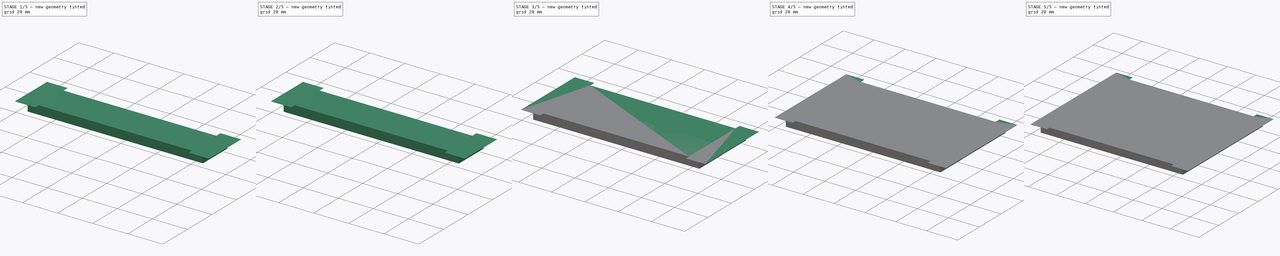
[diagram: build sequence overview — one tinted view per stage of 5, left to right]
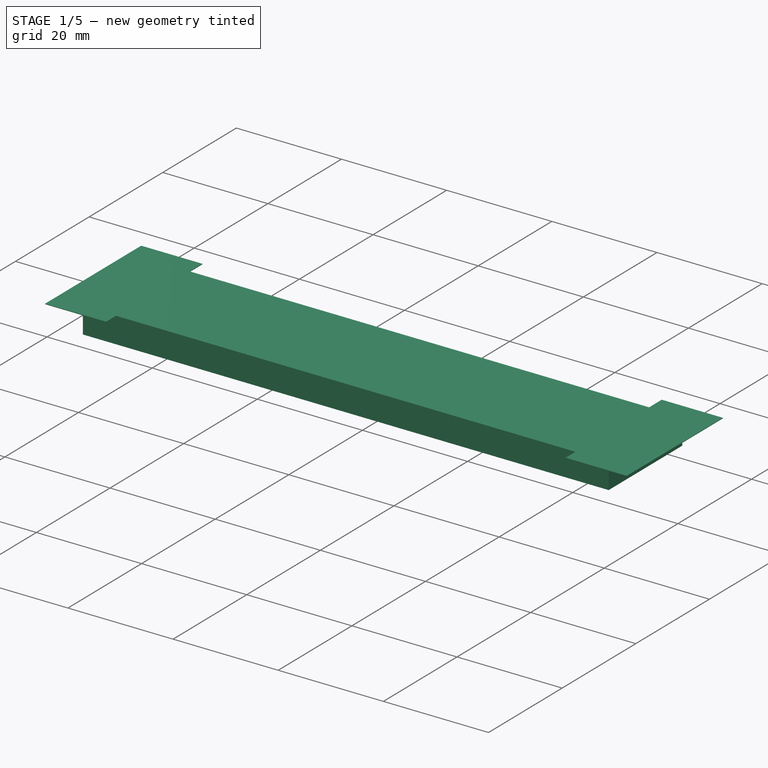
[diagram: stage 1 of 5 — iso view after this stage's code; geometry added in this stage tinted green]
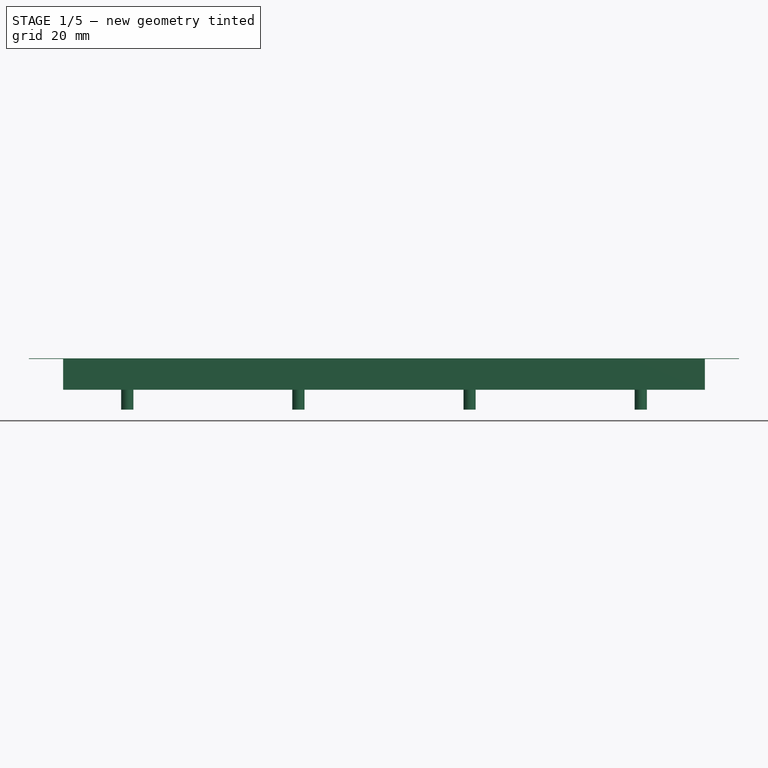
[diagram: stage 1 of 5 — front view after this stage's code; geometry added in this stage tinted green]
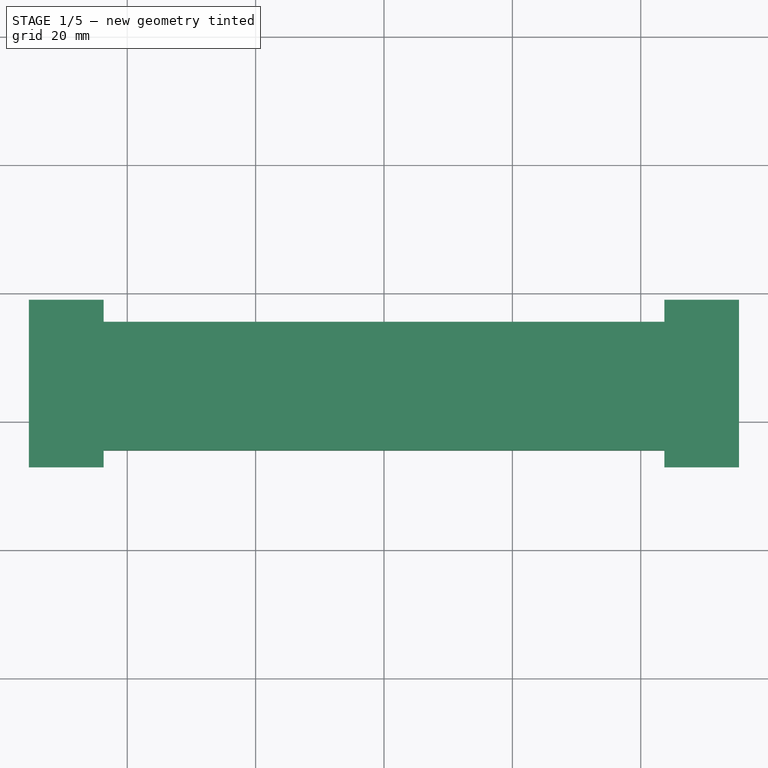
[diagram: stage 1 of 5 — top view after this stage's code; geometry added in this stage tinted green]
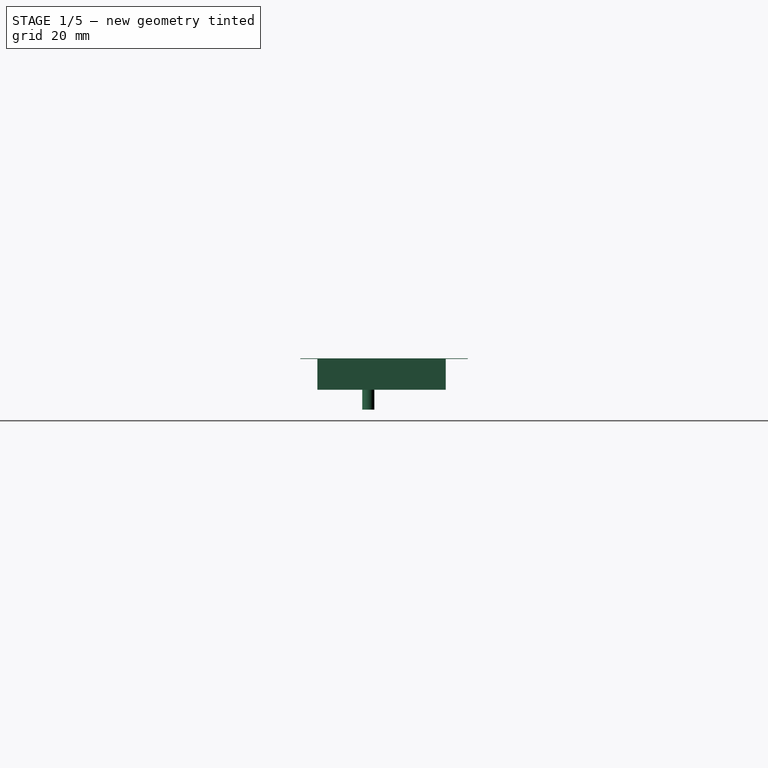
[diagram: stage 1 of 5 — right view after this stage's code; geometry added in this stage tinted green]
FCSTD DOCUMENT  (FreeCAD 0.18R15969 (Git))
Label: interface_SMD_assembly_rig_2
License: All rights reserved
LicenseURL: http://en.wikipedia.org/wiki/All_rights_reserved
objects: Sketcher::SketchObject×160, PartDesign::Pad×137, PartDesign::Body×129, Part::Feature×123, App::Part×71, PartDesign::Chamfer×59, PartDesign::Pocket×23, PartDesign::Boolean×7
note: 798 computed .brp shape members not serialized (recipe doc carries the construction recipe); baked Part::Feature solids carry a one-line shape summary decoded from their .brp

FEATURE [Sketcher::SketchObject] Sketch106
  MapMode = 5
  Support = -> [XY_Plane163]
  sketch-geometry (6):
    g0: LineSegment StartX=-50 StartY=15.4848 StartZ=0 EndX=50 EndY=15.4848 EndZ=0
    g1: LineSegment StartX=50 StartY=15.4848 StartZ=0 EndX=50 EndY=-4.51524 EndZ=0
    g2: LineSegment StartX=50 StartY=-4.51524 StartZ=0 EndX=-50 EndY=-4.51524 EndZ=0
    g3: LineSegment StartX=-50 StartY=-4.51524 StartZ=0 EndX=-50 EndY=15.4848 EndZ=0
    g4: LineSegment [constr] StartX=-50 StartY=15.4848 StartZ=0 EndX=0 EndY=1.8e-15 EndZ=0
    g5: LineSegment [constr] StartX=0 StartY=0 StartZ=0 EndX=50 EndY=15.4848 EndZ=0
  constraints (15):
    c: Coincident(g0,g1)
    c: Coincident(g1,g2)
    c: Coincident(g2,g3)
    c: Coincident(g3,g0)
    c: Horizontal(g0)
    c: Horizontal(g2)
    c: Vertical(g1)
    c: Vertical(g3)
    c: DistanceY(g3,g3) = 20
    c: Coincident(g4,g0)
    c: Coincident(g4,g-1)
    c: Coincident(g5,g-1)
    c: Coincident(g5,g0)
    c: Equal(g5,g4)
    c: DistanceX(g0,g0) = 100
FEATURE [Sketcher::SketchObject] Sketch107
  MapMode = 5
  Support = -> [XY_Plane164]
  sketch-geometry (7):
    g0: LineSegment StartX=-1.6 StartY=-1.5 StartZ=0 EndX=1.6 EndY=-1.5 EndZ=0
    g1: LineSegment StartX=1.6 StartY=-1.5 StartZ=0 EndX=1.6 EndY=1.5 EndZ=0
    g2: LineSegment StartX=1.6 StartY=1.5 StartZ=0 EndX=-1.6 EndY=1.5 EndZ=0
    g3: LineSegment StartX=-1.6 StartY=1.5 StartZ=0 EndX=-1.6 EndY=-1.5 EndZ=0
    g4: LineSegment [constr] StartX=-1.6 StartY=1.5 StartZ=0 EndX=0 EndY=0 EndZ=0
    g5: LineSegment [constr] StartX=0 StartY=0 StartZ=0 EndX=1.6 EndY=1.5 EndZ=0
    g6: LineSegment [constr] StartX=0 StartY=0 StartZ=0 EndX=-1.6 EndY=-1.5 EndZ=0
  constraints (18):
    c: Coincident(g0,g1)
    c: Coincident(g1,g2)
    c: Coincident(g2,g3)
    c: Coincident(g3,g0)
    c: Horizontal(g0)
    c: Horizontal(g2)
    c: Vertical(g1)
    c: Vertical(g3)
    c: Coincident(g4,g2)
    c: Coincident(g4,g-1)
    c: Coincident(g5,g-1)
    c: Coincident(g5,g1)
    c: Coincident(g6,g-1)
    c: Coincident(g6,g0)
    c: Equal(g5,g4)
    c: Equal(g4,g6)
    c: DistanceX(g2,g2) = 3.2
    c: DistanceY(g3,g3) = 3
FEATURE [Sketcher::SketchObject] Sketch108
  MapMode = 5
  Support = -> [XY_Plane165]
  sketch-geometry (7):
    g0: LineSegment StartX=-1.6 StartY=-1.5 StartZ=0 EndX=1.6 EndY=-1.5 EndZ=0
    g1: LineSegment StartX=1.6 StartY=-1.5 StartZ=0 EndX=1.6 EndY=1.5 EndZ=0
    g2: LineSegment StartX=1.6 StartY=1.5 StartZ=0 EndX=-1.6 EndY=1.5 EndZ=0
    g3: LineSegment StartX=-1.6 StartY=1.5 StartZ=0 EndX=-1.6 EndY=-1.5 EndZ=0
    g4: LineSegment [constr] StartX=-1.6 StartY=1.5 StartZ=0 EndX=0 EndY=0 EndZ=0
    g5: LineSegment [constr] StartX=0 StartY=0 StartZ=0 EndX=1.6 EndY=1.5 EndZ=0
    g6: LineSegment [constr] StartX=0 StartY=0 StartZ=0 EndX=-1.6 EndY=-1.5 EndZ=0
  constraints (18):
    c: Coincident(g0,g1)
    c: Coincident(g1,g2)
    c: Coincident(g2,g3)
    c: Coincident(g3,g0)
    c: Horizontal(g0)
    c: Horizontal(g2)
    c: Vertical(g1)
    c: Vertical(g3)
    c: Coincident(g4,g2)
    c: Coincident(g4,g-1)
    c: Coincident(g5,g-1)
    c: Coincident(g5,g1)
    c: Coincident(g6,g-1)
    c: Coincident(g6,g0)
    c: Equal(g5,g4)
    c: Equal(g4,g6)
    c: DistanceX(g2,g2) = 3.2
    c: DistanceY(g3,g3) = 3
FEATURE [Sketcher::SketchObject] Sketch109
  MapMode = 5
  Support = -> [XY_Plane166]
  sketch-geometry (7):
    g0: LineSegment StartX=-1.6 StartY=-1.5 StartZ=0 EndX=1.6 EndY=-1.5 EndZ=0
    g1: LineSegment StartX=1.6 StartY=-1.5 StartZ=0 EndX=1.6 EndY=1.5 EndZ=0
    g2: LineSegment StartX=1.6 StartY=1.5 StartZ=0 EndX=-1.6 EndY=1.5 EndZ=0
    g3: LineSegment StartX=-1.6 StartY=1.5 StartZ=0 EndX=-1.6 EndY=-1.5 EndZ=0
    g4: LineSegment [constr] StartX=-1.6 StartY=1.5 StartZ=0 EndX=0 EndY=0 EndZ=0
    g5: LineSegment [constr] StartX=0 StartY=0 StartZ=0 EndX=1.6 EndY=1.5 EndZ=0
    g6: LineSegment [constr] StartX=0 StartY=0 StartZ=0 EndX=-1.6 EndY=-1.5 EndZ=0
  constraints (18):
    c: Coincident(g0,g1)
    c: Coincident(g1,g2)
    c: Coincident(g2,g3)
    c: Coincident(g3,g0)
    c: Horizontal(g0)
    c: Horizontal(g2)
    c: Vertical(g1)
    c: Vertical(g3)
    c: Coincident(g4,g2)
    c: Coincident(g4,g-1)
    c: Coincident(g5,g-1)
    c: Coincident(g5,g1)
    c: Coincident(g6,g-1)
    c: Coincident(g6,g0)
    c: Equal(g5,g4)
    c: Equal(g4,g6)
    c: DistanceX(g2,g2) = 3.2
    c: DistanceY(g3,g3) = 3
FEATURE [Sketcher::SketchObject] Sketch110
  MapMode = 5
  Support = -> [XY_Plane167]
  sketch-geometry (7):
    g0: LineSegment StartX=-1.6 StartY=-1.5 StartZ=0 EndX=1.6 EndY=-1.5 EndZ=0
    g1: LineSegment StartX=1.6 StartY=-1.5 StartZ=0 EndX=1.6 EndY=1.5 EndZ=0
    g2: LineSegment StartX=1.6 StartY=1.5 StartZ=0 EndX=-1.6 EndY=1.5 EndZ=0
    g3: LineSegment StartX=-1.6 StartY=1.5 StartZ=0 EndX=-1.6 EndY=-1.5 EndZ=0
    g4: LineSegment [constr] StartX=-1.6 StartY=1.5 StartZ=0 EndX=0 EndY=0 EndZ=0
    g5: LineSegment [constr] StartX=0 StartY=0 StartZ=0 EndX=1.6 EndY=1.5 EndZ=0
    g6: LineSegment [constr] StartX=0 StartY=0 StartZ=0 EndX=-1.6 EndY=-1.5 EndZ=0
  constraints (18):
    c: Coincident(g0,g1)
    c: Coincident(g1,g2)
    c: Coincident(g2,g3)
    c: Coincident(g3,g0)
    c: Horizontal(g0)
    c: Horizontal(g2)
    c: Vertical(g1)
    c: Vertical(g3)
    c: Coincident(g4,g2)
    c: Coincident(g4,g-1)
    c: Coincident(g5,g-1)
    c: Coincident(g5,g1)
    c: Coincident(g6,g-1)
    c: Coincident(g6,g0)
    c: Equal(g5,g4)
    c: Equal(g4,g6)
    c: DistanceX(g2,g2) = 3.2
    c: DistanceY(g3,g3) = 3
FEATURE [Sketcher::SketchObject] Sketch111
  MapMode = 5
  Support = -> [XY_Plane171]
  sketch-geometry (7):
    g0: LineSegment StartX=-1.6 StartY=-1.5 StartZ=0 EndX=1.6 EndY=-1.5 EndZ=0
    g1: LineSegment StartX=1.6 StartY=-1.5 StartZ=0 EndX=1.6 EndY=1.5 EndZ=0
    g2: LineSegment StartX=1.6 StartY=1.5 StartZ=0 EndX=-1.6 EndY=1.5 EndZ=0
    g3: LineSegment StartX=-1.6 StartY=1.5 StartZ=0 EndX=-1.6 EndY=-1.5 EndZ=0
    g4: LineSegment [constr] StartX=-1.6 StartY=1.5 StartZ=0 EndX=0 EndY=0 EndZ=0
    g5: LineSegment [constr] StartX=0 StartY=0 StartZ=0 EndX=1.6 EndY=1.5 EndZ=0
    g6: LineSegment [constr] StartX=0 StartY=0 StartZ=0 EndX=-1.6 EndY=-1.5 EndZ=0
  constraints (18):
    c: Coincident(g0,g1)
    c: Coincident(g1,g2)
    c: Coincident(g2,g3)
    c: Coincident(g3,g0)
    c: Horizontal(g0)
    c: Horizontal(g2)
    c: Vertical(g1)
    c: Vertical(g3)
    c: Coincident(g4,g2)
    c: Coincident(g4,g-1)
    c: Coincident(g5,g-1)
    c: Coincident(g5,g1)
    c: Coincident(g6,g-1)
    c: Coincident(g6,g0)
    c: Equal(g5,g4)
    c: Equal(g4,g6)
    c: DistanceX(g2,g2) = 3.2
    c: DistanceY(g3,g3) = 3
FEATURE [Sketcher::SketchObject] Sketch112
  MapMode = 5
  Support = -> [XY_Plane168]
  sketch-geometry (7):
    g0: LineSegment StartX=-1.6 StartY=-1.5 StartZ=0 EndX=1.6 EndY=-1.5 EndZ=0
    g1: LineSegment StartX=1.6 StartY=-1.5 StartZ=0 EndX=1.6 EndY=1.5 EndZ=0
    g2: LineSegment StartX=1.6 StartY=1.5 StartZ=0 EndX=-1.6 EndY=1.5 EndZ=0
    g3: LineSegment StartX=-1.6 StartY=1.5 StartZ=0 EndX=-1.6 EndY=-1.5 EndZ=0
    g4: LineSegment [constr] StartX=-1.6 StartY=1.5 StartZ=0 EndX=0 EndY=0 EndZ=0
    g5: LineSegment [constr] StartX=0 StartY=0 StartZ=0 EndX=1.6 EndY=1.5 EndZ=0
    g6: LineSegment [constr] StartX=0 StartY=0 StartZ=0 EndX=-1.6 EndY=-1.5 EndZ=0
  constraints (18):
    c: Coincident(g0,g1)
    c: Coincident(g1,g2)
    c: Coincident(g2,g3)
    c: Coincident(g3,g0)
    c: Horizontal(g0)
    c: Horizontal(g2)
    c: Vertical(g1)
    c: Vertical(g3)
    c: Coincident(g4,g2)
    c: Coincident(g4,g-1)
    c: Coincident(g5,g-1)
    c: Coincident(g5,g1)
    c: Coincident(g6,g-1)
    c: Coincident(g6,g0)
    c: Equal(g5,g4)
    c: Equal(g4,g6)
    c: DistanceX(g2,g2) = 3.2
    c: DistanceY(g3,g3) = 3
FEATURE [Sketcher::SketchObject] Sketch113
  MapMode = 5
  Support = -> [XY_Plane169]
  sketch-geometry (7):
    g0: LineSegment StartX=-1.6 StartY=-1.5 StartZ=0 EndX=1.6 EndY=-1.5 EndZ=0
    g1: LineSegment StartX=1.6 StartY=-1.5 StartZ=0 EndX=1.6 EndY=1.5 EndZ=0
    g2: LineSegment StartX=1.6 StartY=1.5 StartZ=0 EndX=-1.6 EndY=1.5 EndZ=0
    g3: LineSegment StartX=-1.6 StartY=1.5 StartZ=0 EndX=-1.6 EndY=-1.5 EndZ=0
    g4: LineSegment [constr] StartX=-1.6 StartY=1.5 StartZ=0 EndX=0 EndY=0 EndZ=0
    g5: LineSegment [constr] StartX=0 StartY=0 StartZ=0 EndX=1.6 EndY=1.5 EndZ=0
    g6: LineSegment [constr] StartX=0 StartY=0 StartZ=0 EndX=-1.6 EndY=-1.5 EndZ=0
  constraints (18):
    c: Coincident(g0,g1)
    c: Coincident(g1,g2)
    c: Coincident(g2,g3)
    c: Coincident(g3,g0)
    c: Horizontal(g0)
    c: Horizontal(g2)
    c: Vertical(g1)
    c: Vertical(g3)
    c: Coincident(g4,g2)
    c: Coincident(g4,g-1)
    c: Coincident(g5,g-1)
    c: Coincident(g5,g1)
    c: Coincident(g6,g-1)
    c: Coincident(g6,g0)
    c: Equal(g5,g4)
    c: Equal(g4,g6)
    c: DistanceX(g2,g2) = 3.2
    c: DistanceY(g3,g3) = 3
FEATURE [Sketcher::SketchObject] Sketch114
  MapMode = 5
  Support = -> [XY_Plane170]
  sketch-geometry (7):
    g0: LineSegment StartX=-1.6 StartY=-1.5 StartZ=0 EndX=1.6 EndY=-1.5 EndZ=0
    g1: LineSegment StartX=1.6 StartY=-1.5 StartZ=0 EndX=1.6 EndY=1.5 EndZ=0
    g2: LineSegment StartX=1.6 StartY=1.5 StartZ=0 EndX=-1.6 EndY=1.5 EndZ=0
    g3: LineSegment StartX=-1.6 StartY=1.5 StartZ=0 EndX=-1.6 EndY=-1.5 EndZ=0
    g4: LineSegment [constr] StartX=-1.6 StartY=1.5 StartZ=0 EndX=0 EndY=0 EndZ=0
    g5: LineSegment [constr] StartX=0 StartY=0 StartZ=0 EndX=1.6 EndY=1.5 EndZ=0
    g6: LineSegment [constr] StartX=0 StartY=0 StartZ=0 EndX=-1.6 EndY=-1.5 EndZ=0
  constraints (18):
    c: Coincident(g0,g1)
    c: Coincident(g1,g2)
    c: Coincident(g2,g3)
    c: Coincident(g3,g0)
    c: Horizontal(g0)
    c: Horizontal(g2)
    c: Vertical(g1)
    c: Vertical(g3)
    c: Coincident(g4,g2)
    c: Coincident(g4,g-1)
    c: Coincident(g5,g-1)
    c: Coincident(g5,g1)
    c: Coincident(g6,g-1)
    c: Coincident(g6,g0)
    c: Equal(g5,g4)
    c: Equal(g4,g6)
    c: DistanceX(g2,g2) = 3.2
    c: DistanceY(g3,g3) = 3
FEATURE [Sketcher::SketchObject] Sketch115
  MapMode = 5
  Support = -> [XY_Plane172]
  sketch-geometry (7):
    g0: LineSegment StartX=-1.6 StartY=-1.5 StartZ=0 EndX=1.6 EndY=-1.5 EndZ=0
    g1: LineSegment StartX=1.6 StartY=-1.5 StartZ=0 EndX=1.6 EndY=1.5 EndZ=0
    g2: LineSegment StartX=1.6 StartY=1.5 StartZ=0 EndX=-1.6 EndY=1.5 EndZ=0
    g3: LineSegment StartX=-1.6 StartY=1.5 StartZ=0 EndX=-1.6 EndY=-1.5 EndZ=0
    g4: LineSegment [constr] StartX=-1.6 StartY=1.5 StartZ=0 EndX=0 EndY=0 EndZ=0
    g5: LineSegment [constr] StartX=0 StartY=0 StartZ=0 EndX=1.6 EndY=1.5 EndZ=0
    g6: LineSegment [constr] StartX=0 StartY=0 StartZ=0 EndX=-1.6 EndY=-1.5 EndZ=0
  constraints (18):
    c: Coincident(g0,g1)
    c: Coincident(g1,g2)
    c: Coincident(g2,g3)
    c: Coincident(g3,g0)
    c: Horizontal(g0)
    c: Horizontal(g2)
    c: Vertical(g1)
    c: Vertical(g3)
    c: Coincident(g4,g2)
    c: Coincident(g4,g-1)
    c: Coincident(g5,g-1)
    c: Coincident(g5,g1)
    c: Coincident(g6,g-1)
    c: Coincident(g6,g0)
    c: Equal(g5,g4)
    c: Equal(g4,g6)
    c: DistanceX(g2,g2) = 3.2
    c: DistanceY(g3,g3) = 3
FEATURE [PartDesign::Pad] Pad094
  Length = 5
  Length2 = 100
  Profile = -> Sketch106
  Refine = true
  Type = 0
FEATURE [PartDesign::Pad] Pad095
  Length = 1.4
  Length2 = 100
  Profile = -> Sketch107
  Refine = true
  Type = 0
FEATURE [PartDesign::Chamfer] Chamfer036
  Base = -> Pad095 [Edge12,Edge7]
  BaseFeature = -> Pad095
  Size = 1
FEATURE [PartDesign::Pad] Pad096
  Length = 1.4
  Length2 = 100
  Profile = -> Sketch108
  Refine = true
  Type = 0
FEATURE [PartDesign::Chamfer] Chamfer035
  Base = -> Pad096 [Edge12,Edge7]
  BaseFeature = -> Pad096
  Size = 1
FEATURE [PartDesign::Pad] Pad097
  Length = 1.4
  Length2 = 100
  Profile = -> Sketch109
  Refine = true
  Type = 0
FEATURE [PartDesign::Pad] Pad098
  Length = 1.4
  Length2 = 100
  Profile = -> Sketch110
  Refine = true
  Type = 0
FEATURE [PartDesign::Pad] Pad099
  Length = 1.4
  Length2 = 100
  Profile = -> Sketch112
  Refine = true
  Type = 0
FEATURE [PartDesign::Chamfer] Chamfer037
  Base = -> Pad099 [Edge12,Edge7]
  BaseFeature = -> Pad099
  Size = 1
FEATURE [PartDesign::Pad] Pad100
  Length = 1.4
  Length2 = 100
  Profile = -> Sketch113
  Refine = true
  Type = 0
FEATURE [PartDesign::Pad] Pad101
  Length = 1.4
  Length2 = 100
  Profile = -> Sketch114
  Refine = true
  Type = 0
FEATURE [PartDesign::Chamfer] Chamfer038
  Base = -> Pad101 [Edge12,Edge7]
  BaseFeature = -> Pad101
  Size = 1
FEATURE [PartDesign::Pad] Pad102
  Length = 1.4
  Length2 = 100
  Profile = -> Sketch111
  Refine = true
  Type = 0
FEATURE [PartDesign::Chamfer] Chamfer040
  Base = -> Pad102 [Edge12,Edge7]
  BaseFeature = -> Pad102
  Size = 1
FEATURE [PartDesign::Pad] Pad103
  Length = 1.2
  Length2 = 100
  Profile = -> Sketch115
  Refine = true
  Type = 0
FEATURE [PartDesign::Chamfer] Chamfer039
  Base = -> Pad103 [Edge12,Edge7]
  BaseFeature = -> Pad103
  Size = 1
FEATURE [Sketcher::SketchObject] Sketch116
  MapMode = 5
  Placement = pos=(0,0,1.2) rot=(0,0,1;0rad)
  Support = -> [Chamfer039]
  sketch-geometry (23):
    g0: LineSegment StartX=-2.76097 StartY=0.5085 StartZ=0 EndX=-0.743008 EndY=0.5085 EndZ=0
    g1: LineSegment StartX=-0.743008 StartY=0.5085 StartZ=0 EndX=-0.743008 EndY=-0.5085 EndZ=0
    g2: LineSegment StartX=-0.743008 StartY=-0.5085 StartZ=0 EndX=-2.76097 EndY=-0.5085 EndZ=0
    g3: LineSegment StartX=-2.76097 StartY=-0.5085 StartZ=0 EndX=-2.76097 EndY=0.5085 EndZ=0
    g4: LineSegment [constr] StartX=-2.76097 StartY=0.5085 StartZ=0 EndX=-1.75199 EndY=0 EndZ=0
    g5: LineSegment [constr] StartX=-0.743008 StartY=0.5085 StartZ=0 EndX=-1.75199 EndY=0 EndZ=0
    g6: LineSegment [constr] StartX=-2.76097 StartY=-0.5085 StartZ=0 EndX=-1.75199 EndY=0 EndZ=0
    g7: LineSegment StartX=0.706831 StartY=1.72252 StartZ=0 EndX=2.53455 EndY=1.72252 EndZ=0
    g8: LineSegment StartX=2.53455 StartY=1.72252 StartZ=0 EndX=2.53455 EndY=0.567301 EndZ=0
    g9: LineSegment StartX=2.53455 StartY=0.567301 StartZ=0 EndX=0.706831 EndY=0.567301 EndZ=0
    g10: LineSegment StartX=0.706831 StartY=0.567301 StartZ=0 EndX=0.706831 EndY=1.72252 EndZ=0
    g11: LineSegment StartX=0.706831 StartY=-1.72252 StartZ=0 EndX=2.53455 EndY=-1.72252 EndZ=0
    g12: LineSegment StartX=2.53455 StartY=-1.72252 StartZ=0 EndX=2.53455 EndY=-0.567301 EndZ=0
    g13: LineSegment StartX=2.53455 StartY=-0.567301 StartZ=0 EndX=0.706831 EndY=-0.567301 EndZ=0
    g14: LineSegment StartX=0.706831 StartY=-0.567301 StartZ=0 EndX=0.706831 EndY=-1.72252 EndZ=0
    g15: LineSegment [constr] StartX=0.706831 StartY=-0.567301 StartZ=0 EndX=1.62069 EndY=-1.14491 EndZ=0
    g16: LineSegment [constr] StartX=1.62069 StartY=-1.14491 StartZ=0 EndX=0.706831 EndY=-1.72252 EndZ=0
    g17: LineSegment [constr] StartX=1.62069 StartY=-1.14491 StartZ=0 EndX=2.53455 EndY=-0.567301 EndZ=0
    g18: LineSegment [constr] StartX=1.62069 StartY=-1.14491 StartZ=0 EndX=1.62069 EndY=0 EndZ=0
    g19: LineSegment [constr] StartX=1.62069 StartY=0 StartZ=0 EndX=1.62069 EndY=1.14491 EndZ=0
    g20: LineSegment [constr] StartX=2.53455 StartY=1.72252 StartZ=0 EndX=1.62069 EndY=1.14491 EndZ=0
    g21: LineSegment [constr] StartX=1.62069 StartY=1.14491 StartZ=0 EndX=0.706831 EndY=1.72252 EndZ=0
    g22: LineSegment [constr] StartX=0.706831 StartY=0.567301 StartZ=0 EndX=1.62069 EndY=1.14491 EndZ=0
  constraints (55):
    c: Coincident(g0,g1)
    c: Coincident(g1,g2)
    c: Coincident(g2,g3)
    c: Coincident(g3,g0)
    c: Horizontal(g0)
    c: Horizontal(g2)
    c: Vertical(g1)
    c: Vertical(g3)
    c: Coincident(g4,g0)
    c: PointOnObject(g4,g-1)
    c: Coincident(g5,g0)
    c: Coincident(g5,g4)
    c: Coincident(g6,g2)
    c: Coincident(g6,g4)
    c: Equal(g4,g6)
    c: Equal(g6,g5)
    c: Coincident(g7,g8)
    c: Coincident(g8,g9)
    c: Coincident(g9,g10)
    c: Coincident(g10,g7)
    c: Horizontal(g7)
    c: Horizontal(g9)
    c: Vertical(g8)
    c: Vertical(g10)
    c: Coincident(g11,g12)
    c: Coincident(g12,g13)
    c: Coincident(g13,g14)
    c: Coincident(g14,g11)
    c: Horizontal(g11)
    c: Horizontal(g13)
    c: Vertical(g12)
    c: Vertical(g14)
    c: Coincident(g15,g13)
    c: Coincident(g16,g15)
    c: Coincident(g16,g11)
    c: Coincident(g17,g15)
    c: Coincident(g17,g12)
    c: Coincident(g18,g15)
    c: PointOnObject(g18,g-1)
    c: Vertical(g18)
    c: Coincident(g19,g18)
    c: Coincident(g20,g7)
    c: Coincident(g20,g19)
    c: Coincident(g21,g19)
    c: Coincident(g21,g7)
    c: Coincident(g22,g9)
    c: Coincident(g22,g19)
    c: Vertical(g19)
    c: Equal(g22,g21)
    c: Equal(g21,g20)
    c: Equal(g20,g15)
    c: Equal(g15,g16)
    c: Equal(g16,g17)
    c: Equal(g13,g7)
    c: Equal(g18,g19)
FEATURE [PartDesign::Pocket] Pocket012
  BaseFeature = -> Chamfer039
  Length = 5
  Length2 = 100
  Profile = -> Sketch116
  Refine = true
  Type = 0
FEATURE [PartDesign::Chamfer] Chamfer042
  Base = -> Pad100 [Edge12,Edge7]
  BaseFeature = -> Pad100
  Size = 1
FEATURE [PartDesign::Chamfer] Chamfer043
  Base = -> Pad097 [Edge12,Edge7]
  BaseFeature = -> Pad097
  Size = 1
FEATURE [PartDesign::Chamfer] Chamfer044
  Base = -> Pad098 [Edge12,Edge7]
  BaseFeature = -> Pad098
  Size = 1
FEATURE [PartDesign::Body] Body092  label="Supersot030"
  Group = -> [Sketch107,Pad095,Chamfer036]
  Origin = -> Origin164
  Placement = pos=(-25.4,0,0) rot=(0,0,1;0rad)
  Tip = -> Chamfer036
FEATURE [PartDesign::Body] Body093  label="Supersot031"
  Group = -> [Sketch108,Pad096,Chamfer035]
  Origin = -> Origin165
  Placement = pos=(-21.59,0,0) rot=(0,0,1;0rad)
  Tip = -> Chamfer035
FEATURE [PartDesign::Body] Body094  label="Supersot032"
  Group = -> [Sketch109,Pad097,Chamfer043]
  Origin = -> Origin166
  Placement = pos=(-33.02,0,0) rot=(0,0,1;0rad)
  Tip = -> Chamfer043
FEATURE [PartDesign::Body] Body095  label="Supersot033"
  Group = -> [Sketch110,Pad098,Chamfer044]
  Origin = -> Origin167
  Placement = pos=(-36.83,0,0) rot=(0,0,1;0rad)
  Tip = -> Chamfer044
FEATURE [PartDesign::Body] Body096  label="Supersot034"
  Group = -> [Sketch112,Pad099,Chamfer037]
  Origin = -> Origin168
  Placement = pos=(25.4,0,0) rot=(0,0,1;0rad)
  Tip = -> Chamfer037
FEATURE [PartDesign::Body] Body097  label="Supersot035"
  Group = -> [Sketch113,Pad100,Chamfer042]
  Origin = -> Origin169
  Placement = pos=(21.59,0,0) rot=(0,0,1;0rad)
  Tip = -> Chamfer042
FEATURE [PartDesign::Body] Body098  label="Supersot036"
  Group = -> [Sketch114,Pad101,Chamfer038]
  Origin = -> Origin170
  Placement = pos=(33.02,0,0) rot=(0,0,1;0rad)
  Tip = -> Chamfer038
FEATURE [PartDesign::Body] Body099  label="Supersot037"
  Group = -> [Sketch111,Pad102,Chamfer040]
  Origin = -> Origin171
  Placement = pos=(36.83,0,0) rot=(0,0,1;0rad)
  Tip = -> Chamfer040
FEATURE [PartDesign::Body] Body100  label="Sot025"
  Group = -> [Sketch115,Pad103,Chamfer039,Sketch116,Pocket012]
  Origin = -> Origin172
  Placement = pos=(-10.3251,0,0) rot=(0,0,1;0rad)
  Tip = -> Pocket012
FEATURE [Sketcher::SketchObject] Sketch117
  MapMode = 5
  Support = -> [XY_Plane173]
  sketch-geometry (7):
    g0: LineSegment StartX=-1.6 StartY=-1.5 StartZ=0 EndX=1.6 EndY=-1.5 EndZ=0
    g1: LineSegment StartX=1.6 StartY=-1.5 StartZ=0 EndX=1.6 EndY=1.5 EndZ=0
    g2: LineSegment StartX=1.6 StartY=1.5 StartZ=0 EndX=-1.6 EndY=1.5 EndZ=0
    g3: LineSegment StartX=-1.6 StartY=1.5 StartZ=0 EndX=-1.6 EndY=-1.5 EndZ=0
    g4: LineSegment [constr] StartX=-1.6 StartY=1.5 StartZ=0 EndX=0 EndY=0 EndZ=0
    g5: LineSegment [constr] StartX=0 StartY=0 StartZ=0 EndX=1.6 EndY=1.5 EndZ=0
    g6: LineSegment [constr] StartX=0 StartY=0 StartZ=0 EndX=-1.6 EndY=-1.5 EndZ=0
  constraints (18):
    c: Coincident(g0,g1)
    c: Coincident(g1,g2)
    c: Coincident(g2,g3)
    c: Coincident(g3,g0)
    c: Horizontal(g0)
    c: Horizontal(g2)
    c: Vertical(g1)
    c: Vertical(g3)
    c: Coincident(g4,g2)
    c: Coincident(g4,g-1)
    c: Coincident(g5,g-1)
    c: Coincident(g5,g1)
    c: Coincident(g6,g-1)
    c: Coincident(g6,g0)
    c: Equal(g5,g4)
    c: Equal(g4,g6)
    c: DistanceX(g2,g2) = 3.2
    c: DistanceY(g3,g3) = 3
FEATURE [PartDesign::Pad] Pad104
  Length = 1.2
  Length2 = 100
  Profile = -> Sketch117
  Refine = true
  Type = 0
FEATURE [PartDesign::Chamfer] Chamfer041
  Base = -> Pad104 [Edge12,Edge7]
  BaseFeature = -> Pad104
  Size = 0.5
FEATURE [Sketcher::SketchObject] Sketch118
  MapMode = 5
  Placement = pos=(0,0,1.2) rot=(0,0,1;0rad)
  Support = -> [Chamfer041]
  sketch-geometry (23):
    g0: LineSegment StartX=-2.77743 StartY=0.5085 StartZ=0 EndX=-0.926537 EndY=0.5085 EndZ=0
    g1: LineSegment StartX=-0.926537 StartY=0.5085 StartZ=0 EndX=-0.926537 EndY=-0.5085 EndZ=0
    g2: LineSegment StartX=-0.926537 StartY=-0.5085 StartZ=0 EndX=-2.77743 EndY=-0.5085 EndZ=0
    g3: LineSegment StartX=-2.77743 StartY=-0.5085 StartZ=0 EndX=-2.77743 EndY=0.5085 EndZ=0
    g4: LineSegment [constr] StartX=-2.77743 StartY=0.5085 StartZ=0 EndX=-1.85198 EndY=0 EndZ=0
    g5: LineSegment [constr] StartX=-0.926537 StartY=0.5085 StartZ=0 EndX=-1.85198 EndY=0 EndZ=0
    g6: LineSegment [constr] StartX=-2.77743 StartY=-0.5085 StartZ=0 EndX=-1.85198 EndY=0 EndZ=0
    g7: LineSegment StartX=0.901831 StartY=1.71105 StartZ=0 EndX=2.61133 EndY=1.71105 EndZ=0
    g8: LineSegment StartX=2.61133 StartY=1.71105 StartZ=0 EndX=2.61133 EndY=0.555831 EndZ=0
    g9: LineSegment StartX=2.61133 StartY=0.555831 StartZ=0 EndX=0.901831 EndY=0.555831 EndZ=0
    g10: LineSegment StartX=0.901831 StartY=0.555831 StartZ=0 EndX=0.901831 EndY=1.71105 EndZ=0
    g11: LineSegment StartX=0.901831 StartY=-1.71105 StartZ=0 EndX=2.61133 EndY=-1.71105 EndZ=0
    g12: LineSegment StartX=2.61133 StartY=-1.71105 StartZ=0 EndX=2.61133 EndY=-0.555831 EndZ=0
    g13: LineSegment StartX=2.61133 StartY=-0.555831 StartZ=0 EndX=0.901831 EndY=-0.555831 EndZ=0
    g14: LineSegment StartX=0.901831 StartY=-0.555831 StartZ=0 EndX=0.901831 EndY=-1.71105 EndZ=0
    g15: LineSegment [constr] StartX=0.901831 StartY=-0.555831 StartZ=0 EndX=1.75658 EndY=-1.13344 EndZ=0
    g16: LineSegment [constr] StartX=1.75658 StartY=-1.13344 StartZ=0 EndX=0.901831 EndY=-1.71105 EndZ=0
    g17: LineSegment [constr] StartX=1.75658 StartY=-1.13344 StartZ=0 EndX=2.61133 EndY=-0.555831 EndZ=0
    g18: LineSegment [constr] StartX=1.75658 StartY=-1.13344 StartZ=0 EndX=1.75658 EndY=0 EndZ=0
    g19: LineSegment [constr] StartX=1.75658 StartY=0 StartZ=0 EndX=1.75658 EndY=1.13344 EndZ=0
    g20: LineSegment [constr] StartX=2.61133 StartY=1.71105 StartZ=0 EndX=1.75658 EndY=1.13344 EndZ=0
    g21: LineSegment [constr] StartX=1.75658 StartY=1.13344 StartZ=0 EndX=0.901831 EndY=1.71105 EndZ=0
    g22: LineSegment [constr] StartX=0.901831 StartY=0.555831 StartZ=0 EndX=1.75658 EndY=1.13344 EndZ=0
  constraints (55):
    c: Coincident(g0,g1)
    c: Coincident(g1,g2)
    c: Coincident(g2,g3)
    c: Coincident(g3,g0)
    c: Horizontal(g0)
    c: Horizontal(g2)
    c: Vertical(g1)
    c: Vertical(g3)
    c: Coincident(g4,g0)
    c: PointOnObject(g4,g-1)
    c: Coincident(g5,g0)
    c: Coincident(g5,g4)
    c: Coincident(g6,g2)
    c: Coincident(g6,g4)
    c: Equal(g4,g6)
    c: Equal(g6,g5)
    c: Coincident(g7,g8)
    c: Coincident(g8,g9)
    c: Coincident(g9,g10)
    c: Coincident(g10,g7)
    c: Horizontal(g7)
    c: Horizontal(g9)
    c: Vertical(g8)
    c: Vertical(g10)
    c: Coincident(g11,g12)
    c: Coincident(g12,g13)
    c: Coincident(g13,g14)
    c: Coincident(g14,g11)
    c: Horizontal(g11)
    c: Horizontal(g13)
    c: Vertical(g12)
    c: Vertical(g14)
    c: Coincident(g15,g13)
    c: Coincident(g16,g15)
    c: Coincident(g16,g11)
    c: Coincident(g17,g15)
    c: Coincident(g17,g12)
    c: Coincident(g18,g15)
    c: PointOnObject(g18,g-1)
    c: Vertical(g18)
    c: Coincident(g19,g18)
    c: Coincident(g20,g7)
    c: Coincident(g20,g19)
    c: Coincident(g21,g19)
    c: Coincident(g21,g7)
    c: Coincident(g22,g9)
    c: Coincident(g22,g19)
    c: Vertical(g19)
    c: Equal(g22,g21)
    c: Equal(g21,g20)
    c: Equal(g20,g15)
    c: Equal(g15,g16)
    c: Equal(g16,g17)
    c: Equal(g13,g7)
    c: Equal(g18,g19)
FEATURE [PartDesign::Pocket] Pocket013
  BaseFeature = -> Chamfer041
  Length = 5
  Length2 = 100
  Profile = -> Sketch118
  Refine = true
  Type = 0
FEATURE [PartDesign::Body] Body101  label="Sot23-big003"
  Group = -> [Sketch117,Pad104,Chamfer041,Sketch118,Pocket013]
  Origin = -> Origin173
  Placement = pos=(-16.51,0,0) rot=(0,0,1;3.14159rad)
  Tip = -> Pocket013
FEATURE [Sketcher::SketchObject] Sketch119
  MapMode = 5
  Support = -> [XY_Plane174]
  expr: Constraints[16] = 2.1 + 0.1
  expr: Constraints[17] = 1.25 + 0.1
  sketch-geometry (7):
    g0: LineSegment StartX=-1.1 StartY=-0.675 StartZ=0 EndX=1.1 EndY=-0.675 EndZ=0
    g1: LineSegment StartX=1.1 StartY=-0.675 StartZ=0 EndX=1.1 EndY=0.675 EndZ=0
    g2: LineSegment StartX=1.1 StartY=0.675 StartZ=0 EndX=-1.1 EndY=0.675 EndZ=0
    g3: LineSegment StartX=-1.1 StartY=0.675 StartZ=0 EndX=-1.1 EndY=-0.675 EndZ=0
    g4: LineSegment [constr] StartX=-1.1 StartY=0.675 StartZ=0 EndX=0 EndY=-1e-16 EndZ=0
    g5: LineSegment [constr] StartX=0 StartY=0 StartZ=0 EndX=1.1 EndY=0.675 EndZ=0
    g6: LineSegment [constr] StartX=0 StartY=0 StartZ=0 EndX=-1.1 EndY=-0.675 EndZ=0
  constraints (18):
    c: Coincident(g0,g1)
    c: Coincident(g1,g2)
    c: Coincident(g2,g3)
    c: Coincident(g3,g0)
    c: Horizontal(g0)
    c: Horizontal(g2)
    c: Vertical(g1)
    c: Vertical(g3)
    c: Coincident(g4,g2)
    c: Coincident(g4,g-1)
    c: Coincident(g5,g-1)
    c: Coincident(g5,g1)
    c: Coincident(g6,g-1)
    c: Coincident(g6,g0)
    c: Equal(g5,g4)
    c: Equal(g4,g6)
    c: DistanceX(g2,g2) = 2.2
    c: DistanceY(g3,g3) = 1.35
FEATURE [PartDesign::Pad] Pad105
  Length = 1.35
  Length2 = 100
  Profile = -> Sketch119
  Refine = true
  Type = 0
  expr: Length = 1.25 + 0.1
FEATURE [PartDesign::Body] Body102  label="Capacitor 1u012"
  Group = -> [Sketch119,Pad105]
  Origin = -> Origin174
  Placement = pos=(-41.91,0,0) rot=(0,0,1;1.5708rad)
  Tip = -> Pad105
FEATURE [Sketcher::SketchObject] Sketch120
  MapMode = 5
  Support = -> [XY_Plane175]
  expr: Constraints[16] = 2.1 + 0.1
  expr: Constraints[17] = 1.25 + 0.1
  sketch-geometry (7):
    g0: LineSegment StartX=-1.1 StartY=-0.675 StartZ=0 EndX=1.1 EndY=-0.675 EndZ=0
    g1: LineSegment StartX=1.1 StartY=-0.675 StartZ=0 EndX=1.1 EndY=0.675 EndZ=0
    g2: LineSegment StartX=1.1 StartY=0.675 StartZ=0 EndX=-1.1 EndY=0.675 EndZ=0
    g3: LineSegment StartX=-1.1 StartY=0.675 StartZ=0 EndX=-1.1 EndY=-0.675 EndZ=0
    g4: LineSegment [constr] StartX=-1.1 StartY=0.675 StartZ=0 EndX=0 EndY=-1e-16 EndZ=0
    g5: LineSegment [constr] StartX=0 StartY=0 StartZ=0 EndX=1.1 EndY=0.675 EndZ=0
    g6: LineSegment [constr] StartX=0 StartY=0 StartZ=0 EndX=-1.1 EndY=-0.675 EndZ=0
  constraints (18):
    c: Coincident(g0,g1)
    c: Coincident(g1,g2)
    c: Coincident(g2,g3)
    c: Coincident(g3,g0)
    c: Horizontal(g0)
    c: Horizontal(g2)
    c: Vertical(g1)
    c: Vertical(g3)
    c: Coincident(g4,g2)
    c: Coincident(g4,g-1)
    c: Coincident(g5,g-1)
    c: Coincident(g5,g1)
    c: Coincident(g6,g-1)
    c: Coincident(g6,g0)
    c: Equal(g5,g4)
    c: Equal(g4,g6)
    c: DistanceX(g2,g2) = 2.2
    c: DistanceY(g3,g3) = 1.35
FEATURE [PartDesign::Pad] Pad106
  Length = 1.35
  Length2 = 100
  Profile = -> Sketch120
  Refine = true
  Type = 0
  expr: Length = 1.25 + 0.1
FEATURE [PartDesign::Body] Body103  label="Capacitor 1u013"
  Group = -> [Sketch120,Pad106]
  Origin = -> Origin175
  Placement = pos=(41.91,0,0) rot=(0,0,1;1.5708rad)
  Tip = -> Pad106
FEATURE [Sketcher::SketchObject] Sketch121
  MapMode = 5
  Support = -> [XY_Plane176]
  sketch-geometry (7):
    g0: LineSegment StartX=-1.6 StartY=-1.5 StartZ=0 EndX=1.6 EndY=-1.5 EndZ=0
    g1: LineSegment StartX=1.6 StartY=-1.5 StartZ=0 EndX=1.6 EndY=1.5 EndZ=0
    g2: LineSegment StartX=1.6 StartY=1.5 StartZ=0 EndX=-1.6 EndY=1.5 EndZ=0
    g3: LineSegment StartX=-1.6 StartY=1.5 StartZ=0 EndX=-1.6 EndY=-1.5 EndZ=0
    g4: LineSegment [constr] StartX=-1.6 StartY=1.5 StartZ=0 EndX=0 EndY=0 EndZ=0
    g5: LineSegment [constr] StartX=0 StartY=0 StartZ=0 EndX=1.6 EndY=1.5 EndZ=0
    g6: LineSegment [constr] StartX=0 StartY=0 StartZ=0 EndX=-1.6 EndY=-1.5 EndZ=0
  constraints (18):
    c: Coincident(g0,g1)
    c: Coincident(g1,g2)
    c: Coincident(g2,g3)
    c: Coincident(g3,g0)
    c: Horizontal(g0)
    c: Horizontal(g2)
    c: Vertical(g1)
    c: Vertical(g3)
    c: Coincident(g4,g2)
    c: Coincident(g4,g-1)
    c: Coincident(g5,g-1)
    c: Coincident(g5,g1)
    c: Coincident(g6,g-1)
    c: Coincident(g6,g0)
    c: Equal(g5,g4)
    c: Equal(g4,g6)
    c: DistanceX(g2,g2) = 3.2
    c: DistanceY(g3,g3) = 3
FEATURE [PartDesign::Pad] Pad107
  Length = 1.4
  Length2 = 100
  Profile = -> Sketch121
  Refine = true
  Type = 0
FEATURE [PartDesign::Chamfer] Chamfer045
  Base = -> Pad107 [Edge12,Edge7]
  BaseFeature = -> Pad107
  Size = 1
FEATURE [Sketcher::SketchObject] Sketch122
  MapMode = 5
  Placement = pos=(0,0,1.4) rot=(0,0,1;0rad)
  Support = -> [Chamfer045]
  sketch-geometry (7):
    g0: LineSegment StartX=-2.76097 StartY=0.5085 StartZ=0 EndX=-0.743008 EndY=0.5085 EndZ=0
    g1: LineSegment StartX=-0.743008 StartY=0.5085 StartZ=0 EndX=-0.743008 EndY=-0.5085 EndZ=0
    g2: LineSegment StartX=-0.743008 StartY=-0.5085 StartZ=0 EndX=-2.76097 EndY=-0.5085 EndZ=0
    g3: LineSegment StartX=-2.76097 StartY=-0.5085 StartZ=0 EndX=-2.76097 EndY=0.5085 EndZ=0
    g4: LineSegment [constr] StartX=-2.76097 StartY=0.5085 StartZ=0 EndX=-1.75199 EndY=0 EndZ=0
    g5: LineSegment [constr] StartX=-0.743008 StartY=0.5085 StartZ=0 EndX=-1.75199 EndY=0 EndZ=0
    g6: LineSegment [constr] StartX=-2.76097 StartY=-0.5085 StartZ=0 EndX=-1.75199 EndY=0 EndZ=0
  constraints (16):
    c: Coincident(g0,g1)
    c: Coincident(g1,g2)
    c: Coincident(g2,g3)
    c: Coincident(g3,g0)
    c: Horizontal(g0)
    c: Horizontal(g2)
    c: Vertical(g1)
    c: Vertical(g3)
    c: Coincident(g4,g0)
    c: PointOnObject(g4,g-1)
    c: Coincident(g5,g0)
    c: Coincident(g5,g4)
    c: Coincident(g6,g2)
    c: Coincident(g6,g4)
    c: Equal(g4,g6)
    c: Equal(g6,g5)
FEATURE [PartDesign::Pocket] Pocket014
  BaseFeature = -> Chamfer045
  Length = 5
  Length2 = 100
  Profile = -> Sketch122
  Refine = true
  Type = 0
FEATURE [PartDesign::Body] Body104  label="Sot23-010"
  Group = -> [Sketch121,Pad107,Chamfer045,Sketch122,Pocket014]
  Origin = -> Origin176
  Placement = pos=(6.99,0,0) rot=(0,0,1;3.14159rad)
  Tip = -> Pocket014
FEATURE [Sketcher::SketchObject] Sketch123
  MapMode = 5
  Support = -> [XY_Plane177]
  expr: Constraints[16] = 2.1 + 0.1
  expr: Constraints[17] = 1.25 + 0.1
  sketch-geometry (7):
    g0: LineSegment StartX=-1.1 StartY=-0.675 StartZ=0 EndX=1.1 EndY=-0.675 EndZ=0
    g1: LineSegment StartX=1.1 StartY=-0.675 StartZ=0 EndX=1.1 EndY=0.675 EndZ=0
    g2: LineSegment StartX=1.1 StartY=0.675 StartZ=0 EndX=-1.1 EndY=0.675 EndZ=0
    g3: LineSegment StartX=-1.1 StartY=0.675 StartZ=0 EndX=-1.1 EndY=-0.675 EndZ=0
    g4: LineSegment [constr] StartX=-1.1 StartY=0.675 StartZ=0 EndX=0 EndY=-1e-16 EndZ=0
    g5: LineSegment [constr] StartX=0 StartY=0 StartZ=0 EndX=1.1 EndY=0.675 EndZ=0
    g6: LineSegment [constr] StartX=0 StartY=0 StartZ=0 EndX=-1.1 EndY=-0.675 EndZ=0
  constraints (18):
    c: Coincident(g0,g1)
    c: Coincident(g1,g2)
    c: Coincident(g2,g3)
    c: Coincident(g3,g0)
    c: Horizontal(g0)
    c: Horizontal(g2)
    c: Vertical(g1)
    c: Vertical(g3)
    c: Coincident(g4,g2)
    c: Coincident(g4,g-1)
    c: Coincident(g5,g-1)
    c: Coincident(g5,g1)
    c: Coincident(g6,g-1)
    c: Coincident(g6,g0)
    c: Equal(g5,g4)
    c: Equal(g4,g6)
    c: DistanceX(g2,g2) = 2.2
    c: DistanceY(g3,g3) = 1.35
FEATURE [Sketcher::SketchObject] Sketch124
  MapMode = 5
  Support = -> [XY_Plane178]
  expr: Constraints[16] = 1.95 + 0.1
  expr: Constraints[17] = 1.25 + 0.1
  sketch-geometry (7):
    g0: LineSegment StartX=-1.025 StartY=-0.675 StartZ=0 EndX=1.025 EndY=-0.675 EndZ=0
    g1: LineSegment StartX=1.025 StartY=-0.675 StartZ=0 EndX=1.025 EndY=0.675 EndZ=0
    g2: LineSegment StartX=1.025 StartY=0.675 StartZ=0 EndX=-1.025 EndY=0.675 EndZ=0
    g3: LineSegment StartX=-1.025 StartY=0.675 StartZ=0 EndX=-1.025 EndY=-0.675 EndZ=0
    g4: LineSegment [constr] StartX=-1.025 StartY=0.675 StartZ=0 EndX=0 EndY=0 EndZ=0
    g5: LineSegment [constr] StartX=0 StartY=0 StartZ=0 EndX=1.025 EndY=0.675 EndZ=0
    g6: LineSegment [constr] StartX=0 StartY=0 StartZ=0 EndX=-1.025 EndY=-0.675 EndZ=0
  constraints (18):
    c: Coincident(g0,g1)
    c: Coincident(g1,g2)
    c: Coincident(g2,g3)
    c: Coincident(g3,g0)
    c: Horizontal(g0)
    c: Horizontal(g2)
    c: Vertical(g1)
    c: Vertical(g3)
    c: Coincident(g4,g2)
    c: Coincident(g4,g-1)
    c: Coincident(g5,g-1)
    c: Coincident(g5,g1)
    c: Coincident(g6,g-1)
    c: Coincident(g6,g0)
    c: Equal(g5,g4)
    c: Equal(g4,g6)
    c: DistanceX(g2,g2) = 2.05
    c: DistanceY(g3,g3) = 1.35
FEATURE [Sketcher::SketchObject] Sketch125
  MapMode = 5
  Support = -> [XY_Plane179]
  expr: Constraints[16] = 1.95 + 0.1
  expr: Constraints[17] = 1.25 + 0.1
  sketch-geometry (7):
    g0: LineSegment StartX=-1.025 StartY=-0.675 StartZ=0 EndX=1.025 EndY=-0.675 EndZ=0
    g1: LineSegment StartX=1.025 StartY=-0.675 StartZ=0 EndX=1.025 EndY=0.675 EndZ=0
    g2: LineSegment StartX=1.025 StartY=0.675 StartZ=0 EndX=-1.025 EndY=0.675 EndZ=0
    g3: LineSegment StartX=-1.025 StartY=0.675 StartZ=0 EndX=-1.025 EndY=-0.675 EndZ=0
    g4: LineSegment [constr] StartX=-1.025 StartY=0.675 StartZ=0 EndX=0 EndY=0 EndZ=0
    g5: LineSegment [constr] StartX=0 StartY=0 StartZ=0 EndX=1.025 EndY=0.675 EndZ=0
    g6: LineSegment [constr] StartX=0 StartY=0 StartZ=0 EndX=-1.025 EndY=-0.675 EndZ=0
  constraints (18):
    c: Coincident(g0,g1)
    c: Coincident(g1,g2)
    c: Coincident(g2,g3)
    c: Coincident(g3,g0)
    c: Horizontal(g0)
    c: Horizontal(g2)
    c: Vertical(g1)
    c: Vertical(g3)
    c: Coincident(g4,g2)
    c: Coincident(g4,g-1)
    c: Coincident(g5,g-1)
    c: Coincident(g5,g1)
    c: Coincident(g6,g-1)
    c: Coincident(g6,g0)
    c: Equal(g5,g4)
    c: Equal(g4,g6)
    c: DistanceX(g2,g2) = 2.05
    c: DistanceY(g3,g3) = 1.35
FEATURE [Sketcher::SketchObject] Sketch126
  MapMode = 5
  Support = -> [XY_Plane180]
  expr: Constraints[16] = 2 + 0.1
  expr: Constraints[17] = 1.25 + 0.1
  sketch-geometry (7):
    g0: LineSegment StartX=-1.05 StartY=-0.675 StartZ=0 EndX=1.05 EndY=-0.675 EndZ=0
    g1: LineSegment StartX=1.05 StartY=-0.675 StartZ=0 EndX=1.05 EndY=0.675 EndZ=0
    g2: LineSegment StartX=1.05 StartY=0.675 StartZ=0 EndX=-1.05 EndY=0.675 EndZ=0
    g3: LineSegment StartX=-1.05 StartY=0.675 StartZ=0 EndX=-1.05 EndY=-0.675 EndZ=0
    g4: LineSegment [constr] StartX=-1.05 StartY=0.675 StartZ=0 EndX=0 EndY=0 EndZ=0
    g5: LineSegment [constr] StartX=0 StartY=0 StartZ=0 EndX=1.05 EndY=0.675 EndZ=0
    g6: LineSegment [constr] StartX=0 StartY=0 StartZ=0 EndX=-1.05 EndY=-0.675 EndZ=0
  constraints (18):
    c: Coincident(g0,g1)
    c: Coincident(g1,g2)
    c: Coincident(g2,g3)
    c: Coincident(g3,g0)
    c: Horizontal(g0)
    c: Horizontal(g2)
    c: Vertical(g1)
    c: Vertical(g3)
    c: Coincident(g4,g2)
    c: Coincident(g4,g-1)
    c: Coincident(g5,g-1)
    c: Coincident(g5,g1)
    c: Coincident(g6,g-1)
    c: Coincident(g6,g0)
    c: Equal(g5,g4)
    c: Equal(g4,g6)
    c: DistanceX(g2,g2) = 2.1
    c: DistanceY(g3,g3) = 1.35
FEATURE [Sketcher::SketchObject] Sketch127
  MapMode = 5
  Support = -> [XY_Plane181]
  expr: Constraints[16] = 2 + 0.1
  expr: Constraints[17] = 1.25 + 0.1
  sketch-geometry (7):
    g0: LineSegment StartX=-1.05 StartY=-0.675 StartZ=0 EndX=1.05 EndY=-0.675 EndZ=0
    g1: LineSegment StartX=1.05 StartY=-0.675 StartZ=0 EndX=1.05 EndY=0.675 EndZ=0
    g2: LineSegment StartX=1.05 StartY=0.675 StartZ=0 EndX=-1.05 EndY=0.675 EndZ=0
    g3: LineSegment StartX=-1.05 StartY=0.675 StartZ=0 EndX=-1.05 EndY=-0.675 EndZ=0
    g4: LineSegment [constr] StartX=-1.05 StartY=0.675 StartZ=0 EndX=0 EndY=0 EndZ=0
    g5: LineSegment [constr] StartX=0 StartY=0 StartZ=0 EndX=1.05 EndY=0.675 EndZ=0
    g6: LineSegment [constr] StartX=0 StartY=0 StartZ=0 EndX=-1.05 EndY=-0.675 EndZ=0
  constraints (18):
    c: Coincident(g0,g1)
    c: Coincident(g1,g2)
    c: Coincident(g2,g3)
    c: Coincident(g3,g0)
    c: Horizontal(g0)
    c: Horizontal(g2)
    c: Vertical(g1)
    c: Vertical(g3)
    c: Coincident(g4,g2)
    c: Coincident(g4,g-1)
    c: Coincident(g5,g-1)
    c: Coincident(g5,g1)
    c: Coincident(g6,g-1)
    c: Coincident(g6,g0)
    c: Equal(g5,g4)
    c: Equal(g4,g6)
    c: DistanceX(g2,g2) = 2.1
    c: DistanceY(g3,g3) = 1.35
FEATURE [Sketcher::SketchObject] Sketch128
  MapMode = 5
  Support = -> [XY_Plane182]
  expr: Constraints[16] = 2 + 0.1
  expr: Constraints[17] = 1.25 + 0.1
  sketch-geometry (7):
    g0: LineSegment StartX=-1.05 StartY=-0.675 StartZ=0 EndX=1.05 EndY=-0.675 EndZ=0
    g1: LineSegment StartX=1.05 StartY=-0.675 StartZ=0 EndX=1.05 EndY=0.675 EndZ=0
    g2: LineSegment StartX=1.05 StartY=0.675 StartZ=0 EndX=-1.05 EndY=0.675 EndZ=0
    g3: LineSegment StartX=-1.05 StartY=0.675 StartZ=0 EndX=-1.05 EndY=-0.675 EndZ=0
    g4: LineSegment [constr] StartX=-1.05 StartY=0.675 StartZ=0 EndX=0 EndY=0 EndZ=0
    g5: LineSegment [constr] StartX=0 StartY=0 StartZ=0 EndX=1.05 EndY=0.675 EndZ=0
    g6: LineSegment [constr] StartX=0 StartY=0 StartZ=0 EndX=-1.05 EndY=-0.675 EndZ=0
  constraints (18):
    c: Coincident(g0,g1)
    c: Coincident(g1,g2)
    c: Coincident(g2,g3)
    c: Coincident(g3,g0)
    c: Horizontal(g0)
    c: Horizontal(g2)
    c: Vertical(g1)
    c: Vertical(g3)
    c: Coincident(g4,g2)
    c: Coincident(g4,g-1)
    c: Coincident(g5,g-1)
    c: Coincident(g5,g1)
    c: Coincident(g6,g-1)
    c: Coincident(g6,g0)
    c: Equal(g5,g4)
    c: Equal(g4,g6)
    c: DistanceX(g2,g2) = 2.1
    c: DistanceY(g3,g3) = 1.35
FEATURE [Sketcher::SketchObject] Sketch129
  MapMode = 5
  Support = -> [XY_Plane183]
  expr: Constraints[16] = 2 + 0.1
  expr: Constraints[17] = 1.25 + 0.1
  sketch-geometry (7):
    g0: LineSegment StartX=-1.05 StartY=-0.675 StartZ=0 EndX=1.05 EndY=-0.675 EndZ=0
    g1: LineSegment StartX=1.05 StartY=-0.675 StartZ=0 EndX=1.05 EndY=0.675 EndZ=0
    g2: LineSegment StartX=1.05 StartY=0.675 StartZ=0 EndX=-1.05 EndY=0.675 EndZ=0
    g3: LineSegment StartX=-1.05 StartY=0.675 StartZ=0 EndX=-1.05 EndY=-0.675 EndZ=0
    g4: LineSegment [constr] StartX=-1.05 StartY=0.675 StartZ=0 EndX=0 EndY=0 EndZ=0
    g5: LineSegment [constr] StartX=0 StartY=0 StartZ=0 EndX=1.05 EndY=0.675 EndZ=0
    g6: LineSegment [constr] StartX=0 StartY=0 StartZ=0 EndX=-1.05 EndY=-0.675 EndZ=0
  constraints (18):
    c: Coincident(g0,g1)
    c: Coincident(g1,g2)
    c: Coincident(g2,g3)
    c: Coincident(g3,g0)
    c: Horizontal(g0)
    c: Horizontal(g2)
    c: Vertical(g1)
    c: Vertical(g3)
    c: Coincident(g4,g2)
    c: Coincident(g4,g-1)
    c: Coincident(g5,g-1)
    c: Coincident(g5,g1)
    c: Coincident(g6,g-1)
    c: Coincident(g6,g0)
    c: Equal(g5,g4)
    c: Equal(g4,g6)
    c: DistanceX(g2,g2) = 2.1
    c: DistanceY(g3,g3) = 1.35
FEATURE [Sketcher::SketchObject] Sketch130
  MapMode = 5
  Support = -> [XY_Plane184]
  expr: Constraints[16] = 2 + 0.1
  expr: Constraints[17] = 1.25 + 0.1
  sketch-geometry (7):
    g0: LineSegment StartX=-1.05 StartY=-0.675 StartZ=0 EndX=1.05 EndY=-0.675 EndZ=0
    g1: LineSegment StartX=1.05 StartY=-0.675 StartZ=0 EndX=1.05 EndY=0.675 EndZ=0
    g2: LineSegment StartX=1.05 StartY=0.675 StartZ=0 EndX=-1.05 EndY=0.675 EndZ=0
    g3: LineSegment StartX=-1.05 StartY=0.675 StartZ=0 EndX=-1.05 EndY=-0.675 EndZ=0
    g4: LineSegment [constr] StartX=-1.05 StartY=0.675 StartZ=0 EndX=0 EndY=0 EndZ=0
    g5: LineSegment [constr] StartX=0 StartY=0 StartZ=0 EndX=1.05 EndY=0.675 EndZ=0
    g6: LineSegment [constr] StartX=0 StartY=0 StartZ=0 EndX=-1.05 EndY=-0.675 EndZ=0
  constraints (18):
    c: Coincident(g0,g1)
    c: Coincident(g1,g2)
    c: Coincident(g2,g3)
    c: Coincident(g3,g0)
    c: Horizontal(g0)
    c: Horizontal(g2)
    c: Vertical(g1)
    c: Vertical(g3)
    c: Coincident(g4,g2)
    c: Coincident(g4,g-1)
    c: Coincident(g5,g-1)
    c: Coincident(g5,g1)
    c: Coincident(g6,g-1)
    c: Coincident(g6,g0)
    c: Equal(g5,g4)
    c: Equal(g4,g6)
    c: DistanceX(g2,g2) = 2.1
    c: DistanceY(g3,g3) = 1.35
FEATURE [Sketcher::SketchObject] Sketch131
  MapMode = 5
  Support = -> [XY_Plane185]
  expr: Constraints[16] = 2 + 0.1
  expr: Constraints[17] = 1.25 + 0.1
  sketch-geometry (7):
    g0: LineSegment StartX=-1.05 StartY=-0.675 StartZ=0 EndX=1.05 EndY=-0.675 EndZ=0
    g1: LineSegment StartX=1.05 StartY=-0.675 StartZ=0 EndX=1.05 EndY=0.675 EndZ=0
    g2: LineSegment StartX=1.05 StartY=0.675 StartZ=0 EndX=-1.05 EndY=0.675 EndZ=0
    g3: LineSegment StartX=-1.05 StartY=0.675 StartZ=0 EndX=-1.05 EndY=-0.675 EndZ=0
    g4: LineSegment [constr] StartX=-1.05 StartY=0.675 StartZ=0 EndX=0 EndY=0 EndZ=0
    g5: LineSegment [constr] StartX=0 StartY=0 StartZ=0 EndX=1.05 EndY=0.675 EndZ=0
    g6: LineSegment [constr] StartX=0 StartY=0 StartZ=0 EndX=-1.05 EndY=-0.675 EndZ=0
  constraints (18):
    c: Coincident(g0,g1)
    c: Coincident(g1,g2)
    c: Coincident(g2,g3)
    c: Coincident(g3,g0)
    c: Horizontal(g0)
    c: Horizontal(g2)
    c: Vertical(g1)
    c: Vertical(g3)
    c: Coincident(g4,g2)
    c: Coincident(g4,g-1)
    c: Coincident(g5,g-1)
    c: Coincident(g5,g1)
    c: Coincident(g6,g-1)
    c: Coincident(g6,g0)
    c: Equal(g5,g4)
    c: Equal(g4,g6)
    c: DistanceX(g2,g2) = 2.1
    c: DistanceY(g3,g3) = 1.35
FEATURE [Sketcher::SketchObject] Sketch132
  MapMode = 5
  Support = -> [XY_Plane186]
  expr: Constraints[16] = 2 + 0.1
  expr: Constraints[17] = 1.25 + 0.1
  sketch-geometry (7):
    g0: LineSegment StartX=-1.05 StartY=-0.675 StartZ=0 EndX=1.05 EndY=-0.675 EndZ=0
    g1: LineSegment StartX=1.05 StartY=-0.675 StartZ=0 EndX=1.05 EndY=0.675 EndZ=0
    g2: LineSegment StartX=1.05 StartY=0.675 StartZ=0 EndX=-1.05 EndY=0.675 EndZ=0
    g3: LineSegment StartX=-1.05 StartY=0.675 StartZ=0 EndX=-1.05 EndY=-0.675 EndZ=0
    g4: LineSegment [constr] StartX=-1.05 StartY=0.675 StartZ=0 EndX=0 EndY=0 EndZ=0
    g5: LineSegment [constr] StartX=0 StartY=0 StartZ=0 EndX=1.05 EndY=0.675 EndZ=0
    g6: LineSegment [constr] StartX=0 StartY=0 StartZ=0 EndX=-1.05 EndY=-0.675 EndZ=0
  constraints (18):
    c: Coincident(g0,g1)
    c: Coincident(g1,g2)
    c: Coincident(g2,g3)
    c: Coincident(g3,g0)
    c: Horizontal(g0)
    c: Horizontal(g2)
    c: Vertical(g1)
    c: Vertical(g3)
    c: Coincident(g4,g2)
    c: Coincident(g4,g-1)
    c: Coincident(g5,g-1)
    c: Coincident(g5,g1)
    c: Coincident(g6,g-1)
    c: Coincident(g6,g0)
    c: Equal(g5,g4)
    c: Equal(g4,g6)
    c: DistanceX(g2,g2) = 2.1
    c: DistanceY(g3,g3) = 1.35
FEATURE [Sketcher::SketchObject] Sketch133
  MapMode = 5
  Support = -> [XY_Plane187]
  expr: Constraints[16] = 2 + 0.1
  expr: Constraints[17] = 1.25 + 0.1
  sketch-geometry (7):
    g0: LineSegment StartX=-1.05 StartY=-0.675 StartZ=0 EndX=1.05 EndY=-0.675 EndZ=0
    g1: LineSegment StartX=1.05 StartY=-0.675 StartZ=0 EndX=1.05 EndY=0.675 EndZ=0
    g2: LineSegment StartX=1.05 StartY=0.675 StartZ=0 EndX=-1.05 EndY=0.675 EndZ=0
    g3: LineSegment StartX=-1.05 StartY=0.675 StartZ=0 EndX=-1.05 EndY=-0.675 EndZ=0
    g4: LineSegment [constr] StartX=-1.05 StartY=0.675 StartZ=0 EndX=0 EndY=0 EndZ=0
    g5: LineSegment [constr] StartX=0 StartY=0 StartZ=0 EndX=1.05 EndY=0.675 EndZ=0
    g6: LineSegment [constr] StartX=0 StartY=0 StartZ=0 EndX=-1.05 EndY=-0.675 EndZ=0
  constraints (18):
    c: Coincident(g0,g1)
    c: Coincident(g1,g2)
    c: Coincident(g2,g3)
    c: Coincident(g3,g0)
    c: Horizontal(g0)
    c: Horizontal(g2)
    c: Vertical(g1)
    c: Vertical(g3)
    c: Coincident(g4,g2)
    c: Coincident(g4,g-1)
    c: Coincident(g5,g-1)
    c: Coincident(g5,g1)
    c: Coincident(g6,g-1)
    c: Coincident(g6,g0)
    c: Equal(g5,g4)
    c: Equal(g4,g6)
    c: DistanceX(g2,g2) = 2.1
    c: DistanceY(g3,g3) = 1.35
FEATURE [Sketcher::SketchObject] Sketch134
  MapMode = 5
  Support = -> [XY_Plane188]
  expr: Constraints[16] = 2 + 0.1
  expr: Constraints[17] = 1.25 + 0.1
  sketch-geometry (7):
    g0: LineSegment StartX=-1.05 StartY=-0.675 StartZ=0 EndX=1.05 EndY=-0.675 EndZ=0
    g1: LineSegment StartX=1.05 StartY=-0.675 StartZ=0 EndX=1.05 EndY=0.675 EndZ=0
    g2: LineSegment StartX=1.05 StartY=0.675 StartZ=0 EndX=-1.05 EndY=0.675 EndZ=0
    g3: LineSegment StartX=-1.05 StartY=0.675 StartZ=0 EndX=-1.05 EndY=-0.675 EndZ=0
    g4: LineSegment [constr] StartX=-1.05 StartY=0.675 StartZ=0 EndX=0 EndY=0 EndZ=0
    g5: LineSegment [constr] StartX=0 StartY=0 StartZ=0 EndX=1.05 EndY=0.675 EndZ=0
    g6: LineSegment [constr] StartX=0 StartY=0 StartZ=0 EndX=-1.05 EndY=-0.675 EndZ=0
  constraints (18):
    c: Coincident(g0,g1)
    c: Coincident(g1,g2)
    c: Coincident(g2,g3)
    c: Coincident(g3,g0)
    c: Horizontal(g0)
    c: Horizontal(g2)
    c: Vertical(g1)
    c: Vertical(g3)
    c: Coincident(g4,g2)
    c: Coincident(g4,g-1)
    c: Coincident(g5,g-1)
    c: Coincident(g5,g1)
    c: Coincident(g6,g-1)
    c: Coincident(g6,g0)
    c: Equal(g5,g4)
    c: Equal(g4,g6)
    c: DistanceX(g2,g2) = 2.1
    c: DistanceY(g3,g3) = 1.35
FEATURE [PartDesign::Pad] Pad108
  Length = 1.35
  Length2 = 100
  Profile = -> Sketch123
  Refine = true
  Type = 0
  expr: Length = 1.25 + 0.1
FEATURE [PartDesign::Body] Body105  label="Capacitor 1u014"
  Group = -> [Sketch123,Pad108]
  Origin = -> Origin177
  Placement = pos=(-1.91,0,0) rot=(0,0,1;1.5708rad)
  Tip = -> Pad108
FEATURE [PartDesign::Pad] Pad109
  Length = 1
  Length2 = 100
  Profile = -> Sketch124
  Refine = true
  Type = 0
  expr: Length = 0.9mm + 0.1mm
FEATURE [PartDesign::Body] Body106  label="Capacitor 100n008"
  Group = -> [Sketch124,Pad109]
  Origin = -> Origin178
  Placement = pos=(-7.62,0,0) rot=(0,0,1;1.5708rad)
  Tip = -> Pad109
FEATURE [PartDesign::Pad] Pad110
  Length = 1
  Length2 = 100
  Profile = -> Sketch125
  Refine = true
  Type = 0
  expr: Length = 0.9mm + 0.1mm
FEATURE [PartDesign::Pad] Pad111
  Length = 0.6
  Length2 = 100
  Profile = -> Sketch126
  Refine = true
  Type = 0
  expr: Length = 0.5 + 0.1
FEATURE [PartDesign::Pad] Pad112
  Length = 0.6
  Length2 = 100
  Profile = -> Sketch127
  Refine = true
  Type = 0
  expr: Length = 0.5 + 0.1
FEATURE [PartDesign::Pad] Pad113
  Length = 0.6
  Length2 = 100
  Profile = -> Sketch128
  Refine = true
  Type = 0
  expr: Length = 0.5 + 0.1
FEATURE [PartDesign::Pad] Pad114
  Length = 0.6
  Length2 = 100
  Profile = -> Sketch129
  Refine = true
  Type = 0
  expr: Length = 0.5 + 0.1
FEATURE [PartDesign::Pad] Pad115
  Length = 0.6
  Length2 = 100
  Profile = -> Sketch130
  Refine = true
  Type = 0
  expr: Length = 0.5 + 0.1
FEATURE [PartDesign::Pad] Pad116
  Length = 0.6
  Length2 = 100
  Profile = -> Sketch131
  Refine = true
  Type = 0
  expr: Length = 0.5 + 0.1
FEATURE [PartDesign::Pad] Pad117
  Length = 0.6
  Length2 = 100
  Profile = -> Sketch132
  Refine = true
  Type = 0
  expr: Length = 0.5 + 0.1
FEATURE [PartDesign::Pad] Pad118
  Length = 0.6
  Length2 = 100
  Profile = -> Sketch133
  Refine = true
  Type = 0
  expr: Length = 0.5 + 0.1
FEATURE [PartDesign::Pad] Pad119
  Length = 0.6
  Length2 = 100
  Profile = -> Sketch134
  Refine = true
  Type = 0
  expr: Length = 0.5 + 0.1
FEATURE [PartDesign::Body] Body107  label="Capacitor 100n009"
  Group = -> [Sketch125,Pad110]
  Origin = -> Origin179
  Placement = pos=(3.81,0,0) rot=(0,0,1;1.5708rad)
  Tip = -> Pad110
FEATURE [PartDesign::Body] Body108  label="Resistor 10k036"
  Group = -> [Sketch126,Pad111]
  Origin = -> Origin180
  Placement = pos=(-28.26,0,0) rot=(0,0,1;1.5708rad)
  Tip = -> Pad111
FEATURE [PartDesign::Body] Body109  label="Resistor 10k037"
  Group = -> [Sketch127,Pad112]
  Origin = -> Origin181
  Placement = pos=(-30.16,0,0) rot=(0,0,1;1.5708rad)
  Tip = -> Pad112
FEATURE [PartDesign::Body] Body110  label="Resistor 10k038"
  Group = -> [Sketch128,Pad113]
  Origin = -> Origin182
  Placement = pos=(30.16,0,0) rot=(0,0,1;1.5708rad)
  Tip = -> Pad113
FEATURE [PartDesign::Body] Body111  label="Resistor 10k039"
  Group = -> [Sketch129,Pad114]
  Origin = -> Origin183
  Placement = pos=(28.26,0,0) rot=(0,0,1;1.5708rad)
  Tip = -> Pad114
FEATURE [PartDesign::Body] Body112  label="Resistor 10k040"
  Group = -> [Sketch130,Pad115]
  Origin = -> Origin184
  Placement = pos=(0,0,0) rot=(0,0,1;1.5708rad)
  Tip = -> Pad115
FEATURE [PartDesign::Body] Body113  label="Resistor 10k041"
  Group = -> [Sketch131,Pad116]
  Origin = -> Origin185
  Placement = pos=(1.91,0,0) rot=(0,0,1;1.5708rad)
  Tip = -> Pad116
FEATURE [PartDesign::Body] Body114  label="Resistor 10k042"
  Group = -> [Sketch132,Pad117]
  Origin = -> Origin186
  Placement = pos=(-3.81,0,0) rot=(0,0,1;1.5708rad)
  Tip = -> Pad117
FEATURE [PartDesign::Body] Body115  label="Resistor 10k043"
  Group = -> [Sketch133,Pad118]
  Origin = -> Origin187
  Placement = pos=(-5.71,0,0) rot=(0,0,1;1.5708rad)
  Tip = -> Pad118
FEATURE [PartDesign::Body] Body116  label="Resistor 10k044"
  Group = -> [Sketch134,Pad119]
  Origin = -> Origin188
  Placement = pos=(10.16,0,0) rot=(0,0,1;1.5708rad)
  Tip = -> Pad119
FEATURE [PartDesign::Boolean] Boolean001
  BaseFeature = -> Pad094
  Group = -> [Body092,Body093,Body094,Body095,Body096,Body097,Body098,Body099,Body100,Body101,Body102,Body103,Body104,Body105,Body106,Body107,Body108,Body109,Body110,Body111,Body112,Body113,Body114,Body115,Body116]
  Refine = true
  Type = 1
FEATURE [PartDesign::Chamfer] Chamfer046
  Base = -> Boolean001 [Edge24,Edge27,Edge43,Edge40,Edge35,Edge32,Edge36,Edge39,Edge31,Edge28,Edge48,Edge51,Edge47,Edge44,Edge70,Edge68,Edge95,Edge92,Edge88,Edge91,Edge119,Edge116,Edge127,Edge124,Edge83,Edge80,Edge76,Edge79]
  BaseFeature = -> Boolean001
  Size = 0.35
FEATURE [Sketcher::SketchObject] Sketch135
  MapMode = 5
  Placement = pos=(0,0,0) rot=(1,0,0;3.14159rad)
  Support = -> [Chamfer046]
  sketch-geometry (10):
    g0: Circle CenterX=-40.005 CenterY=-3.42 CenterZ=0 NormalX=0 NormalY=0 NormalZ=1 AngleXU=0 Radius=0.95
    g1: Circle CenterX=-13.335 CenterY=-3.42 CenterZ=0 NormalX=0 NormalY=0 NormalZ=1 AngleXU=0 Radius=0.95
    g2: Circle CenterX=13.335 CenterY=-3.42 CenterZ=0 NormalX=0 NormalY=0 NormalZ=1 AngleXU=0 Radius=0.95
    g3: Circle CenterX=40.005 CenterY=-3.42 CenterZ=0 NormalX=0 NormalY=0 NormalZ=1 AngleXU=0 Radius=0.95
    g4: LineSegment [constr] StartX=-40.005 StartY=-3.42 StartZ=0 EndX=-26.67 EndY=-3.42 EndZ=0
    g5: LineSegment [constr] StartX=-26.67 StartY=-3.42 StartZ=0 EndX=-13.335 EndY=-3.42 EndZ=0
    g6: LineSegment [constr] StartX=-13.335 StartY=-3.42 StartZ=0 EndX=0 EndY=-3.42 EndZ=0
    g7: LineSegment [constr] StartX=0 StartY=-3.42 StartZ=0 EndX=13.335 EndY=-3.42 EndZ=0
    g8: LineSegment [constr] StartX=13.335 StartY=-3.42 StartZ=0 EndX=26.67 EndY=-3.42 EndZ=0
    g9: LineSegment [constr] StartX=26.67 StartY=-3.42 StartZ=0 EndX=40.005 EndY=-3.42 EndZ=0
  constraints (27):
    c: Coincident(g4,g0)
    c: Coincident(g5,g4)
    c: Coincident(g5,g1)
    c: Coincident(g6,g1)
    c: PointOnObject(g6,g-2)
    c: Coincident(g7,g6)
    c: Coincident(g7,g2)
    c: Coincident(g8,g2)
    c: Coincident(g9,g8)
    c: Coincident(g9,g3)
    c: Equal(g4,g5)
    c: Equal(g5,g6)
    c: Equal(g6,g7)
    c: Equal(g7,g8)
    c: Equal(g8,g9)
    c: Horizontal(g4)
    c: Horizontal(g5)
    c: Horizontal(g6)
    c: Horizontal(g7)
    c: Horizontal(g8)
    c: Horizontal(g9)
    c: DistanceX(g0,g1) = 26.67
    c: Radius(g0) = 0.95
    c: Equal(g0,g1)
    c: Equal(g0,g2)
    c: Equal(g0,g3)
    c: DistanceY(g6,g-1) = 3.42
FEATURE [PartDesign::Pad] Pad120
  BaseFeature = -> Chamfer046
  Length = 3
  Length2 = 100
  Profile = -> Sketch135
  Refine = true
  Type = 0
FEATURE [Sketcher::SketchObject] Sketch136
  MapMode = 5
  Placement = pos=(0,0,5) rot=(0,0,1;0rad)
  Support = -> [Pad120]
  sketch-geometry (11):
    g0: LineSegment StartX=43.6849 StartY=18.9147 StartZ=0 EndX=55.3195 EndY=18.9147 EndZ=0
    g1: LineSegment StartX=55.3195 StartY=18.9147 StartZ=0 EndX=55.3195 EndY=-7.19166 EndZ=0
    g2: LineSegment StartX=55.3195 StartY=-7.19166 StartZ=0 EndX=43.6849 EndY=-7.19166 EndZ=0
    g3: LineSegment StartX=43.6849 StartY=-7.19166 StartZ=0 EndX=43.6849 EndY=18.9147 EndZ=0
    g4: LineSegment StartX=-55.3195 StartY=18.9147 StartZ=0 EndX=-43.6849 EndY=18.9147 EndZ=0
    g5: LineSegment StartX=-43.6849 StartY=18.9147 StartZ=0 EndX=-43.6849 EndY=-7.19166 EndZ=0
    g6: LineSegment StartX=-43.6849 StartY=-7.19166 StartZ=0 EndX=-55.3195 EndY=-7.19166 EndZ=0
    g7: LineSegment StartX=-55.3195 StartY=-7.19166 StartZ=0 EndX=-55.3195 EndY=18.9147 EndZ=0
    g8: LineSegment [constr] StartX=-43.6849 StartY=-7.19166 StartZ=0 EndX=0 EndY=9e-16 EndZ=0
    g9: LineSegment [constr] StartX=-43.6849 StartY=18.9147 StartZ=0 EndX=43.6849 EndY=18.9147 EndZ=0
    g10: LineSegment [constr] StartX=0 StartY=0 StartZ=0 EndX=43.6849 EndY=-7.19166 EndZ=0
  constraints (26):
    c: Coincident(g0,g1)
    c: Coincident(g1,g2)
    c: Coincident(g2,g3)
    c: Coincident(g3,g0)
    c: Horizontal(g0)
    c: Horizontal(g2)
    c: Vertical(g1)
    c: Vertical(g3)
    c: Coincident(g4,g5)
    c: Coincident(g5,g6)
    c: Coincident(g6,g7)
    c: Coincident(g7,g4)
    c: Horizontal(g4)
    c: Horizontal(g6)
    c: Vertical(g5)
    c: Vertical(g7)
    c: Coincident(g8,g5)
    c: Coincident(g8,g-1)
    c: Coincident(g9,g4)
    c: Coincident(g9,g0)
    c: Horizontal(g9)
    c: Coincident(g10,g-1)
    c: Coincident(g10,g2)
    c: Equal(g3,g5)
    c: Equal(g6,g2)
    c: Equal(g10,g8)
FEATURE [PartDesign::Pad] Pad121
  BaseFeature = -> Pad120
  Length = 0.1
  Length2 = 100
  Profile = -> Sketch136
  Refine = true
  Reversed = true
  Type = 0
FEATURE [Sketcher::SketchObject] Sketch137
  ExternalGeometry = -> [Pad121]
  MapMode = 5
  Placement = pos=(0,0,0) rot=(1,0,0;3.14159rad)
  Support = -> [Pad121]
  sketch-geometry (8):
    g0: Circle CenterX=-40.005 CenterY=-3.42 CenterZ=0 NormalX=0 NormalY=0 NormalZ=1 AngleXU=0 Radius=0.95
    g1: Circle CenterX=-13.335 CenterY=-3.42 CenterZ=0 NormalX=0 NormalY=0 NormalZ=1 AngleXU=0 Radius=0.95
    g2: Circle CenterX=13.335 CenterY=-3.42 CenterZ=0 NormalX=0 NormalY=0 NormalZ=1 AngleXU=0 Radius=0.95
    g3: Circle CenterX=40.005 CenterY=-3.42 CenterZ=0 NormalX=0 NormalY=0 NormalZ=1 AngleXU=0 Radius=0.95
    g4: LineSegment StartX=-50 StartY=4.51524 StartZ=0 EndX=50 EndY=4.51524 EndZ=0
    g5: LineSegment StartX=50 StartY=4.51524 StartZ=0 EndX=50 EndY=-15.4848 EndZ=0
    g6: LineSegment StartX=50 StartY=-15.4848 StartZ=0 EndX=-50 EndY=-15.4848 EndZ=0
    g7: LineSegment StartX=-50 StartY=-15.4848 StartZ=0 EndX=-50 EndY=4.51524 EndZ=0
  constraints (18):
    c: Coincident(g0,g-3)
    c: Coincident(g1,g-4)
    c: Coincident(g2,g-5)
    c: Coincident(g3,g-6)
    c: Radius(g0) = 0.95
    c: Equal(g0,g1)
    c: Equal(g0,g2)
    c: Equal(g0,g3)
    c: Coincident(g4,g5)
    c: Coincident(g5,g6)
    c: Coincident(g6,g7)
    c: Coincident(g7,g4)
    c: Horizontal(g4)
    c: Horizontal(g6)
    c: Vertical(g5)
    c: Vertical(g7)
    c: Coincident(g4,g-7)
    c: Coincident(g5,g-8)
FEATURE [PartDesign::Pocket] Pocket015
  BaseFeature = -> Pad121
  Length = 0.1
  Length2 = 100
  Profile = -> Sketch137
  Refine = true
  Type = 0
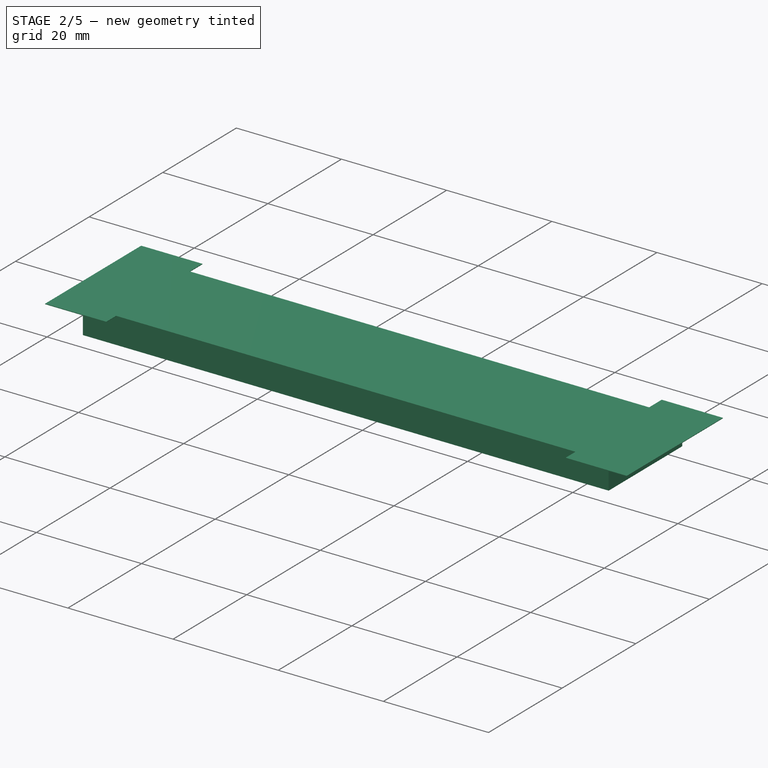
[diagram: stage 2 of 5 — iso view after this stage's code; geometry added in this stage tinted green]
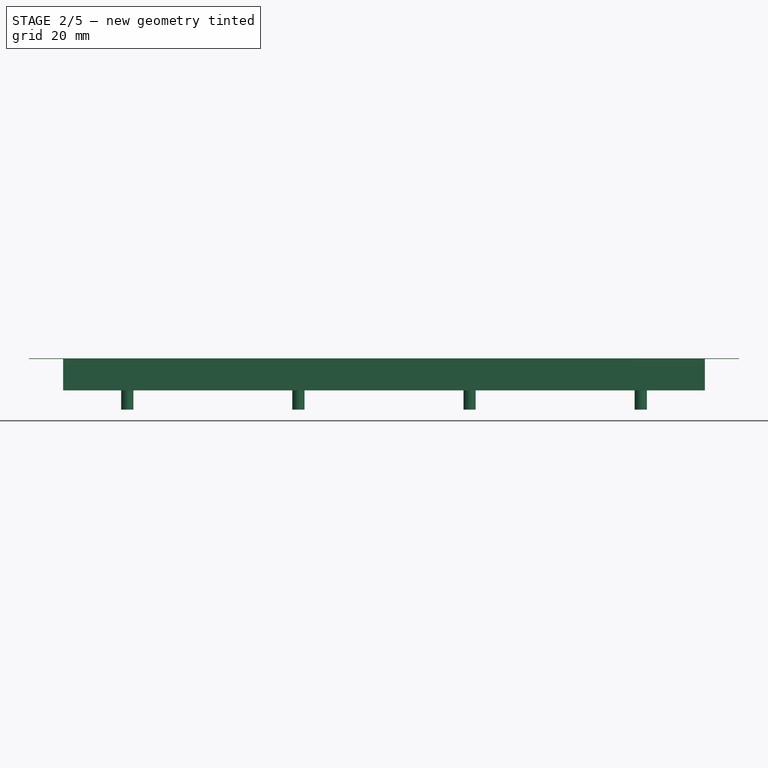
[diagram: stage 2 of 5 — front view after this stage's code; geometry added in this stage tinted green]
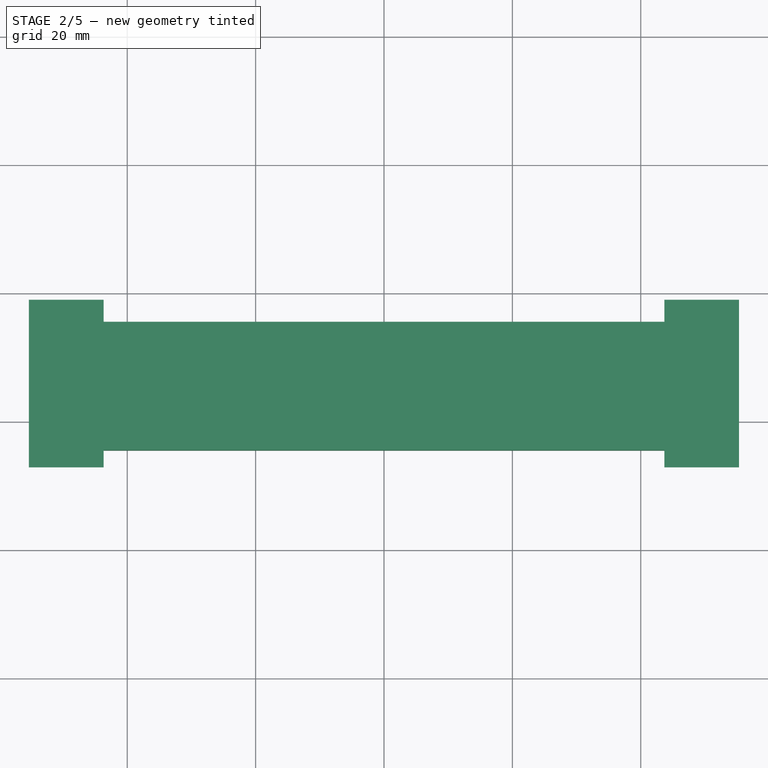
[diagram: stage 2 of 5 — top view after this stage's code; geometry added in this stage tinted green]
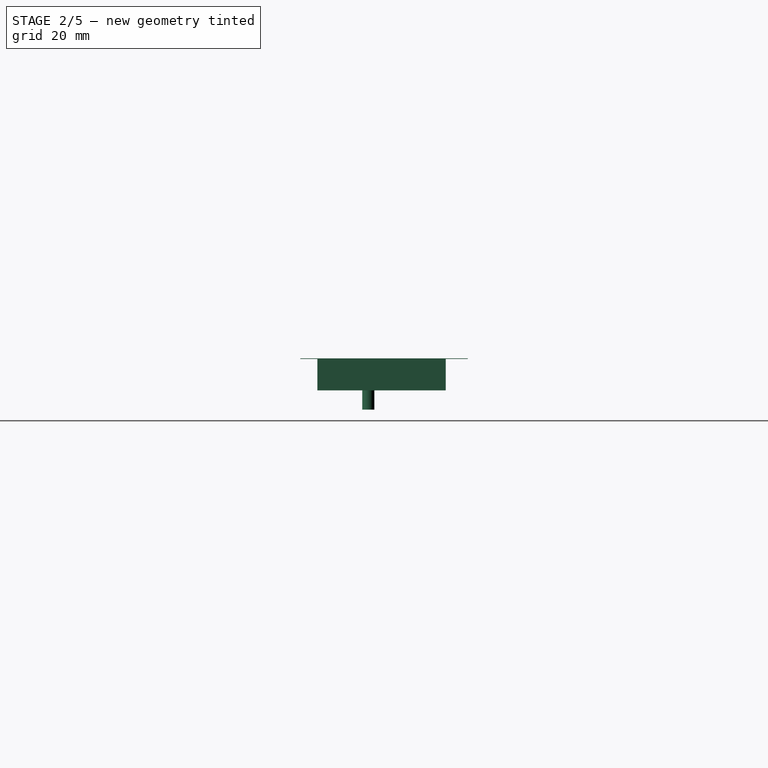
[diagram: stage 2 of 5 — right view after this stage's code; geometry added in this stage tinted green]
FEATURE [PartDesign::Body] Body024  label="Sot23-big"
  Group = -> [Sketch026,Pad024,Chamfer010,Sketch027,Pocket002]
  Origin = -> Origin095
  Placement = pos=(0,0,0) rot=(0,0,1;1.5708rad)
  Tip = -> Pocket002
FEATURE [App::Part] U1
  Group = -> [Open_CASCADE_STEP_translator_6_8_1_17_1,Body024]
  Origin = -> Origin032
  Placement = pos=(-16.637,-11.303,0.5) rot=(0,0,1;1.5708rad)
FEATURE [App::Part] Open_CASCADE_STEP_translator_6_8_1  label="Open CASCADE STEP translator 6.8 1"
  Group = -> [Part__Feature,J24,J25,J26,J27,J20,J23,J21,J22,J1,J2,R3,Q5,Q6,U6,Q1,U1,R12,C4,R2,R9,R10,C1,R6,D1,C2,Q3,U2,R11,R13,Q7,Q8,R1,C3,C5,U3]
  Origin = -> Origin071
  Placement = pos=(0,11.43,-0.5) rot=(0,0,1;0rad)
FEATURE [Sketcher::SketchObject] Sketch056
  MapMode = 5
  Support = -> [XY_Plane096]
  sketch-geometry (6):
    g0: LineSegment StartX=-50 StartY=15.4848 StartZ=0 EndX=50 EndY=15.4848 EndZ=0
    g1: LineSegment StartX=50 StartY=15.4848 StartZ=0 EndX=50 EndY=-4.51524 EndZ=0
    g2: LineSegment StartX=50 StartY=-4.51524 StartZ=0 EndX=-50 EndY=-4.51524 EndZ=0
    g3: LineSegment StartX=-50 StartY=-4.51524 StartZ=0 EndX=-50 EndY=15.4848 EndZ=0
    g4: LineSegment [constr] StartX=-50 StartY=15.4848 StartZ=0 EndX=0 EndY=1.8e-15 EndZ=0
    g5: LineSegment [constr] StartX=0 StartY=0 StartZ=0 EndX=50 EndY=15.4848 EndZ=0
  constraints (15):
    c: Coincident(g0,g1)
    c: Coincident(g1,g2)
    c: Coincident(g2,g3)
    c: Coincident(g3,g0)
    c: Horizontal(g0)
    c: Horizontal(g2)
    c: Vertical(g1)
    c: Vertical(g3)
    c: DistanceY(g3,g3) = 20
    c: Coincident(g4,g0)
    c: Coincident(g4,g-1)
    c: Coincident(g5,g-1)
    c: Coincident(g5,g0)
    c: Equal(g5,g4)
    c: DistanceX(g0,g0) = 100
FEATURE [PartDesign::Pad] Pad050
  Length = 5
  Length2 = 100
  Profile = -> Sketch056
  Refine = true
  Type = 0
FEATURE [Sketcher::SketchObject] Sketch058
  MapMode = 5
  Support = -> [XY_Plane123]
  sketch-geometry (7):
    g0: LineSegment StartX=-1.6 StartY=-1.5 StartZ=0 EndX=1.6 EndY=-1.5 EndZ=0
    g1: LineSegment StartX=1.6 StartY=-1.5 StartZ=0 EndX=1.6 EndY=1.5 EndZ=0
    g2: LineSegment StartX=1.6 StartY=1.5 StartZ=0 EndX=-1.6 EndY=1.5 EndZ=0
    g3: LineSegment StartX=-1.6 StartY=1.5 StartZ=0 EndX=-1.6 EndY=-1.5 EndZ=0
    g4: LineSegment [constr] StartX=-1.6 StartY=1.5 StartZ=0 EndX=0 EndY=0 EndZ=0
    g5: LineSegment [constr] StartX=0 StartY=0 StartZ=0 EndX=1.6 EndY=1.5 EndZ=0
    g6: LineSegment [constr] StartX=0 StartY=0 StartZ=0 EndX=-1.6 EndY=-1.5 EndZ=0
  constraints (18):
    c: Coincident(g0,g1)
    c: Coincident(g1,g2)
    c: Coincident(g2,g3)
    c: Coincident(g3,g0)
    c: Horizontal(g0)
    c: Horizontal(g2)
    c: Vertical(g1)
    c: Vertical(g3)
    c: Coincident(g4,g2)
    c: Coincident(g4,g-1)
    c: Coincident(g5,g-1)
    c: Coincident(g5,g1)
    c: Coincident(g6,g-1)
    c: Coincident(g6,g0)
    c: Equal(g5,g4)
    c: Equal(g4,g6)
    c: DistanceX(g2,g2) = 3.2
    c: DistanceY(g3,g3) = 3
FEATURE [PartDesign::Pad] Pad052
  Length = 1.4
  Length2 = 100
  Profile = -> Sketch058
  Refine = true
  Type = 0
FEATURE [PartDesign::Chamfer] Chamfer024
  Base = -> Pad052 [Edge12,Edge7]
  BaseFeature = -> Pad052
  Size = 1
FEATURE [PartDesign::Body] Body051  label="Supersot022"
  Group = -> [Sketch058,Pad052,Chamfer024]
  Origin = -> Origin123
  Placement = pos=(-25.4,0,0) rot=(0,0,1;0rad)
  Tip = -> Chamfer024
FEATURE [Sketcher::SketchObject] Sketch059
  MapMode = 5
  Support = -> [XY_Plane124]
  sketch-geometry (7):
    g0: LineSegment StartX=-1.6 StartY=-1.5 StartZ=0 EndX=1.6 EndY=-1.5 EndZ=0
    g1: LineSegment StartX=1.6 StartY=-1.5 StartZ=0 EndX=1.6 EndY=1.5 EndZ=0
    g2: LineSegment StartX=1.6 StartY=1.5 StartZ=0 EndX=-1.6 EndY=1.5 EndZ=0
    g3: LineSegment StartX=-1.6 StartY=1.5 StartZ=0 EndX=-1.6 EndY=-1.5 EndZ=0
    g4: LineSegment [constr] StartX=-1.6 StartY=1.5 StartZ=0 EndX=0 EndY=0 EndZ=0
    g5: LineSegment [constr] StartX=0 StartY=0 StartZ=0 EndX=1.6 EndY=1.5 EndZ=0
    g6: LineSegment [constr] StartX=0 StartY=0 StartZ=0 EndX=-1.6 EndY=-1.5 EndZ=0
  constraints (18):
    c: Coincident(g0,g1)
    c: Coincident(g1,g2)
    c: Coincident(g2,g3)
    c: Coincident(g3,g0)
    c: Horizontal(g0)
    c: Horizontal(g2)
    c: Vertical(g1)
    c: Vertical(g3)
    c: Coincident(g4,g2)
    c: Coincident(g4,g-1)
    c: Coincident(g5,g-1)
    c: Coincident(g5,g1)
    c: Coincident(g6,g-1)
    c: Coincident(g6,g0)
    c: Equal(g5,g4)
    c: Equal(g4,g6)
    c: DistanceX(g2,g2) = 3.2
    c: DistanceY(g3,g3) = 3
FEATURE [PartDesign::Pad] Pad053
  Length = 1.4
  Length2 = 100
  Profile = -> Sketch059
  Refine = true
  Type = 0
FEATURE [PartDesign::Chamfer] Chamfer022
  Base = -> Pad053 [Edge12,Edge7]
  BaseFeature = -> Pad053
  Size = 1
FEATURE [PartDesign::Body] Body052  label="Supersot023"
  Group = -> [Sketch059,Pad053,Chamfer022]
  Origin = -> Origin124
  Placement = pos=(-21.59,0,0) rot=(0,0,1;0rad)
  Tip = -> Chamfer022
FEATURE [Sketcher::SketchObject] Sketch060
  MapMode = 5
  Support = -> [XY_Plane125]
  sketch-geometry (7):
    g0: LineSegment StartX=-1.6 StartY=-1.5 StartZ=0 EndX=1.6 EndY=-1.5 EndZ=0
    g1: LineSegment StartX=1.6 StartY=-1.5 StartZ=0 EndX=1.6 EndY=1.5 EndZ=0
    g2: LineSegment StartX=1.6 StartY=1.5 StartZ=0 EndX=-1.6 EndY=1.5 EndZ=0
    g3: LineSegment StartX=-1.6 StartY=1.5 StartZ=0 EndX=-1.6 EndY=-1.5 EndZ=0
    g4: LineSegment [constr] StartX=-1.6 StartY=1.5 StartZ=0 EndX=0 EndY=0 EndZ=0
    g5: LineSegment [constr] StartX=0 StartY=0 StartZ=0 EndX=1.6 EndY=1.5 EndZ=0
    g6: LineSegment [constr] StartX=0 StartY=0 StartZ=0 EndX=-1.6 EndY=-1.5 EndZ=0
  constraints (18):
    c: Coincident(g0,g1)
    c: Coincident(g1,g2)
    c: Coincident(g2,g3)
    c: Coincident(g3,g0)
    c: Horizontal(g0)
    c: Horizontal(g2)
    c: Vertical(g1)
    c: Vertical(g3)
    c: Coincident(g4,g2)
    c: Coincident(g4,g-1)
    c: Coincident(g5,g-1)
    c: Coincident(g5,g1)
    c: Coincident(g6,g-1)
    c: Coincident(g6,g0)
    c: Equal(g5,g4)
    c: Equal(g4,g6)
    c: DistanceX(g2,g2) = 3.2
    c: DistanceY(g3,g3) = 3
FEATURE [PartDesign::Pad] Pad054
  Length = 1.4
  Length2 = 100
  Profile = -> Sketch060
  Refine = true
  Type = 0
FEATURE [PartDesign::Chamfer] Chamfer031
  Base = -> Pad054 [Edge12,Edge7]
  BaseFeature = -> Pad054
  Size = 1
FEATURE [PartDesign::Body] Body053  label="Supersot024"
  Group = -> [Sketch060,Pad054,Chamfer031]
  Origin = -> Origin125
  Placement = pos=(-33.02,0,0) rot=(0,0,1;0rad)
  Tip = -> Chamfer031
FEATURE [Sketcher::SketchObject] Sketch061
  MapMode = 5
  Support = -> [XY_Plane126]
  sketch-geometry (7):
    g0: LineSegment StartX=-1.6 StartY=-1.5 StartZ=0 EndX=1.6 EndY=-1.5 EndZ=0
    g1: LineSegment StartX=1.6 StartY=-1.5 StartZ=0 EndX=1.6 EndY=1.5 EndZ=0
    g2: LineSegment StartX=1.6 StartY=1.5 StartZ=0 EndX=-1.6 EndY=1.5 EndZ=0
    g3: LineSegment StartX=-1.6 StartY=1.5 StartZ=0 EndX=-1.6 EndY=-1.5 EndZ=0
    g4: LineSegment [constr] StartX=-1.6 StartY=1.5 StartZ=0 EndX=0 EndY=0 EndZ=0
    g5: LineSegment [constr] StartX=0 StartY=0 StartZ=0 EndX=1.6 EndY=1.5 EndZ=0
    g6: LineSegment [constr] StartX=0 StartY=0 StartZ=0 EndX=-1.6 EndY=-1.5 EndZ=0
  constraints (18):
    c: Coincident(g0,g1)
    c: Coincident(g1,g2)
    c: Coincident(g2,g3)
    c: Coincident(g3,g0)
    c: Horizontal(g0)
    c: Horizontal(g2)
    c: Vertical(g1)
    c: Vertical(g3)
    c: Coincident(g4,g2)
    c: Coincident(g4,g-1)
    c: Coincident(g5,g-1)
    c: Coincident(g5,g1)
    c: Coincident(g6,g-1)
    c: Coincident(g6,g0)
    c: Equal(g5,g4)
    c: Equal(g4,g6)
    c: DistanceX(g2,g2) = 3.2
    c: DistanceY(g3,g3) = 3
FEATURE [Sketcher::SketchObject] Sketch062
  MapMode = 5
  Support = -> [XY_Plane130]
  sketch-geometry (7):
    g0: LineSegment StartX=-1.6 StartY=-1.5 StartZ=0 EndX=1.6 EndY=-1.5 EndZ=0
    g1: LineSegment StartX=1.6 StartY=-1.5 StartZ=0 EndX=1.6 EndY=1.5 EndZ=0
    g2: LineSegment StartX=1.6 StartY=1.5 StartZ=0 EndX=-1.6 EndY=1.5 EndZ=0
    g3: LineSegment StartX=-1.6 StartY=1.5 StartZ=0 EndX=-1.6 EndY=-1.5 EndZ=0
    g4: LineSegment [constr] StartX=-1.6 StartY=1.5 StartZ=0 EndX=0 EndY=0 EndZ=0
    g5: LineSegment [constr] StartX=0 StartY=0 StartZ=0 EndX=1.6 EndY=1.5 EndZ=0
    g6: LineSegment [constr] StartX=0 StartY=0 StartZ=0 EndX=-1.6 EndY=-1.5 EndZ=0
  constraints (18):
    c: Coincident(g0,g1)
    c: Coincident(g1,g2)
    c: Coincident(g2,g3)
    c: Coincident(g3,g0)
    c: Horizontal(g0)
    c: Horizontal(g2)
    c: Vertical(g1)
    c: Vertical(g3)
    c: Coincident(g4,g2)
    c: Coincident(g4,g-1)
    c: Coincident(g5,g-1)
    c: Coincident(g5,g1)
    c: Coincident(g6,g-1)
    c: Coincident(g6,g0)
    c: Equal(g5,g4)
    c: Equal(g4,g6)
    c: DistanceX(g2,g2) = 3.2
    c: DistanceY(g3,g3) = 3
FEATURE [Sketcher::SketchObject] Sketch063
  MapMode = 5
  Support = -> [XY_Plane127]
  sketch-geometry (7):
    g0: LineSegment StartX=-1.6 StartY=-1.5 StartZ=0 EndX=1.6 EndY=-1.5 EndZ=0
    g1: LineSegment StartX=1.6 StartY=-1.5 StartZ=0 EndX=1.6 EndY=1.5 EndZ=0
    g2: LineSegment StartX=1.6 StartY=1.5 StartZ=0 EndX=-1.6 EndY=1.5 EndZ=0
    g3: LineSegment StartX=-1.6 StartY=1.5 StartZ=0 EndX=-1.6 EndY=-1.5 EndZ=0
    g4: LineSegment [constr] StartX=-1.6 StartY=1.5 StartZ=0 EndX=0 EndY=0 EndZ=0
    g5: LineSegment [constr] StartX=0 StartY=0 StartZ=0 EndX=1.6 EndY=1.5 EndZ=0
    g6: LineSegment [constr] StartX=0 StartY=0 StartZ=0 EndX=-1.6 EndY=-1.5 EndZ=0
  constraints (18):
    c: Coincident(g0,g1)
    c: Coincident(g1,g2)
    c: Coincident(g2,g3)
    c: Coincident(g3,g0)
    c: Horizontal(g0)
    c: Horizontal(g2)
    c: Vertical(g1)
    c: Vertical(g3)
    c: Coincident(g4,g2)
    c: Coincident(g4,g-1)
    c: Coincident(g5,g-1)
    c: Coincident(g5,g1)
    c: Coincident(g6,g-1)
    c: Coincident(g6,g0)
    c: Equal(g5,g4)
    c: Equal(g4,g6)
    c: DistanceX(g2,g2) = 3.2
    c: DistanceY(g3,g3) = 3
FEATURE [Sketcher::SketchObject] Sketch064
  MapMode = 5
  Support = -> [XY_Plane128]
  sketch-geometry (7):
    g0: LineSegment StartX=-1.6 StartY=-1.5 StartZ=0 EndX=1.6 EndY=-1.5 EndZ=0
    g1: LineSegment StartX=1.6 StartY=-1.5 StartZ=0 EndX=1.6 EndY=1.5 EndZ=0
    g2: LineSegment StartX=1.6 StartY=1.5 StartZ=0 EndX=-1.6 EndY=1.5 EndZ=0
    g3: LineSegment StartX=-1.6 StartY=1.5 StartZ=0 EndX=-1.6 EndY=-1.5 EndZ=0
    g4: LineSegment [constr] StartX=-1.6 StartY=1.5 StartZ=0 EndX=0 EndY=0 EndZ=0
    g5: LineSegment [constr] StartX=0 StartY=0 StartZ=0 EndX=1.6 EndY=1.5 EndZ=0
    g6: LineSegment [constr] StartX=0 StartY=0 StartZ=0 EndX=-1.6 EndY=-1.5 EndZ=0
  constraints (18):
    c: Coincident(g0,g1)
    c: Coincident(g1,g2)
    c: Coincident(g2,g3)
    c: Coincident(g3,g0)
    c: Horizontal(g0)
    c: Horizontal(g2)
    c: Vertical(g1)
    c: Vertical(g3)
    c: Coincident(g4,g2)
    c: Coincident(g4,g-1)
    c: Coincident(g5,g-1)
    c: Coincident(g5,g1)
    c: Coincident(g6,g-1)
    c: Coincident(g6,g0)
    c: Equal(g5,g4)
    c: Equal(g4,g6)
    c: DistanceX(g2,g2) = 3.2
    c: DistanceY(g3,g3) = 3
FEATURE [Sketcher::SketchObject] Sketch065
  MapMode = 5
  Support = -> [XY_Plane129]
  sketch-geometry (7):
    g0: LineSegment StartX=-1.6 StartY=-1.5 StartZ=0 EndX=1.6 EndY=-1.5 EndZ=0
    g1: LineSegment StartX=1.6 StartY=-1.5 StartZ=0 EndX=1.6 EndY=1.5 EndZ=0
    g2: LineSegment StartX=1.6 StartY=1.5 StartZ=0 EndX=-1.6 EndY=1.5 EndZ=0
    g3: LineSegment StartX=-1.6 StartY=1.5 StartZ=0 EndX=-1.6 EndY=-1.5 EndZ=0
    g4: LineSegment [constr] StartX=-1.6 StartY=1.5 StartZ=0 EndX=0 EndY=0 EndZ=0
    g5: LineSegment [constr] StartX=0 StartY=0 StartZ=0 EndX=1.6 EndY=1.5 EndZ=0
    g6: LineSegment [constr] StartX=0 StartY=0 StartZ=0 EndX=-1.6 EndY=-1.5 EndZ=0
  constraints (18):
    c: Coincident(g0,g1)
    c: Coincident(g1,g2)
    c: Coincident(g2,g3)
    c: Coincident(g3,g0)
    c: Horizontal(g0)
    c: Horizontal(g2)
    c: Vertical(g1)
    c: Vertical(g3)
    c: Coincident(g4,g2)
    c: Coincident(g4,g-1)
    c: Coincident(g5,g-1)
    c: Coincident(g5,g1)
    c: Coincident(g6,g-1)
    c: Coincident(g6,g0)
    c: Equal(g5,g4)
    c: Equal(g4,g6)
    c: DistanceX(g2,g2) = 3.2
    c: DistanceY(g3,g3) = 3
FEATURE [PartDesign::Pad] Pad055
  Length = 1.4
  Length2 = 100
  Profile = -> Sketch061
  Refine = true
  Type = 0
FEATURE [PartDesign::Chamfer] Chamfer032
  Base = -> Pad055 [Edge12,Edge7]
  BaseFeature = -> Pad055
  Size = 1
FEATURE [PartDesign::Body] Body054  label="Supersot025"
  Group = -> [Sketch061,Pad055,Chamfer032]
  Origin = -> Origin126
  Placement = pos=(-36.83,0,0) rot=(0,0,1;0rad)
  Tip = -> Chamfer032
FEATURE [PartDesign::Pad] Pad056
  Length = 1.4
  Length2 = 100
  Profile = -> Sketch063
  Refine = true
  Type = 0
FEATURE [PartDesign::Chamfer] Chamfer025
  Base = -> Pad056 [Edge12,Edge7]
  BaseFeature = -> Pad056
  Size = 1
FEATURE [PartDesign::Body] Body055  label="Supersot026"
  Group = -> [Sketch063,Pad056,Chamfer025]
  Origin = -> Origin127
  Placement = pos=(25.4,0,0) rot=(0,0,1;0rad)
  Tip = -> Chamfer025
FEATURE [PartDesign::Pad] Pad057
  Length = 1.4
  Length2 = 100
  Profile = -> Sketch064
  Refine = true
  Type = 0
FEATURE [PartDesign::Chamfer] Chamfer030
  Base = -> Pad057 [Edge12,Edge7]
  BaseFeature = -> Pad057
  Size = 1
FEATURE [PartDesign::Body] Body056  label="Supersot027"
  Group = -> [Sketch064,Pad057,Chamfer030]
  Origin = -> Origin128
  Placement = pos=(21.59,0,0) rot=(0,0,1;0rad)
  Tip = -> Chamfer030
FEATURE [PartDesign::Pad] Pad058
  Length = 1.4
  Length2 = 100
  Profile = -> Sketch065
  Refine = true
  Type = 0
FEATURE [PartDesign::Chamfer] Chamfer026
  Base = -> Pad058 [Edge12,Edge7]
  BaseFeature = -> Pad058
  Size = 1
FEATURE [PartDesign::Body] Body057  label="Supersot028"
  Group = -> [Sketch065,Pad058,Chamfer026]
  Origin = -> Origin129
  Placement = pos=(33.02,0,0) rot=(0,0,1;0rad)
  Tip = -> Chamfer026
FEATURE [PartDesign::Pad] Pad059
  Length = 1.4
  Length2 = 100
  Profile = -> Sketch062
  Refine = true
  Type = 0
FEATURE [PartDesign::Chamfer] Chamfer028
  Base = -> Pad059 [Edge12,Edge7]
  BaseFeature = -> Pad059
  Size = 1
FEATURE [PartDesign::Body] Body058  label="Supersot029"
  Group = -> [Sketch062,Pad059,Chamfer028]
  Origin = -> Origin130
  Placement = pos=(36.83,0,0) rot=(0,0,1;0rad)
  Tip = -> Chamfer028
FEATURE [Sketcher::SketchObject] Sketch082
  MapMode = 5
  Support = -> [XY_Plane146]
  sketch-geometry (7):
    g0: LineSegment StartX=-1.6 StartY=-1.5 StartZ=0 EndX=1.6 EndY=-1.5 EndZ=0
    g1: LineSegment StartX=1.6 StartY=-1.5 StartZ=0 EndX=1.6 EndY=1.5 EndZ=0
    g2: LineSegment StartX=1.6 StartY=1.5 StartZ=0 EndX=-1.6 EndY=1.5 EndZ=0
    g3: LineSegment StartX=-1.6 StartY=1.5 StartZ=0 EndX=-1.6 EndY=-1.5 EndZ=0
    g4: LineSegment [constr] StartX=-1.6 StartY=1.5 StartZ=0 EndX=0 EndY=0 EndZ=0
    g5: LineSegment [constr] StartX=0 StartY=0 StartZ=0 EndX=1.6 EndY=1.5 EndZ=0
    g6: LineSegment [constr] StartX=0 StartY=0 StartZ=0 EndX=-1.6 EndY=-1.5 EndZ=0
  constraints (18):
    c: Coincident(g0,g1)
    c: Coincident(g1,g2)
    c: Coincident(g2,g3)
    c: Coincident(g3,g0)
    c: Horizontal(g0)
    c: Horizontal(g2)
    c: Vertical(g1)
    c: Vertical(g3)
    c: Coincident(g4,g2)
    c: Coincident(g4,g-1)
    c: Coincident(g5,g-1)
    c: Coincident(g5,g1)
    c: Coincident(g6,g-1)
    c: Coincident(g6,g0)
    c: Equal(g5,g4)
    c: Equal(g4,g6)
    c: DistanceX(g2,g2) = 3.2
    c: DistanceY(g3,g3) = 3
FEATURE [PartDesign::Pad] Pad075
  Length = 1.2
  Length2 = 100
  Profile = -> Sketch082
  Refine = true
  Type = 0
FEATURE [PartDesign::Chamfer] Chamfer027
  Base = -> Pad075 [Edge12,Edge7]
  BaseFeature = -> Pad075
  Size = 1
FEATURE [Sketcher::SketchObject] Sketch083
  MapMode = 5
  Placement = pos=(0,0,1.2) rot=(0,0,1;0rad)
  Support = -> [Chamfer027]
  sketch-geometry (23):
    g0: LineSegment StartX=-2.76097 StartY=0.5085 StartZ=0 EndX=-0.743008 EndY=0.5085 EndZ=0
    g1: LineSegment StartX=-0.743008 StartY=0.5085 StartZ=0 EndX=-0.743008 EndY=-0.5085 EndZ=0
    g2: LineSegment StartX=-0.743008 StartY=-0.5085 StartZ=0 EndX=-2.76097 EndY=-0.5085 EndZ=0
    g3: LineSegment StartX=-2.76097 StartY=-0.5085 StartZ=0 EndX=-2.76097 EndY=0.5085 EndZ=0
    g4: LineSegment [constr] StartX=-2.76097 StartY=0.5085 StartZ=0 EndX=-1.75199 EndY=0 EndZ=0
    g5: LineSegment [constr] StartX=-0.743008 StartY=0.5085 StartZ=0 EndX=-1.75199 EndY=0 EndZ=0
    g6: LineSegment [constr] StartX=-2.76097 StartY=-0.5085 StartZ=0 EndX=-1.75199 EndY=0 EndZ=0
    g7: LineSegment StartX=0.706831 StartY=1.72252 StartZ=0 EndX=2.53455 EndY=1.72252 EndZ=0
    g8: LineSegment StartX=2.53455 StartY=1.72252 StartZ=0 EndX=2.53455 EndY=0.567301 EndZ=0
    g9: LineSegment StartX=2.53455 StartY=0.567301 StartZ=0 EndX=0.706831 EndY=0.567301 EndZ=0
    g10: LineSegment StartX=0.706831 StartY=0.567301 StartZ=0 EndX=0.706831 EndY=1.72252 EndZ=0
    g11: LineSegment StartX=0.706831 StartY=-1.72252 StartZ=0 EndX=2.53455 EndY=-1.72252 EndZ=0
    g12: LineSegment StartX=2.53455 StartY=-1.72252 StartZ=0 EndX=2.53455 EndY=-0.567301 EndZ=0
    g13: LineSegment StartX=2.53455 StartY=-0.567301 StartZ=0 EndX=0.706831 EndY=-0.567301 EndZ=0
    g14: LineSegment StartX=0.706831 StartY=-0.567301 StartZ=0 EndX=0.706831 EndY=-1.72252 EndZ=0
    g15: LineSegment [constr] StartX=0.706831 StartY=-0.567301 StartZ=0 EndX=1.62069 EndY=-1.14491 EndZ=0
    g16: LineSegment [constr] StartX=1.62069 StartY=-1.14491 StartZ=0 EndX=0.706831 EndY=-1.72252 EndZ=0
    g17: LineSegment [constr] StartX=1.62069 StartY=-1.14491 StartZ=0 EndX=2.53455 EndY=-0.567301 EndZ=0
    g18: LineSegment [constr] StartX=1.62069 StartY=-1.14491 StartZ=0 EndX=1.62069 EndY=0 EndZ=0
    g19: LineSegment [constr] StartX=1.62069 StartY=0 StartZ=0 EndX=1.62069 EndY=1.14491 EndZ=0
    g20: LineSegment [constr] StartX=2.53455 StartY=1.72252 StartZ=0 EndX=1.62069 EndY=1.14491 EndZ=0
    g21: LineSegment [constr] StartX=1.62069 StartY=1.14491 StartZ=0 EndX=0.706831 EndY=1.72252 EndZ=0
    g22: LineSegment [constr] StartX=0.706831 StartY=0.567301 StartZ=0 EndX=1.62069 EndY=1.14491 EndZ=0
  constraints (55):
    c: Coincident(g0,g1)
    c: Coincident(g1,g2)
    c: Coincident(g2,g3)
    c: Coincident(g3,g0)
    c: Horizontal(g0)
    c: Horizontal(g2)
    c: Vertical(g1)
    c: Vertical(g3)
    c: Coincident(g4,g0)
    c: PointOnObject(g4,g-1)
    c: Coincident(g5,g0)
    c: Coincident(g5,g4)
    c: Coincident(g6,g2)
    c: Coincident(g6,g4)
    c: Equal(g4,g6)
    c: Equal(g6,g5)
    c: Coincident(g7,g8)
    c: Coincident(g8,g9)
    c: Coincident(g9,g10)
    c: Coincident(g10,g7)
    c: Horizontal(g7)
    c: Horizontal(g9)
    c: Vertical(g8)
    c: Vertical(g10)
    c: Coincident(g11,g12)
    c: Coincident(g12,g13)
    c: Coincident(g13,g14)
    c: Coincident(g14,g11)
    c: Horizontal(g11)
    c: Horizontal(g13)
    c: Vertical(g12)
    c: Vertical(g14)
    c: Coincident(g15,g13)
    c: Coincident(g16,g15)
    c: Coincident(g16,g11)
    c: Coincident(g17,g15)
    c: Coincident(g17,g12)
    c: Coincident(g18,g15)
    c: PointOnObject(g18,g-1)
    c: Vertical(g18)
    c: Coincident(g19,g18)
    c: Coincident(g20,g7)
    c: Coincident(g20,g19)
    c: Coincident(g21,g19)
    c: Coincident(g21,g7)
    c: Coincident(g22,g9)
    c: Coincident(g22,g19)
    c: Vertical(g19)
    c: Equal(g22,g21)
    c: Equal(g21,g20)
    c: Equal(g20,g15)
    c: Equal(g15,g16)
    c: Equal(g16,g17)
    c: Equal(g13,g7)
    c: Equal(g18,g19)
FEATURE [PartDesign::Pocket] Pocket007
  BaseFeature = -> Chamfer027
  Length = 5
  Length2 = 100
  Profile = -> Sketch083
  Refine = true
  Type = 0
FEATURE [PartDesign::Body] Body074  label="Sot024"
  Group = -> [Sketch082,Pad075,Chamfer027,Sketch083,Pocket007]
  Origin = -> Origin146
  Placement = pos=(-10.3251,0,0) rot=(0,0,1;0rad)
  Tip = -> Pocket007
FEATURE [Sketcher::SketchObject] Sketch084
  MapMode = 5
  Support = -> [XY_Plane147]
  sketch-geometry (7):
    g0: LineSegment StartX=-1.6 StartY=-1.5 StartZ=0 EndX=1.6 EndY=-1.5 EndZ=0
    g1: LineSegment StartX=1.6 StartY=-1.5 StartZ=0 EndX=1.6 EndY=1.5 EndZ=0
    g2: LineSegment StartX=1.6 StartY=1.5 StartZ=0 EndX=-1.6 EndY=1.5 EndZ=0
    g3: LineSegment StartX=-1.6 StartY=1.5 StartZ=0 EndX=-1.6 EndY=-1.5 EndZ=0
    g4: LineSegment [constr] StartX=-1.6 StartY=1.5 StartZ=0 EndX=0 EndY=0 EndZ=0
    g5: LineSegment [constr] StartX=0 StartY=0 StartZ=0 EndX=1.6 EndY=1.5 EndZ=0
    g6: LineSegment [constr] StartX=0 StartY=0 StartZ=0 EndX=-1.6 EndY=-1.5 EndZ=0
  constraints (18):
    c: Coincident(g0,g1)
    c: Coincident(g1,g2)
    c: Coincident(g2,g3)
    c: Coincident(g3,g0)
    c: Horizontal(g0)
    c: Horizontal(g2)
    c: Vertical(g1)
    c: Vertical(g3)
    c: Coincident(g4,g2)
    c: Coincident(g4,g-1)
    c: Coincident(g5,g-1)
    c: Coincident(g5,g1)
    c: Coincident(g6,g-1)
    c: Coincident(g6,g0)
    c: Equal(g5,g4)
    c: Equal(g4,g6)
    c: DistanceX(g2,g2) = 3.2
    c: DistanceY(g3,g3) = 3
FEATURE [PartDesign::Pad] Pad076
  Length = 1.2
  Length2 = 100
  Profile = -> Sketch084
  Refine = true
  Type = 0
FEATURE [PartDesign::Chamfer] Chamfer029
  Base = -> Pad076 [Edge12,Edge7]
  BaseFeature = -> Pad076
  Size = 0.5
FEATURE [Sketcher::SketchObject] Sketch085
  MapMode = 5
  Placement = pos=(0,0,1.2) rot=(0,0,1;0rad)
  Support = -> [Chamfer029]
  sketch-geometry (23):
    g0: LineSegment StartX=-2.77743 StartY=0.5085 StartZ=0 EndX=-0.926537 EndY=0.5085 EndZ=0
    g1: LineSegment StartX=-0.926537 StartY=0.5085 StartZ=0 EndX=-0.926537 EndY=-0.5085 EndZ=0
    g2: LineSegment StartX=-0.926537 StartY=-0.5085 StartZ=0 EndX=-2.77743 EndY=-0.5085 EndZ=0
    g3: LineSegment StartX=-2.77743 StartY=-0.5085 StartZ=0 EndX=-2.77743 EndY=0.5085 EndZ=0
    g4: LineSegment [constr] StartX=-2.77743 StartY=0.5085 StartZ=0 EndX=-1.85198 EndY=0 EndZ=0
    g5: LineSegment [constr] StartX=-0.926537 StartY=0.5085 StartZ=0 EndX=-1.85198 EndY=0 EndZ=0
    g6: LineSegment [constr] StartX=-2.77743 StartY=-0.5085 StartZ=0 EndX=-1.85198 EndY=0 EndZ=0
    g7: LineSegment StartX=0.901831 StartY=1.71105 StartZ=0 EndX=2.61133 EndY=1.71105 EndZ=0
    g8: LineSegment StartX=2.61133 StartY=1.71105 StartZ=0 EndX=2.61133 EndY=0.555831 EndZ=0
    g9: LineSegment StartX=2.61133 StartY=0.555831 StartZ=0 EndX=0.901831 EndY=0.555831 EndZ=0
    g10: LineSegment StartX=0.901831 StartY=0.555831 StartZ=0 EndX=0.901831 EndY=1.71105 EndZ=0
    g11: LineSegment StartX=0.901831 StartY=-1.71105 StartZ=0 EndX=2.61133 EndY=-1.71105 EndZ=0
    g12: LineSegment StartX=2.61133 StartY=-1.71105 StartZ=0 EndX=2.61133 EndY=-0.555831 EndZ=0
    g13: LineSegment StartX=2.61133 StartY=-0.555831 StartZ=0 EndX=0.901831 EndY=-0.555831 EndZ=0
    g14: LineSegment StartX=0.901831 StartY=-0.555831 StartZ=0 EndX=0.901831 EndY=-1.71105 EndZ=0
    g15: LineSegment [constr] StartX=0.901831 StartY=-0.555831 StartZ=0 EndX=1.75658 EndY=-1.13344 EndZ=0
    g16: LineSegment [constr] StartX=1.75658 StartY=-1.13344 StartZ=0 EndX=0.901831 EndY=-1.71105 EndZ=0
    g17: LineSegment [constr] StartX=1.75658 StartY=-1.13344 StartZ=0 EndX=2.61133 EndY=-0.555831 EndZ=0
    g18: LineSegment [constr] StartX=1.75658 StartY=-1.13344 StartZ=0 EndX=1.75658 EndY=0 EndZ=0
    g19: LineSegment [constr] StartX=1.75658 StartY=0 StartZ=0 EndX=1.75658 EndY=1.13344 EndZ=0
    g20: LineSegment [constr] StartX=2.61133 StartY=1.71105 StartZ=0 EndX=1.75658 EndY=1.13344 EndZ=0
    g21: LineSegment [constr] StartX=1.75658 StartY=1.13344 StartZ=0 EndX=0.901831 EndY=1.71105 EndZ=0
    g22: LineSegment [constr] StartX=0.901831 StartY=0.555831 StartZ=0 EndX=1.75658 EndY=1.13344 EndZ=0
  constraints (55):
    c: Coincident(g0,g1)
    c: Coincident(g1,g2)
    c: Coincident(g2,g3)
    c: Coincident(g3,g0)
    c: Horizontal(g0)
    c: Horizontal(g2)
    c: Vertical(g1)
    c: Vertical(g3)
    c: Coincident(g4,g0)
    c: PointOnObject(g4,g-1)
    c: Coincident(g5,g0)
    c: Coincident(g5,g4)
    c: Coincident(g6,g2)
    c: Coincident(g6,g4)
    c: Equal(g4,g6)
    c: Equal(g6,g5)
    c: Coincident(g7,g8)
    c: Coincident(g8,g9)
    c: Coincident(g9,g10)
    c: Coincident(g10,g7)
    c: Horizontal(g7)
    c: Horizontal(g9)
    c: Vertical(g8)
    c: Vertical(g10)
    c: Coincident(g11,g12)
    c: Coincident(g12,g13)
    c: Coincident(g13,g14)
    c: Coincident(g14,g11)
    c: Horizontal(g11)
    c: Horizontal(g13)
    c: Vertical(g12)
    c: Vertical(g14)
    c: Coincident(g15,g13)
    c: Coincident(g16,g15)
    c: Coincident(g16,g11)
    c: Coincident(g17,g15)
    c: Coincident(g17,g12)
    c: Coincident(g18,g15)
    c: PointOnObject(g18,g-1)
    c: Vertical(g18)
    c: Coincident(g19,g18)
    c: Coincident(g20,g7)
    c: Coincident(g20,g19)
    c: Coincident(g21,g19)
    c: Coincident(g21,g7)
    c: Coincident(g22,g9)
    c: Coincident(g22,g19)
    c: Vertical(g19)
    c: Equal(g22,g21)
    c: Equal(g21,g20)
    c: Equal(g20,g15)
    c: Equal(g15,g16)
    c: Equal(g16,g17)
    c: Equal(g13,g7)
    c: Equal(g18,g19)
FEATURE [PartDesign::Pocket] Pocket008
  BaseFeature = -> Chamfer029
  Length = 5
  Length2 = 100
  Profile = -> Sketch085
  Refine = true
  Type = 0
FEATURE [PartDesign::Body] Body075  label="Sot23-big002"
  Group = -> [Sketch084,Pad076,Chamfer029,Sketch085,Pocket008]
  Origin = -> Origin147
  Placement = pos=(-16.51,0,0) rot=(0,0,1;3.14159rad)
  Tip = -> Pocket008
FEATURE [Sketcher::SketchObject] Sketch086
  MapMode = 5
  Support = -> [XY_Plane148]
  expr: Constraints[16] = 2.1 + 0.1
  expr: Constraints[17] = 1.25 + 0.1
  sketch-geometry (7):
    g0: LineSegment StartX=-1.1 StartY=-0.675 StartZ=0 EndX=1.1 EndY=-0.675 EndZ=0
    g1: LineSegment StartX=1.1 StartY=-0.675 StartZ=0 EndX=1.1 EndY=0.675 EndZ=0
    g2: LineSegment StartX=1.1 StartY=0.675 StartZ=0 EndX=-1.1 EndY=0.675 EndZ=0
    g3: LineSegment StartX=-1.1 StartY=0.675 StartZ=0 EndX=-1.1 EndY=-0.675 EndZ=0
    g4: LineSegment [constr] StartX=-1.1 StartY=0.675 StartZ=0 EndX=0 EndY=-1e-16 EndZ=0
    g5: LineSegment [constr] StartX=0 StartY=0 StartZ=0 EndX=1.1 EndY=0.675 EndZ=0
    g6: LineSegment [constr] StartX=0 StartY=0 StartZ=0 EndX=-1.1 EndY=-0.675 EndZ=0
  constraints (18):
    c: Coincident(g0,g1)
    c: Coincident(g1,g2)
    c: Coincident(g2,g3)
    c: Coincident(g3,g0)
    c: Horizontal(g0)
    c: Horizontal(g2)
    c: Vertical(g1)
    c: Vertical(g3)
    c: Coincident(g4,g2)
    c: Coincident(g4,g-1)
    c: Coincident(g5,g-1)
    c: Coincident(g5,g1)
    c: Coincident(g6,g-1)
    c: Coincident(g6,g0)
    c: Equal(g5,g4)
    c: Equal(g4,g6)
    c: DistanceX(g2,g2) = 2.2
    c: DistanceY(g3,g3) = 1.35
FEATURE [PartDesign::Pad] Pad077
  Length = 1.35
  Length2 = 100
  Profile = -> Sketch086
  Refine = true
  Type = 0
  expr: Length = 1.25 + 0.1
FEATURE [PartDesign::Body] Body076  label="Capacitor 1u009"
  Group = -> [Sketch086,Pad077]
  Origin = -> Origin148
  Placement = pos=(-41.91,0,0) rot=(0,0,1;1.5708rad)
  Tip = -> Pad077
FEATURE [Sketcher::SketchObject] Sketch087
  MapMode = 5
  Support = -> [XY_Plane149]
  expr: Constraints[16] = 2.1 + 0.1
  expr: Constraints[17] = 1.25 + 0.1
  sketch-geometry (7):
    g0: LineSegment StartX=-1.1 StartY=-0.675 StartZ=0 EndX=1.1 EndY=-0.675 EndZ=0
    g1: LineSegment StartX=1.1 StartY=-0.675 StartZ=0 EndX=1.1 EndY=0.675 EndZ=0
    g2: LineSegment StartX=1.1 StartY=0.675 StartZ=0 EndX=-1.1 EndY=0.675 EndZ=0
    g3: LineSegment StartX=-1.1 StartY=0.675 StartZ=0 EndX=-1.1 EndY=-0.675 EndZ=0
    g4: LineSegment [constr] StartX=-1.1 StartY=0.675 StartZ=0 EndX=0 EndY=-1e-16 EndZ=0
    g5: LineSegment [constr] StartX=0 StartY=0 StartZ=0 EndX=1.1 EndY=0.675 EndZ=0
    g6: LineSegment [constr] StartX=0 StartY=0 StartZ=0 EndX=-1.1 EndY=-0.675 EndZ=0
  constraints (18):
    c: Coincident(g0,g1)
    c: Coincident(g1,g2)
    c: Coincident(g2,g3)
    c: Coincident(g3,g0)
    c: Horizontal(g0)
    c: Horizontal(g2)
    c: Vertical(g1)
    c: Vertical(g3)
    c: Coincident(g4,g2)
    c: Coincident(g4,g-1)
    c: Coincident(g5,g-1)
    c: Coincident(g5,g1)
    c: Coincident(g6,g-1)
    c: Coincident(g6,g0)
    c: Equal(g5,g4)
    c: Equal(g4,g6)
    c: DistanceX(g2,g2) = 2.2
    c: DistanceY(g3,g3) = 1.35
FEATURE [PartDesign::Pad] Pad078
  Length = 1.35
  Length2 = 100
  Profile = -> Sketch087
  Refine = true
  Type = 0
  expr: Length = 1.25 + 0.1
FEATURE [PartDesign::Body] Body077  label="Capacitor 1u010"
  Group = -> [Sketch087,Pad078]
  Origin = -> Origin149
  Placement = pos=(41.91,0,0) rot=(0,0,1;1.5708rad)
  Tip = -> Pad078
FEATURE [Sketcher::SketchObject] Sketch088
  MapMode = 5
  Support = -> [XY_Plane150]
  sketch-geometry (7):
    g0: LineSegment StartX=-1.6 StartY=-1.5 StartZ=0 EndX=1.6 EndY=-1.5 EndZ=0
    g1: LineSegment StartX=1.6 StartY=-1.5 StartZ=0 EndX=1.6 EndY=1.5 EndZ=0
    g2: LineSegment StartX=1.6 StartY=1.5 StartZ=0 EndX=-1.6 EndY=1.5 EndZ=0
    g3: LineSegment StartX=-1.6 StartY=1.5 StartZ=0 EndX=-1.6 EndY=-1.5 EndZ=0
    g4: LineSegment [constr] StartX=-1.6 StartY=1.5 StartZ=0 EndX=0 EndY=0 EndZ=0
    g5: LineSegment [constr] StartX=0 StartY=0 StartZ=0 EndX=1.6 EndY=1.5 EndZ=0
    g6: LineSegment [constr] StartX=0 StartY=0 StartZ=0 EndX=-1.6 EndY=-1.5 EndZ=0
  constraints (18):
    c: Coincident(g0,g1)
    c: Coincident(g1,g2)
    c: Coincident(g2,g3)
    c: Coincident(g3,g0)
    c: Horizontal(g0)
    c: Horizontal(g2)
    c: Vertical(g1)
    c: Vertical(g3)
    c: Coincident(g4,g2)
    c: Coincident(g4,g-1)
    c: Coincident(g5,g-1)
    c: Coincident(g5,g1)
    c: Coincident(g6,g-1)
    c: Coincident(g6,g0)
    c: Equal(g5,g4)
    c: Equal(g4,g6)
    c: DistanceX(g2,g2) = 3.2
    c: DistanceY(g3,g3) = 3
FEATURE [PartDesign::Pad] Pad079
  Length = 1.4
  Length2 = 100
  Profile = -> Sketch088
  Refine = true
  Type = 0
FEATURE [PartDesign::Chamfer] Chamfer033
  Base = -> Pad079 [Edge12,Edge7]
  BaseFeature = -> Pad079
  Size = 1
FEATURE [Sketcher::SketchObject] Sketch089
  MapMode = 5
  Placement = pos=(0,0,1.4) rot=(0,0,1;0rad)
  Support = -> [Chamfer033]
  sketch-geometry (7):
    g0: LineSegment StartX=-2.76097 StartY=0.5085 StartZ=0 EndX=-0.743008 EndY=0.5085 EndZ=0
    g1: LineSegment StartX=-0.743008 StartY=0.5085 StartZ=0 EndX=-0.743008 EndY=-0.5085 EndZ=0
    g2: LineSegment StartX=-0.743008 StartY=-0.5085 StartZ=0 EndX=-2.76097 EndY=-0.5085 EndZ=0
    g3: LineSegment StartX=-2.76097 StartY=-0.5085 StartZ=0 EndX=-2.76097 EndY=0.5085 EndZ=0
    g4: LineSegment [constr] StartX=-2.76097 StartY=0.5085 StartZ=0 EndX=-1.75199 EndY=0 EndZ=0
    g5: LineSegment [constr] StartX=-0.743008 StartY=0.5085 StartZ=0 EndX=-1.75199 EndY=0 EndZ=0
    g6: LineSegment [constr] StartX=-2.76097 StartY=-0.5085 StartZ=0 EndX=-1.75199 EndY=0 EndZ=0
  constraints (16):
    c: Coincident(g0,g1)
    c: Coincident(g1,g2)
    c: Coincident(g2,g3)
    c: Coincident(g3,g0)
    c: Horizontal(g0)
    c: Horizontal(g2)
    c: Vertical(g1)
    c: Vertical(g3)
    c: Coincident(g4,g0)
    c: PointOnObject(g4,g-1)
    c: Coincident(g5,g0)
    c: Coincident(g5,g4)
    c: Coincident(g6,g2)
    c: Coincident(g6,g4)
    c: Equal(g4,g6)
    c: Equal(g6,g5)
FEATURE [PartDesign::Pocket] Pocket009
  BaseFeature = -> Chamfer033
  Length = 5
  Length2 = 100
  Profile = -> Sketch089
  Refine = true
  Type = 0
FEATURE [PartDesign::Body] Body078  label="Sot23-009"
  Group = -> [Sketch088,Pad079,Chamfer033,Sketch089,Pocket009]
  Origin = -> Origin150
  Placement = pos=(6.99,0,0) rot=(0,0,1;3.14159rad)
  Tip = -> Pocket009
FEATURE [Sketcher::SketchObject] Sketch090
  MapMode = 5
  Support = -> [XY_Plane151]
  expr: Constraints[16] = 2.1 + 0.1
  expr: Constraints[17] = 1.25 + 0.1
  sketch-geometry (7):
    g0: LineSegment StartX=-1.1 StartY=-0.675 StartZ=0 EndX=1.1 EndY=-0.675 EndZ=0
    g1: LineSegment StartX=1.1 StartY=-0.675 StartZ=0 EndX=1.1 EndY=0.675 EndZ=0
    g2: LineSegment StartX=1.1 StartY=0.675 StartZ=0 EndX=-1.1 EndY=0.675 EndZ=0
    g3: LineSegment StartX=-1.1 StartY=0.675 StartZ=0 EndX=-1.1 EndY=-0.675 EndZ=0
    g4: LineSegment [constr] StartX=-1.1 StartY=0.675 StartZ=0 EndX=0 EndY=-1e-16 EndZ=0
    g5: LineSegment [constr] StartX=0 StartY=0 StartZ=0 EndX=1.1 EndY=0.675 EndZ=0
    g6: LineSegment [constr] StartX=0 StartY=0 StartZ=0 EndX=-1.1 EndY=-0.675 EndZ=0
  constraints (18):
    c: Coincident(g0,g1)
    c: Coincident(g1,g2)
    c: Coincident(g2,g3)
    c: Coincident(g3,g0)
    c: Horizontal(g0)
    c: Horizontal(g2)
    c: Vertical(g1)
    c: Vertical(g3)
    c: Coincident(g4,g2)
    c: Coincident(g4,g-1)
    c: Coincident(g5,g-1)
    c: Coincident(g5,g1)
    c: Coincident(g6,g-1)
    c: Coincident(g6,g0)
    c: Equal(g5,g4)
    c: Equal(g4,g6)
    c: DistanceX(g2,g2) = 2.2
    c: DistanceY(g3,g3) = 1.35
FEATURE [PartDesign::Pad] Pad080
  Length = 1.35
  Length2 = 100
  Profile = -> Sketch090
  Refine = true
  Type = 0
  expr: Length = 1.25 + 0.1
FEATURE [PartDesign::Body] Body079  label="Capacitor 1u011"
  Group = -> [Sketch090,Pad080]
  Origin = -> Origin151
  Placement = pos=(-1.91,0,0) rot=(0,0,1;1.5708rad)
  Tip = -> Pad080
FEATURE [Sketcher::SketchObject] Sketch091
  MapMode = 5
  Support = -> [XY_Plane152]
  expr: Constraints[16] = 1.95 + 0.1
  expr: Constraints[17] = 1.25 + 0.1
  sketch-geometry (7):
    g0: LineSegment StartX=-1.025 StartY=-0.675 StartZ=0 EndX=1.025 EndY=-0.675 EndZ=0
    g1: LineSegment StartX=1.025 StartY=-0.675 StartZ=0 EndX=1.025 EndY=0.675 EndZ=0
    g2: LineSegment StartX=1.025 StartY=0.675 StartZ=0 EndX=-1.025 EndY=0.675 EndZ=0
    g3: LineSegment StartX=-1.025 StartY=0.675 StartZ=0 EndX=-1.025 EndY=-0.675 EndZ=0
    g4: LineSegment [constr] StartX=-1.025 StartY=0.675 StartZ=0 EndX=0 EndY=0 EndZ=0
    g5: LineSegment [constr] StartX=0 StartY=0 StartZ=0 EndX=1.025 EndY=0.675 EndZ=0
    g6: LineSegment [constr] StartX=0 StartY=0 StartZ=0 EndX=-1.025 EndY=-0.675 EndZ=0
  constraints (18):
    c: Coincident(g0,g1)
    c: Coincident(g1,g2)
    c: Coincident(g2,g3)
    c: Coincident(g3,g0)
    c: Horizontal(g0)
    c: Horizontal(g2)
    c: Vertical(g1)
    c: Vertical(g3)
    c: Coincident(g4,g2)
    c: Coincident(g4,g-1)
    c: Coincident(g5,g-1)
    c: Coincident(g5,g1)
    c: Coincident(g6,g-1)
    c: Coincident(g6,g0)
    c: Equal(g5,g4)
    c: Equal(g4,g6)
    c: DistanceX(g2,g2) = 2.05
    c: DistanceY(g3,g3) = 1.35
FEATURE [PartDesign::Pad] Pad081
  Length = 1
  Length2 = 100
  Profile = -> Sketch091
  Refine = true
  Type = 0
  expr: Length = 0.9mm + 0.1mm
FEATURE [PartDesign::Body] Body080  label="Capacitor 100n006"
  Group = -> [Sketch091,Pad081]
  Origin = -> Origin152
  Placement = pos=(-7.62,0,0) rot=(0,0,1;1.5708rad)
  Tip = -> Pad081
FEATURE [Sketcher::SketchObject] Sketch092
  MapMode = 5
  Support = -> [XY_Plane153]
  expr: Constraints[16] = 1.95 + 0.1
  expr: Constraints[17] = 1.25 + 0.1
  sketch-geometry (7):
    g0: LineSegment StartX=-1.025 StartY=-0.675 StartZ=0 EndX=1.025 EndY=-0.675 EndZ=0
    g1: LineSegment StartX=1.025 StartY=-0.675 StartZ=0 EndX=1.025 EndY=0.675 EndZ=0
    g2: LineSegment StartX=1.025 StartY=0.675 StartZ=0 EndX=-1.025 EndY=0.675 EndZ=0
    g3: LineSegment StartX=-1.025 StartY=0.675 StartZ=0 EndX=-1.025 EndY=-0.675 EndZ=0
    g4: LineSegment [constr] StartX=-1.025 StartY=0.675 StartZ=0 EndX=0 EndY=0 EndZ=0
    g5: LineSegment [constr] StartX=0 StartY=0 StartZ=0 EndX=1.025 EndY=0.675 EndZ=0
    g6: LineSegment [constr] StartX=0 StartY=0 StartZ=0 EndX=-1.025 EndY=-0.675 EndZ=0
  constraints (18):
    c: Coincident(g0,g1)
    c: Coincident(g1,g2)
    c: Coincident(g2,g3)
    c: Coincident(g3,g0)
    c: Horizontal(g0)
    c: Horizontal(g2)
    c: Vertical(g1)
    c: Vertical(g3)
    c: Coincident(g4,g2)
    c: Coincident(g4,g-1)
    c: Coincident(g5,g-1)
    c: Coincident(g5,g1)
    c: Coincident(g6,g-1)
    c: Coincident(g6,g0)
    c: Equal(g5,g4)
    c: Equal(g4,g6)
    c: DistanceX(g2,g2) = 2.05
    c: DistanceY(g3,g3) = 1.35
FEATURE [PartDesign::Pad] Pad082
  Length = 1
  Length2 = 100
  Profile = -> Sketch092
  Refine = true
  Type = 0
  expr: Length = 0.9mm + 0.1mm
FEATURE [PartDesign::Body] Body081  label="Capacitor 100n007"
  Group = -> [Sketch092,Pad082]
  Origin = -> Origin153
  Placement = pos=(3.81,0,0) rot=(0,0,1;1.5708rad)
  Tip = -> Pad082
FEATURE [Sketcher::SketchObject] Sketch093
  MapMode = 5
  Support = -> [XY_Plane154]
  expr: Constraints[16] = 2 + 0.1
  expr: Constraints[17] = 1.25 + 0.1
  sketch-geometry (7):
    g0: LineSegment StartX=-1.05 StartY=-0.675 StartZ=0 EndX=1.05 EndY=-0.675 EndZ=0
    g1: LineSegment StartX=1.05 StartY=-0.675 StartZ=0 EndX=1.05 EndY=0.675 EndZ=0
    g2: LineSegment StartX=1.05 StartY=0.675 StartZ=0 EndX=-1.05 EndY=0.675 EndZ=0
    g3: LineSegment StartX=-1.05 StartY=0.675 StartZ=0 EndX=-1.05 EndY=-0.675 EndZ=0
    g4: LineSegment [constr] StartX=-1.05 StartY=0.675 StartZ=0 EndX=0 EndY=0 EndZ=0
    g5: LineSegment [constr] StartX=0 StartY=0 StartZ=0 EndX=1.05 EndY=0.675 EndZ=0
    g6: LineSegment [constr] StartX=0 StartY=0 StartZ=0 EndX=-1.05 EndY=-0.675 EndZ=0
  constraints (18):
    c: Coincident(g0,g1)
    c: Coincident(g1,g2)
    c: Coincident(g2,g3)
    c: Coincident(g3,g0)
    c: Horizontal(g0)
    c: Horizontal(g2)
    c: Vertical(g1)
    c: Vertical(g3)
    c: Coincident(g4,g2)
    c: Coincident(g4,g-1)
    c: Coincident(g5,g-1)
    c: Coincident(g5,g1)
    c: Coincident(g6,g-1)
    c: Coincident(g6,g0)
    c: Equal(g5,g4)
    c: Equal(g4,g6)
    c: DistanceX(g2,g2) = 2.1
    c: DistanceY(g3,g3) = 1.35
FEATURE [PartDesign::Pad] Pad083
  Length = 0.6
  Length2 = 100
  Profile = -> Sketch093
  Refine = true
  Type = 0
  expr: Length = 0.5 + 0.1
FEATURE [PartDesign::Body] Body082  label="Resistor 10k027"
  Group = -> [Sketch093,Pad083]
  Origin = -> Origin154
  Placement = pos=(-28.26,0,0) rot=(0,0,1;1.5708rad)
  Tip = -> Pad083
FEATURE [Sketcher::SketchObject] Sketch094
  MapMode = 5
  Support = -> [XY_Plane155]
  expr: Constraints[16] = 2 + 0.1
  expr: Constraints[17] = 1.25 + 0.1
  sketch-geometry (7):
    g0: LineSegment StartX=-1.05 StartY=-0.675 StartZ=0 EndX=1.05 EndY=-0.675 EndZ=0
    g1: LineSegment StartX=1.05 StartY=-0.675 StartZ=0 EndX=1.05 EndY=0.675 EndZ=0
    g2: LineSegment StartX=1.05 StartY=0.675 StartZ=0 EndX=-1.05 EndY=0.675 EndZ=0
    g3: LineSegment StartX=-1.05 StartY=0.675 StartZ=0 EndX=-1.05 EndY=-0.675 EndZ=0
    g4: LineSegment [constr] StartX=-1.05 StartY=0.675 StartZ=0 EndX=0 EndY=0 EndZ=0
    g5: LineSegment [constr] StartX=0 StartY=0 StartZ=0 EndX=1.05 EndY=0.675 EndZ=0
    g6: LineSegment [constr] StartX=0 StartY=0 StartZ=0 EndX=-1.05 EndY=-0.675 EndZ=0
  constraints (18):
    c: Coincident(g0,g1)
    c: Coincident(g1,g2)
    c: Coincident(g2,g3)
    c: Coincident(g3,g0)
    c: Horizontal(g0)
    c: Horizontal(g2)
    c: Vertical(g1)
    c: Vertical(g3)
    c: Coincident(g4,g2)
    c: Coincident(g4,g-1)
    c: Coincident(g5,g-1)
    c: Coincident(g5,g1)
    c: Coincident(g6,g-1)
    c: Coincident(g6,g0)
    c: Equal(g5,g4)
    c: Equal(g4,g6)
    c: DistanceX(g2,g2) = 2.1
    c: DistanceY(g3,g3) = 1.35
FEATURE [PartDesign::Pad] Pad084
  Length = 0.6
  Length2 = 100
  Profile = -> Sketch094
  Refine = true
  Type = 0
  expr: Length = 0.5 + 0.1
FEATURE [PartDesign::Body] Body083  label="Resistor 10k028"
  Group = -> [Sketch094,Pad084]
  Origin = -> Origin155
  Placement = pos=(-30.16,0,0) rot=(0,0,1;1.5708rad)
  Tip = -> Pad084
FEATURE [Sketcher::SketchObject] Sketch095
  MapMode = 5
  Support = -> [XY_Plane156]
  expr: Constraints[16] = 2 + 0.1
  expr: Constraints[17] = 1.25 + 0.1
  sketch-geometry (7):
    g0: LineSegment StartX=-1.05 StartY=-0.675 StartZ=0 EndX=1.05 EndY=-0.675 EndZ=0
    g1: LineSegment StartX=1.05 StartY=-0.675 StartZ=0 EndX=1.05 EndY=0.675 EndZ=0
    g2: LineSegment StartX=1.05 StartY=0.675 StartZ=0 EndX=-1.05 EndY=0.675 EndZ=0
    g3: LineSegment StartX=-1.05 StartY=0.675 StartZ=0 EndX=-1.05 EndY=-0.675 EndZ=0
    g4: LineSegment [constr] StartX=-1.05 StartY=0.675 StartZ=0 EndX=0 EndY=0 EndZ=0
    g5: LineSegment [constr] StartX=0 StartY=0 StartZ=0 EndX=1.05 EndY=0.675 EndZ=0
    g6: LineSegment [constr] StartX=0 StartY=0 StartZ=0 EndX=-1.05 EndY=-0.675 EndZ=0
  constraints (18):
    c: Coincident(g0,g1)
    c: Coincident(g1,g2)
    c: Coincident(g2,g3)
    c: Coincident(g3,g0)
    c: Horizontal(g0)
    c: Horizontal(g2)
    c: Vertical(g1)
    c: Vertical(g3)
    c: Coincident(g4,g2)
    c: Coincident(g4,g-1)
    c: Coincident(g5,g-1)
    c: Coincident(g5,g1)
    c: Coincident(g6,g-1)
    c: Coincident(g6,g0)
    c: Equal(g5,g4)
    c: Equal(g4,g6)
    c: DistanceX(g2,g2) = 2.1
    c: DistanceY(g3,g3) = 1.35
FEATURE [PartDesign::Pad] Pad085
  Length = 0.6
  Length2 = 100
  Profile = -> Sketch095
  Refine = true
  Type = 0
  expr: Length = 0.5 + 0.1
FEATURE [PartDesign::Body] Body084  label="Resistor 10k029"
  Group = -> [Sketch095,Pad085]
  Origin = -> Origin156
  Placement = pos=(30.16,0,0) rot=(0,0,1;1.5708rad)
  Tip = -> Pad085
FEATURE [Sketcher::SketchObject] Sketch096
  MapMode = 5
  Support = -> [XY_Plane157]
  expr: Constraints[16] = 2 + 0.1
  expr: Constraints[17] = 1.25 + 0.1
  sketch-geometry (7):
    g0: LineSegment StartX=-1.05 StartY=-0.675 StartZ=0 EndX=1.05 EndY=-0.675 EndZ=0
    g1: LineSegment StartX=1.05 StartY=-0.675 StartZ=0 EndX=1.05 EndY=0.675 EndZ=0
    g2: LineSegment StartX=1.05 StartY=0.675 StartZ=0 EndX=-1.05 EndY=0.675 EndZ=0
    g3: LineSegment StartX=-1.05 StartY=0.675 StartZ=0 EndX=-1.05 EndY=-0.675 EndZ=0
    g4: LineSegment [constr] StartX=-1.05 StartY=0.675 StartZ=0 EndX=0 EndY=0 EndZ=0
    g5: LineSegment [constr] StartX=0 StartY=0 StartZ=0 EndX=1.05 EndY=0.675 EndZ=0
    g6: LineSegment [constr] StartX=0 StartY=0 StartZ=0 EndX=-1.05 EndY=-0.675 EndZ=0
  constraints (18):
    c: Coincident(g0,g1)
    c: Coincident(g1,g2)
    c: Coincident(g2,g3)
    c: Coincident(g3,g0)
    c: Horizontal(g0)
    c: Horizontal(g2)
    c: Vertical(g1)
    c: Vertical(g3)
    c: Coincident(g4,g2)
    c: Coincident(g4,g-1)
    c: Coincident(g5,g-1)
    c: Coincident(g5,g1)
    c: Coincident(g6,g-1)
    c: Coincident(g6,g0)
    c: Equal(g5,g4)
    c: Equal(g4,g6)
    c: DistanceX(g2,g2) = 2.1
    c: DistanceY(g3,g3) = 1.35
FEATURE [PartDesign::Pad] Pad086
  Length = 0.6
  Length2 = 100
  Profile = -> Sketch096
  Refine = true
  Type = 0
  expr: Length = 0.5 + 0.1
FEATURE [PartDesign::Body] Body085  label="Resistor 10k030"
  Group = -> [Sketch096,Pad086]
  Origin = -> Origin157
  Placement = pos=(28.26,0,0) rot=(0,0,1;1.5708rad)
  Tip = -> Pad086
FEATURE [Sketcher::SketchObject] Sketch097
  MapMode = 5
  Support = -> [XY_Plane158]
  expr: Constraints[16] = 2 + 0.1
  expr: Constraints[17] = 1.25 + 0.1
  sketch-geometry (7):
    g0: LineSegment StartX=-1.05 StartY=-0.675 StartZ=0 EndX=1.05 EndY=-0.675 EndZ=0
    g1: LineSegment StartX=1.05 StartY=-0.675 StartZ=0 EndX=1.05 EndY=0.675 EndZ=0
    g2: LineSegment StartX=1.05 StartY=0.675 StartZ=0 EndX=-1.05 EndY=0.675 EndZ=0
    g3: LineSegment StartX=-1.05 StartY=0.675 StartZ=0 EndX=-1.05 EndY=-0.675 EndZ=0
    g4: LineSegment [constr] StartX=-1.05 StartY=0.675 StartZ=0 EndX=0 EndY=0 EndZ=0
    g5: LineSegment [constr] StartX=0 StartY=0 StartZ=0 EndX=1.05 EndY=0.675 EndZ=0
    g6: LineSegment [constr] StartX=0 StartY=0 StartZ=0 EndX=-1.05 EndY=-0.675 EndZ=0
  constraints (18):
    c: Coincident(g0,g1)
    c: Coincident(g1,g2)
    c: Coincident(g2,g3)
    c: Coincident(g3,g0)
    c: Horizontal(g0)
    c: Horizontal(g2)
    c: Vertical(g1)
    c: Vertical(g3)
    c: Coincident(g4,g2)
    c: Coincident(g4,g-1)
    c: Coincident(g5,g-1)
    c: Coincident(g5,g1)
    c: Coincident(g6,g-1)
    c: Coincident(g6,g0)
    c: Equal(g5,g4)
    c: Equal(g4,g6)
    c: DistanceX(g2,g2) = 2.1
    c: DistanceY(g3,g3) = 1.35
FEATURE [PartDesign::Pad] Pad087
  Length = 0.6
  Length2 = 100
  Profile = -> Sketch097
  Refine = true
  Type = 0
  expr: Length = 0.5 + 0.1
FEATURE [PartDesign::Body] Body086  label="Resistor 10k031"
  Group = -> [Sketch097,Pad087]
  Origin = -> Origin158
  Placement = pos=(0,0,0) rot=(0,0,1;1.5708rad)
  Tip = -> Pad087
FEATURE [Sketcher::SketchObject] Sketch098
  MapMode = 5
  Support = -> [XY_Plane159]
  expr: Constraints[16] = 2 + 0.1
  expr: Constraints[17] = 1.25 + 0.1
  sketch-geometry (7):
    g0: LineSegment StartX=-1.05 StartY=-0.675 StartZ=0 EndX=1.05 EndY=-0.675 EndZ=0
    g1: LineSegment StartX=1.05 StartY=-0.675 StartZ=0 EndX=1.05 EndY=0.675 EndZ=0
    g2: LineSegment StartX=1.05 StartY=0.675 StartZ=0 EndX=-1.05 EndY=0.675 EndZ=0
    g3: LineSegment StartX=-1.05 StartY=0.675 StartZ=0 EndX=-1.05 EndY=-0.675 EndZ=0
    g4: LineSegment [constr] StartX=-1.05 StartY=0.675 StartZ=0 EndX=0 EndY=0 EndZ=0
    g5: LineSegment [constr] StartX=0 StartY=0 StartZ=0 EndX=1.05 EndY=0.675 EndZ=0
    g6: LineSegment [constr] StartX=0 StartY=0 StartZ=0 EndX=-1.05 EndY=-0.675 EndZ=0
  constraints (18):
    c: Coincident(g0,g1)
    c: Coincident(g1,g2)
    c: Coincident(g2,g3)
    c: Coincident(g3,g0)
    c: Horizontal(g0)
    c: Horizontal(g2)
    c: Vertical(g1)
    c: Vertical(g3)
    c: Coincident(g4,g2)
    c: Coincident(g4,g-1)
    c: Coincident(g5,g-1)
    c: Coincident(g5,g1)
    c: Coincident(g6,g-1)
    c: Coincident(g6,g0)
    c: Equal(g5,g4)
    c: Equal(g4,g6)
    c: DistanceX(g2,g2) = 2.1
    c: DistanceY(g3,g3) = 1.35
FEATURE [PartDesign::Pad] Pad088
  Length = 0.6
  Length2 = 100
  Profile = -> Sketch098
  Refine = true
  Type = 0
  expr: Length = 0.5 + 0.1
FEATURE [PartDesign::Body] Body087  label="Resistor 10k032"
  Group = -> [Sketch098,Pad088]
  Origin = -> Origin159
  Placement = pos=(1.91,0,0) rot=(0,0,1;1.5708rad)
  Tip = -> Pad088
FEATURE [Sketcher::SketchObject] Sketch099
  MapMode = 5
  Support = -> [XY_Plane160]
  expr: Constraints[16] = 2 + 0.1
  expr: Constraints[17] = 1.25 + 0.1
  sketch-geometry (7):
    g0: LineSegment StartX=-1.05 StartY=-0.675 StartZ=0 EndX=1.05 EndY=-0.675 EndZ=0
    g1: LineSegment StartX=1.05 StartY=-0.675 StartZ=0 EndX=1.05 EndY=0.675 EndZ=0
    g2: LineSegment StartX=1.05 StartY=0.675 StartZ=0 EndX=-1.05 EndY=0.675 EndZ=0
    g3: LineSegment StartX=-1.05 StartY=0.675 StartZ=0 EndX=-1.05 EndY=-0.675 EndZ=0
    g4: LineSegment [constr] StartX=-1.05 StartY=0.675 StartZ=0 EndX=0 EndY=0 EndZ=0
    g5: LineSegment [constr] StartX=0 StartY=0 StartZ=0 EndX=1.05 EndY=0.675 EndZ=0
    g6: LineSegment [constr] StartX=0 StartY=0 StartZ=0 EndX=-1.05 EndY=-0.675 EndZ=0
  constraints (18):
    c: Coincident(g0,g1)
    c: Coincident(g1,g2)
    c: Coincident(g2,g3)
    c: Coincident(g3,g0)
    c: Horizontal(g0)
    c: Horizontal(g2)
    c: Vertical(g1)
    c: Vertical(g3)
    c: Coincident(g4,g2)
    c: Coincident(g4,g-1)
    c: Coincident(g5,g-1)
    c: Coincident(g5,g1)
    c: Coincident(g6,g-1)
    c: Coincident(g6,g0)
    c: Equal(g5,g4)
    c: Equal(g4,g6)
    c: DistanceX(g2,g2) = 2.1
    c: DistanceY(g3,g3) = 1.35
FEATURE [PartDesign::Pad] Pad089
  Length = 0.6
  Length2 = 100
  Profile = -> Sketch099
  Refine = true
  Type = 0
  expr: Length = 0.5 + 0.1
FEATURE [PartDesign::Body] Body088  label="Resistor 10k033"
  Group = -> [Sketch099,Pad089]
  Origin = -> Origin160
  Placement = pos=(-3.81,0,0) rot=(0,0,1;1.5708rad)
  Tip = -> Pad089
FEATURE [Sketcher::SketchObject] Sketch100
  MapMode = 5
  Support = -> [XY_Plane161]
  expr: Constraints[16] = 2 + 0.1
  expr: Constraints[17] = 1.25 + 0.1
  sketch-geometry (7):
    g0: LineSegment StartX=-1.05 StartY=-0.675 StartZ=0 EndX=1.05 EndY=-0.675 EndZ=0
    g1: LineSegment StartX=1.05 StartY=-0.675 StartZ=0 EndX=1.05 EndY=0.675 EndZ=0
    g2: LineSegment StartX=1.05 StartY=0.675 StartZ=0 EndX=-1.05 EndY=0.675 EndZ=0
    g3: LineSegment StartX=-1.05 StartY=0.675 StartZ=0 EndX=-1.05 EndY=-0.675 EndZ=0
    g4: LineSegment [constr] StartX=-1.05 StartY=0.675 StartZ=0 EndX=0 EndY=0 EndZ=0
    g5: LineSegment [constr] StartX=0 StartY=0 StartZ=0 EndX=1.05 EndY=0.675 EndZ=0
    g6: LineSegment [constr] StartX=0 StartY=0 StartZ=0 EndX=-1.05 EndY=-0.675 EndZ=0
  constraints (18):
    c: Coincident(g0,g1)
    c: Coincident(g1,g2)
    c: Coincident(g2,g3)
    c: Coincident(g3,g0)
    c: Horizontal(g0)
    c: Horizontal(g2)
    c: Vertical(g1)
    c: Vertical(g3)
    c: Coincident(g4,g2)
    c: Coincident(g4,g-1)
    c: Coincident(g5,g-1)
    c: Coincident(g5,g1)
    c: Coincident(g6,g-1)
    c: Coincident(g6,g0)
    c: Equal(g5,g4)
    c: Equal(g4,g6)
    c: DistanceX(g2,g2) = 2.1
    c: DistanceY(g3,g3) = 1.35
FEATURE [PartDesign::Pad] Pad090
  Length = 0.6
  Length2 = 100
  Profile = -> Sketch100
  Refine = true
  Type = 0
  expr: Length = 0.5 + 0.1
FEATURE [PartDesign::Body] Body089  label="Resistor 10k034"
  Group = -> [Sketch100,Pad090]
  Origin = -> Origin161
  Placement = pos=(-5.71,0,0) rot=(0,0,1;1.5708rad)
  Tip = -> Pad090
FEATURE [Sketcher::SketchObject] Sketch101
  MapMode = 5
  Support = -> [XY_Plane162]
  expr: Constraints[16] = 2 + 0.1
  expr: Constraints[17] = 1.25 + 0.1
  sketch-geometry (7):
    g0: LineSegment StartX=-1.05 StartY=-0.675 StartZ=0 EndX=1.05 EndY=-0.675 EndZ=0
    g1: LineSegment StartX=1.05 StartY=-0.675 StartZ=0 EndX=1.05 EndY=0.675 EndZ=0
    g2: LineSegment StartX=1.05 StartY=0.675 StartZ=0 EndX=-1.05 EndY=0.675 EndZ=0
    g3: LineSegment StartX=-1.05 StartY=0.675 StartZ=0 EndX=-1.05 EndY=-0.675 EndZ=0
    g4: LineSegment [constr] StartX=-1.05 StartY=0.675 StartZ=0 EndX=0 EndY=0 EndZ=0
    g5: LineSegment [constr] StartX=0 StartY=0 StartZ=0 EndX=1.05 EndY=0.675 EndZ=0
    g6: LineSegment [constr] StartX=0 StartY=0 StartZ=0 EndX=-1.05 EndY=-0.675 EndZ=0
  constraints (18):
    c: Coincident(g0,g1)
    c: Coincident(g1,g2)
    c: Coincident(g2,g3)
    c: Coincident(g3,g0)
    c: Horizontal(g0)
    c: Horizontal(g2)
    c: Vertical(g1)
    c: Vertical(g3)
    c: Coincident(g4,g2)
    c: Coincident(g4,g-1)
    c: Coincident(g5,g-1)
    c: Coincident(g5,g1)
    c: Coincident(g6,g-1)
    c: Coincident(g6,g0)
    c: Equal(g5,g4)
    c: Equal(g4,g6)
    c: DistanceX(g2,g2) = 2.1
    c: DistanceY(g3,g3) = 1.35
FEATURE [PartDesign::Pad] Pad091
  Length = 0.6
  Length2 = 100
  Profile = -> Sketch101
  Refine = true
  Type = 0
  expr: Length = 0.5 + 0.1
FEATURE [PartDesign::Body] Body090  label="Resistor 10k035"
  Group = -> [Sketch101,Pad091]
  Origin = -> Origin162
  Placement = pos=(10.16,0,0) rot=(0,0,1;1.5708rad)
  Tip = -> Pad091
FEATURE [PartDesign::Boolean] Boolean
  BaseFeature = -> Pad050
  Group = -> [Body051,Body052,Body053,Body054,Body055,Body056,Body057,Body058,Body074,Body075,Body076,Body077,Body078,Body079,Body080,Body081,Body082,Body083,Body084,Body085,Body086,Body087,Body088,Body089,Body090]
  Refine = true
  Type = 1
FEATURE [PartDesign::Chamfer] Chamfer034
  Base = -> Boolean [Edge24,Edge27,Edge43,Edge40,Edge35,Edge32,Edge36,Edge39,Edge31,Edge28,Edge48,Edge51,Edge47,Edge44,Edge70,Edge68,Edge95,Edge92,Edge88,Edge91,Edge119,Edge116,Edge127,Edge124,Edge83,Edge80,Edge76,Edge79]
  BaseFeature = -> Boolean
  Size = 0.35
FEATURE [Sketcher::SketchObject] Sketch102
  MapMode = 5
  Placement = pos=(0,0,0) rot=(1,0,0;3.14159rad)
  Support = -> [Chamfer034]
  sketch-geometry (10):
    g0: Circle CenterX=-40.005 CenterY=-3.42 CenterZ=0 NormalX=0 NormalY=0 NormalZ=1 AngleXU=0 Radius=0.95
    g1: Circle CenterX=-13.335 CenterY=-3.42 CenterZ=0 NormalX=0 NormalY=0 NormalZ=1 AngleXU=0 Radius=0.95
    g2: Circle CenterX=13.335 CenterY=-3.42 CenterZ=0 NormalX=0 NormalY=0 NormalZ=1 AngleXU=0 Radius=0.95
    g3: Circle CenterX=40.005 CenterY=-3.42 CenterZ=0 NormalX=0 NormalY=0 NormalZ=1 AngleXU=0 Radius=0.95
    g4: LineSegment [constr] StartX=-40.005 StartY=-3.42 StartZ=0 EndX=-26.67 EndY=-3.42 EndZ=0
    g5: LineSegment [constr] StartX=-26.67 StartY=-3.42 StartZ=0 EndX=-13.335 EndY=-3.42 EndZ=0
    g6: LineSegment [constr] StartX=-13.335 StartY=-3.42 StartZ=0 EndX=0 EndY=-3.42 EndZ=0
    g7: LineSegment [constr] StartX=0 StartY=-3.42 StartZ=0 EndX=13.335 EndY=-3.42 EndZ=0
    g8: LineSegment [constr] StartX=13.335 StartY=-3.42 StartZ=0 EndX=26.67 EndY=-3.42 EndZ=0
    g9: LineSegment [constr] StartX=26.67 StartY=-3.42 StartZ=0 EndX=40.005 EndY=-3.42 EndZ=0
  constraints (27):
    c: Coincident(g4,g0)
    c: Coincident(g5,g4)
    c: Coincident(g5,g1)
    c: Coincident(g6,g1)
    c: PointOnObject(g6,g-2)
    c: Coincident(g7,g6)
    c: Coincident(g7,g2)
    c: Coincident(g8,g2)
    c: Coincident(g9,g8)
    c: Coincident(g9,g3)
    c: Equal(g4,g5)
    c: Equal(g5,g6)
    c: Equal(g6,g7)
    c: Equal(g7,g8)
    c: Equal(g8,g9)
    c: Horizontal(g4)
    c: Horizontal(g5)
    c: Horizontal(g6)
    c: Horizontal(g7)
    c: Horizontal(g8)
    c: Horizontal(g9)
    c: DistanceX(g0,g1) = 26.67
    c: Radius(g0) = 0.95
    c: Equal(g0,g1)
    c: Equal(g0,g2)
    c: Equal(g0,g3)
    c: DistanceY(g6,g-1) = 3.42
FEATURE [PartDesign::Pad] Pad092
  BaseFeature = -> Chamfer034
  Length = 3
  Length2 = 100
  Profile = -> Sketch102
  Refine = true
  Type = 0
FEATURE [Sketcher::SketchObject] Sketch103
  MapMode = 5
  Placement = pos=(0,0,5) rot=(0,0,1;0rad)
  Support = -> [Pad092]
  sketch-geometry (11):
    g0: LineSegment StartX=43.6849 StartY=18.9147 StartZ=0 EndX=55.3195 EndY=18.9147 EndZ=0
    g1: LineSegment StartX=55.3195 StartY=18.9147 StartZ=0 EndX=55.3195 EndY=-7.19166 EndZ=0
    g2: LineSegment StartX=55.3195 StartY=-7.19166 StartZ=0 EndX=43.6849 EndY=-7.19166 EndZ=0
    g3: LineSegment StartX=43.6849 StartY=-7.19166 StartZ=0 EndX=43.6849 EndY=18.9147 EndZ=0
    g4: LineSegment StartX=-55.3195 StartY=18.9147 StartZ=0 EndX=-43.6849 EndY=18.9147 EndZ=0
    g5: LineSegment StartX=-43.6849 StartY=18.9147 StartZ=0 EndX=-43.6849 EndY=-7.19166 EndZ=0
    g6: LineSegment StartX=-43.6849 StartY=-7.19166 StartZ=0 EndX=-55.3195 EndY=-7.19166 EndZ=0
    g7: LineSegment StartX=-55.3195 StartY=-7.19166 StartZ=0 EndX=-55.3195 EndY=18.9147 EndZ=0
    g8: LineSegment [constr] StartX=-43.6849 StartY=-7.19166 StartZ=0 EndX=0 EndY=9e-16 EndZ=0
    g9: LineSegment [constr] StartX=-43.6849 StartY=18.9147 StartZ=0 EndX=43.6849 EndY=18.9147 EndZ=0
    g10: LineSegment [constr] StartX=0 StartY=0 StartZ=0 EndX=43.6849 EndY=-7.19166 EndZ=0
  constraints (26):
    c: Coincident(g0,g1)
    c: Coincident(g1,g2)
    c: Coincident(g2,g3)
    c: Coincident(g3,g0)
    c: Horizontal(g0)
    c: Horizontal(g2)
    c: Vertical(g1)
    c: Vertical(g3)
    c: Coincident(g4,g5)
    c: Coincident(g5,g6)
    c: Coincident(g6,g7)
    c: Coincident(g7,g4)
    c: Horizontal(g4)
    c: Horizontal(g6)
    c: Vertical(g5)
    c: Vertical(g7)
    c: Coincident(g8,g5)
    c: Coincident(g8,g-1)
    c: Coincident(g9,g4)
    c: Coincident(g9,g0)
    c: Horizontal(g9)
    c: Coincident(g10,g-1)
    c: Coincident(g10,g2)
    c: Equal(g3,g5)
    c: Equal(g6,g2)
    c: Equal(g10,g8)
FEATURE [PartDesign::Pad] Pad093
  BaseFeature = -> Pad092
  Length = 0.1
  Length2 = 100
  Profile = -> Sketch103
  Refine = true
  Reversed = true
  Type = 0
FEATURE [Sketcher::SketchObject] Sketch138
  MapMode = 5
  Placement = pos=(0,0,0.1) rot=(1,0,0;3.14159rad)
  Support = -> [Pocket015]
  sketch-geometry (4):
    g0: ArcOfCircle CenterX=-43.5 CenterY=0 CenterZ=0 NormalX=0 NormalY=0 NormalZ=1 AngleXU=0 Radius=2 StartAngle=1.5708 EndAngle=4.71239
    g1: ArcOfCircle CenterX=43.5 CenterY=0 CenterZ=0 NormalX=0 NormalY=0 NormalZ=1 AngleXU=0 Radius=2 StartAngle=4.71239 EndAngle=7.85398
    g2: LineSegment StartX=-43.5 StartY=-2 StartZ=0 EndX=43.5 EndY=-2 EndZ=0
    g3: LineSegment StartX=-43.5 StartY=2 StartZ=0 EndX=43.5 EndY=2 EndZ=0
  constraints (9):
    c: Tangent(g0,g3) = 1.5708
    c: Tangent(g0,g2) = -1.5708
    c: Tangent(g2,g1) = -1.5708
    c: Tangent(g3,g1) = 1.5708
    c: Equal(g0,g1)
    c: PointOnObject(g0,g-1)
    c: Symmetric(g0,g1,g-1)
    c: DistanceX(g3,g3) = 87
    c: DistanceY(g0,g0) = 4
FEATURE [PartDesign::Pocket] Pocket016
  BaseFeature = -> Pocket015
  Length = 0.2
  Length2 = 100
  Profile = -> Sketch138
  Refine = true
  Type = 0
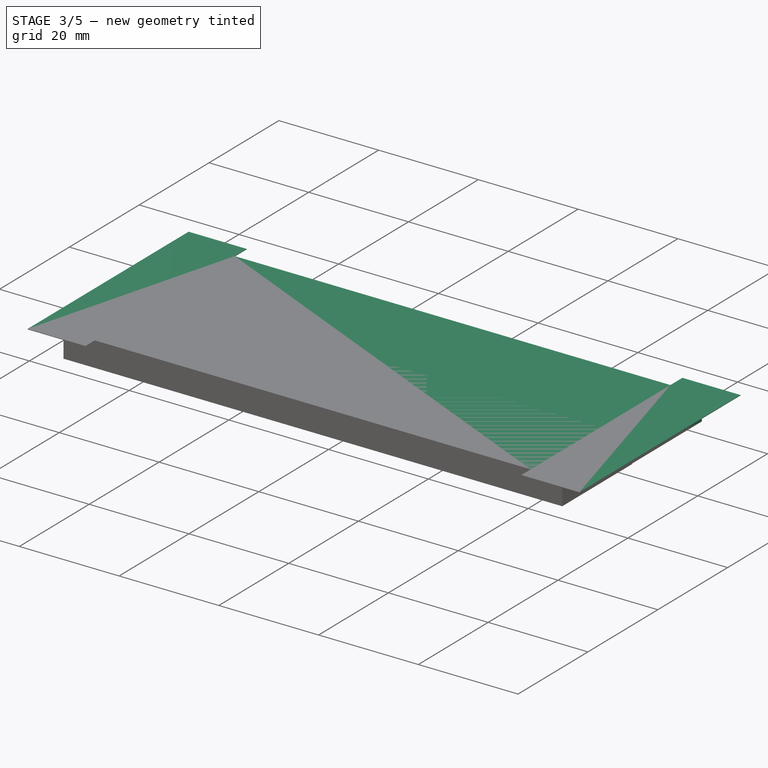
[diagram: stage 3 of 5 — iso view after this stage's code; geometry added in this stage tinted green]
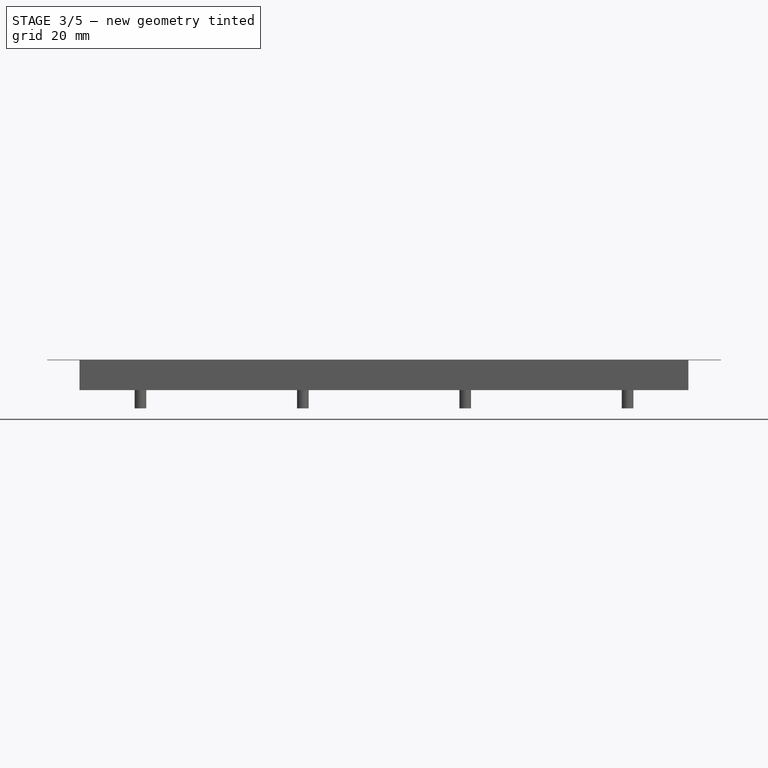
[diagram: stage 3 of 5 — front view after this stage's code; geometry added in this stage tinted green]
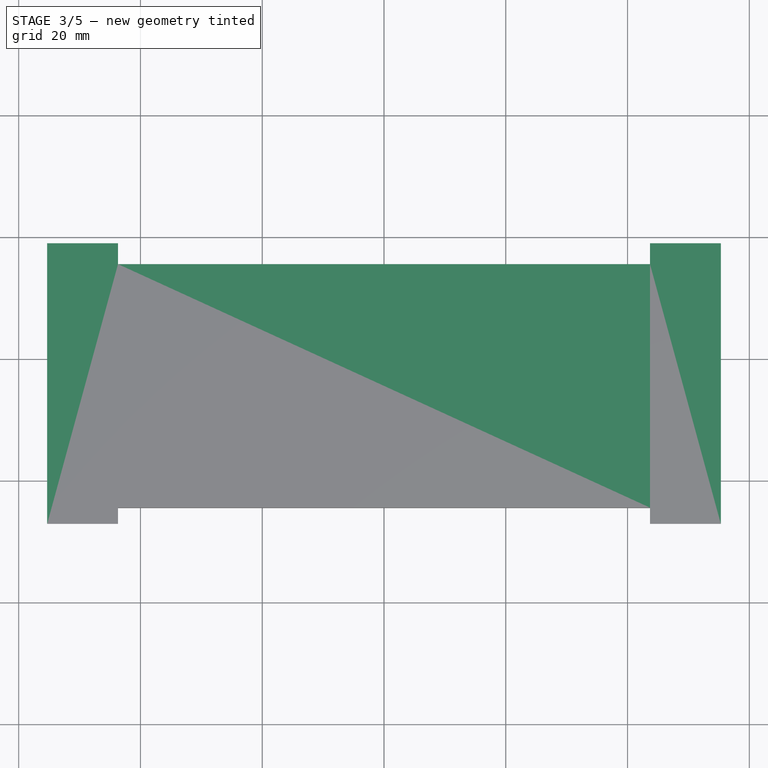
[diagram: stage 3 of 5 — top view after this stage's code; geometry added in this stage tinted green]
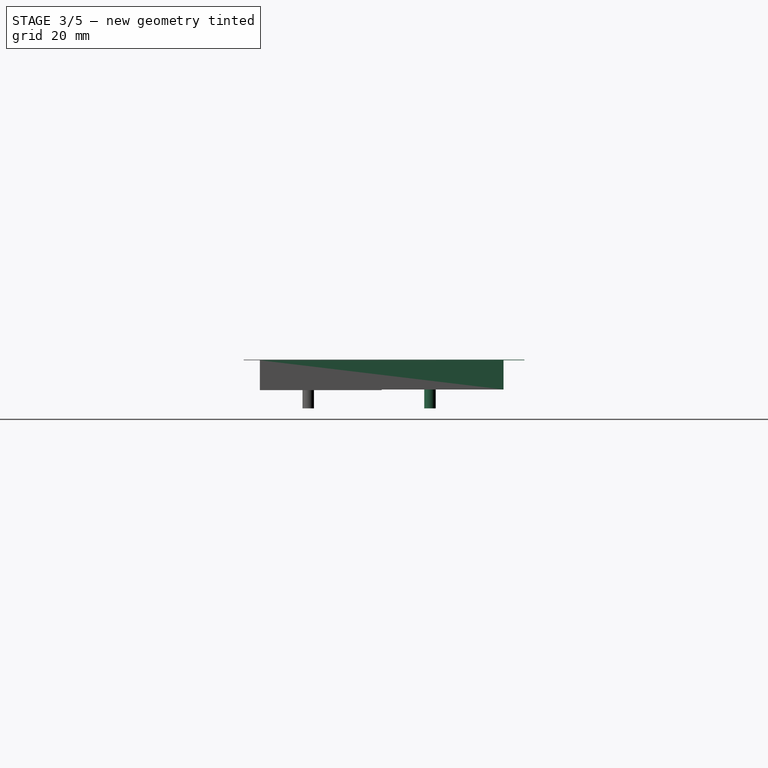
[diagram: stage 3 of 5 — right view after this stage's code; geometry added in this stage tinted green]
FEATURE [Sketcher::SketchObject] Sketch104
  ExternalGeometry = -> [Pad093]
  MapMode = 5
  Placement = pos=(0,0,0) rot=(1,0,0;3.14159rad)
  Support = -> [Pad093]
  sketch-geometry (8):
    g0: Circle CenterX=-40.005 CenterY=-3.42 CenterZ=0 NormalX=0 NormalY=0 NormalZ=1 AngleXU=0 Radius=0.95
    g1: Circle CenterX=-13.335 CenterY=-3.42 CenterZ=0 NormalX=0 NormalY=0 NormalZ=1 AngleXU=0 Radius=0.95
    g2: Circle CenterX=13.335 CenterY=-3.42 CenterZ=0 NormalX=0 NormalY=0 NormalZ=1 AngleXU=0 Radius=0.95
    g3: Circle CenterX=40.005 CenterY=-3.42 CenterZ=0 NormalX=0 NormalY=0 NormalZ=1 AngleXU=0 Radius=0.95
    g4: LineSegment StartX=-50 StartY=4.51524 StartZ=0 EndX=50 EndY=4.51524 EndZ=0
    g5: LineSegment StartX=50 StartY=4.51524 StartZ=0 EndX=50 EndY=-15.4848 EndZ=0
    g6: LineSegment StartX=50 StartY=-15.4848 StartZ=0 EndX=-50 EndY=-15.4848 EndZ=0
    g7: LineSegment StartX=-50 StartY=-15.4848 StartZ=0 EndX=-50 EndY=4.51524 EndZ=0
  constraints (18):
    c: Coincident(g0,g-3)
    c: Coincident(g1,g-4)
    c: Coincident(g2,g-5)
    c: Coincident(g3,g-6)
    c: Radius(g0) = 0.95
    c: Equal(g0,g1)
    c: Equal(g0,g2)
    c: Equal(g0,g3)
    c: Coincident(g4,g5)
    c: Coincident(g5,g6)
    c: Coincident(g6,g7)
    c: Coincident(g7,g4)
    c: Horizontal(g4)
    c: Horizontal(g6)
    c: Vertical(g5)
    c: Vertical(g7)
    c: Coincident(g4,g-7)
    c: Coincident(g5,g-8)
FEATURE [PartDesign::Pocket] Pocket010
  BaseFeature = -> Pad093
  Length = 0.1
  Length2 = 100
  Profile = -> Sketch104
  Refine = true
  Type = 0
FEATURE [Sketcher::SketchObject] Sketch105
  MapMode = 5
  Placement = pos=(0,0,0.1) rot=(1,0,0;3.14159rad)
  Support = -> [Pocket010]
  sketch-geometry (4):
    g0: ArcOfCircle CenterX=-43.5 CenterY=0 CenterZ=0 NormalX=0 NormalY=0 NormalZ=1 AngleXU=0 Radius=2 StartAngle=1.5708 EndAngle=4.71239
    g1: ArcOfCircle CenterX=43.5 CenterY=0 CenterZ=0 NormalX=0 NormalY=0 NormalZ=1 AngleXU=0 Radius=2 StartAngle=4.71239 EndAngle=7.85398
    g2: LineSegment StartX=-43.5 StartY=-2 StartZ=0 EndX=43.5 EndY=-2 EndZ=0
    g3: LineSegment StartX=-43.5 StartY=2 StartZ=0 EndX=43.5 EndY=2 EndZ=0
  constraints (9):
    c: Tangent(g0,g3) = 1.5708
    c: Tangent(g0,g2) = -1.5708
    c: Tangent(g2,g1) = -1.5708
    c: Tangent(g3,g1) = 1.5708
    c: Equal(g0,g1)
    c: PointOnObject(g0,g-1)
    c: Symmetric(g0,g1,g-1)
    c: DistanceX(g3,g3) = 87
    c: DistanceY(g0,g0) = 4
FEATURE [PartDesign::Pocket] Pocket011
  BaseFeature = -> Pocket010
  Length = 0.2
  Length2 = 100
  Profile = -> Sketch105
  Refine = true
  Type = 0
FEATURE [PartDesign::Body] Body091
  Group = -> [Sketch106,Pad094,Boolean001,Chamfer046,Sketch135,Pad120,Sketch136,Pad121,Sketch137,Pocket015,Sketch138,Pocket016]
  Origin = -> Origin163
  Placement = pos=(0,20,0) rot=(0,0,1;0rad)
  Tip = -> Pocket016
FEATURE [Sketcher::SketchObject] Sketch139
  MapMode = 5
  Support = -> [XY_Plane190]
  expr: Constraints[16] = 1.95 + 0.1
  expr: Constraints[17] = 1.25 + 0.1
  sketch-geometry (7):
    g0: LineSegment StartX=-1.025 StartY=-0.675 StartZ=0 EndX=1.025 EndY=-0.675 EndZ=0
    g1: LineSegment StartX=1.025 StartY=-0.675 StartZ=0 EndX=1.025 EndY=0.675 EndZ=0
    g2: LineSegment StartX=1.025 StartY=0.675 StartZ=0 EndX=-1.025 EndY=0.675 EndZ=0
    g3: LineSegment StartX=-1.025 StartY=0.675 StartZ=0 EndX=-1.025 EndY=-0.675 EndZ=0
    g4: LineSegment [constr] StartX=-1.025 StartY=0.675 StartZ=0 EndX=0 EndY=0 EndZ=0
    g5: LineSegment [constr] StartX=0 StartY=0 StartZ=0 EndX=1.025 EndY=0.675 EndZ=0
    g6: LineSegment [constr] StartX=0 StartY=0 StartZ=0 EndX=-1.025 EndY=-0.675 EndZ=0
  constraints (18):
    c: Coincident(g0,g1)
    c: Coincident(g1,g2)
    c: Coincident(g2,g3)
    c: Coincident(g3,g0)
    c: Horizontal(g0)
    c: Horizontal(g2)
    c: Vertical(g1)
    c: Vertical(g3)
    c: Coincident(g4,g2)
    c: Coincident(g4,g-1)
    c: Coincident(g5,g-1)
    c: Coincident(g5,g1)
    c: Coincident(g6,g-1)
    c: Coincident(g6,g0)
    c: Equal(g5,g4)
    c: Equal(g4,g6)
    c: DistanceX(g2,g2) = 2.05
    c: DistanceY(g3,g3) = 1.35
FEATURE [Sketcher::SketchObject] Sketch140
  MapMode = 5
  Support = -> [XY_Plane189]
  expr: Constraints[16] = 1.95 + 0.1
  expr: Constraints[17] = 1.25 + 0.1
  sketch-geometry (7):
    g0: LineSegment StartX=-1.025 StartY=-0.675 StartZ=0 EndX=1.025 EndY=-0.675 EndZ=0
    g1: LineSegment StartX=1.025 StartY=-0.675 StartZ=0 EndX=1.025 EndY=0.675 EndZ=0
    g2: LineSegment StartX=1.025 StartY=0.675 StartZ=0 EndX=-1.025 EndY=0.675 EndZ=0
    g3: LineSegment StartX=-1.025 StartY=0.675 StartZ=0 EndX=-1.025 EndY=-0.675 EndZ=0
    g4: LineSegment [constr] StartX=-1.025 StartY=0.675 StartZ=0 EndX=0 EndY=0 EndZ=0
    g5: LineSegment [constr] StartX=0 StartY=0 StartZ=0 EndX=1.025 EndY=0.675 EndZ=0
    g6: LineSegment [constr] StartX=0 StartY=0 StartZ=0 EndX=-1.025 EndY=-0.675 EndZ=0
  constraints (18):
    c: Coincident(g0,g1)
    c: Coincident(g1,g2)
    c: Coincident(g2,g3)
    c: Coincident(g3,g0)
    c: Horizontal(g0)
    c: Horizontal(g2)
    c: Vertical(g1)
    c: Vertical(g3)
    c: Coincident(g4,g2)
    c: Coincident(g4,g-1)
    c: Coincident(g5,g-1)
    c: Coincident(g5,g1)
    c: Coincident(g6,g-1)
    c: Coincident(g6,g0)
    c: Equal(g5,g4)
    c: Equal(g4,g6)
    c: DistanceX(g2,g2) = 2.05
    c: DistanceY(g3,g3) = 1.35
FEATURE [Sketcher::SketchObject] Sketch141
  MapMode = 5
  Support = -> [XY_Plane192]
  expr: Constraints[16] = 2 + 0.1
  expr: Constraints[17] = 1.25 + 0.1
  sketch-geometry (7):
    g0: LineSegment StartX=-1.05 StartY=-0.675 StartZ=0 EndX=1.05 EndY=-0.675 EndZ=0
    g1: LineSegment StartX=1.05 StartY=-0.675 StartZ=0 EndX=1.05 EndY=0.675 EndZ=0
    g2: LineSegment StartX=1.05 StartY=0.675 StartZ=0 EndX=-1.05 EndY=0.675 EndZ=0
    g3: LineSegment StartX=-1.05 StartY=0.675 StartZ=0 EndX=-1.05 EndY=-0.675 EndZ=0
    g4: LineSegment [constr] StartX=-1.05 StartY=0.675 StartZ=0 EndX=0 EndY=0 EndZ=0
    g5: LineSegment [constr] StartX=0 StartY=0 StartZ=0 EndX=1.05 EndY=0.675 EndZ=0
    g6: LineSegment [constr] StartX=0 StartY=0 StartZ=0 EndX=-1.05 EndY=-0.675 EndZ=0
  constraints (18):
    c: Coincident(g0,g1)
    c: Coincident(g1,g2)
    c: Coincident(g2,g3)
    c: Coincident(g3,g0)
    c: Horizontal(g0)
    c: Horizontal(g2)
    c: Vertical(g1)
    c: Vertical(g3)
    c: Coincident(g4,g2)
    c: Coincident(g4,g-1)
    c: Coincident(g5,g-1)
    c: Coincident(g5,g1)
    c: Coincident(g6,g-1)
    c: Coincident(g6,g0)
    c: Equal(g5,g4)
    c: Equal(g4,g6)
    c: DistanceX(g2,g2) = 2.1
    c: DistanceY(g3,g3) = 1.35
FEATURE [Sketcher::SketchObject] Sketch142
  MapMode = 5
  Support = -> [XY_Plane207]
  expr: Constraints[16] = 2 + 0.1
  expr: Constraints[17] = 1.25 + 0.1
  sketch-geometry (7):
    g0: LineSegment StartX=-1.05 StartY=-0.675 StartZ=0 EndX=1.05 EndY=-0.675 EndZ=0
    g1: LineSegment StartX=1.05 StartY=-0.675 StartZ=0 EndX=1.05 EndY=0.675 EndZ=0
    g2: LineSegment StartX=1.05 StartY=0.675 StartZ=0 EndX=-1.05 EndY=0.675 EndZ=0
    g3: LineSegment StartX=-1.05 StartY=0.675 StartZ=0 EndX=-1.05 EndY=-0.675 EndZ=0
    g4: LineSegment [constr] StartX=-1.05 StartY=0.675 StartZ=0 EndX=0 EndY=0 EndZ=0
    g5: LineSegment [constr] StartX=0 StartY=0 StartZ=0 EndX=1.05 EndY=0.675 EndZ=0
    g6: LineSegment [constr] StartX=0 StartY=0 StartZ=0 EndX=-1.05 EndY=-0.675 EndZ=0
  constraints (18):
    c: Coincident(g0,g1)
    c: Coincident(g1,g2)
    c: Coincident(g2,g3)
    c: Coincident(g3,g0)
    c: Horizontal(g0)
    c: Horizontal(g2)
    c: Vertical(g1)
    c: Vertical(g3)
    c: Coincident(g4,g2)
    c: Coincident(g4,g-1)
    c: Coincident(g5,g-1)
    c: Coincident(g5,g1)
    c: Coincident(g6,g-1)
    c: Coincident(g6,g0)
    c: Equal(g5,g4)
    c: Equal(g4,g6)
    c: DistanceX(g2,g2) = 2.1
    c: DistanceY(g3,g3) = 1.35
FEATURE [Sketcher::SketchObject] Sketch143
  MapMode = 5
  Support = -> [XY_Plane208]
  expr: Constraints[16] = 2 + 0.1
  expr: Constraints[17] = 1.25 + 0.1
  sketch-geometry (7):
    g0: LineSegment StartX=-1.05 StartY=-0.675 StartZ=0 EndX=1.05 EndY=-0.675 EndZ=0
    g1: LineSegment StartX=1.05 StartY=-0.675 StartZ=0 EndX=1.05 EndY=0.675 EndZ=0
    g2: LineSegment StartX=1.05 StartY=0.675 StartZ=0 EndX=-1.05 EndY=0.675 EndZ=0
    g3: LineSegment StartX=-1.05 StartY=0.675 StartZ=0 EndX=-1.05 EndY=-0.675 EndZ=0
    g4: LineSegment [constr] StartX=-1.05 StartY=0.675 StartZ=0 EndX=0 EndY=0 EndZ=0
    g5: LineSegment [constr] StartX=0 StartY=0 StartZ=0 EndX=1.05 EndY=0.675 EndZ=0
    g6: LineSegment [constr] StartX=0 StartY=0 StartZ=0 EndX=-1.05 EndY=-0.675 EndZ=0
  constraints (18):
    c: Coincident(g0,g1)
    c: Coincident(g1,g2)
    c: Coincident(g2,g3)
    c: Coincident(g3,g0)
    c: Horizontal(g0)
    c: Horizontal(g2)
    c: Vertical(g1)
    c: Vertical(g3)
    c: Coincident(g4,g2)
    c: Coincident(g4,g-1)
    c: Coincident(g5,g-1)
    c: Coincident(g5,g1)
    c: Coincident(g6,g-1)
    c: Coincident(g6,g0)
    c: Equal(g5,g4)
    c: Equal(g4,g6)
    c: DistanceX(g2,g2) = 2.1
    c: DistanceY(g3,g3) = 1.35
FEATURE [Sketcher::SketchObject] Sketch144
  MapMode = 5
  Support = -> [XY_Plane209]
  expr: Constraints[16] = 2 + 0.1
  expr: Constraints[17] = 1.25 + 0.1
  sketch-geometry (7):
    g0: LineSegment StartX=-1.05 StartY=-0.675 StartZ=0 EndX=1.05 EndY=-0.675 EndZ=0
    g1: LineSegment StartX=1.05 StartY=-0.675 StartZ=0 EndX=1.05 EndY=0.675 EndZ=0
    g2: LineSegment StartX=1.05 StartY=0.675 StartZ=0 EndX=-1.05 EndY=0.675 EndZ=0
    g3: LineSegment StartX=-1.05 StartY=0.675 StartZ=0 EndX=-1.05 EndY=-0.675 EndZ=0
    g4: LineSegment [constr] StartX=-1.05 StartY=0.675 StartZ=0 EndX=0 EndY=0 EndZ=0
    g5: LineSegment [constr] StartX=0 StartY=0 StartZ=0 EndX=1.05 EndY=0.675 EndZ=0
    g6: LineSegment [constr] StartX=0 StartY=0 StartZ=0 EndX=-1.05 EndY=-0.675 EndZ=0
  constraints (18):
    c: Coincident(g0,g1)
    c: Coincident(g1,g2)
    c: Coincident(g2,g3)
    c: Coincident(g3,g0)
    c: Horizontal(g0)
    c: Horizontal(g2)
    c: Vertical(g1)
    c: Vertical(g3)
    c: Coincident(g4,g2)
    c: Coincident(g4,g-1)
    c: Coincident(g5,g-1)
    c: Coincident(g5,g1)
    c: Coincident(g6,g-1)
    c: Coincident(g6,g0)
    c: Equal(g5,g4)
    c: Equal(g4,g6)
    c: DistanceX(g2,g2) = 2.1
    c: DistanceY(g3,g3) = 1.35
FEATURE [Sketcher::SketchObject] Sketch145
  MapMode = 5
  Support = -> [XY_Plane202]
  sketch-geometry (6):
    g0: LineSegment StartX=-50 StartY=15.4848 StartZ=0 EndX=50 EndY=15.4848 EndZ=0
    g1: LineSegment StartX=50 StartY=15.4848 StartZ=0 EndX=50 EndY=-4.51524 EndZ=0
    g2: LineSegment StartX=50 StartY=-4.51524 StartZ=0 EndX=-50 EndY=-4.51524 EndZ=0
    g3: LineSegment StartX=-50 StartY=-4.51524 StartZ=0 EndX=-50 EndY=15.4848 EndZ=0
    g4: LineSegment [constr] StartX=-50 StartY=15.4848 StartZ=0 EndX=0 EndY=1.8e-15 EndZ=0
    g5: LineSegment [constr] StartX=0 StartY=0 StartZ=0 EndX=50 EndY=15.4848 EndZ=0
  constraints (15):
    c: Coincident(g0,g1)
    c: Coincident(g1,g2)
    c: Coincident(g2,g3)
    c: Coincident(g3,g0)
    c: Horizontal(g0)
    c: Horizontal(g2)
    c: Vertical(g1)
    c: Vertical(g3)
    c: DistanceY(g3,g3) = 20
    c: Coincident(g4,g0)
    c: Coincident(g4,g-1)
    c: Coincident(g5,g-1)
    c: Coincident(g5,g0)
    c: Equal(g5,g4)
    c: DistanceX(g0,g0) = 100
FEATURE [PartDesign::Pad] Pad123
  Length = 5
  Length2 = 100
  Profile = -> Sketch145
  Refine = true
  Type = 0
FEATURE [Sketcher::SketchObject] Sketch146
  MapMode = 5
  Support = -> [XY_Plane199]
  sketch-geometry (7):
    g0: LineSegment StartX=-1.6 StartY=-1.5 StartZ=0 EndX=1.6 EndY=-1.5 EndZ=0
    g1: LineSegment StartX=1.6 StartY=-1.5 StartZ=0 EndX=1.6 EndY=1.5 EndZ=0
    g2: LineSegment StartX=1.6 StartY=1.5 StartZ=0 EndX=-1.6 EndY=1.5 EndZ=0
    g3: LineSegment StartX=-1.6 StartY=1.5 StartZ=0 EndX=-1.6 EndY=-1.5 EndZ=0
    g4: LineSegment [constr] StartX=-1.6 StartY=1.5 StartZ=0 EndX=0 EndY=0 EndZ=0
    g5: LineSegment [constr] StartX=0 StartY=0 StartZ=0 EndX=1.6 EndY=1.5 EndZ=0
    g6: LineSegment [constr] StartX=0 StartY=0 StartZ=0 EndX=-1.6 EndY=-1.5 EndZ=0
  constraints (18):
    c: Coincident(g0,g1)
    c: Coincident(g1,g2)
    c: Coincident(g2,g3)
    c: Coincident(g3,g0)
    c: Horizontal(g0)
    c: Horizontal(g2)
    c: Vertical(g1)
    c: Vertical(g3)
    c: Coincident(g4,g2)
    c: Coincident(g4,g-1)
    c: Coincident(g5,g-1)
    c: Coincident(g5,g1)
    c: Coincident(g6,g-1)
    c: Coincident(g6,g0)
    c: Equal(g5,g4)
    c: Equal(g4,g6)
    c: DistanceX(g2,g2) = 3.2
    c: DistanceY(g3,g3) = 3
FEATURE [PartDesign::Pad] Pad122
  Length = 1.4
  Length2 = 100
  Profile = -> Sketch146
  Refine = true
  Type = 0
FEATURE [Sketcher::SketchObject] Sketch147
  MapMode = 5
  Support = -> [XY_Plane197]
  sketch-geometry (7):
    g0: LineSegment StartX=-1.6 StartY=-1.5 StartZ=0 EndX=1.6 EndY=-1.5 EndZ=0
    g1: LineSegment StartX=1.6 StartY=-1.5 StartZ=0 EndX=1.6 EndY=1.5 EndZ=0
    g2: LineSegment StartX=1.6 StartY=1.5 StartZ=0 EndX=-1.6 EndY=1.5 EndZ=0
    g3: LineSegment StartX=-1.6 StartY=1.5 StartZ=0 EndX=-1.6 EndY=-1.5 EndZ=0
    g4: LineSegment [constr] StartX=-1.6 StartY=1.5 StartZ=0 EndX=0 EndY=0 EndZ=0
    g5: LineSegment [constr] StartX=0 StartY=0 StartZ=0 EndX=1.6 EndY=1.5 EndZ=0
    g6: LineSegment [constr] StartX=0 StartY=0 StartZ=0 EndX=-1.6 EndY=-1.5 EndZ=0
  constraints (18):
    c: Coincident(g0,g1)
    c: Coincident(g1,g2)
    c: Coincident(g2,g3)
    c: Coincident(g3,g0)
    c: Horizontal(g0)
    c: Horizontal(g2)
    c: Vertical(g1)
    c: Vertical(g3)
    c: Coincident(g4,g2)
    c: Coincident(g4,g-1)
    c: Coincident(g5,g-1)
    c: Coincident(g5,g1)
    c: Coincident(g6,g-1)
    c: Coincident(g6,g0)
    c: Equal(g5,g4)
    c: Equal(g4,g6)
    c: DistanceX(g2,g2) = 3.2
    c: DistanceY(g3,g3) = 3
FEATURE [PartDesign::Pad] Pad124
  Length = 1.4
  Length2 = 100
  Profile = -> Sketch147
  Refine = true
  Type = 0
FEATURE [Sketcher::SketchObject] Sketch148
  MapMode = 5
  Support = -> [XY_Plane196]
  sketch-geometry (7):
    g0: LineSegment StartX=-1.6 StartY=-1.5 StartZ=0 EndX=1.6 EndY=-1.5 EndZ=0
    g1: LineSegment StartX=1.6 StartY=-1.5 StartZ=0 EndX=1.6 EndY=1.5 EndZ=0
    g2: LineSegment StartX=1.6 StartY=1.5 StartZ=0 EndX=-1.6 EndY=1.5 EndZ=0
    g3: LineSegment StartX=-1.6 StartY=1.5 StartZ=0 EndX=-1.6 EndY=-1.5 EndZ=0
    g4: LineSegment [constr] StartX=-1.6 StartY=1.5 StartZ=0 EndX=0 EndY=0 EndZ=0
    g5: LineSegment [constr] StartX=0 StartY=0 StartZ=0 EndX=1.6 EndY=1.5 EndZ=0
    g6: LineSegment [constr] StartX=0 StartY=0 StartZ=0 EndX=-1.6 EndY=-1.5 EndZ=0
  constraints (18):
    c: Coincident(g0,g1)
    c: Coincident(g1,g2)
    c: Coincident(g2,g3)
    c: Coincident(g3,g0)
    c: Horizontal(g0)
    c: Horizontal(g2)
    c: Vertical(g1)
    c: Vertical(g3)
    c: Coincident(g4,g2)
    c: Coincident(g4,g-1)
    c: Coincident(g5,g-1)
    c: Coincident(g5,g1)
    c: Coincident(g6,g-1)
    c: Coincident(g6,g0)
    c: Equal(g5,g4)
    c: Equal(g4,g6)
    c: DistanceX(g2,g2) = 3.2
    c: DistanceY(g3,g3) = 3
FEATURE [PartDesign::Pad] Pad125
  Length = 1.4
  Length2 = 100
  Profile = -> Sketch148
  Refine = true
  Type = 0
FEATURE [Sketcher::SketchObject] Sketch149
  MapMode = 5
  Support = -> [XY_Plane198]
  sketch-geometry (7):
    g0: LineSegment StartX=-1.6 StartY=-1.5 StartZ=0 EndX=1.6 EndY=-1.5 EndZ=0
    g1: LineSegment StartX=1.6 StartY=-1.5 StartZ=0 EndX=1.6 EndY=1.5 EndZ=0
    g2: LineSegment StartX=1.6 StartY=1.5 StartZ=0 EndX=-1.6 EndY=1.5 EndZ=0
    g3: LineSegment StartX=-1.6 StartY=1.5 StartZ=0 EndX=-1.6 EndY=-1.5 EndZ=0
    g4: LineSegment [constr] StartX=-1.6 StartY=1.5 StartZ=0 EndX=0 EndY=0 EndZ=0
    g5: LineSegment [constr] StartX=0 StartY=0 StartZ=0 EndX=1.6 EndY=1.5 EndZ=0
    g6: LineSegment [constr] StartX=0 StartY=0 StartZ=0 EndX=-1.6 EndY=-1.5 EndZ=0
  constraints (18):
    c: Coincident(g0,g1)
    c: Coincident(g1,g2)
    c: Coincident(g2,g3)
    c: Coincident(g3,g0)
    c: Horizontal(g0)
    c: Horizontal(g2)
    c: Vertical(g1)
    c: Vertical(g3)
    c: Coincident(g4,g2)
    c: Coincident(g4,g-1)
    c: Coincident(g5,g-1)
    c: Coincident(g5,g1)
    c: Coincident(g6,g-1)
    c: Coincident(g6,g0)
    c: Equal(g5,g4)
    c: Equal(g4,g6)
    c: DistanceX(g2,g2) = 3.2
    c: DistanceY(g3,g3) = 3
FEATURE [PartDesign::Pad] Pad126
  Length = 1.4
  Length2 = 100
  Profile = -> Sketch149
  Refine = true
  Type = 0
FEATURE [Sketcher::SketchObject] Sketch150
  MapMode = 5
  Support = -> [XY_Plane204]
  sketch-geometry (7):
    g0: LineSegment StartX=-1.6 StartY=-1.5 StartZ=0 EndX=1.6 EndY=-1.5 EndZ=0
    g1: LineSegment StartX=1.6 StartY=-1.5 StartZ=0 EndX=1.6 EndY=1.5 EndZ=0
    g2: LineSegment StartX=1.6 StartY=1.5 StartZ=0 EndX=-1.6 EndY=1.5 EndZ=0
    g3: LineSegment StartX=-1.6 StartY=1.5 StartZ=0 EndX=-1.6 EndY=-1.5 EndZ=0
    g4: LineSegment [constr] StartX=-1.6 StartY=1.5 StartZ=0 EndX=0 EndY=0 EndZ=0
    g5: LineSegment [constr] StartX=0 StartY=0 StartZ=0 EndX=1.6 EndY=1.5 EndZ=0
    g6: LineSegment [constr] StartX=0 StartY=0 StartZ=0 EndX=-1.6 EndY=-1.5 EndZ=0
  constraints (18):
    c: Coincident(g0,g1)
    c: Coincident(g1,g2)
    c: Coincident(g2,g3)
    c: Coincident(g3,g0)
    c: Horizontal(g0)
    c: Horizontal(g2)
    c: Vertical(g1)
    c: Vertical(g3)
    c: Coincident(g4,g2)
    c: Coincident(g4,g-1)
    c: Coincident(g5,g-1)
    c: Coincident(g5,g1)
    c: Coincident(g6,g-1)
    c: Coincident(g6,g0)
    c: Equal(g5,g4)
    c: Equal(g4,g6)
    c: DistanceX(g2,g2) = 3.2
    c: DistanceY(g3,g3) = 3
FEATURE [Sketcher::SketchObject] Sketch151
  MapMode = 5
  Support = -> [XY_Plane200]
  sketch-geometry (7):
    g0: LineSegment StartX=-1.6 StartY=-1.5 StartZ=0 EndX=1.6 EndY=-1.5 EndZ=0
    g1: LineSegment StartX=1.6 StartY=-1.5 StartZ=0 EndX=1.6 EndY=1.5 EndZ=0
    g2: LineSegment StartX=1.6 StartY=1.5 StartZ=0 EndX=-1.6 EndY=1.5 EndZ=0
    g3: LineSegment StartX=-1.6 StartY=1.5 StartZ=0 EndX=-1.6 EndY=-1.5 EndZ=0
    g4: LineSegment [constr] StartX=-1.6 StartY=1.5 StartZ=0 EndX=0 EndY=0 EndZ=0
    g5: LineSegment [constr] StartX=0 StartY=0 StartZ=0 EndX=1.6 EndY=1.5 EndZ=0
    g6: LineSegment [constr] StartX=0 StartY=0 StartZ=0 EndX=-1.6 EndY=-1.5 EndZ=0
  constraints (18):
    c: Coincident(g0,g1)
    c: Coincident(g1,g2)
    c: Coincident(g2,g3)
    c: Coincident(g3,g0)
    c: Horizontal(g0)
    c: Horizontal(g2)
    c: Vertical(g1)
    c: Vertical(g3)
    c: Coincident(g4,g2)
    c: Coincident(g4,g-1)
    c: Coincident(g5,g-1)
    c: Coincident(g5,g1)
    c: Coincident(g6,g-1)
    c: Coincident(g6,g0)
    c: Equal(g5,g4)
    c: Equal(g4,g6)
    c: DistanceX(g2,g2) = 3.2
    c: DistanceY(g3,g3) = 3
FEATURE [PartDesign::Pad] Pad127
  Length = 1.4
  Length2 = 100
  Profile = -> Sketch151
  Refine = true
  Type = 0
FEATURE [Sketcher::SketchObject] Sketch152
  MapMode = 5
  Support = -> [XY_Plane201]
  sketch-geometry (7):
    g0: LineSegment StartX=-1.6 StartY=-1.5 StartZ=0 EndX=1.6 EndY=-1.5 EndZ=0
    g1: LineSegment StartX=1.6 StartY=-1.5 StartZ=0 EndX=1.6 EndY=1.5 EndZ=0
    g2: LineSegment StartX=1.6 StartY=1.5 StartZ=0 EndX=-1.6 EndY=1.5 EndZ=0
    g3: LineSegment StartX=-1.6 StartY=1.5 StartZ=0 EndX=-1.6 EndY=-1.5 EndZ=0
    g4: LineSegment [constr] StartX=-1.6 StartY=1.5 StartZ=0 EndX=0 EndY=0 EndZ=0
    g5: LineSegment [constr] StartX=0 StartY=0 StartZ=0 EndX=1.6 EndY=1.5 EndZ=0
    g6: LineSegment [constr] StartX=0 StartY=0 StartZ=0 EndX=-1.6 EndY=-1.5 EndZ=0
  constraints (18):
    c: Coincident(g0,g1)
    c: Coincident(g1,g2)
    c: Coincident(g2,g3)
    c: Coincident(g3,g0)
    c: Horizontal(g0)
    c: Horizontal(g2)
    c: Vertical(g1)
    c: Vertical(g3)
    c: Coincident(g4,g2)
    c: Coincident(g4,g-1)
    c: Coincident(g5,g-1)
    c: Coincident(g5,g1)
    c: Coincident(g6,g-1)
    c: Coincident(g6,g0)
    c: Equal(g5,g4)
    c: Equal(g4,g6)
    c: DistanceX(g2,g2) = 3.2
    c: DistanceY(g3,g3) = 3
FEATURE [PartDesign::Pad] Pad128
  Length = 1.4
  Length2 = 100
  Profile = -> Sketch152
  Refine = true
  Type = 0
FEATURE [Sketcher::SketchObject] Sketch153
  MapMode = 5
  Support = -> [XY_Plane203]
  sketch-geometry (7):
    g0: LineSegment StartX=-1.6 StartY=-1.5 StartZ=0 EndX=1.6 EndY=-1.5 EndZ=0
    g1: LineSegment StartX=1.6 StartY=-1.5 StartZ=0 EndX=1.6 EndY=1.5 EndZ=0
    g2: LineSegment StartX=1.6 StartY=1.5 StartZ=0 EndX=-1.6 EndY=1.5 EndZ=0
    g3: LineSegment StartX=-1.6 StartY=1.5 StartZ=0 EndX=-1.6 EndY=-1.5 EndZ=0
    g4: LineSegment [constr] StartX=-1.6 StartY=1.5 StartZ=0 EndX=0 EndY=0 EndZ=0
    g5: LineSegment [constr] StartX=0 StartY=0 StartZ=0 EndX=1.6 EndY=1.5 EndZ=0
    g6: LineSegment [constr] StartX=0 StartY=0 StartZ=0 EndX=-1.6 EndY=-1.5 EndZ=0
  constraints (18):
    c: Coincident(g0,g1)
    c: Coincident(g1,g2)
    c: Coincident(g2,g3)
    c: Coincident(g3,g0)
    c: Horizontal(g0)
    c: Horizontal(g2)
    c: Vertical(g1)
    c: Vertical(g3)
    c: Coincident(g4,g2)
    c: Coincident(g4,g-1)
    c: Coincident(g5,g-1)
    c: Coincident(g5,g1)
    c: Coincident(g6,g-1)
    c: Coincident(g6,g0)
    c: Equal(g5,g4)
    c: Equal(g4,g6)
    c: DistanceX(g2,g2) = 3.2
    c: DistanceY(g3,g3) = 3
FEATURE [Sketcher::SketchObject] Sketch154
  MapMode = 5
  Support = -> [XY_Plane205]
  sketch-geometry (7):
    g0: LineSegment StartX=-1.6 StartY=-1.5 StartZ=0 EndX=1.6 EndY=-1.5 EndZ=0
    g1: LineSegment StartX=1.6 StartY=-1.5 StartZ=0 EndX=1.6 EndY=1.5 EndZ=0
    g2: LineSegment StartX=1.6 StartY=1.5 StartZ=0 EndX=-1.6 EndY=1.5 EndZ=0
    g3: LineSegment StartX=-1.6 StartY=1.5 StartZ=0 EndX=-1.6 EndY=-1.5 EndZ=0
    g4: LineSegment [constr] StartX=-1.6 StartY=1.5 StartZ=0 EndX=0 EndY=0 EndZ=0
    g5: LineSegment [constr] StartX=0 StartY=0 StartZ=0 EndX=1.6 EndY=1.5 EndZ=0
    g6: LineSegment [constr] StartX=0 StartY=0 StartZ=0 EndX=-1.6 EndY=-1.5 EndZ=0
  constraints (18):
    c: Coincident(g0,g1)
    c: Coincident(g1,g2)
    c: Coincident(g2,g3)
    c: Coincident(g3,g0)
    c: Horizontal(g0)
    c: Horizontal(g2)
    c: Vertical(g1)
    c: Vertical(g3)
    c: Coincident(g4,g2)
    c: Coincident(g4,g-1)
    c: Coincident(g5,g-1)
    c: Coincident(g5,g1)
    c: Coincident(g6,g-1)
    c: Coincident(g6,g0)
    c: Equal(g5,g4)
    c: Equal(g4,g6)
    c: DistanceX(g2,g2) = 3.2
    c: DistanceY(g3,g3) = 3
FEATURE [Sketcher::SketchObject] Sketch156
  MapMode = 5
  Support = -> [XY_Plane206]
  sketch-geometry (7):
    g0: LineSegment StartX=-1.6 StartY=-1.5 StartZ=0 EndX=1.6 EndY=-1.5 EndZ=0
    g1: LineSegment StartX=1.6 StartY=-1.5 StartZ=0 EndX=1.6 EndY=1.5 EndZ=0
    g2: LineSegment StartX=1.6 StartY=1.5 StartZ=0 EndX=-1.6 EndY=1.5 EndZ=0
    g3: LineSegment StartX=-1.6 StartY=1.5 StartZ=0 EndX=-1.6 EndY=-1.5 EndZ=0
    g4: LineSegment [constr] StartX=-1.6 StartY=1.5 StartZ=0 EndX=0 EndY=0 EndZ=0
    g5: LineSegment [constr] StartX=0 StartY=0 StartZ=0 EndX=1.6 EndY=1.5 EndZ=0
    g6: LineSegment [constr] StartX=0 StartY=0 StartZ=0 EndX=-1.6 EndY=-1.5 EndZ=0
  constraints (18):
    c: Coincident(g0,g1)
    c: Coincident(g1,g2)
    c: Coincident(g2,g3)
    c: Coincident(g3,g0)
    c: Horizontal(g0)
    c: Horizontal(g2)
    c: Vertical(g1)
    c: Vertical(g3)
    c: Coincident(g4,g2)
    c: Coincident(g4,g-1)
    c: Coincident(g5,g-1)
    c: Coincident(g5,g1)
    c: Coincident(g6,g-1)
    c: Coincident(g6,g0)
    c: Equal(g5,g4)
    c: Equal(g4,g6)
    c: DistanceX(g2,g2) = 3.2
    c: DistanceY(g3,g3) = 3
FEATURE [Sketcher::SketchObject] Sketch158
  MapMode = 5
  Support = -> [XY_Plane195]
  expr: Constraints[16] = 2.1 + 0.1
  expr: Constraints[17] = 1.25 + 0.1
  sketch-geometry (7):
    g0: LineSegment StartX=-1.1 StartY=-0.675 StartZ=0 EndX=1.1 EndY=-0.675 EndZ=0
    g1: LineSegment StartX=1.1 StartY=-0.675 StartZ=0 EndX=1.1 EndY=0.675 EndZ=0
    g2: LineSegment StartX=1.1 StartY=0.675 StartZ=0 EndX=-1.1 EndY=0.675 EndZ=0
    g3: LineSegment StartX=-1.1 StartY=0.675 StartZ=0 EndX=-1.1 EndY=-0.675 EndZ=0
    g4: LineSegment [constr] StartX=-1.1 StartY=0.675 StartZ=0 EndX=0 EndY=-1e-16 EndZ=0
    g5: LineSegment [constr] StartX=0 StartY=0 StartZ=0 EndX=1.1 EndY=0.675 EndZ=0
    g6: LineSegment [constr] StartX=0 StartY=0 StartZ=0 EndX=-1.1 EndY=-0.675 EndZ=0
  constraints (18):
    c: Coincident(g0,g1)
    c: Coincident(g1,g2)
    c: Coincident(g2,g3)
    c: Coincident(g3,g0)
    c: Horizontal(g0)
    c: Horizontal(g2)
    c: Vertical(g1)
    c: Vertical(g3)
    c: Coincident(g4,g2)
    c: Coincident(g4,g-1)
    c: Coincident(g5,g-1)
    c: Coincident(g5,g1)
    c: Coincident(g6,g-1)
    c: Coincident(g6,g0)
    c: Equal(g5,g4)
    c: Equal(g4,g6)
    c: DistanceX(g2,g2) = 2.2
    c: DistanceY(g3,g3) = 1.35
FEATURE [Sketcher::SketchObject] Sketch159
  MapMode = 5
  Support = -> [XY_Plane194]
  expr: Constraints[16] = 2.1 + 0.1
  expr: Constraints[17] = 1.25 + 0.1
  sketch-geometry (7):
    g0: LineSegment StartX=-1.1 StartY=-0.675 StartZ=0 EndX=1.1 EndY=-0.675 EndZ=0
    g1: LineSegment StartX=1.1 StartY=-0.675 StartZ=0 EndX=1.1 EndY=0.675 EndZ=0
    g2: LineSegment StartX=1.1 StartY=0.675 StartZ=0 EndX=-1.1 EndY=0.675 EndZ=0
    g3: LineSegment StartX=-1.1 StartY=0.675 StartZ=0 EndX=-1.1 EndY=-0.675 EndZ=0
    g4: LineSegment [constr] StartX=-1.1 StartY=0.675 StartZ=0 EndX=0 EndY=-1e-16 EndZ=0
    g5: LineSegment [constr] StartX=0 StartY=0 StartZ=0 EndX=1.1 EndY=0.675 EndZ=0
    g6: LineSegment [constr] StartX=0 StartY=0 StartZ=0 EndX=-1.1 EndY=-0.675 EndZ=0
  constraints (18):
    c: Coincident(g0,g1)
    c: Coincident(g1,g2)
    c: Coincident(g2,g3)
    c: Coincident(g3,g0)
    c: Horizontal(g0)
    c: Horizontal(g2)
    c: Vertical(g1)
    c: Vertical(g3)
    c: Coincident(g4,g2)
    c: Coincident(g4,g-1)
    c: Coincident(g5,g-1)
    c: Coincident(g5,g1)
    c: Coincident(g6,g-1)
    c: Coincident(g6,g0)
    c: Equal(g5,g4)
    c: Equal(g4,g6)
    c: DistanceX(g2,g2) = 2.2
    c: DistanceY(g3,g3) = 1.35
FEATURE [Sketcher::SketchObject] Sketch160
  MapMode = 5
  Support = -> [XY_Plane193]
  sketch-geometry (7):
    g0: LineSegment StartX=-1.6 StartY=-1.5 StartZ=0 EndX=1.6 EndY=-1.5 EndZ=0
    g1: LineSegment StartX=1.6 StartY=-1.5 StartZ=0 EndX=1.6 EndY=1.5 EndZ=0
    g2: LineSegment StartX=1.6 StartY=1.5 StartZ=0 EndX=-1.6 EndY=1.5 EndZ=0
    g3: LineSegment StartX=-1.6 StartY=1.5 StartZ=0 EndX=-1.6 EndY=-1.5 EndZ=0
    g4: LineSegment [constr] StartX=-1.6 StartY=1.5 StartZ=0 EndX=0 EndY=0 EndZ=0
    g5: LineSegment [constr] StartX=0 StartY=0 StartZ=0 EndX=1.6 EndY=1.5 EndZ=0
    g6: LineSegment [constr] StartX=0 StartY=0 StartZ=0 EndX=-1.6 EndY=-1.5 EndZ=0
  constraints (18):
    c: Coincident(g0,g1)
    c: Coincident(g1,g2)
    c: Coincident(g2,g3)
    c: Coincident(g3,g0)
    c: Horizontal(g0)
    c: Horizontal(g2)
    c: Vertical(g1)
    c: Vertical(g3)
    c: Coincident(g4,g2)
    c: Coincident(g4,g-1)
    c: Coincident(g5,g-1)
    c: Coincident(g5,g1)
    c: Coincident(g6,g-1)
    c: Coincident(g6,g0)
    c: Equal(g5,g4)
    c: Equal(g4,g6)
    c: DistanceX(g2,g2) = 3.2
    c: DistanceY(g3,g3) = 3
FEATURE [Sketcher::SketchObject] Sketch162
  MapMode = 5
  Support = -> [XY_Plane191]
  expr: Constraints[16] = 2.1 + 0.1
  expr: Constraints[17] = 1.25 + 0.1
  sketch-geometry (7):
    g0: LineSegment StartX=-1.1 StartY=-0.675 StartZ=0 EndX=1.1 EndY=-0.675 EndZ=0
    g1: LineSegment StartX=1.1 StartY=-0.675 StartZ=0 EndX=1.1 EndY=0.675 EndZ=0
    g2: LineSegment StartX=1.1 StartY=0.675 StartZ=0 EndX=-1.1 EndY=0.675 EndZ=0
    g3: LineSegment StartX=-1.1 StartY=0.675 StartZ=0 EndX=-1.1 EndY=-0.675 EndZ=0
    g4: LineSegment [constr] StartX=-1.1 StartY=0.675 StartZ=0 EndX=0 EndY=-1e-16 EndZ=0
    g5: LineSegment [constr] StartX=0 StartY=0 StartZ=0 EndX=1.1 EndY=0.675 EndZ=0
    g6: LineSegment [constr] StartX=0 StartY=0 StartZ=0 EndX=-1.1 EndY=-0.675 EndZ=0
  constraints (18):
    c: Coincident(g0,g1)
    c: Coincident(g1,g2)
    c: Coincident(g2,g3)
    c: Coincident(g3,g0)
    c: Horizontal(g0)
    c: Horizontal(g2)
    c: Vertical(g1)
    c: Vertical(g3)
    c: Coincident(g4,g2)
    c: Coincident(g4,g-1)
    c: Coincident(g5,g-1)
    c: Coincident(g5,g1)
    c: Coincident(g6,g-1)
    c: Coincident(g6,g0)
    c: Equal(g5,g4)
    c: Equal(g4,g6)
    c: DistanceX(g2,g2) = 2.2
    c: DistanceY(g3,g3) = 1.35
FEATURE [PartDesign::Pad] Pad129
  Length = 0.6
  Length2 = 100
  Profile = -> Sketch141
  Refine = true
  Type = 0
  expr: Length = 0.5 + 0.1
FEATURE [PartDesign::Pad] Pad130
  Length = 0.6
  Length2 = 100
  Profile = -> Sketch142
  Refine = true
  Type = 0
  expr: Length = 0.5 + 0.1
FEATURE [PartDesign::Pad] Pad131
  Length = 0.6
  Length2 = 100
  Profile = -> Sketch143
  Refine = true
  Type = 0
  expr: Length = 0.5 + 0.1
FEATURE [PartDesign::Pad] Pad132
  Length = 0.6
  Length2 = 100
  Profile = -> Sketch144
  Refine = true
  Type = 0
  expr: Length = 0.5 + 0.1
FEATURE [PartDesign::Pad] Pad135
  Length = 1.4
  Length2 = 100
  Profile = -> Sketch153
  Refine = true
  Type = 0
FEATURE [PartDesign::Pad] Pad136
  Length = 1.4
  Length2 = 100
  Profile = -> Sketch150
  Refine = true
  Type = 0
FEATURE [PartDesign::Pad] Pad137
  Length = 1.2
  Length2 = 100
  Profile = -> Sketch154
  Refine = true
  Type = 0
FEATURE [PartDesign::Pad] Pad138
  Length = 1.2
  Length2 = 100
  Profile = -> Sketch156
  Refine = true
  Type = 0
FEATURE [PartDesign::Pad] Pad139
  Length = 1.35
  Length2 = 100
  Profile = -> Sketch158
  Refine = true
  Type = 0
  expr: Length = 1.25 + 0.1
FEATURE [PartDesign::Pad] Pad140
  Length = 1.35
  Length2 = 100
  Profile = -> Sketch159
  Refine = true
  Type = 0
  expr: Length = 1.25 + 0.1
FEATURE [PartDesign::Pad] Pad141
  Length = 1.4
  Length2 = 100
  Profile = -> Sketch160
  Refine = true
  Type = 0
FEATURE [PartDesign::Pad] Pad142
  Length = 1.35
  Length2 = 100
  Profile = -> Sketch162
  Refine = true
  Type = 0
  expr: Length = 1.25 + 0.1
FEATURE [PartDesign::Pad] Pad143
  Length = 1
  Length2 = 100
  Profile = -> Sketch139
  Refine = true
  Type = 0
  expr: Length = 0.9mm + 0.1mm
FEATURE [PartDesign::Pad] Pad144
  Length = 1
  Length2 = 100
  Profile = -> Sketch140
  Refine = true
  Type = 0
  expr: Length = 0.9mm + 0.1mm
FEATURE [PartDesign::Chamfer] Chamfer047
  Base = -> Pad138 [Edge12,Edge7]
  BaseFeature = -> Pad138
  Size = 0.5
FEATURE [Sketcher::SketchObject] Sketch157
  MapMode = 5
  Placement = pos=(0,0,1.2) rot=(0,0,1;0rad)
  Support = -> [Chamfer047]
  sketch-geometry (23):
    g0: LineSegment StartX=-2.77743 StartY=0.5085 StartZ=0 EndX=-0.926537 EndY=0.5085 EndZ=0
    g1: LineSegment StartX=-0.926537 StartY=0.5085 StartZ=0 EndX=-0.926537 EndY=-0.5085 EndZ=0
    g2: LineSegment StartX=-0.926537 StartY=-0.5085 StartZ=0 EndX=-2.77743 EndY=-0.5085 EndZ=0
    g3: LineSegment StartX=-2.77743 StartY=-0.5085 StartZ=0 EndX=-2.77743 EndY=0.5085 EndZ=0
    g4: LineSegment [constr] StartX=-2.77743 StartY=0.5085 StartZ=0 EndX=-1.85198 EndY=0 EndZ=0
    g5: LineSegment [constr] StartX=-0.926537 StartY=0.5085 StartZ=0 EndX=-1.85198 EndY=0 EndZ=0
    g6: LineSegment [constr] StartX=-2.77743 StartY=-0.5085 StartZ=0 EndX=-1.85198 EndY=0 EndZ=0
    g7: LineSegment StartX=0.901831 StartY=1.71105 StartZ=0 EndX=2.61133 EndY=1.71105 EndZ=0
    g8: LineSegment StartX=2.61133 StartY=1.71105 StartZ=0 EndX=2.61133 EndY=0.555831 EndZ=0
    g9: LineSegment StartX=2.61133 StartY=0.555831 StartZ=0 EndX=0.901831 EndY=0.555831 EndZ=0
    g10: LineSegment StartX=0.901831 StartY=0.555831 StartZ=0 EndX=0.901831 EndY=1.71105 EndZ=0
    g11: LineSegment StartX=0.901831 StartY=-1.71105 StartZ=0 EndX=2.61133 EndY=-1.71105 EndZ=0
    g12: LineSegment StartX=2.61133 StartY=-1.71105 StartZ=0 EndX=2.61133 EndY=-0.555831 EndZ=0
    g13: LineSegment StartX=2.61133 StartY=-0.555831 StartZ=0 EndX=0.901831 EndY=-0.555831 EndZ=0
    g14: LineSegment StartX=0.901831 StartY=-0.555831 StartZ=0 EndX=0.901831 EndY=-1.71105 EndZ=0
    g15: LineSegment [constr] StartX=0.901831 StartY=-0.555831 StartZ=0 EndX=1.75658 EndY=-1.13344 EndZ=0
    g16: LineSegment [constr] StartX=1.75658 StartY=-1.13344 StartZ=0 EndX=0.901831 EndY=-1.71105 EndZ=0
    g17: LineSegment [constr] StartX=1.75658 StartY=-1.13344 StartZ=0 EndX=2.61133 EndY=-0.555831 EndZ=0
    g18: LineSegment [constr] StartX=1.75658 StartY=-1.13344 StartZ=0 EndX=1.75658 EndY=0 EndZ=0
    g19: LineSegment [constr] StartX=1.75658 StartY=0 StartZ=0 EndX=1.75658 EndY=1.13344 EndZ=0
    g20: LineSegment [constr] StartX=2.61133 StartY=1.71105 StartZ=0 EndX=1.75658 EndY=1.13344 EndZ=0
    g21: LineSegment [constr] StartX=1.75658 StartY=1.13344 StartZ=0 EndX=0.901831 EndY=1.71105 EndZ=0
    g22: LineSegment [constr] StartX=0.901831 StartY=0.555831 StartZ=0 EndX=1.75658 EndY=1.13344 EndZ=0
  constraints (55):
    c: Coincident(g0,g1)
    c: Coincident(g1,g2)
    c: Coincident(g2,g3)
    c: Coincident(g3,g0)
    c: Horizontal(g0)
    c: Horizontal(g2)
    c: Vertical(g1)
    c: Vertical(g3)
    c: Coincident(g4,g0)
    c: PointOnObject(g4,g-1)
    c: Coincident(g5,g0)
    c: Coincident(g5,g4)
    c: Coincident(g6,g2)
    c: Coincident(g6,g4)
    c: Equal(g4,g6)
    c: Equal(g6,g5)
    c: Coincident(g7,g8)
    c: Coincident(g8,g9)
    c: Coincident(g9,g10)
    c: Coincident(g10,g7)
    c: Horizontal(g7)
    c: Horizontal(g9)
    c: Vertical(g8)
    c: Vertical(g10)
    c: Coincident(g11,g12)
    c: Coincident(g12,g13)
    c: Coincident(g13,g14)
    c: Coincident(g14,g11)
    c: Horizontal(g11)
    c: Horizontal(g13)
    c: Vertical(g12)
    c: Vertical(g14)
    c: Coincident(g15,g13)
    c: Coincident(g16,g15)
    c: Coincident(g16,g11)
    c: Coincident(g17,g15)
    c: Coincident(g17,g12)
    c: Coincident(g18,g15)
    c: PointOnObject(g18,g-1)
    c: Vertical(g18)
    c: Coincident(g19,g18)
    c: Coincident(g20,g7)
    c: Coincident(g20,g19)
    c: Coincident(g21,g19)
    c: Coincident(g21,g7)
    c: Coincident(g22,g9)
    c: Coincident(g22,g19)
    c: Vertical(g19)
    c: Equal(g22,g21)
    c: Equal(g21,g20)
    c: Equal(g20,g15)
    c: Equal(g15,g16)
    c: Equal(g16,g17)
    c: Equal(g13,g7)
    c: Equal(g18,g19)
FEATURE [PartDesign::Pocket] Pocket018
  BaseFeature = -> Chamfer047
  Length = 5
  Length2 = 100
  Profile = -> Sketch157
  Refine = true
  Type = 0
FEATURE [PartDesign::Chamfer] Chamfer048
  Base = -> Pad124 [Edge12,Edge7]
  BaseFeature = -> Pad124
  Size = 1
FEATURE [PartDesign::Chamfer] Chamfer049
  Base = -> Pad135 [Edge12,Edge7]
  BaseFeature = -> Pad135
  Size = 1
FEATURE [PartDesign::Chamfer] Chamfer050
  Base = -> Pad126 [Edge12,Edge7]
  BaseFeature = -> Pad126
  Size = 1
FEATURE [PartDesign::Chamfer] Chamfer051
  Base = -> Pad122 [Edge12,Edge7]
  BaseFeature = -> Pad122
  Size = 1
FEATURE [PartDesign::Chamfer] Chamfer052
  Base = -> Pad125 [Edge12,Edge7]
  BaseFeature = -> Pad125
  Size = 1
FEATURE [PartDesign::Chamfer] Chamfer053
  Base = -> Pad128 [Edge12,Edge7]
  BaseFeature = -> Pad128
  Size = 1
FEATURE [PartDesign::Chamfer] Chamfer054
  Base = -> Pad136 [Edge12,Edge7]
  BaseFeature = -> Pad136
  Size = 1
FEATURE [PartDesign::Chamfer] Chamfer055
  Base = -> Pad137 [Edge12,Edge7]
  BaseFeature = -> Pad137
  Size = 1
FEATURE [Sketcher::SketchObject] Sketch155
  MapMode = 5
  Placement = pos=(0,0,1.2) rot=(0,0,1;0rad)
  Support = -> [Chamfer055]
  sketch-geometry (23):
    g0: LineSegment StartX=-2.76097 StartY=0.5085 StartZ=0 EndX=-0.743008 EndY=0.5085 EndZ=0
    g1: LineSegment StartX=-0.743008 StartY=0.5085 StartZ=0 EndX=-0.743008 EndY=-0.5085 EndZ=0
    g2: LineSegment StartX=-0.743008 StartY=-0.5085 StartZ=0 EndX=-2.76097 EndY=-0.5085 EndZ=0
    g3: LineSegment StartX=-2.76097 StartY=-0.5085 StartZ=0 EndX=-2.76097 EndY=0.5085 EndZ=0
    g4: LineSegment [constr] StartX=-2.76097 StartY=0.5085 StartZ=0 EndX=-1.75199 EndY=0 EndZ=0
    g5: LineSegment [constr] StartX=-0.743008 StartY=0.5085 StartZ=0 EndX=-1.75199 EndY=0 EndZ=0
    g6: LineSegment [constr] StartX=-2.76097 StartY=-0.5085 StartZ=0 EndX=-1.75199 EndY=0 EndZ=0
    g7: LineSegment StartX=0.706831 StartY=1.72252 StartZ=0 EndX=2.53455 EndY=1.72252 EndZ=0
    g8: LineSegment StartX=2.53455 StartY=1.72252 StartZ=0 EndX=2.53455 EndY=0.567301 EndZ=0
    g9: LineSegment StartX=2.53455 StartY=0.567301 StartZ=0 EndX=0.706831 EndY=0.567301 EndZ=0
    g10: LineSegment StartX=0.706831 StartY=0.567301 StartZ=0 EndX=0.706831 EndY=1.72252 EndZ=0
    g11: LineSegment StartX=0.706831 StartY=-1.72252 StartZ=0 EndX=2.53455 EndY=-1.72252 EndZ=0
    g12: LineSegment StartX=2.53455 StartY=-1.72252 StartZ=0 EndX=2.53455 EndY=-0.567301 EndZ=0
    g13: LineSegment StartX=2.53455 StartY=-0.567301 StartZ=0 EndX=0.706831 EndY=-0.567301 EndZ=0
    g14: LineSegment StartX=0.706831 StartY=-0.567301 StartZ=0 EndX=0.706831 EndY=-1.72252 EndZ=0
    g15: LineSegment [constr] StartX=0.706831 StartY=-0.567301 StartZ=0 EndX=1.62069 EndY=-1.14491 EndZ=0
    g16: LineSegment [constr] StartX=1.62069 StartY=-1.14491 StartZ=0 EndX=0.706831 EndY=-1.72252 EndZ=0
    g17: LineSegment [constr] StartX=1.62069 StartY=-1.14491 StartZ=0 EndX=2.53455 EndY=-0.567301 EndZ=0
    g18: LineSegment [constr] StartX=1.62069 StartY=-1.14491 StartZ=0 EndX=1.62069 EndY=0 EndZ=0
    g19: LineSegment [constr] StartX=1.62069 StartY=0 StartZ=0 EndX=1.62069 EndY=1.14491 EndZ=0
    g20: LineSegment [constr] StartX=2.53455 StartY=1.72252 StartZ=0 EndX=1.62069 EndY=1.14491 EndZ=0
    g21: LineSegment [constr] StartX=1.62069 StartY=1.14491 StartZ=0 EndX=0.706831 EndY=1.72252 EndZ=0
    g22: LineSegment [constr] StartX=0.706831 StartY=0.567301 StartZ=0 EndX=1.62069 EndY=1.14491 EndZ=0
  constraints (55):
    c: Coincident(g0,g1)
    c: Coincident(g1,g2)
    c: Coincident(g2,g3)
    c: Coincident(g3,g0)
    c: Horizontal(g0)
    c: Horizontal(g2)
    c: Vertical(g1)
    c: Vertical(g3)
    c: Coincident(g4,g0)
    c: PointOnObject(g4,g-1)
    c: Coincident(g5,g0)
    c: Coincident(g5,g4)
    c: Coincident(g6,g2)
    c: Coincident(g6,g4)
    c: Equal(g4,g6)
    c: Equal(g6,g5)
    c: Coincident(g7,g8)
    c: Coincident(g8,g9)
    c: Coincident(g9,g10)
    c: Coincident(g10,g7)
    c: Horizontal(g7)
    c: Horizontal(g9)
    c: Vertical(g8)
    c: Vertical(g10)
    c: Coincident(g11,g12)
    c: Coincident(g12,g13)
    c: Coincident(g13,g14)
    c: Coincident(g14,g11)
    c: Horizontal(g11)
    c: Horizontal(g13)
    c: Vertical(g12)
    c: Vertical(g14)
    c: Coincident(g15,g13)
    c: Coincident(g16,g15)
    c: Coincident(g16,g11)
    c: Coincident(g17,g15)
    c: Coincident(g17,g12)
    c: Coincident(g18,g15)
    c: PointOnObject(g18,g-1)
    c: Vertical(g18)
    c: Coincident(g19,g18)
    c: Coincident(g20,g7)
    c: Coincident(g20,g19)
    c: Coincident(g21,g19)
    c: Coincident(g21,g7)
    c: Coincident(g22,g9)
    c: Coincident(g22,g19)
    c: Vertical(g19)
    c: Equal(g22,g21)
    c: Equal(g21,g20)
    c: Equal(g20,g15)
    c: Equal(g15,g16)
    c: Equal(g16,g17)
    c: Equal(g13,g7)
    c: Equal(g18,g19)
FEATURE [PartDesign::Pocket] Pocket017
  BaseFeature = -> Chamfer055
  Length = 5
  Length2 = 100
  Profile = -> Sketch155
  Refine = true
  Type = 0
FEATURE [PartDesign::Chamfer] Chamfer056
  Base = -> Pad127 [Edge12,Edge7]
  BaseFeature = -> Pad127
  Size = 1
FEATURE [PartDesign::Chamfer] Chamfer057
  Base = -> Pad141 [Edge12,Edge7]
  BaseFeature = -> Pad141
  Size = 1
FEATURE [Sketcher::SketchObject] Sketch161
  MapMode = 5
  Placement = pos=(0,0,1.4) rot=(0,0,1;0rad)
  Support = -> [Chamfer057]
  sketch-geometry (7):
    g0: LineSegment StartX=-2.76097 StartY=0.5085 StartZ=0 EndX=-0.743008 EndY=0.5085 EndZ=0
    g1: LineSegment StartX=-0.743008 StartY=0.5085 StartZ=0 EndX=-0.743008 EndY=-0.5085 EndZ=0
    g2: LineSegment StartX=-0.743008 StartY=-0.5085 StartZ=0 EndX=-2.76097 EndY=-0.5085 EndZ=0
    g3: LineSegment StartX=-2.76097 StartY=-0.5085 StartZ=0 EndX=-2.76097 EndY=0.5085 EndZ=0
    g4: LineSegment [constr] StartX=-2.76097 StartY=0.5085 StartZ=0 EndX=-1.75199 EndY=0 EndZ=0
    g5: LineSegment [constr] StartX=-0.743008 StartY=0.5085 StartZ=0 EndX=-1.75199 EndY=0 EndZ=0
    g6: LineSegment [constr] StartX=-2.76097 StartY=-0.5085 StartZ=0 EndX=-1.75199 EndY=0 EndZ=0
  constraints (16):
    c: Coincident(g0,g1)
    c: Coincident(g1,g2)
    c: Coincident(g2,g3)
    c: Coincident(g3,g0)
    c: Horizontal(g0)
    c: Horizontal(g2)
    c: Vertical(g1)
    c: Vertical(g3)
    c: Coincident(g4,g0)
    c: PointOnObject(g4,g-1)
    c: Coincident(g5,g0)
    c: Coincident(g5,g4)
    c: Coincident(g6,g2)
    c: Coincident(g6,g4)
    c: Equal(g4,g6)
    c: Equal(g6,g5)
FEATURE [PartDesign::Pocket] Pocket019
  BaseFeature = -> Chamfer057
  Length = 5
  Length2 = 100
  Profile = -> Sketch161
  Refine = true
  Type = 0
FEATURE [Sketcher::SketchObject] Sketch163
  MapMode = 5
  Support = -> [XY_Plane210]
  expr: Constraints[16] = 2 + 0.1
  expr: Constraints[17] = 1.25 + 0.1
  sketch-geometry (7):
    g0: LineSegment StartX=-1.05 StartY=-0.675 StartZ=0 EndX=1.05 EndY=-0.675 EndZ=0
    g1: LineSegment StartX=1.05 StartY=-0.675 StartZ=0 EndX=1.05 EndY=0.675 EndZ=0
    g2: LineSegment StartX=1.05 StartY=0.675 StartZ=0 EndX=-1.05 EndY=0.675 EndZ=0
    g3: LineSegment StartX=-1.05 StartY=0.675 StartZ=0 EndX=-1.05 EndY=-0.675 EndZ=0
    g4: LineSegment [constr] StartX=-1.05 StartY=0.675 StartZ=0 EndX=0 EndY=0 EndZ=0
    g5: LineSegment [constr] StartX=0 StartY=0 StartZ=0 EndX=1.05 EndY=0.675 EndZ=0
    g6: LineSegment [constr] StartX=0 StartY=0 StartZ=0 EndX=-1.05 EndY=-0.675 EndZ=0
  constraints (18):
    c: Coincident(g0,g1)
    c: Coincident(g1,g2)
    c: Coincident(g2,g3)
    c: Coincident(g3,g0)
    c: Horizontal(g0)
    c: Horizontal(g2)
    c: Vertical(g1)
    c: Vertical(g3)
    c: Coincident(g4,g2)
    c: Coincident(g4,g-1)
    c: Coincident(g5,g-1)
    c: Coincident(g5,g1)
    c: Coincident(g6,g-1)
    c: Coincident(g6,g0)
    c: Equal(g5,g4)
    c: Equal(g4,g6)
    c: DistanceX(g2,g2) = 2.1
    c: DistanceY(g3,g3) = 1.35
FEATURE [PartDesign::Pad] Pad133
  Length = 0.6
  Length2 = 100
  Profile = -> Sketch163
  Refine = true
  Type = 0
  expr: Length = 0.5 + 0.1
FEATURE [Sketcher::SketchObject] Sketch164
  MapMode = 5
  Support = -> [XY_Plane211]
  expr: Constraints[16] = 2 + 0.1
  expr: Constraints[17] = 1.25 + 0.1
  sketch-geometry (7):
    g0: LineSegment StartX=-1.05 StartY=-0.675 StartZ=0 EndX=1.05 EndY=-0.675 EndZ=0
    g1: LineSegment StartX=1.05 StartY=-0.675 StartZ=0 EndX=1.05 EndY=0.675 EndZ=0
    g2: LineSegment StartX=1.05 StartY=0.675 StartZ=0 EndX=-1.05 EndY=0.675 EndZ=0
    g3: LineSegment StartX=-1.05 StartY=0.675 StartZ=0 EndX=-1.05 EndY=-0.675 EndZ=0
    g4: LineSegment [constr] StartX=-1.05 StartY=0.675 StartZ=0 EndX=0 EndY=0 EndZ=0
    g5: LineSegment [constr] StartX=0 StartY=0 StartZ=0 EndX=1.05 EndY=0.675 EndZ=0
    g6: LineSegment [constr] StartX=0 StartY=0 StartZ=0 EndX=-1.05 EndY=-0.675 EndZ=0
  constraints (18):
    c: Coincident(g0,g1)
    c: Coincident(g1,g2)
    c: Coincident(g2,g3)
    c: Coincident(g3,g0)
    c: Horizontal(g0)
    c: Horizontal(g2)
    c: Vertical(g1)
    c: Vertical(g3)
    c: Coincident(g4,g2)
    c: Coincident(g4,g-1)
    c: Coincident(g5,g-1)
    c: Coincident(g5,g1)
    c: Coincident(g6,g-1)
    c: Coincident(g6,g0)
    c: Equal(g5,g4)
    c: Equal(g4,g6)
    c: DistanceX(g2,g2) = 2.1
    c: DistanceY(g3,g3) = 1.35
FEATURE [PartDesign::Pad] Pad134
  Length = 0.6
  Length2 = 100
  Profile = -> Sketch164
  Refine = true
  Type = 0
  expr: Length = 0.5 + 0.1
FEATURE [Sketcher::SketchObject] Sketch165
  MapMode = 5
  Support = -> [XY_Plane212]
  expr: Constraints[16] = 2 + 0.1
  expr: Constraints[17] = 1.25 + 0.1
  sketch-geometry (7):
    g0: LineSegment StartX=-1.05 StartY=-0.675 StartZ=0 EndX=1.05 EndY=-0.675 EndZ=0
    g1: LineSegment StartX=1.05 StartY=-0.675 StartZ=0 EndX=1.05 EndY=0.675 EndZ=0
    g2: LineSegment StartX=1.05 StartY=0.675 StartZ=0 EndX=-1.05 EndY=0.675 EndZ=0
    g3: LineSegment StartX=-1.05 StartY=0.675 StartZ=0 EndX=-1.05 EndY=-0.675 EndZ=0
    g4: LineSegment [constr] StartX=-1.05 StartY=0.675 StartZ=0 EndX=0 EndY=0 EndZ=0
    g5: LineSegment [constr] StartX=0 StartY=0 StartZ=0 EndX=1.05 EndY=0.675 EndZ=0
    g6: LineSegment [constr] StartX=0 StartY=0 StartZ=0 EndX=-1.05 EndY=-0.675 EndZ=0
  constraints (18):
    c: Coincident(g0,g1)
    c: Coincident(g1,g2)
    c: Coincident(g2,g3)
    c: Coincident(g3,g0)
    c: Horizontal(g0)
    c: Horizontal(g2)
    c: Vertical(g1)
    c: Vertical(g3)
    c: Coincident(g4,g2)
    c: Coincident(g4,g-1)
    c: Coincident(g5,g-1)
    c: Coincident(g5,g1)
    c: Coincident(g6,g-1)
    c: Coincident(g6,g0)
    c: Equal(g5,g4)
    c: Equal(g4,g6)
    c: DistanceX(g2,g2) = 2.1
    c: DistanceY(g3,g3) = 1.35
FEATURE [Sketcher::SketchObject] Sketch166
  MapMode = 5
  Support = -> [XY_Plane213]
  expr: Constraints[16] = 2 + 0.1
  expr: Constraints[17] = 1.25 + 0.1
  sketch-geometry (7):
    g0: LineSegment StartX=-1.05 StartY=-0.675 StartZ=0 EndX=1.05 EndY=-0.675 EndZ=0
    g1: LineSegment StartX=1.05 StartY=-0.675 StartZ=0 EndX=1.05 EndY=0.675 EndZ=0
    g2: LineSegment StartX=1.05 StartY=0.675 StartZ=0 EndX=-1.05 EndY=0.675 EndZ=0
    g3: LineSegment StartX=-1.05 StartY=0.675 StartZ=0 EndX=-1.05 EndY=-0.675 EndZ=0
    g4: LineSegment [constr] StartX=-1.05 StartY=0.675 StartZ=0 EndX=0 EndY=0 EndZ=0
    g5: LineSegment [constr] StartX=0 StartY=0 StartZ=0 EndX=1.05 EndY=0.675 EndZ=0
    g6: LineSegment [constr] StartX=0 StartY=0 StartZ=0 EndX=-1.05 EndY=-0.675 EndZ=0
  constraints (18):
    c: Coincident(g0,g1)
    c: Coincident(g1,g2)
    c: Coincident(g2,g3)
    c: Coincident(g3,g0)
    c: Horizontal(g0)
    c: Horizontal(g2)
    c: Vertical(g1)
    c: Vertical(g3)
    c: Coincident(g4,g2)
    c: Coincident(g4,g-1)
    c: Coincident(g5,g-1)
    c: Coincident(g5,g1)
    c: Coincident(g6,g-1)
    c: Coincident(g6,g0)
    c: Equal(g5,g4)
    c: Equal(g4,g6)
    c: DistanceX(g2,g2) = 2.1
    c: DistanceY(g3,g3) = 1.35
FEATURE [Sketcher::SketchObject] Sketch167
  MapMode = 5
  Support = -> [XY_Plane214]
  expr: Constraints[16] = 2 + 0.1
  expr: Constraints[17] = 1.25 + 0.1
  sketch-geometry (7):
    g0: LineSegment StartX=-1.05 StartY=-0.675 StartZ=0 EndX=1.05 EndY=-0.675 EndZ=0
    g1: LineSegment StartX=1.05 StartY=-0.675 StartZ=0 EndX=1.05 EndY=0.675 EndZ=0
    g2: LineSegment StartX=1.05 StartY=0.675 StartZ=0 EndX=-1.05 EndY=0.675 EndZ=0
    g3: LineSegment StartX=-1.05 StartY=0.675 StartZ=0 EndX=-1.05 EndY=-0.675 EndZ=0
    g4: LineSegment [constr] StartX=-1.05 StartY=0.675 StartZ=0 EndX=0 EndY=0 EndZ=0
    g5: LineSegment [constr] StartX=0 StartY=0 StartZ=0 EndX=1.05 EndY=0.675 EndZ=0
    g6: LineSegment [constr] StartX=0 StartY=0 StartZ=0 EndX=-1.05 EndY=-0.675 EndZ=0
  constraints (18):
    c: Coincident(g0,g1)
    c: Coincident(g1,g2)
    c: Coincident(g2,g3)
    c: Coincident(g3,g0)
    c: Horizontal(g0)
    c: Horizontal(g2)
    c: Vertical(g1)
    c: Vertical(g3)
    c: Coincident(g4,g2)
    c: Coincident(g4,g-1)
    c: Coincident(g5,g-1)
    c: Coincident(g5,g1)
    c: Coincident(g6,g-1)
    c: Coincident(g6,g0)
    c: Equal(g5,g4)
    c: Equal(g4,g6)
    c: DistanceX(g2,g2) = 2.1
    c: DistanceY(g3,g3) = 1.35
FEATURE [PartDesign::Body] Body118  label="Supersot038"
  Group = -> [Sketch146,Pad122,Chamfer051]
  Origin = -> Origin196
  Placement = pos=(-25.4,0,0) rot=(0,0,1;0rad)
  Tip = -> Chamfer051
FEATURE [PartDesign::Body] Body119  label="Supersot039"
  Group = -> [Sketch147,Pad124,Chamfer048]
  Origin = -> Origin193
  Placement = pos=(-21.59,0,0) rot=(0,0,1;0rad)
  Tip = -> Chamfer048
FEATURE [PartDesign::Body] Body120  label="Supersot040"
  Group = -> [Sketch148,Pad125,Chamfer052]
  Origin = -> Origin201
  Placement = pos=(-33.02,0,0) rot=(0,0,1;0rad)
  Tip = -> Chamfer052
FEATURE [PartDesign::Body] Body121  label="Supersot041"
  Group = -> [Sketch149,Pad126,Chamfer050]
  Origin = -> Origin200
  Placement = pos=(-36.83,0,0) rot=(0,0,1;0rad)
  Tip = -> Chamfer050
FEATURE [PartDesign::Body] Body122  label="Supersot042"
  Group = -> [Sketch151,Pad127,Chamfer056]
  Origin = -> Origin199
  Placement = pos=(25.4,0,0) rot=(0,0,1;0rad)
  Tip = -> Chamfer056
FEATURE [PartDesign::Body] Body123  label="Supersot043"
  Group = -> [Sketch152,Pad128,Chamfer053]
  Origin = -> Origin198
  Placement = pos=(21.59,0,0) rot=(0,0,1;0rad)
  Tip = -> Chamfer053
FEATURE [PartDesign::Body] Body124  label="Supersot044"
  Group = -> [Sketch153,Pad135,Chamfer049]
  Origin = -> Origin197
  Placement = pos=(33.02,0,0) rot=(0,0,1;0rad)
  Tip = -> Chamfer049
FEATURE [PartDesign::Body] Body125  label="Supersot045"
  Group = -> [Sketch150,Pad136,Chamfer054]
  Origin = -> Origin194
  Placement = pos=(36.83,0,0) rot=(0,0,1;0rad)
  Tip = -> Chamfer054
FEATURE [PartDesign::Body] Body126  label="Sot026"
  Group = -> [Sketch154,Pad137,Chamfer055,Sketch155,Pocket017]
  Origin = -> Origin189
  Placement = pos=(-10.3251,0,0) rot=(0,0,1;0rad)
  Tip = -> Pocket017
FEATURE [PartDesign::Body] Body127  label="Sot23-big004"
  Group = -> [Sketch156,Pad138,Chamfer047,Sketch157,Pocket018]
  Origin = -> Origin191
  Placement = pos=(-16.51,0,0) rot=(0,0,1;3.14159rad)
  Tip = -> Pocket018
FEATURE [PartDesign::Body] Body128  label="Capacitor 1u015"
  Group = -> [Sketch158,Pad139]
  Origin = -> Origin192
  Placement = pos=(-41.91,0,0) rot=(0,0,1;1.5708rad)
  Tip = -> Pad139
FEATURE [PartDesign::Body] Body129  label="Capacitor 1u016"
  Group = -> [Sketch159,Pad140]
  Origin = -> Origin190
  Placement = pos=(41.91,0,0) rot=(0,0,1;1.5708rad)
  Tip = -> Pad140
FEATURE [PartDesign::Body] Body130  label="Sot23-011"
  Group = -> [Sketch160,Pad141,Chamfer057,Sketch161,Pocket019]
  Origin = -> Origin202
  Placement = pos=(6.99,0,0) rot=(0,0,1;3.14159rad)
  Tip = -> Pocket019
FEATURE [PartDesign::Body] Body131  label="Capacitor 1u017"
  Group = -> [Sketch162,Pad142]
  Origin = -> Origin213
  Placement = pos=(-1.91,0,0) rot=(0,0,1;1.5708rad)
  Tip = -> Pad142
FEATURE [PartDesign::Body] Body132  label="Capacitor 100n010"
  Group = -> [Sketch139,Pad143]
  Origin = -> Origin212
  Placement = pos=(-7.62,0,0) rot=(0,0,1;1.5708rad)
  Tip = -> Pad143
FEATURE [PartDesign::Pad] Pad145
  Length = 0.6
  Length2 = 100
  Profile = -> Sketch165
  Refine = true
  Type = 0
  expr: Length = 0.5 + 0.1
FEATURE [PartDesign::Pad] Pad146
  Length = 0.6
  Length2 = 100
  Profile = -> Sketch166
  Refine = true
  Type = 0
  expr: Length = 0.5 + 0.1
FEATURE [PartDesign::Pad] Pad147
  Length = 0.6
  Length2 = 100
  Profile = -> Sketch167
  Refine = true
  Type = 0
  expr: Length = 0.5 + 0.1
FEATURE [PartDesign::Body] Body133  label="Capacitor 100n011"
  Group = -> [Sketch140,Pad144]
  Origin = -> Origin209
  Placement = pos=(3.81,0,0) rot=(0,0,1;1.5708rad)
  Tip = -> Pad144
FEATURE [PartDesign::Body] Body134  label="Resistor 10k045"
  Group = -> [Sketch141,Pad129]
  Origin = -> Origin210
  Placement = pos=(-28.26,0,0) rot=(0,0,1;1.5708rad)
  Tip = -> Pad129
FEATURE [PartDesign::Body] Body135  label="Resistor 10k046"
  Group = -> [Sketch142,Pad130]
  Origin = -> Origin211
  Placement = pos=(-30.16,0,0) rot=(0,0,1;1.5708rad)
  Tip = -> Pad130
FEATURE [PartDesign::Body] Body136  label="Resistor 10k047"
  Group = -> [Sketch143,Pad131]
  Origin = -> Origin206
  Placement = pos=(30.16,0,0) rot=(0,0,1;1.5708rad)
  Tip = -> Pad131
FEATURE [PartDesign::Body] Body137  label="Resistor 10k048"
  Group = -> [Sketch144,Pad132]
  Origin = -> Origin205
  Placement = pos=(28.26,0,0) rot=(0,0,1;1.5708rad)
  Tip = -> Pad132
FEATURE [PartDesign::Body] Body138  label="Resistor 10k049"
  Group = -> [Sketch163,Pad133]
  Origin = -> Origin204
  Placement = pos=(0,0,0) rot=(0,0,1;1.5708rad)
  Tip = -> Pad133
FEATURE [PartDesign::Body] Body139  label="Resistor 10k050"
  Group = -> [Sketch164,Pad134]
  Origin = -> Origin207
  Placement = pos=(1.91,0,0) rot=(0,0,1;1.5708rad)
  Tip = -> Pad134
FEATURE [PartDesign::Body] Body140  label="Resistor 10k051"
  Group = -> [Sketch165,Pad145]
  Origin = -> Origin208
  Placement = pos=(-3.81,0,0) rot=(0,0,1;1.5708rad)
  Tip = -> Pad145
FEATURE [PartDesign::Body] Body141  label="Resistor 10k052"
  Group = -> [Sketch166,Pad146]
  Origin = -> Origin203
  Placement = pos=(-5.71,0,0) rot=(0,0,1;1.5708rad)
  Tip = -> Pad146
FEATURE [PartDesign::Body] Body142  label="Resistor 10k053"
  Group = -> [Sketch167,Pad147]
  Origin = -> Origin214
  Placement = pos=(10.16,0,0) rot=(0,0,1;1.5708rad)
  Tip = -> Pad147
FEATURE [PartDesign::Boolean] Boolean002
  BaseFeature = -> Pad123
  Group = -> [Body118,Body119,Body120,Body121,Body122,Body123,Body124,Body125,Body126,Body127,Body128,Body129,Body130,Body131,Body132,Body133,Body134,Body135,Body136,Body137,Body138,Body139,Body140,Body141,Body142]
  Refine = true
  Type = 1
FEATURE [PartDesign::Chamfer] Chamfer058
  Base = -> Boolean002 [Edge24,Edge27,Edge43,Edge40,Edge35,Edge32,Edge36,Edge39,Edge31,Edge28,Edge48,Edge51,Edge47,Edge44,Edge70,Edge68,Edge95,Edge92,Edge88,Edge91,Edge119,Edge116,Edge127,Edge124,Edge83,Edge80,Edge76,Edge79]
  BaseFeature = -> Boolean002
  Size = 0.35
FEATURE [Sketcher::SketchObject] Sketch168
  MapMode = 5
  Placement = pos=(0,0,0) rot=(1,0,0;3.14159rad)
  Support = -> [Chamfer058]
  sketch-geometry (10):
    g0: Circle CenterX=-40.005 CenterY=-3.42 CenterZ=0 NormalX=0 NormalY=0 NormalZ=1 AngleXU=0 Radius=0.95
    g1: Circle CenterX=-13.335 CenterY=-3.42 CenterZ=0 NormalX=0 NormalY=0 NormalZ=1 AngleXU=0 Radius=0.95
    g2: Circle CenterX=13.335 CenterY=-3.42 CenterZ=0 NormalX=0 NormalY=0 NormalZ=1 AngleXU=0 Radius=0.95
    g3: Circle CenterX=40.005 CenterY=-3.42 CenterZ=0 NormalX=0 NormalY=0 NormalZ=1 AngleXU=0 Radius=0.95
    g4: LineSegment [constr] StartX=-40.005 StartY=-3.42 StartZ=0 EndX=-26.67 EndY=-3.42 EndZ=0
    g5: LineSegment [constr] StartX=-26.67 StartY=-3.42 StartZ=0 EndX=-13.335 EndY=-3.42 EndZ=0
    g6: LineSegment [constr] StartX=-13.335 StartY=-3.42 StartZ=0 EndX=0 EndY=-3.42 EndZ=0
    g7: LineSegment [constr] StartX=0 StartY=-3.42 StartZ=0 EndX=13.335 EndY=-3.42 EndZ=0
    g8: LineSegment [constr] StartX=13.335 StartY=-3.42 StartZ=0 EndX=26.67 EndY=-3.42 EndZ=0
    g9: LineSegment [constr] StartX=26.67 StartY=-3.42 StartZ=0 EndX=40.005 EndY=-3.42 EndZ=0
  constraints (27):
    c: Coincident(g4,g0)
    c: Coincident(g5,g4)
    c: Coincident(g5,g1)
    c: Coincident(g6,g1)
    c: PointOnObject(g6,g-2)
    c: Coincident(g7,g6)
    c: Coincident(g7,g2)
    c: Coincident(g8,g2)
    c: Coincident(g9,g8)
    c: Coincident(g9,g3)
    c: Equal(g4,g5)
    c: Equal(g5,g6)
    c: Equal(g6,g7)
    c: Equal(g7,g8)
    c: Equal(g8,g9)
    c: Horizontal(g4)
    c: Horizontal(g5)
    c: Horizontal(g6)
    c: Horizontal(g7)
    c: Horizontal(g8)
    c: Horizontal(g9)
    c: DistanceX(g0,g1) = 26.67
    c: Radius(g0) = 0.95
    c: Equal(g0,g1)
    c: Equal(g0,g2)
    c: Equal(g0,g3)
    c: DistanceY(g6,g-1) = 3.42
FEATURE [PartDesign::Pad] Pad148
  BaseFeature = -> Chamfer058
  Length = 3
  Length2 = 100
  Profile = -> Sketch168
  Refine = true
  Type = 0
FEATURE [PartDesign::Body] Body143
  Group = -> [Sketch178,Pad151,Boolean003,Chamfer070,Sketch201,Pad176,Sketch202,Pad177,Sketch203,Pocket025,Sketch204,Pocket026]
  Origin = -> Origin221
  Placement = pos=(0,60,0) rot=(0,0,1;0rad)
  Tip = -> Pocket026
FEATURE [PartDesign::Boolean] Boolean004
  BaseFeature = -> Pocket011
  Group = -> [Body091]
  Refine = true
  Type = 0
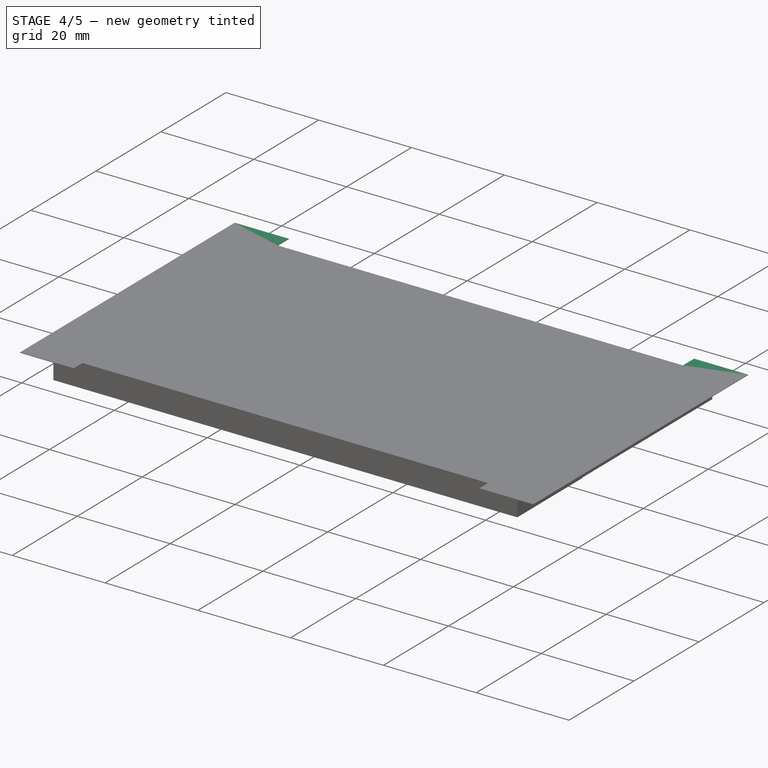
[diagram: stage 4 of 5 — iso view after this stage's code; geometry added in this stage tinted green]
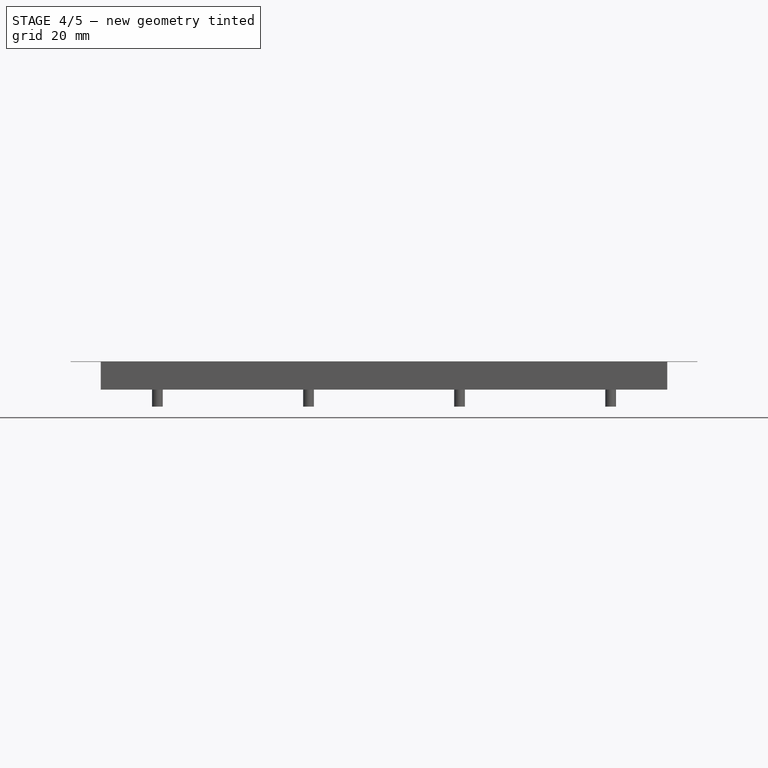
[diagram: stage 4 of 5 — front view after this stage's code; geometry added in this stage tinted green]
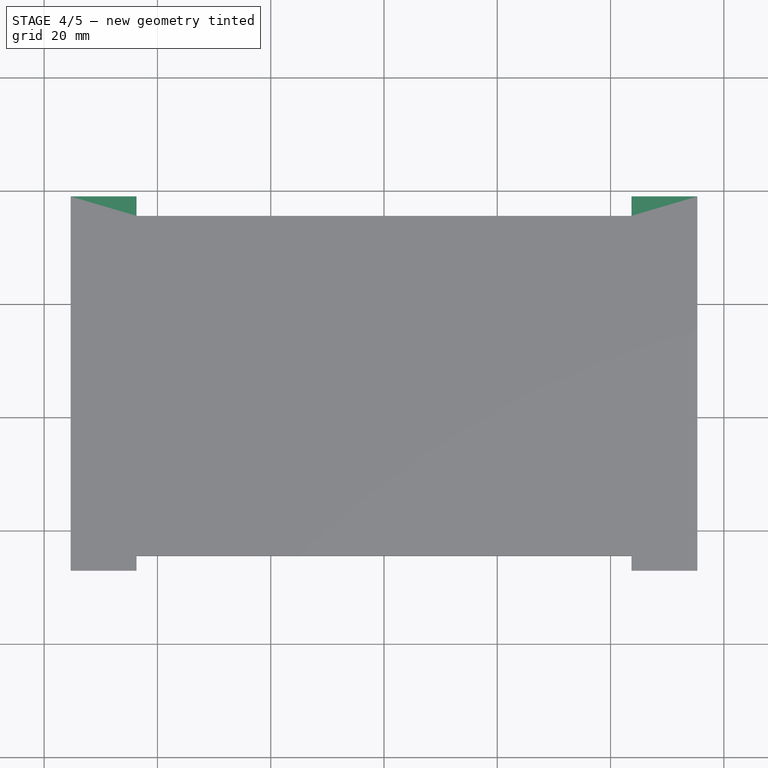
[diagram: stage 4 of 5 — top view after this stage's code; geometry added in this stage tinted green]
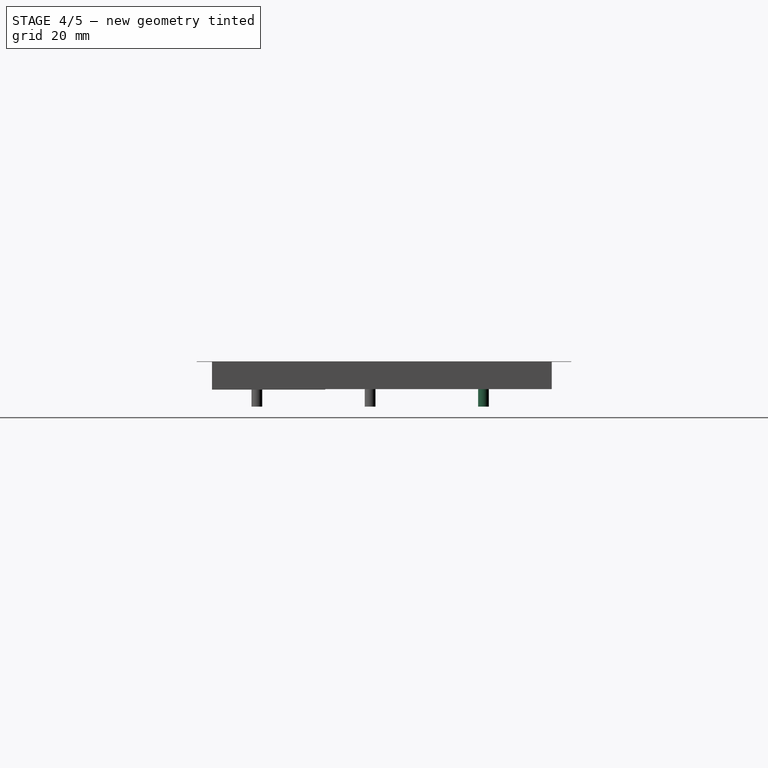
[diagram: stage 4 of 5 — right view after this stage's code; geometry added in this stage tinted green]
FEATURE [Sketcher::SketchObject] Sketch169
  MapMode = 5
  Placement = pos=(0,0,5) rot=(0,0,1;0rad)
  Support = -> [Pad148]
  sketch-geometry (11):
    g0: LineSegment StartX=43.6849 StartY=18.9147 StartZ=0 EndX=55.3195 EndY=18.9147 EndZ=0
    g1: LineSegment StartX=55.3195 StartY=18.9147 StartZ=0 EndX=55.3195 EndY=-7.19166 EndZ=0
    g2: LineSegment StartX=55.3195 StartY=-7.19166 StartZ=0 EndX=43.6849 EndY=-7.19166 EndZ=0
    g3: LineSegment StartX=43.6849 StartY=-7.19166 StartZ=0 EndX=43.6849 EndY=18.9147 EndZ=0
    g4: LineSegment StartX=-55.3195 StartY=18.9147 StartZ=0 EndX=-43.6849 EndY=18.9147 EndZ=0
    g5: LineSegment StartX=-43.6849 StartY=18.9147 StartZ=0 EndX=-43.6849 EndY=-7.19166 EndZ=0
    g6: LineSegment StartX=-43.6849 StartY=-7.19166 StartZ=0 EndX=-55.3195 EndY=-7.19166 EndZ=0
    g7: LineSegment StartX=-55.3195 StartY=-7.19166 StartZ=0 EndX=-55.3195 EndY=18.9147 EndZ=0
    g8: LineSegment [constr] StartX=-43.6849 StartY=-7.19166 StartZ=0 EndX=0 EndY=9e-16 EndZ=0
    g9: LineSegment [constr] StartX=-43.6849 StartY=18.9147 StartZ=0 EndX=43.6849 EndY=18.9147 EndZ=0
    g10: LineSegment [constr] StartX=0 StartY=0 StartZ=0 EndX=43.6849 EndY=-7.19166 EndZ=0
  constraints (26):
    c: Coincident(g0,g1)
    c: Coincident(g1,g2)
    c: Coincident(g2,g3)
    c: Coincident(g3,g0)
    c: Horizontal(g0)
    c: Horizontal(g2)
    c: Vertical(g1)
    c: Vertical(g3)
    c: Coincident(g4,g5)
    c: Coincident(g5,g6)
    c: Coincident(g6,g7)
    c: Coincident(g7,g4)
    c: Horizontal(g4)
    c: Horizontal(g6)
    c: Vertical(g5)
    c: Vertical(g7)
    c: Coincident(g8,g5)
    c: Coincident(g8,g-1)
    c: Coincident(g9,g4)
    c: Coincident(g9,g0)
    c: Horizontal(g9)
    c: Coincident(g10,g-1)
    c: Coincident(g10,g2)
    c: Equal(g3,g5)
    c: Equal(g6,g2)
    c: Equal(g10,g8)
FEATURE [PartDesign::Pad] Pad149
  BaseFeature = -> Pad148
  Length = 0.1
  Length2 = 100
  Profile = -> Sketch169
  Refine = true
  Reversed = true
  Type = 0
FEATURE [Sketcher::SketchObject] Sketch170
  ExternalGeometry = -> [Pad149]
  MapMode = 5
  Placement = pos=(0,0,0) rot=(1,0,0;3.14159rad)
  Support = -> [Pad149]
  sketch-geometry (8):
    g0: Circle CenterX=-40.005 CenterY=-3.42 CenterZ=0 NormalX=0 NormalY=0 NormalZ=1 AngleXU=0 Radius=0.95
    g1: Circle CenterX=-13.335 CenterY=-3.42 CenterZ=0 NormalX=0 NormalY=0 NormalZ=1 AngleXU=0 Radius=0.95
    g2: Circle CenterX=13.335 CenterY=-3.42 CenterZ=0 NormalX=0 NormalY=0 NormalZ=1 AngleXU=0 Radius=0.95
    g3: Circle CenterX=40.005 CenterY=-3.42 CenterZ=0 NormalX=0 NormalY=0 NormalZ=1 AngleXU=0 Radius=0.95
    g4: LineSegment StartX=-50 StartY=4.51524 StartZ=0 EndX=50 EndY=4.51524 EndZ=0
    g5: LineSegment StartX=50 StartY=4.51524 StartZ=0 EndX=50 EndY=-15.4848 EndZ=0
    g6: LineSegment StartX=50 StartY=-15.4848 StartZ=0 EndX=-50 EndY=-15.4848 EndZ=0
    g7: LineSegment StartX=-50 StartY=-15.4848 StartZ=0 EndX=-50 EndY=4.51524 EndZ=0
  constraints (18):
    c: Coincident(g0,g-3)
    c: Coincident(g1,g-4)
    c: Coincident(g2,g-5)
    c: Coincident(g3,g-6)
    c: Radius(g0) = 0.95
    c: Equal(g0,g1)
    c: Equal(g0,g2)
    c: Equal(g0,g3)
    c: Coincident(g4,g5)
    c: Coincident(g5,g6)
    c: Coincident(g6,g7)
    c: Coincident(g7,g4)
    c: Horizontal(g4)
    c: Horizontal(g6)
    c: Vertical(g5)
    c: Vertical(g7)
    c: Coincident(g4,g-7)
    c: Coincident(g5,g-8)
FEATURE [PartDesign::Pocket] Pocket020
  BaseFeature = -> Pad149
  Length = 0.1
  Length2 = 100
  Profile = -> Sketch170
  Refine = true
  Type = 0
FEATURE [Sketcher::SketchObject] Sketch171
  MapMode = 5
  Placement = pos=(0,0,0.1) rot=(1,0,0;3.14159rad)
  Support = -> [Pocket020]
  sketch-geometry (4):
    g0: ArcOfCircle CenterX=-43.5 CenterY=0 CenterZ=0 NormalX=0 NormalY=0 NormalZ=1 AngleXU=0 Radius=2 StartAngle=1.5708 EndAngle=4.71239
    g1: ArcOfCircle CenterX=43.5 CenterY=0 CenterZ=0 NormalX=0 NormalY=0 NormalZ=1 AngleXU=0 Radius=2 StartAngle=4.71239 EndAngle=7.85398
    g2: LineSegment StartX=-43.5 StartY=-2 StartZ=0 EndX=43.5 EndY=-2 EndZ=0
    g3: LineSegment StartX=-43.5 StartY=2 StartZ=0 EndX=43.5 EndY=2 EndZ=0
  constraints (9):
    c: Tangent(g0,g3) = 1.5708
    c: Tangent(g0,g2) = -1.5708
    c: Tangent(g2,g1) = -1.5708
    c: Tangent(g3,g1) = 1.5708
    c: Equal(g0,g1)
    c: PointOnObject(g0,g-1)
    c: Symmetric(g0,g1,g-1)
    c: DistanceX(g3,g3) = 87
    c: DistanceY(g0,g0) = 4
FEATURE [PartDesign::Pocket] Pocket021
  BaseFeature = -> Pocket020
  Length = 0.2
  Length2 = 100
  Profile = -> Sketch171
  Refine = true
  Type = 0
FEATURE [PartDesign::Body] Body117
  Group = -> [Sketch145,Pad123,Boolean002,Chamfer058,Sketch168,Pad148,Sketch169,Pad149,Sketch170,Pocket020,Sketch171,Pocket021]
  Origin = -> Origin195
  Placement = pos=(0,40,0) rot=(0,0,1;0rad)
  Tip = -> Pocket021
FEATURE [Sketcher::SketchObject] Sketch172
  MapMode = 5
  Support = -> [XY_Plane216]
  expr: Constraints[16] = 1.95 + 0.1
  expr: Constraints[17] = 1.25 + 0.1
  sketch-geometry (7):
    g0: LineSegment StartX=-1.025 StartY=-0.675 StartZ=0 EndX=1.025 EndY=-0.675 EndZ=0
    g1: LineSegment StartX=1.025 StartY=-0.675 StartZ=0 EndX=1.025 EndY=0.675 EndZ=0
    g2: LineSegment StartX=1.025 StartY=0.675 StartZ=0 EndX=-1.025 EndY=0.675 EndZ=0
    g3: LineSegment StartX=-1.025 StartY=0.675 StartZ=0 EndX=-1.025 EndY=-0.675 EndZ=0
    g4: LineSegment [constr] StartX=-1.025 StartY=0.675 StartZ=0 EndX=0 EndY=0 EndZ=0
    g5: LineSegment [constr] StartX=0 StartY=0 StartZ=0 EndX=1.025 EndY=0.675 EndZ=0
    g6: LineSegment [constr] StartX=0 StartY=0 StartZ=0 EndX=-1.025 EndY=-0.675 EndZ=0
  constraints (18):
    c: Coincident(g0,g1)
    c: Coincident(g1,g2)
    c: Coincident(g2,g3)
    c: Coincident(g3,g0)
    c: Horizontal(g0)
    c: Horizontal(g2)
    c: Vertical(g1)
    c: Vertical(g3)
    c: Coincident(g4,g2)
    c: Coincident(g4,g-1)
    c: Coincident(g5,g-1)
    c: Coincident(g5,g1)
    c: Coincident(g6,g-1)
    c: Coincident(g6,g0)
    c: Equal(g5,g4)
    c: Equal(g4,g6)
    c: DistanceX(g2,g2) = 2.05
    c: DistanceY(g3,g3) = 1.35
FEATURE [Sketcher::SketchObject] Sketch173
  MapMode = 5
  Support = -> [XY_Plane215]
  expr: Constraints[16] = 1.95 + 0.1
  expr: Constraints[17] = 1.25 + 0.1
  sketch-geometry (7):
    g0: LineSegment StartX=-1.025 StartY=-0.675 StartZ=0 EndX=1.025 EndY=-0.675 EndZ=0
    g1: LineSegment StartX=1.025 StartY=-0.675 StartZ=0 EndX=1.025 EndY=0.675 EndZ=0
    g2: LineSegment StartX=1.025 StartY=0.675 StartZ=0 EndX=-1.025 EndY=0.675 EndZ=0
    g3: LineSegment StartX=-1.025 StartY=0.675 StartZ=0 EndX=-1.025 EndY=-0.675 EndZ=0
    g4: LineSegment [constr] StartX=-1.025 StartY=0.675 StartZ=0 EndX=0 EndY=0 EndZ=0
    g5: LineSegment [constr] StartX=0 StartY=0 StartZ=0 EndX=1.025 EndY=0.675 EndZ=0
    g6: LineSegment [constr] StartX=0 StartY=0 StartZ=0 EndX=-1.025 EndY=-0.675 EndZ=0
  constraints (18):
    c: Coincident(g0,g1)
    c: Coincident(g1,g2)
    c: Coincident(g2,g3)
    c: Coincident(g3,g0)
    c: Horizontal(g0)
    c: Horizontal(g2)
    c: Vertical(g1)
    c: Vertical(g3)
    c: Coincident(g4,g2)
    c: Coincident(g4,g-1)
    c: Coincident(g5,g-1)
    c: Coincident(g5,g1)
    c: Coincident(g6,g-1)
    c: Coincident(g6,g0)
    c: Equal(g5,g4)
    c: Equal(g4,g6)
    c: DistanceX(g2,g2) = 2.05
    c: DistanceY(g3,g3) = 1.35
FEATURE [Sketcher::SketchObject] Sketch174
  MapMode = 5
  Support = -> [XY_Plane218]
  expr: Constraints[16] = 2 + 0.1
  expr: Constraints[17] = 1.25 + 0.1
  sketch-geometry (7):
    g0: LineSegment StartX=-1.05 StartY=-0.675 StartZ=0 EndX=1.05 EndY=-0.675 EndZ=0
    g1: LineSegment StartX=1.05 StartY=-0.675 StartZ=0 EndX=1.05 EndY=0.675 EndZ=0
    g2: LineSegment StartX=1.05 StartY=0.675 StartZ=0 EndX=-1.05 EndY=0.675 EndZ=0
    g3: LineSegment StartX=-1.05 StartY=0.675 StartZ=0 EndX=-1.05 EndY=-0.675 EndZ=0
    g4: LineSegment [constr] StartX=-1.05 StartY=0.675 StartZ=0 EndX=0 EndY=0 EndZ=0
    g5: LineSegment [constr] StartX=0 StartY=0 StartZ=0 EndX=1.05 EndY=0.675 EndZ=0
    g6: LineSegment [constr] StartX=0 StartY=0 StartZ=0 EndX=-1.05 EndY=-0.675 EndZ=0
  constraints (18):
    c: Coincident(g0,g1)
    c: Coincident(g1,g2)
    c: Coincident(g2,g3)
    c: Coincident(g3,g0)
    c: Horizontal(g0)
    c: Horizontal(g2)
    c: Vertical(g1)
    c: Vertical(g3)
    c: Coincident(g4,g2)
    c: Coincident(g4,g-1)
    c: Coincident(g5,g-1)
    c: Coincident(g5,g1)
    c: Coincident(g6,g-1)
    c: Coincident(g6,g0)
    c: Equal(g5,g4)
    c: Equal(g4,g6)
    c: DistanceX(g2,g2) = 2.1
    c: DistanceY(g3,g3) = 1.35
FEATURE [Sketcher::SketchObject] Sketch175
  MapMode = 5
  Support = -> [XY_Plane233]
  expr: Constraints[16] = 2 + 0.1
  expr: Constraints[17] = 1.25 + 0.1
  sketch-geometry (7):
    g0: LineSegment StartX=-1.05 StartY=-0.675 StartZ=0 EndX=1.05 EndY=-0.675 EndZ=0
    g1: LineSegment StartX=1.05 StartY=-0.675 StartZ=0 EndX=1.05 EndY=0.675 EndZ=0
    g2: LineSegment StartX=1.05 StartY=0.675 StartZ=0 EndX=-1.05 EndY=0.675 EndZ=0
    g3: LineSegment StartX=-1.05 StartY=0.675 StartZ=0 EndX=-1.05 EndY=-0.675 EndZ=0
    g4: LineSegment [constr] StartX=-1.05 StartY=0.675 StartZ=0 EndX=0 EndY=0 EndZ=0
    g5: LineSegment [constr] StartX=0 StartY=0 StartZ=0 EndX=1.05 EndY=0.675 EndZ=0
    g6: LineSegment [constr] StartX=0 StartY=0 StartZ=0 EndX=-1.05 EndY=-0.675 EndZ=0
  constraints (18):
    c: Coincident(g0,g1)
    c: Coincident(g1,g2)
    c: Coincident(g2,g3)
    c: Coincident(g3,g0)
    c: Horizontal(g0)
    c: Horizontal(g2)
    c: Vertical(g1)
    c: Vertical(g3)
    c: Coincident(g4,g2)
    c: Coincident(g4,g-1)
    c: Coincident(g5,g-1)
    c: Coincident(g5,g1)
    c: Coincident(g6,g-1)
    c: Coincident(g6,g0)
    c: Equal(g5,g4)
    c: Equal(g4,g6)
    c: DistanceX(g2,g2) = 2.1
    c: DistanceY(g3,g3) = 1.35
FEATURE [Sketcher::SketchObject] Sketch176
  MapMode = 5
  Support = -> [XY_Plane234]
  expr: Constraints[16] = 2 + 0.1
  expr: Constraints[17] = 1.25 + 0.1
  sketch-geometry (7):
    g0: LineSegment StartX=-1.05 StartY=-0.675 StartZ=0 EndX=1.05 EndY=-0.675 EndZ=0
    g1: LineSegment StartX=1.05 StartY=-0.675 StartZ=0 EndX=1.05 EndY=0.675 EndZ=0
    g2: LineSegment StartX=1.05 StartY=0.675 StartZ=0 EndX=-1.05 EndY=0.675 EndZ=0
    g3: LineSegment StartX=-1.05 StartY=0.675 StartZ=0 EndX=-1.05 EndY=-0.675 EndZ=0
    g4: LineSegment [constr] StartX=-1.05 StartY=0.675 StartZ=0 EndX=0 EndY=0 EndZ=0
    g5: LineSegment [constr] StartX=0 StartY=0 StartZ=0 EndX=1.05 EndY=0.675 EndZ=0
    g6: LineSegment [constr] StartX=0 StartY=0 StartZ=0 EndX=-1.05 EndY=-0.675 EndZ=0
  constraints (18):
    c: Coincident(g0,g1)
    c: Coincident(g1,g2)
    c: Coincident(g2,g3)
    c: Coincident(g3,g0)
    c: Horizontal(g0)
    c: Horizontal(g2)
    c: Vertical(g1)
    c: Vertical(g3)
    c: Coincident(g4,g2)
    c: Coincident(g4,g-1)
    c: Coincident(g5,g-1)
    c: Coincident(g5,g1)
    c: Coincident(g6,g-1)
    c: Coincident(g6,g0)
    c: Equal(g5,g4)
    c: Equal(g4,g6)
    c: DistanceX(g2,g2) = 2.1
    c: DistanceY(g3,g3) = 1.35
FEATURE [Sketcher::SketchObject] Sketch177
  MapMode = 5
  Support = -> [XY_Plane235]
  expr: Constraints[16] = 2 + 0.1
  expr: Constraints[17] = 1.25 + 0.1
  sketch-geometry (7):
    g0: LineSegment StartX=-1.05 StartY=-0.675 StartZ=0 EndX=1.05 EndY=-0.675 EndZ=0
    g1: LineSegment StartX=1.05 StartY=-0.675 StartZ=0 EndX=1.05 EndY=0.675 EndZ=0
    g2: LineSegment StartX=1.05 StartY=0.675 StartZ=0 EndX=-1.05 EndY=0.675 EndZ=0
    g3: LineSegment StartX=-1.05 StartY=0.675 StartZ=0 EndX=-1.05 EndY=-0.675 EndZ=0
    g4: LineSegment [constr] StartX=-1.05 StartY=0.675 StartZ=0 EndX=0 EndY=0 EndZ=0
    g5: LineSegment [constr] StartX=0 StartY=0 StartZ=0 EndX=1.05 EndY=0.675 EndZ=0
    g6: LineSegment [constr] StartX=0 StartY=0 StartZ=0 EndX=-1.05 EndY=-0.675 EndZ=0
  constraints (18):
    c: Coincident(g0,g1)
    c: Coincident(g1,g2)
    c: Coincident(g2,g3)
    c: Coincident(g3,g0)
    c: Horizontal(g0)
    c: Horizontal(g2)
    c: Vertical(g1)
    c: Vertical(g3)
    c: Coincident(g4,g2)
    c: Coincident(g4,g-1)
    c: Coincident(g5,g-1)
    c: Coincident(g5,g1)
    c: Coincident(g6,g-1)
    c: Coincident(g6,g0)
    c: Equal(g5,g4)
    c: Equal(g4,g6)
    c: DistanceX(g2,g2) = 2.1
    c: DistanceY(g3,g3) = 1.35
FEATURE [Sketcher::SketchObject] Sketch178
  MapMode = 5
  Support = -> [XY_Plane228]
  sketch-geometry (6):
    g0: LineSegment StartX=-50 StartY=15.4848 StartZ=0 EndX=50 EndY=15.4848 EndZ=0
    g1: LineSegment StartX=50 StartY=15.4848 StartZ=0 EndX=50 EndY=-4.51524 EndZ=0
    g2: LineSegment StartX=50 StartY=-4.51524 StartZ=0 EndX=-50 EndY=-4.51524 EndZ=0
    g3: LineSegment StartX=-50 StartY=-4.51524 StartZ=0 EndX=-50 EndY=15.4848 EndZ=0
    g4: LineSegment [constr] StartX=-50 StartY=15.4848 StartZ=0 EndX=0 EndY=1.8e-15 EndZ=0
    g5: LineSegment [constr] StartX=0 StartY=0 StartZ=0 EndX=50 EndY=15.4848 EndZ=0
  constraints (15):
    c: Coincident(g0,g1)
    c: Coincident(g1,g2)
    c: Coincident(g2,g3)
    c: Coincident(g3,g0)
    c: Horizontal(g0)
    c: Horizontal(g2)
    c: Vertical(g1)
    c: Vertical(g3)
    c: DistanceY(g3,g3) = 20
    c: Coincident(g4,g0)
    c: Coincident(g4,g-1)
    c: Coincident(g5,g-1)
    c: Coincident(g5,g0)
    c: Equal(g5,g4)
    c: DistanceX(g0,g0) = 100
FEATURE [PartDesign::Pad] Pad151
  Length = 5
  Length2 = 100
  Profile = -> Sketch178
  Refine = true
  Type = 0
FEATURE [Sketcher::SketchObject] Sketch179
  MapMode = 5
  Support = -> [XY_Plane225]
  sketch-geometry (7):
    g0: LineSegment StartX=-1.6 StartY=-1.5 StartZ=0 EndX=1.6 EndY=-1.5 EndZ=0
    g1: LineSegment StartX=1.6 StartY=-1.5 StartZ=0 EndX=1.6 EndY=1.5 EndZ=0
    g2: LineSegment StartX=1.6 StartY=1.5 StartZ=0 EndX=-1.6 EndY=1.5 EndZ=0
    g3: LineSegment StartX=-1.6 StartY=1.5 StartZ=0 EndX=-1.6 EndY=-1.5 EndZ=0
    g4: LineSegment [constr] StartX=-1.6 StartY=1.5 StartZ=0 EndX=0 EndY=0 EndZ=0
    g5: LineSegment [constr] StartX=0 StartY=0 StartZ=0 EndX=1.6 EndY=1.5 EndZ=0
    g6: LineSegment [constr] StartX=0 StartY=0 StartZ=0 EndX=-1.6 EndY=-1.5 EndZ=0
  constraints (18):
    c: Coincident(g0,g1)
    c: Coincident(g1,g2)
    c: Coincident(g2,g3)
    c: Coincident(g3,g0)
    c: Horizontal(g0)
    c: Horizontal(g2)
    c: Vertical(g1)
    c: Vertical(g3)
    c: Coincident(g4,g2)
    c: Coincident(g4,g-1)
    c: Coincident(g5,g-1)
    c: Coincident(g5,g1)
    c: Coincident(g6,g-1)
    c: Coincident(g6,g0)
    c: Equal(g5,g4)
    c: Equal(g4,g6)
    c: DistanceX(g2,g2) = 3.2
    c: DistanceY(g3,g3) = 3
FEATURE [PartDesign::Pad] Pad150
  Length = 1.4
  Length2 = 100
  Profile = -> Sketch179
  Refine = true
  Type = 0
FEATURE [Sketcher::SketchObject] Sketch180
  MapMode = 5
  Support = -> [XY_Plane223]
  sketch-geometry (7):
    g0: LineSegment StartX=-1.6 StartY=-1.5 StartZ=0 EndX=1.6 EndY=-1.5 EndZ=0
    g1: LineSegment StartX=1.6 StartY=-1.5 StartZ=0 EndX=1.6 EndY=1.5 EndZ=0
    g2: LineSegment StartX=1.6 StartY=1.5 StartZ=0 EndX=-1.6 EndY=1.5 EndZ=0
    g3: LineSegment StartX=-1.6 StartY=1.5 StartZ=0 EndX=-1.6 EndY=-1.5 EndZ=0
    g4: LineSegment [constr] StartX=-1.6 StartY=1.5 StartZ=0 EndX=0 EndY=0 EndZ=0
    g5: LineSegment [constr] StartX=0 StartY=0 StartZ=0 EndX=1.6 EndY=1.5 EndZ=0
    g6: LineSegment [constr] StartX=0 StartY=0 StartZ=0 EndX=-1.6 EndY=-1.5 EndZ=0
  constraints (18):
    c: Coincident(g0,g1)
    c: Coincident(g1,g2)
    c: Coincident(g2,g3)
    c: Coincident(g3,g0)
    c: Horizontal(g0)
    c: Horizontal(g2)
    c: Vertical(g1)
    c: Vertical(g3)
    c: Coincident(g4,g2)
    c: Coincident(g4,g-1)
    c: Coincident(g5,g-1)
    c: Coincident(g5,g1)
    c: Coincident(g6,g-1)
    c: Coincident(g6,g0)
    c: Equal(g5,g4)
    c: Equal(g4,g6)
    c: DistanceX(g2,g2) = 3.2
    c: DistanceY(g3,g3) = 3
FEATURE [PartDesign::Pad] Pad152
  Length = 1.4
  Length2 = 100
  Profile = -> Sketch180
  Refine = true
  Type = 0
FEATURE [Sketcher::SketchObject] Sketch181
  MapMode = 5
  Support = -> [XY_Plane222]
  sketch-geometry (7):
    g0: LineSegment StartX=-1.6 StartY=-1.5 StartZ=0 EndX=1.6 EndY=-1.5 EndZ=0
    g1: LineSegment StartX=1.6 StartY=-1.5 StartZ=0 EndX=1.6 EndY=1.5 EndZ=0
    g2: LineSegment StartX=1.6 StartY=1.5 StartZ=0 EndX=-1.6 EndY=1.5 EndZ=0
    g3: LineSegment StartX=-1.6 StartY=1.5 StartZ=0 EndX=-1.6 EndY=-1.5 EndZ=0
    g4: LineSegment [constr] StartX=-1.6 StartY=1.5 StartZ=0 EndX=0 EndY=0 EndZ=0
    g5: LineSegment [constr] StartX=0 StartY=0 StartZ=0 EndX=1.6 EndY=1.5 EndZ=0
    g6: LineSegment [constr] StartX=0 StartY=0 StartZ=0 EndX=-1.6 EndY=-1.5 EndZ=0
  constraints (18):
    c: Coincident(g0,g1)
    c: Coincident(g1,g2)
    c: Coincident(g2,g3)
    c: Coincident(g3,g0)
    c: Horizontal(g0)
    c: Horizontal(g2)
    c: Vertical(g1)
    c: Vertical(g3)
    c: Coincident(g4,g2)
    c: Coincident(g4,g-1)
    c: Coincident(g5,g-1)
    c: Coincident(g5,g1)
    c: Coincident(g6,g-1)
    c: Coincident(g6,g0)
    c: Equal(g5,g4)
    c: Equal(g4,g6)
    c: DistanceX(g2,g2) = 3.2
    c: DistanceY(g3,g3) = 3
FEATURE [PartDesign::Pad] Pad153
  Length = 1.4
  Length2 = 100
  Profile = -> Sketch181
  Refine = true
  Type = 0
FEATURE [Sketcher::SketchObject] Sketch182
  MapMode = 5
  Support = -> [XY_Plane224]
  sketch-geometry (7):
    g0: LineSegment StartX=-1.6 StartY=-1.5 StartZ=0 EndX=1.6 EndY=-1.5 EndZ=0
    g1: LineSegment StartX=1.6 StartY=-1.5 StartZ=0 EndX=1.6 EndY=1.5 EndZ=0
    g2: LineSegment StartX=1.6 StartY=1.5 StartZ=0 EndX=-1.6 EndY=1.5 EndZ=0
    g3: LineSegment StartX=-1.6 StartY=1.5 StartZ=0 EndX=-1.6 EndY=-1.5 EndZ=0
    g4: LineSegment [constr] StartX=-1.6 StartY=1.5 StartZ=0 EndX=0 EndY=0 EndZ=0
    g5: LineSegment [constr] StartX=0 StartY=0 StartZ=0 EndX=1.6 EndY=1.5 EndZ=0
    g6: LineSegment [constr] StartX=0 StartY=0 StartZ=0 EndX=-1.6 EndY=-1.5 EndZ=0
  constraints (18):
    c: Coincident(g0,g1)
    c: Coincident(g1,g2)
    c: Coincident(g2,g3)
    c: Coincident(g3,g0)
    c: Horizontal(g0)
    c: Horizontal(g2)
    c: Vertical(g1)
    c: Vertical(g3)
    c: Coincident(g4,g2)
    c: Coincident(g4,g-1)
    c: Coincident(g5,g-1)
    c: Coincident(g5,g1)
    c: Coincident(g6,g-1)
    c: Coincident(g6,g0)
    c: Equal(g5,g4)
    c: Equal(g4,g6)
    c: DistanceX(g2,g2) = 3.2
    c: DistanceY(g3,g3) = 3
FEATURE [PartDesign::Pad] Pad154
  Length = 1.4
  Length2 = 100
  Profile = -> Sketch182
  Refine = true
  Type = 0
FEATURE [Sketcher::SketchObject] Sketch183
  MapMode = 5
  Support = -> [XY_Plane230]
  sketch-geometry (7):
    g0: LineSegment StartX=-1.6 StartY=-1.5 StartZ=0 EndX=1.6 EndY=-1.5 EndZ=0
    g1: LineSegment StartX=1.6 StartY=-1.5 StartZ=0 EndX=1.6 EndY=1.5 EndZ=0
    g2: LineSegment StartX=1.6 StartY=1.5 StartZ=0 EndX=-1.6 EndY=1.5 EndZ=0
    g3: LineSegment StartX=-1.6 StartY=1.5 StartZ=0 EndX=-1.6 EndY=-1.5 EndZ=0
    g4: LineSegment [constr] StartX=-1.6 StartY=1.5 StartZ=0 EndX=0 EndY=0 EndZ=0
    g5: LineSegment [constr] StartX=0 StartY=0 StartZ=0 EndX=1.6 EndY=1.5 EndZ=0
    g6: LineSegment [constr] StartX=0 StartY=0 StartZ=0 EndX=-1.6 EndY=-1.5 EndZ=0
  constraints (18):
    c: Coincident(g0,g1)
    c: Coincident(g1,g2)
    c: Coincident(g2,g3)
    c: Coincident(g3,g0)
    c: Horizontal(g0)
    c: Horizontal(g2)
    c: Vertical(g1)
    c: Vertical(g3)
    c: Coincident(g4,g2)
    c: Coincident(g4,g-1)
    c: Coincident(g5,g-1)
    c: Coincident(g5,g1)
    c: Coincident(g6,g-1)
    c: Coincident(g6,g0)
    c: Equal(g5,g4)
    c: Equal(g4,g6)
    c: DistanceX(g2,g2) = 3.2
    c: DistanceY(g3,g3) = 3
FEATURE [Sketcher::SketchObject] Sketch184
  MapMode = 5
  Support = -> [XY_Plane226]
  sketch-geometry (7):
    g0: LineSegment StartX=-1.6 StartY=-1.5 StartZ=0 EndX=1.6 EndY=-1.5 EndZ=0
    g1: LineSegment StartX=1.6 StartY=-1.5 StartZ=0 EndX=1.6 EndY=1.5 EndZ=0
    g2: LineSegment StartX=1.6 StartY=1.5 StartZ=0 EndX=-1.6 EndY=1.5 EndZ=0
    g3: LineSegment StartX=-1.6 StartY=1.5 StartZ=0 EndX=-1.6 EndY=-1.5 EndZ=0
    g4: LineSegment [constr] StartX=-1.6 StartY=1.5 StartZ=0 EndX=0 EndY=0 EndZ=0
    g5: LineSegment [constr] StartX=0 StartY=0 StartZ=0 EndX=1.6 EndY=1.5 EndZ=0
    g6: LineSegment [constr] StartX=0 StartY=0 StartZ=0 EndX=-1.6 EndY=-1.5 EndZ=0
  constraints (18):
    c: Coincident(g0,g1)
    c: Coincident(g1,g2)
    c: Coincident(g2,g3)
    c: Coincident(g3,g0)
    c: Horizontal(g0)
    c: Horizontal(g2)
    c: Vertical(g1)
    c: Vertical(g3)
    c: Coincident(g4,g2)
    c: Coincident(g4,g-1)
    c: Coincident(g5,g-1)
    c: Coincident(g5,g1)
    c: Coincident(g6,g-1)
    c: Coincident(g6,g0)
    c: Equal(g5,g4)
    c: Equal(g4,g6)
    c: DistanceX(g2,g2) = 3.2
    c: DistanceY(g3,g3) = 3
FEATURE [PartDesign::Pad] Pad155
  Length = 1.4
  Length2 = 100
  Profile = -> Sketch184
  Refine = true
  Type = 0
FEATURE [Sketcher::SketchObject] Sketch185
  MapMode = 5
  Support = -> [XY_Plane227]
  sketch-geometry (7):
    g0: LineSegment StartX=-1.6 StartY=-1.5 StartZ=0 EndX=1.6 EndY=-1.5 EndZ=0
    g1: LineSegment StartX=1.6 StartY=-1.5 StartZ=0 EndX=1.6 EndY=1.5 EndZ=0
    g2: LineSegment StartX=1.6 StartY=1.5 StartZ=0 EndX=-1.6 EndY=1.5 EndZ=0
    g3: LineSegment StartX=-1.6 StartY=1.5 StartZ=0 EndX=-1.6 EndY=-1.5 EndZ=0
    g4: LineSegment [constr] StartX=-1.6 StartY=1.5 StartZ=0 EndX=0 EndY=0 EndZ=0
    g5: LineSegment [constr] StartX=0 StartY=0 StartZ=0 EndX=1.6 EndY=1.5 EndZ=0
    g6: LineSegment [constr] StartX=0 StartY=0 StartZ=0 EndX=-1.6 EndY=-1.5 EndZ=0
  constraints (18):
    c: Coincident(g0,g1)
    c: Coincident(g1,g2)
    c: Coincident(g2,g3)
    c: Coincident(g3,g0)
    c: Horizontal(g0)
    c: Horizontal(g2)
    c: Vertical(g1)
    c: Vertical(g3)
    c: Coincident(g4,g2)
    c: Coincident(g4,g-1)
    c: Coincident(g5,g-1)
    c: Coincident(g5,g1)
    c: Coincident(g6,g-1)
    c: Coincident(g6,g0)
    c: Equal(g5,g4)
    c: Equal(g4,g6)
    c: DistanceX(g2,g2) = 3.2
    c: DistanceY(g3,g3) = 3
FEATURE [PartDesign::Pad] Pad156
  Length = 1.4
  Length2 = 100
  Profile = -> Sketch185
  Refine = true
  Type = 0
FEATURE [Sketcher::SketchObject] Sketch186
  MapMode = 5
  Support = -> [XY_Plane229]
  sketch-geometry (7):
    g0: LineSegment StartX=-1.6 StartY=-1.5 StartZ=0 EndX=1.6 EndY=-1.5 EndZ=0
    g1: LineSegment StartX=1.6 StartY=-1.5 StartZ=0 EndX=1.6 EndY=1.5 EndZ=0
    g2: LineSegment StartX=1.6 StartY=1.5 StartZ=0 EndX=-1.6 EndY=1.5 EndZ=0
    g3: LineSegment StartX=-1.6 StartY=1.5 StartZ=0 EndX=-1.6 EndY=-1.5 EndZ=0
    g4: LineSegment [constr] StartX=-1.6 StartY=1.5 StartZ=0 EndX=0 EndY=0 EndZ=0
    g5: LineSegment [constr] StartX=0 StartY=0 StartZ=0 EndX=1.6 EndY=1.5 EndZ=0
    g6: LineSegment [constr] StartX=0 StartY=0 StartZ=0 EndX=-1.6 EndY=-1.5 EndZ=0
  constraints (18):
    c: Coincident(g0,g1)
    c: Coincident(g1,g2)
    c: Coincident(g2,g3)
    c: Coincident(g3,g0)
    c: Horizontal(g0)
    c: Horizontal(g2)
    c: Vertical(g1)
    c: Vertical(g3)
    c: Coincident(g4,g2)
    c: Coincident(g4,g-1)
    c: Coincident(g5,g-1)
    c: Coincident(g5,g1)
    c: Coincident(g6,g-1)
    c: Coincident(g6,g0)
    c: Equal(g5,g4)
    c: Equal(g4,g6)
    c: DistanceX(g2,g2) = 3.2
    c: DistanceY(g3,g3) = 3
FEATURE [Sketcher::SketchObject] Sketch187
  MapMode = 5
  Support = -> [XY_Plane231]
  sketch-geometry (7):
    g0: LineSegment StartX=-1.6 StartY=-1.5 StartZ=0 EndX=1.6 EndY=-1.5 EndZ=0
    g1: LineSegment StartX=1.6 StartY=-1.5 StartZ=0 EndX=1.6 EndY=1.5 EndZ=0
    g2: LineSegment StartX=1.6 StartY=1.5 StartZ=0 EndX=-1.6 EndY=1.5 EndZ=0
    g3: LineSegment StartX=-1.6 StartY=1.5 StartZ=0 EndX=-1.6 EndY=-1.5 EndZ=0
    g4: LineSegment [constr] StartX=-1.6 StartY=1.5 StartZ=0 EndX=0 EndY=0 EndZ=0
    g5: LineSegment [constr] StartX=0 StartY=0 StartZ=0 EndX=1.6 EndY=1.5 EndZ=0
    g6: LineSegment [constr] StartX=0 StartY=0 StartZ=0 EndX=-1.6 EndY=-1.5 EndZ=0
  constraints (18):
    c: Coincident(g0,g1)
    c: Coincident(g1,g2)
    c: Coincident(g2,g3)
    c: Coincident(g3,g0)
    c: Horizontal(g0)
    c: Horizontal(g2)
    c: Vertical(g1)
    c: Vertical(g3)
    c: Coincident(g4,g2)
    c: Coincident(g4,g-1)
    c: Coincident(g5,g-1)
    c: Coincident(g5,g1)
    c: Coincident(g6,g-1)
    c: Coincident(g6,g0)
    c: Equal(g5,g4)
    c: Equal(g4,g6)
    c: DistanceX(g2,g2) = 3.2
    c: DistanceY(g3,g3) = 3
FEATURE [Sketcher::SketchObject] Sketch189
  MapMode = 5
  Support = -> [XY_Plane232]
  sketch-geometry (7):
    g0: LineSegment StartX=-1.6 StartY=-1.5 StartZ=0 EndX=1.6 EndY=-1.5 EndZ=0
    g1: LineSegment StartX=1.6 StartY=-1.5 StartZ=0 EndX=1.6 EndY=1.5 EndZ=0
    g2: LineSegment StartX=1.6 StartY=1.5 StartZ=0 EndX=-1.6 EndY=1.5 EndZ=0
    g3: LineSegment StartX=-1.6 StartY=1.5 StartZ=0 EndX=-1.6 EndY=-1.5 EndZ=0
    g4: LineSegment [constr] StartX=-1.6 StartY=1.5 StartZ=0 EndX=0 EndY=0 EndZ=0
    g5: LineSegment [constr] StartX=0 StartY=0 StartZ=0 EndX=1.6 EndY=1.5 EndZ=0
    g6: LineSegment [constr] StartX=0 StartY=0 StartZ=0 EndX=-1.6 EndY=-1.5 EndZ=0
  constraints (18):
    c: Coincident(g0,g1)
    c: Coincident(g1,g2)
    c: Coincident(g2,g3)
    c: Coincident(g3,g0)
    c: Horizontal(g0)
    c: Horizontal(g2)
    c: Vertical(g1)
    c: Vertical(g3)
    c: Coincident(g4,g2)
    c: Coincident(g4,g-1)
    c: Coincident(g5,g-1)
    c: Coincident(g5,g1)
    c: Coincident(g6,g-1)
    c: Coincident(g6,g0)
    c: Equal(g5,g4)
    c: Equal(g4,g6)
    c: DistanceX(g2,g2) = 3.2
    c: DistanceY(g3,g3) = 3
FEATURE [Sketcher::SketchObject] Sketch191
  MapMode = 5
  Support = -> [XY_Plane221]
  expr: Constraints[16] = 2.1 + 0.1
  expr: Constraints[17] = 1.25 + 0.1
  sketch-geometry (7):
    g0: LineSegment StartX=-1.1 StartY=-0.675 StartZ=0 EndX=1.1 EndY=-0.675 EndZ=0
    g1: LineSegment StartX=1.1 StartY=-0.675 StartZ=0 EndX=1.1 EndY=0.675 EndZ=0
    g2: LineSegment StartX=1.1 StartY=0.675 StartZ=0 EndX=-1.1 EndY=0.675 EndZ=0
    g3: LineSegment StartX=-1.1 StartY=0.675 StartZ=0 EndX=-1.1 EndY=-0.675 EndZ=0
    g4: LineSegment [constr] StartX=-1.1 StartY=0.675 StartZ=0 EndX=0 EndY=-1e-16 EndZ=0
    g5: LineSegment [constr] StartX=0 StartY=0 StartZ=0 EndX=1.1 EndY=0.675 EndZ=0
    g6: LineSegment [constr] StartX=0 StartY=0 StartZ=0 EndX=-1.1 EndY=-0.675 EndZ=0
  constraints (18):
    c: Coincident(g0,g1)
    c: Coincident(g1,g2)
    c: Coincident(g2,g3)
    c: Coincident(g3,g0)
    c: Horizontal(g0)
    c: Horizontal(g2)
    c: Vertical(g1)
    c: Vertical(g3)
    c: Coincident(g4,g2)
    c: Coincident(g4,g-1)
    c: Coincident(g5,g-1)
    c: Coincident(g5,g1)
    c: Coincident(g6,g-1)
    c: Coincident(g6,g0)
    c: Equal(g5,g4)
    c: Equal(g4,g6)
    c: DistanceX(g2,g2) = 2.2
    c: DistanceY(g3,g3) = 1.35
FEATURE [Sketcher::SketchObject] Sketch192
  MapMode = 5
  Support = -> [XY_Plane220]
  expr: Constraints[16] = 2.1 + 0.1
  expr: Constraints[17] = 1.25 + 0.1
  sketch-geometry (7):
    g0: LineSegment StartX=-1.1 StartY=-0.675 StartZ=0 EndX=1.1 EndY=-0.675 EndZ=0
    g1: LineSegment StartX=1.1 StartY=-0.675 StartZ=0 EndX=1.1 EndY=0.675 EndZ=0
    g2: LineSegment StartX=1.1 StartY=0.675 StartZ=0 EndX=-1.1 EndY=0.675 EndZ=0
    g3: LineSegment StartX=-1.1 StartY=0.675 StartZ=0 EndX=-1.1 EndY=-0.675 EndZ=0
    g4: LineSegment [constr] StartX=-1.1 StartY=0.675 StartZ=0 EndX=0 EndY=-1e-16 EndZ=0
    g5: LineSegment [constr] StartX=0 StartY=0 StartZ=0 EndX=1.1 EndY=0.675 EndZ=0
    g6: LineSegment [constr] StartX=0 StartY=0 StartZ=0 EndX=-1.1 EndY=-0.675 EndZ=0
  constraints (18):
    c: Coincident(g0,g1)
    c: Coincident(g1,g2)
    c: Coincident(g2,g3)
    c: Coincident(g3,g0)
    c: Horizontal(g0)
    c: Horizontal(g2)
    c: Vertical(g1)
    c: Vertical(g3)
    c: Coincident(g4,g2)
    c: Coincident(g4,g-1)
    c: Coincident(g5,g-1)
    c: Coincident(g5,g1)
    c: Coincident(g6,g-1)
    c: Coincident(g6,g0)
    c: Equal(g5,g4)
    c: Equal(g4,g6)
    c: DistanceX(g2,g2) = 2.2
    c: DistanceY(g3,g3) = 1.35
FEATURE [Sketcher::SketchObject] Sketch193
  MapMode = 5
  Support = -> [XY_Plane219]
  sketch-geometry (7):
    g0: LineSegment StartX=-1.6 StartY=-1.5 StartZ=0 EndX=1.6 EndY=-1.5 EndZ=0
    g1: LineSegment StartX=1.6 StartY=-1.5 StartZ=0 EndX=1.6 EndY=1.5 EndZ=0
    g2: LineSegment StartX=1.6 StartY=1.5 StartZ=0 EndX=-1.6 EndY=1.5 EndZ=0
    g3: LineSegment StartX=-1.6 StartY=1.5 StartZ=0 EndX=-1.6 EndY=-1.5 EndZ=0
    g4: LineSegment [constr] StartX=-1.6 StartY=1.5 StartZ=0 EndX=0 EndY=0 EndZ=0
    g5: LineSegment [constr] StartX=0 StartY=0 StartZ=0 EndX=1.6 EndY=1.5 EndZ=0
    g6: LineSegment [constr] StartX=0 StartY=0 StartZ=0 EndX=-1.6 EndY=-1.5 EndZ=0
  constraints (18):
    c: Coincident(g0,g1)
    c: Coincident(g1,g2)
    c: Coincident(g2,g3)
    c: Coincident(g3,g0)
    c: Horizontal(g0)
    c: Horizontal(g2)
    c: Vertical(g1)
    c: Vertical(g3)
    c: Coincident(g4,g2)
    c: Coincident(g4,g-1)
    c: Coincident(g5,g-1)
    c: Coincident(g5,g1)
    c: Coincident(g6,g-1)
    c: Coincident(g6,g0)
    c: Equal(g5,g4)
    c: Equal(g4,g6)
    c: DistanceX(g2,g2) = 3.2
    c: DistanceY(g3,g3) = 3
FEATURE [Sketcher::SketchObject] Sketch195
  MapMode = 5
  Support = -> [XY_Plane217]
  expr: Constraints[16] = 2.1 + 0.1
  expr: Constraints[17] = 1.25 + 0.1
  sketch-geometry (7):
    g0: LineSegment StartX=-1.1 StartY=-0.675 StartZ=0 EndX=1.1 EndY=-0.675 EndZ=0
    g1: LineSegment StartX=1.1 StartY=-0.675 StartZ=0 EndX=1.1 EndY=0.675 EndZ=0
    g2: LineSegment StartX=1.1 StartY=0.675 StartZ=0 EndX=-1.1 EndY=0.675 EndZ=0
    g3: LineSegment StartX=-1.1 StartY=0.675 StartZ=0 EndX=-1.1 EndY=-0.675 EndZ=0
    g4: LineSegment [constr] StartX=-1.1 StartY=0.675 StartZ=0 EndX=0 EndY=-1e-16 EndZ=0
    g5: LineSegment [constr] StartX=0 StartY=0 StartZ=0 EndX=1.1 EndY=0.675 EndZ=0
    g6: LineSegment [constr] StartX=0 StartY=0 StartZ=0 EndX=-1.1 EndY=-0.675 EndZ=0
  constraints (18):
    c: Coincident(g0,g1)
    c: Coincident(g1,g2)
    c: Coincident(g2,g3)
    c: Coincident(g3,g0)
    c: Horizontal(g0)
    c: Horizontal(g2)
    c: Vertical(g1)
    c: Vertical(g3)
    c: Coincident(g4,g2)
    c: Coincident(g4,g-1)
    c: Coincident(g5,g-1)
    c: Coincident(g5,g1)
    c: Coincident(g6,g-1)
    c: Coincident(g6,g0)
    c: Equal(g5,g4)
    c: Equal(g4,g6)
    c: DistanceX(g2,g2) = 2.2
    c: DistanceY(g3,g3) = 1.35
FEATURE [PartDesign::Pad] Pad157
  Length = 0.6
  Length2 = 100
  Profile = -> Sketch174
  Refine = true
  Type = 0
  expr: Length = 0.5 + 0.1
FEATURE [PartDesign::Pad] Pad158
  Length = 0.6
  Length2 = 100
  Profile = -> Sketch175
  Refine = true
  Type = 0
  expr: Length = 0.5 + 0.1
FEATURE [PartDesign::Pad] Pad159
  Length = 0.6
  Length2 = 100
  Profile = -> Sketch176
  Refine = true
  Type = 0
  expr: Length = 0.5 + 0.1
FEATURE [PartDesign::Pad] Pad160
  Length = 0.6
  Length2 = 100
  Profile = -> Sketch177
  Refine = true
  Type = 0
  expr: Length = 0.5 + 0.1
FEATURE [PartDesign::Pad] Pad163
  Length = 1.4
  Length2 = 100
  Profile = -> Sketch186
  Refine = true
  Type = 0
FEATURE [PartDesign::Pad] Pad164
  Length = 1.4
  Length2 = 100
  Profile = -> Sketch183
  Refine = true
  Type = 0
FEATURE [PartDesign::Pad] Pad165
  Length = 1.2
  Length2 = 100
  Profile = -> Sketch187
  Refine = true
  Type = 0
FEATURE [PartDesign::Pad] Pad166
  Length = 1.2
  Length2 = 100
  Profile = -> Sketch189
  Refine = true
  Type = 0
FEATURE [PartDesign::Pad] Pad167
  Length = 1.35
  Length2 = 100
  Profile = -> Sketch191
  Refine = true
  Type = 0
  expr: Length = 1.25 + 0.1
FEATURE [PartDesign::Pad] Pad168
  Length = 1.35
  Length2 = 100
  Profile = -> Sketch192
  Refine = true
  Type = 0
  expr: Length = 1.25 + 0.1
FEATURE [PartDesign::Pad] Pad169
  Length = 1.4
  Length2 = 100
  Profile = -> Sketch193
  Refine = true
  Type = 0
FEATURE [PartDesign::Pad] Pad170
  Length = 1.35
  Length2 = 100
  Profile = -> Sketch195
  Refine = true
  Type = 0
  expr: Length = 1.25 + 0.1
FEATURE [PartDesign::Pad] Pad171
  Length = 1
  Length2 = 100
  Profile = -> Sketch172
  Refine = true
  Type = 0
  expr: Length = 0.9mm + 0.1mm
FEATURE [PartDesign::Pad] Pad172
  Length = 1
  Length2 = 100
  Profile = -> Sketch173
  Refine = true
  Type = 0
  expr: Length = 0.9mm + 0.1mm
FEATURE [PartDesign::Chamfer] Chamfer059
  Base = -> Pad166 [Edge12,Edge7]
  BaseFeature = -> Pad166
  Size = 0.5
FEATURE [Sketcher::SketchObject] Sketch190
  MapMode = 5
  Placement = pos=(0,0,1.2) rot=(0,0,1;0rad)
  Support = -> [Chamfer059]
  sketch-geometry (23):
    g0: LineSegment StartX=-2.77743 StartY=0.5085 StartZ=0 EndX=-0.926537 EndY=0.5085 EndZ=0
    g1: LineSegment StartX=-0.926537 StartY=0.5085 StartZ=0 EndX=-0.926537 EndY=-0.5085 EndZ=0
    g2: LineSegment StartX=-0.926537 StartY=-0.5085 StartZ=0 EndX=-2.77743 EndY=-0.5085 EndZ=0
    g3: LineSegment StartX=-2.77743 StartY=-0.5085 StartZ=0 EndX=-2.77743 EndY=0.5085 EndZ=0
    g4: LineSegment [constr] StartX=-2.77743 StartY=0.5085 StartZ=0 EndX=-1.85198 EndY=0 EndZ=0
    g5: LineSegment [constr] StartX=-0.926537 StartY=0.5085 StartZ=0 EndX=-1.85198 EndY=0 EndZ=0
    g6: LineSegment [constr] StartX=-2.77743 StartY=-0.5085 StartZ=0 EndX=-1.85198 EndY=0 EndZ=0
    g7: LineSegment StartX=0.901831 StartY=1.71105 StartZ=0 EndX=2.61133 EndY=1.71105 EndZ=0
    g8: LineSegment StartX=2.61133 StartY=1.71105 StartZ=0 EndX=2.61133 EndY=0.555831 EndZ=0
    g9: LineSegment StartX=2.61133 StartY=0.555831 StartZ=0 EndX=0.901831 EndY=0.555831 EndZ=0
    g10: LineSegment StartX=0.901831 StartY=0.555831 StartZ=0 EndX=0.901831 EndY=1.71105 EndZ=0
    g11: LineSegment StartX=0.901831 StartY=-1.71105 StartZ=0 EndX=2.61133 EndY=-1.71105 EndZ=0
    g12: LineSegment StartX=2.61133 StartY=-1.71105 StartZ=0 EndX=2.61133 EndY=-0.555831 EndZ=0
    g13: LineSegment StartX=2.61133 StartY=-0.555831 StartZ=0 EndX=0.901831 EndY=-0.555831 EndZ=0
    g14: LineSegment StartX=0.901831 StartY=-0.555831 StartZ=0 EndX=0.901831 EndY=-1.71105 EndZ=0
    g15: LineSegment [constr] StartX=0.901831 StartY=-0.555831 StartZ=0 EndX=1.75658 EndY=-1.13344 EndZ=0
    g16: LineSegment [constr] StartX=1.75658 StartY=-1.13344 StartZ=0 EndX=0.901831 EndY=-1.71105 EndZ=0
    g17: LineSegment [constr] StartX=1.75658 StartY=-1.13344 StartZ=0 EndX=2.61133 EndY=-0.555831 EndZ=0
    g18: LineSegment [constr] StartX=1.75658 StartY=-1.13344 StartZ=0 EndX=1.75658 EndY=0 EndZ=0
    g19: LineSegment [constr] StartX=1.75658 StartY=0 StartZ=0 EndX=1.75658 EndY=1.13344 EndZ=0
    g20: LineSegment [constr] StartX=2.61133 StartY=1.71105 StartZ=0 EndX=1.75658 EndY=1.13344 EndZ=0
    g21: LineSegment [constr] StartX=1.75658 StartY=1.13344 StartZ=0 EndX=0.901831 EndY=1.71105 EndZ=0
    g22: LineSegment [constr] StartX=0.901831 StartY=0.555831 StartZ=0 EndX=1.75658 EndY=1.13344 EndZ=0
  constraints (55):
    c: Coincident(g0,g1)
    c: Coincident(g1,g2)
    c: Coincident(g2,g3)
    c: Coincident(g3,g0)
    c: Horizontal(g0)
    c: Horizontal(g2)
    c: Vertical(g1)
    c: Vertical(g3)
    c: Coincident(g4,g0)
    c: PointOnObject(g4,g-1)
    c: Coincident(g5,g0)
    c: Coincident(g5,g4)
    c: Coincident(g6,g2)
    c: Coincident(g6,g4)
    c: Equal(g4,g6)
    c: Equal(g6,g5)
    c: Coincident(g7,g8)
    c: Coincident(g8,g9)
    c: Coincident(g9,g10)
    c: Coincident(g10,g7)
    c: Horizontal(g7)
    c: Horizontal(g9)
    c: Vertical(g8)
    c: Vertical(g10)
    c: Coincident(g11,g12)
    c: Coincident(g12,g13)
    c: Coincident(g13,g14)
    c: Coincident(g14,g11)
    c: Horizontal(g11)
    c: Horizontal(g13)
    c: Vertical(g12)
    c: Vertical(g14)
    c: Coincident(g15,g13)
    c: Coincident(g16,g15)
    c: Coincident(g16,g11)
    c: Coincident(g17,g15)
    c: Coincident(g17,g12)
    c: Coincident(g18,g15)
    c: PointOnObject(g18,g-1)
    c: Vertical(g18)
    c: Coincident(g19,g18)
    c: Coincident(g20,g7)
    c: Coincident(g20,g19)
    c: Coincident(g21,g19)
    c: Coincident(g21,g7)
    c: Coincident(g22,g9)
    c: Coincident(g22,g19)
    c: Vertical(g19)
    c: Equal(g22,g21)
    c: Equal(g21,g20)
    c: Equal(g20,g15)
    c: Equal(g15,g16)
    c: Equal(g16,g17)
    c: Equal(g13,g7)
    c: Equal(g18,g19)
FEATURE [PartDesign::Pocket] Pocket023
  BaseFeature = -> Chamfer059
  Length = 5
  Length2 = 100
  Profile = -> Sketch190
  Refine = true
  Type = 0
FEATURE [PartDesign::Chamfer] Chamfer060
  Base = -> Pad152 [Edge12,Edge7]
  BaseFeature = -> Pad152
  Size = 1
FEATURE [PartDesign::Chamfer] Chamfer061
  Base = -> Pad163 [Edge12,Edge7]
  BaseFeature = -> Pad163
  Size = 1
FEATURE [PartDesign::Chamfer] Chamfer062
  Base = -> Pad154 [Edge12,Edge7]
  BaseFeature = -> Pad154
  Size = 1
FEATURE [PartDesign::Chamfer] Chamfer063
  Base = -> Pad150 [Edge12,Edge7]
  BaseFeature = -> Pad150
  Size = 1
FEATURE [PartDesign::Chamfer] Chamfer064
  Base = -> Pad153 [Edge12,Edge7]
  BaseFeature = -> Pad153
  Size = 1
FEATURE [PartDesign::Chamfer] Chamfer065
  Base = -> Pad156 [Edge12,Edge7]
  BaseFeature = -> Pad156
  Size = 1
FEATURE [PartDesign::Chamfer] Chamfer066
  Base = -> Pad164 [Edge12,Edge7]
  BaseFeature = -> Pad164
  Size = 1
FEATURE [PartDesign::Chamfer] Chamfer067
  Base = -> Pad165 [Edge12,Edge7]
  BaseFeature = -> Pad165
  Size = 1
FEATURE [Sketcher::SketchObject] Sketch188
  MapMode = 5
  Placement = pos=(0,0,1.2) rot=(0,0,1;0rad)
  Support = -> [Chamfer067]
  sketch-geometry (23):
    g0: LineSegment StartX=-2.76097 StartY=0.5085 StartZ=0 EndX=-0.743008 EndY=0.5085 EndZ=0
    g1: LineSegment StartX=-0.743008 StartY=0.5085 StartZ=0 EndX=-0.743008 EndY=-0.5085 EndZ=0
    g2: LineSegment StartX=-0.743008 StartY=-0.5085 StartZ=0 EndX=-2.76097 EndY=-0.5085 EndZ=0
    g3: LineSegment StartX=-2.76097 StartY=-0.5085 StartZ=0 EndX=-2.76097 EndY=0.5085 EndZ=0
    g4: LineSegment [constr] StartX=-2.76097 StartY=0.5085 StartZ=0 EndX=-1.75199 EndY=0 EndZ=0
    g5: LineSegment [constr] StartX=-0.743008 StartY=0.5085 StartZ=0 EndX=-1.75199 EndY=0 EndZ=0
    g6: LineSegment [constr] StartX=-2.76097 StartY=-0.5085 StartZ=0 EndX=-1.75199 EndY=0 EndZ=0
    g7: LineSegment StartX=0.706831 StartY=1.72252 StartZ=0 EndX=2.53455 EndY=1.72252 EndZ=0
    g8: LineSegment StartX=2.53455 StartY=1.72252 StartZ=0 EndX=2.53455 EndY=0.567301 EndZ=0
    g9: LineSegment StartX=2.53455 StartY=0.567301 StartZ=0 EndX=0.706831 EndY=0.567301 EndZ=0
    g10: LineSegment StartX=0.706831 StartY=0.567301 StartZ=0 EndX=0.706831 EndY=1.72252 EndZ=0
    g11: LineSegment StartX=0.706831 StartY=-1.72252 StartZ=0 EndX=2.53455 EndY=-1.72252 EndZ=0
    g12: LineSegment StartX=2.53455 StartY=-1.72252 StartZ=0 EndX=2.53455 EndY=-0.567301 EndZ=0
    g13: LineSegment StartX=2.53455 StartY=-0.567301 StartZ=0 EndX=0.706831 EndY=-0.567301 EndZ=0
    g14: LineSegment StartX=0.706831 StartY=-0.567301 StartZ=0 EndX=0.706831 EndY=-1.72252 EndZ=0
    g15: LineSegment [constr] StartX=0.706831 StartY=-0.567301 StartZ=0 EndX=1.62069 EndY=-1.14491 EndZ=0
    g16: LineSegment [constr] StartX=1.62069 StartY=-1.14491 StartZ=0 EndX=0.706831 EndY=-1.72252 EndZ=0
    g17: LineSegment [constr] StartX=1.62069 StartY=-1.14491 StartZ=0 EndX=2.53455 EndY=-0.567301 EndZ=0
    g18: LineSegment [constr] StartX=1.62069 StartY=-1.14491 StartZ=0 EndX=1.62069 EndY=0 EndZ=0
    g19: LineSegment [constr] StartX=1.62069 StartY=0 StartZ=0 EndX=1.62069 EndY=1.14491 EndZ=0
    g20: LineSegment [constr] StartX=2.53455 StartY=1.72252 StartZ=0 EndX=1.62069 EndY=1.14491 EndZ=0
    g21: LineSegment [constr] StartX=1.62069 StartY=1.14491 StartZ=0 EndX=0.706831 EndY=1.72252 EndZ=0
    g22: LineSegment [constr] StartX=0.706831 StartY=0.567301 StartZ=0 EndX=1.62069 EndY=1.14491 EndZ=0
  constraints (55):
    c: Coincident(g0,g1)
    c: Coincident(g1,g2)
    c: Coincident(g2,g3)
    c: Coincident(g3,g0)
    c: Horizontal(g0)
    c: Horizontal(g2)
    c: Vertical(g1)
    c: Vertical(g3)
    c: Coincident(g4,g0)
    c: PointOnObject(g4,g-1)
    c: Coincident(g5,g0)
    c: Coincident(g5,g4)
    c: Coincident(g6,g2)
    c: Coincident(g6,g4)
    c: Equal(g4,g6)
    c: Equal(g6,g5)
    c: Coincident(g7,g8)
    c: Coincident(g8,g9)
    c: Coincident(g9,g10)
    c: Coincident(g10,g7)
    c: Horizontal(g7)
    c: Horizontal(g9)
    c: Vertical(g8)
    c: Vertical(g10)
    c: Coincident(g11,g12)
    c: Coincident(g12,g13)
    c: Coincident(g13,g14)
    c: Coincident(g14,g11)
    c: Horizontal(g11)
    c: Horizontal(g13)
    c: Vertical(g12)
    c: Vertical(g14)
    c: Coincident(g15,g13)
    c: Coincident(g16,g15)
    c: Coincident(g16,g11)
    c: Coincident(g17,g15)
    c: Coincident(g17,g12)
    c: Coincident(g18,g15)
    c: PointOnObject(g18,g-1)
    c: Vertical(g18)
    c: Coincident(g19,g18)
    c: Coincident(g20,g7)
    c: Coincident(g20,g19)
    c: Coincident(g21,g19)
    c: Coincident(g21,g7)
    c: Coincident(g22,g9)
    c: Coincident(g22,g19)
    c: Vertical(g19)
    c: Equal(g22,g21)
    c: Equal(g21,g20)
    c: Equal(g20,g15)
    c: Equal(g15,g16)
    c: Equal(g16,g17)
    c: Equal(g13,g7)
    c: Equal(g18,g19)
FEATURE [PartDesign::Pocket] Pocket022
  BaseFeature = -> Chamfer067
  Length = 5
  Length2 = 100
  Profile = -> Sketch188
  Refine = true
  Type = 0
FEATURE [PartDesign::Chamfer] Chamfer068
  Base = -> Pad155 [Edge12,Edge7]
  BaseFeature = -> Pad155
  Size = 1
FEATURE [PartDesign::Chamfer] Chamfer069
  Base = -> Pad169 [Edge12,Edge7]
  BaseFeature = -> Pad169
  Size = 1
FEATURE [Sketcher::SketchObject] Sketch194
  MapMode = 5
  Placement = pos=(0,0,1.4) rot=(0,0,1;0rad)
  Support = -> [Chamfer069]
  sketch-geometry (7):
    g0: LineSegment StartX=-2.76097 StartY=0.5085 StartZ=0 EndX=-0.743008 EndY=0.5085 EndZ=0
    g1: LineSegment StartX=-0.743008 StartY=0.5085 StartZ=0 EndX=-0.743008 EndY=-0.5085 EndZ=0
    g2: LineSegment StartX=-0.743008 StartY=-0.5085 StartZ=0 EndX=-2.76097 EndY=-0.5085 EndZ=0
    g3: LineSegment StartX=-2.76097 StartY=-0.5085 StartZ=0 EndX=-2.76097 EndY=0.5085 EndZ=0
    g4: LineSegment [constr] StartX=-2.76097 StartY=0.5085 StartZ=0 EndX=-1.75199 EndY=0 EndZ=0
    g5: LineSegment [constr] StartX=-0.743008 StartY=0.5085 StartZ=0 EndX=-1.75199 EndY=0 EndZ=0
    g6: LineSegment [constr] StartX=-2.76097 StartY=-0.5085 StartZ=0 EndX=-1.75199 EndY=0 EndZ=0
  constraints (16):
    c: Coincident(g0,g1)
    c: Coincident(g1,g2)
    c: Coincident(g2,g3)
    c: Coincident(g3,g0)
    c: Horizontal(g0)
    c: Horizontal(g2)
    c: Vertical(g1)
    c: Vertical(g3)
    c: Coincident(g4,g0)
    c: PointOnObject(g4,g-1)
    c: Coincident(g5,g0)
    c: Coincident(g5,g4)
    c: Coincident(g6,g2)
    c: Coincident(g6,g4)
    c: Equal(g4,g6)
    c: Equal(g6,g5)
FEATURE [PartDesign::Pocket] Pocket024
  BaseFeature = -> Chamfer069
  Length = 5
  Length2 = 100
  Profile = -> Sketch194
  Refine = true
  Type = 0
FEATURE [Sketcher::SketchObject] Sketch196
  MapMode = 5
  Support = -> [XY_Plane236]
  expr: Constraints[16] = 2 + 0.1
  expr: Constraints[17] = 1.25 + 0.1
  sketch-geometry (7):
    g0: LineSegment StartX=-1.05 StartY=-0.675 StartZ=0 EndX=1.05 EndY=-0.675 EndZ=0
    g1: LineSegment StartX=1.05 StartY=-0.675 StartZ=0 EndX=1.05 EndY=0.675 EndZ=0
    g2: LineSegment StartX=1.05 StartY=0.675 StartZ=0 EndX=-1.05 EndY=0.675 EndZ=0
    g3: LineSegment StartX=-1.05 StartY=0.675 StartZ=0 EndX=-1.05 EndY=-0.675 EndZ=0
    g4: LineSegment [constr] StartX=-1.05 StartY=0.675 StartZ=0 EndX=0 EndY=0 EndZ=0
    g5: LineSegment [constr] StartX=0 StartY=0 StartZ=0 EndX=1.05 EndY=0.675 EndZ=0
    g6: LineSegment [constr] StartX=0 StartY=0 StartZ=0 EndX=-1.05 EndY=-0.675 EndZ=0
  constraints (18):
    c: Coincident(g0,g1)
    c: Coincident(g1,g2)
    c: Coincident(g2,g3)
    c: Coincident(g3,g0)
    c: Horizontal(g0)
    c: Horizontal(g2)
    c: Vertical(g1)
    c: Vertical(g3)
    c: Coincident(g4,g2)
    c: Coincident(g4,g-1)
    c: Coincident(g5,g-1)
    c: Coincident(g5,g1)
    c: Coincident(g6,g-1)
    c: Coincident(g6,g0)
    c: Equal(g5,g4)
    c: Equal(g4,g6)
    c: DistanceX(g2,g2) = 2.1
    c: DistanceY(g3,g3) = 1.35
FEATURE [PartDesign::Pad] Pad161
  Length = 0.6
  Length2 = 100
  Profile = -> Sketch196
  Refine = true
  Type = 0
  expr: Length = 0.5 + 0.1
FEATURE [Sketcher::SketchObject] Sketch197
  MapMode = 5
  Support = -> [XY_Plane237]
  expr: Constraints[16] = 2 + 0.1
  expr: Constraints[17] = 1.25 + 0.1
  sketch-geometry (7):
    g0: LineSegment StartX=-1.05 StartY=-0.675 StartZ=0 EndX=1.05 EndY=-0.675 EndZ=0
    g1: LineSegment StartX=1.05 StartY=-0.675 StartZ=0 EndX=1.05 EndY=0.675 EndZ=0
    g2: LineSegment StartX=1.05 StartY=0.675 StartZ=0 EndX=-1.05 EndY=0.675 EndZ=0
    g3: LineSegment StartX=-1.05 StartY=0.675 StartZ=0 EndX=-1.05 EndY=-0.675 EndZ=0
    g4: LineSegment [constr] StartX=-1.05 StartY=0.675 StartZ=0 EndX=0 EndY=0 EndZ=0
    g5: LineSegment [constr] StartX=0 StartY=0 StartZ=0 EndX=1.05 EndY=0.675 EndZ=0
    g6: LineSegment [constr] StartX=0 StartY=0 StartZ=0 EndX=-1.05 EndY=-0.675 EndZ=0
  constraints (18):
    c: Coincident(g0,g1)
    c: Coincident(g1,g2)
    c: Coincident(g2,g3)
    c: Coincident(g3,g0)
    c: Horizontal(g0)
    c: Horizontal(g2)
    c: Vertical(g1)
    c: Vertical(g3)
    c: Coincident(g4,g2)
    c: Coincident(g4,g-1)
    c: Coincident(g5,g-1)
    c: Coincident(g5,g1)
    c: Coincident(g6,g-1)
    c: Coincident(g6,g0)
    c: Equal(g5,g4)
    c: Equal(g4,g6)
    c: DistanceX(g2,g2) = 2.1
    c: DistanceY(g3,g3) = 1.35
FEATURE [PartDesign::Pad] Pad162
  Length = 0.6
  Length2 = 100
  Profile = -> Sketch197
  Refine = true
  Type = 0
  expr: Length = 0.5 + 0.1
FEATURE [Sketcher::SketchObject] Sketch198
  MapMode = 5
  Support = -> [XY_Plane238]
  expr: Constraints[16] = 2 + 0.1
  expr: Constraints[17] = 1.25 + 0.1
  sketch-geometry (7):
    g0: LineSegment StartX=-1.05 StartY=-0.675 StartZ=0 EndX=1.05 EndY=-0.675 EndZ=0
    g1: LineSegment StartX=1.05 StartY=-0.675 StartZ=0 EndX=1.05 EndY=0.675 EndZ=0
    g2: LineSegment StartX=1.05 StartY=0.675 StartZ=0 EndX=-1.05 EndY=0.675 EndZ=0
    g3: LineSegment StartX=-1.05 StartY=0.675 StartZ=0 EndX=-1.05 EndY=-0.675 EndZ=0
    g4: LineSegment [constr] StartX=-1.05 StartY=0.675 StartZ=0 EndX=0 EndY=0 EndZ=0
    g5: LineSegment [constr] StartX=0 StartY=0 StartZ=0 EndX=1.05 EndY=0.675 EndZ=0
    g6: LineSegment [constr] StartX=0 StartY=0 StartZ=0 EndX=-1.05 EndY=-0.675 EndZ=0
  constraints (18):
    c: Coincident(g0,g1)
    c: Coincident(g1,g2)
    c: Coincident(g2,g3)
    c: Coincident(g3,g0)
    c: Horizontal(g0)
    c: Horizontal(g2)
    c: Vertical(g1)
    c: Vertical(g3)
    c: Coincident(g4,g2)
    c: Coincident(g4,g-1)
    c: Coincident(g5,g-1)
    c: Coincident(g5,g1)
    c: Coincident(g6,g-1)
    c: Coincident(g6,g0)
    c: Equal(g5,g4)
    c: Equal(g4,g6)
    c: DistanceX(g2,g2) = 2.1
    c: DistanceY(g3,g3) = 1.35
FEATURE [Sketcher::SketchObject] Sketch199
  MapMode = 5
  Support = -> [XY_Plane239]
  expr: Constraints[16] = 2 + 0.1
  expr: Constraints[17] = 1.25 + 0.1
  sketch-geometry (7):
    g0: LineSegment StartX=-1.05 StartY=-0.675 StartZ=0 EndX=1.05 EndY=-0.675 EndZ=0
    g1: LineSegment StartX=1.05 StartY=-0.675 StartZ=0 EndX=1.05 EndY=0.675 EndZ=0
    g2: LineSegment StartX=1.05 StartY=0.675 StartZ=0 EndX=-1.05 EndY=0.675 EndZ=0
    g3: LineSegment StartX=-1.05 StartY=0.675 StartZ=0 EndX=-1.05 EndY=-0.675 EndZ=0
    g4: LineSegment [constr] StartX=-1.05 StartY=0.675 StartZ=0 EndX=0 EndY=0 EndZ=0
    g5: LineSegment [constr] StartX=0 StartY=0 StartZ=0 EndX=1.05 EndY=0.675 EndZ=0
    g6: LineSegment [constr] StartX=0 StartY=0 StartZ=0 EndX=-1.05 EndY=-0.675 EndZ=0
  constraints (18):
    c: Coincident(g0,g1)
    c: Coincident(g1,g2)
    c: Coincident(g2,g3)
    c: Coincident(g3,g0)
    c: Horizontal(g0)
    c: Horizontal(g2)
    c: Vertical(g1)
    c: Vertical(g3)
    c: Coincident(g4,g2)
    c: Coincident(g4,g-1)
    c: Coincident(g5,g-1)
    c: Coincident(g5,g1)
    c: Coincident(g6,g-1)
    c: Coincident(g6,g0)
    c: Equal(g5,g4)
    c: Equal(g4,g6)
    c: DistanceX(g2,g2) = 2.1
    c: DistanceY(g3,g3) = 1.35
FEATURE [Sketcher::SketchObject] Sketch200
  MapMode = 5
  Support = -> [XY_Plane240]
  expr: Constraints[16] = 2 + 0.1
  expr: Constraints[17] = 1.25 + 0.1
  sketch-geometry (7):
    g0: LineSegment StartX=-1.05 StartY=-0.675 StartZ=0 EndX=1.05 EndY=-0.675 EndZ=0
    g1: LineSegment StartX=1.05 StartY=-0.675 StartZ=0 EndX=1.05 EndY=0.675 EndZ=0
    g2: LineSegment StartX=1.05 StartY=0.675 StartZ=0 EndX=-1.05 EndY=0.675 EndZ=0
    g3: LineSegment StartX=-1.05 StartY=0.675 StartZ=0 EndX=-1.05 EndY=-0.675 EndZ=0
    g4: LineSegment [constr] StartX=-1.05 StartY=0.675 StartZ=0 EndX=0 EndY=0 EndZ=0
    g5: LineSegment [constr] StartX=0 StartY=0 StartZ=0 EndX=1.05 EndY=0.675 EndZ=0
    g6: LineSegment [constr] StartX=0 StartY=0 StartZ=0 EndX=-1.05 EndY=-0.675 EndZ=0
  constraints (18):
    c: Coincident(g0,g1)
    c: Coincident(g1,g2)
    c: Coincident(g2,g3)
    c: Coincident(g3,g0)
    c: Horizontal(g0)
    c: Horizontal(g2)
    c: Vertical(g1)
    c: Vertical(g3)
    c: Coincident(g4,g2)
    c: Coincident(g4,g-1)
    c: Coincident(g5,g-1)
    c: Coincident(g5,g1)
    c: Coincident(g6,g-1)
    c: Coincident(g6,g0)
    c: Equal(g5,g4)
    c: Equal(g4,g6)
    c: DistanceX(g2,g2) = 2.1
    c: DistanceY(g3,g3) = 1.35
FEATURE [PartDesign::Body] Body144  label="Supersot046"
  Group = -> [Sketch179,Pad150,Chamfer063]
  Origin = -> Origin222
  Placement = pos=(-25.4,0,0) rot=(0,0,1;0rad)
  Tip = -> Chamfer063
FEATURE [PartDesign::Body] Body145  label="Supersot047"
  Group = -> [Sketch180,Pad152,Chamfer060]
  Origin = -> Origin219
  Placement = pos=(-21.59,0,0) rot=(0,0,1;0rad)
  Tip = -> Chamfer060
FEATURE [PartDesign::Body] Body146  label="Supersot048"
  Group = -> [Sketch181,Pad153,Chamfer064]
  Origin = -> Origin227
  Placement = pos=(-33.02,0,0) rot=(0,0,1;0rad)
  Tip = -> Chamfer064
FEATURE [PartDesign::Body] Body147  label="Supersot049"
  Group = -> [Sketch182,Pad154,Chamfer062]
  Origin = -> Origin226
  Placement = pos=(-36.83,0,0) rot=(0,0,1;0rad)
  Tip = -> Chamfer062
FEATURE [PartDesign::Body] Body148  label="Supersot050"
  Group = -> [Sketch184,Pad155,Chamfer068]
  Origin = -> Origin225
  Placement = pos=(25.4,0,0) rot=(0,0,1;0rad)
  Tip = -> Chamfer068
FEATURE [PartDesign::Body] Body149  label="Supersot051"
  Group = -> [Sketch185,Pad156,Chamfer065]
  Origin = -> Origin224
  Placement = pos=(21.59,0,0) rot=(0,0,1;0rad)
  Tip = -> Chamfer065
FEATURE [PartDesign::Body] Body150  label="Supersot052"
  Group = -> [Sketch186,Pad163,Chamfer061]
  Origin = -> Origin223
  Placement = pos=(33.02,0,0) rot=(0,0,1;0rad)
  Tip = -> Chamfer061
FEATURE [PartDesign::Body] Body151  label="Supersot053"
  Group = -> [Sketch183,Pad164,Chamfer066]
  Origin = -> Origin220
  Placement = pos=(36.83,0,0) rot=(0,0,1;0rad)
  Tip = -> Chamfer066
FEATURE [PartDesign::Body] Body152  label="Sot027"
  Group = -> [Sketch187,Pad165,Chamfer067,Sketch188,Pocket022]
  Origin = -> Origin215
  Placement = pos=(-10.3251,0,0) rot=(0,0,1;0rad)
  Tip = -> Pocket022
FEATURE [PartDesign::Body] Body153  label="Sot23-big005"
  Group = -> [Sketch189,Pad166,Chamfer059,Sketch190,Pocket023]
  Origin = -> Origin217
  Placement = pos=(-16.51,0,0) rot=(0,0,1;3.14159rad)
  Tip = -> Pocket023
FEATURE [PartDesign::Body] Body154  label="Capacitor 1u018"
  Group = -> [Sketch191,Pad167]
  Origin = -> Origin218
  Placement = pos=(-41.91,0,0) rot=(0,0,1;1.5708rad)
  Tip = -> Pad167
FEATURE [PartDesign::Body] Body155  label="Capacitor 1u019"
  Group = -> [Sketch192,Pad168]
  Origin = -> Origin216
  Placement = pos=(41.91,0,0) rot=(0,0,1;1.5708rad)
  Tip = -> Pad168
FEATURE [PartDesign::Body] Body156  label="Sot23-012"
  Group = -> [Sketch193,Pad169,Chamfer069,Sketch194,Pocket024]
  Origin = -> Origin228
  Placement = pos=(6.99,0,0) rot=(0,0,1;3.14159rad)
  Tip = -> Pocket024
FEATURE [PartDesign::Body] Body157  label="Capacitor 1u020"
  Group = -> [Sketch195,Pad170]
  Origin = -> Origin239
  Placement = pos=(-1.91,0,0) rot=(0,0,1;1.5708rad)
  Tip = -> Pad170
FEATURE [PartDesign::Body] Body158  label="Capacitor 100n012"
  Group = -> [Sketch172,Pad171]
  Origin = -> Origin238
  Placement = pos=(-7.62,0,0) rot=(0,0,1;1.5708rad)
  Tip = -> Pad171
FEATURE [PartDesign::Pad] Pad173
  Length = 0.6
  Length2 = 100
  Profile = -> Sketch198
  Refine = true
  Type = 0
  expr: Length = 0.5 + 0.1
FEATURE [PartDesign::Pad] Pad174
  Length = 0.6
  Length2 = 100
  Profile = -> Sketch199
  Refine = true
  Type = 0
  expr: Length = 0.5 + 0.1
FEATURE [PartDesign::Pad] Pad175
  Length = 0.6
  Length2 = 100
  Profile = -> Sketch200
  Refine = true
  Type = 0
  expr: Length = 0.5 + 0.1
FEATURE [PartDesign::Body] Body159  label="Capacitor 100n013"
  Group = -> [Sketch173,Pad172]
  Origin = -> Origin235
  Placement = pos=(3.81,0,0) rot=(0,0,1;1.5708rad)
  Tip = -> Pad172
FEATURE [PartDesign::Body] Body160  label="Resistor 10k054"
  Group = -> [Sketch174,Pad157]
  Origin = -> Origin236
  Placement = pos=(-28.26,0,0) rot=(0,0,1;1.5708rad)
  Tip = -> Pad157
FEATURE [PartDesign::Body] Body161  label="Resistor 10k055"
  Group = -> [Sketch175,Pad158]
  Origin = -> Origin237
  Placement = pos=(-30.16,0,0) rot=(0,0,1;1.5708rad)
  Tip = -> Pad158
FEATURE [PartDesign::Body] Body162  label="Resistor 10k056"
  Group = -> [Sketch176,Pad159]
  Origin = -> Origin232
  Placement = pos=(30.16,0,0) rot=(0,0,1;1.5708rad)
  Tip = -> Pad159
FEATURE [PartDesign::Body] Body163  label="Resistor 10k057"
  Group = -> [Sketch177,Pad160]
  Origin = -> Origin231
  Placement = pos=(28.26,0,0) rot=(0,0,1;1.5708rad)
  Tip = -> Pad160
FEATURE [PartDesign::Body] Body164  label="Resistor 10k058"
  Group = -> [Sketch196,Pad161]
  Origin = -> Origin230
  Placement = pos=(0,0,0) rot=(0,0,1;1.5708rad)
  Tip = -> Pad161
FEATURE [PartDesign::Body] Body165  label="Resistor 10k059"
  Group = -> [Sketch197,Pad162]
  Origin = -> Origin233
  Placement = pos=(1.91,0,0) rot=(0,0,1;1.5708rad)
  Tip = -> Pad162
FEATURE [PartDesign::Body] Body166  label="Resistor 10k060"
  Group = -> [Sketch198,Pad173]
  Origin = -> Origin234
  Placement = pos=(-3.81,0,0) rot=(0,0,1;1.5708rad)
  Tip = -> Pad173
FEATURE [PartDesign::Body] Body167  label="Resistor 10k061"
  Group = -> [Sketch199,Pad174]
  Origin = -> Origin229
  Placement = pos=(-5.71,0,0) rot=(0,0,1;1.5708rad)
  Tip = -> Pad174
FEATURE [PartDesign::Body] Body168  label="Resistor 10k062"
  Group = -> [Sketch200,Pad175]
  Origin = -> Origin240
  Placement = pos=(10.16,0,0) rot=(0,0,1;1.5708rad)
  Tip = -> Pad175
FEATURE [PartDesign::Boolean] Boolean003
  BaseFeature = -> Pad151
  Group = -> [Body144,Body145,Body146,Body147,Body148,Body149,Body150,Body151,Body152,Body153,Body154,Body155,Body156,Body157,Body158,Body159,Body160,Body161,Body162,Body163,Body164,Body165,Body166,Body167,Body168]
  Refine = true
  Type = 1
FEATURE [PartDesign::Boolean] Boolean005
  BaseFeature = -> Boolean004
  Group = -> [Body117]
  Refine = true
  Type = 0
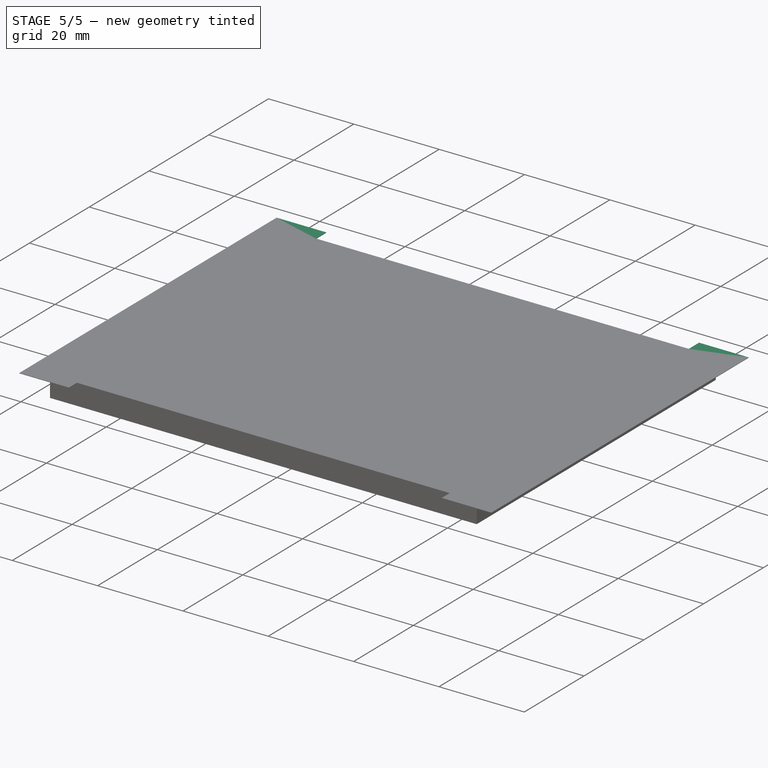
[diagram: stage 5 of 5 — iso view after this stage's code; geometry added in this stage tinted green]
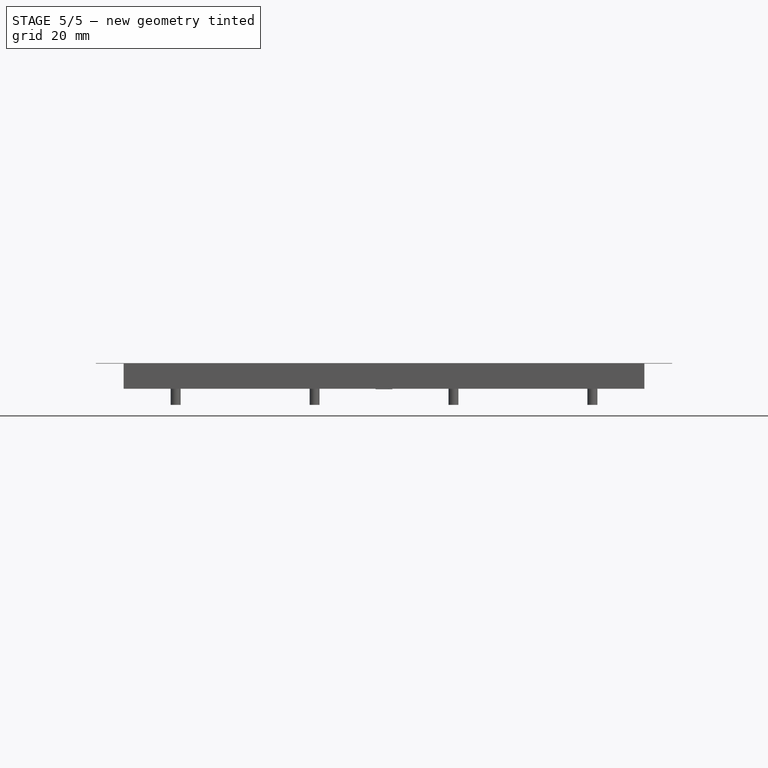
[diagram: stage 5 of 5 — front view after this stage's code; geometry added in this stage tinted green]
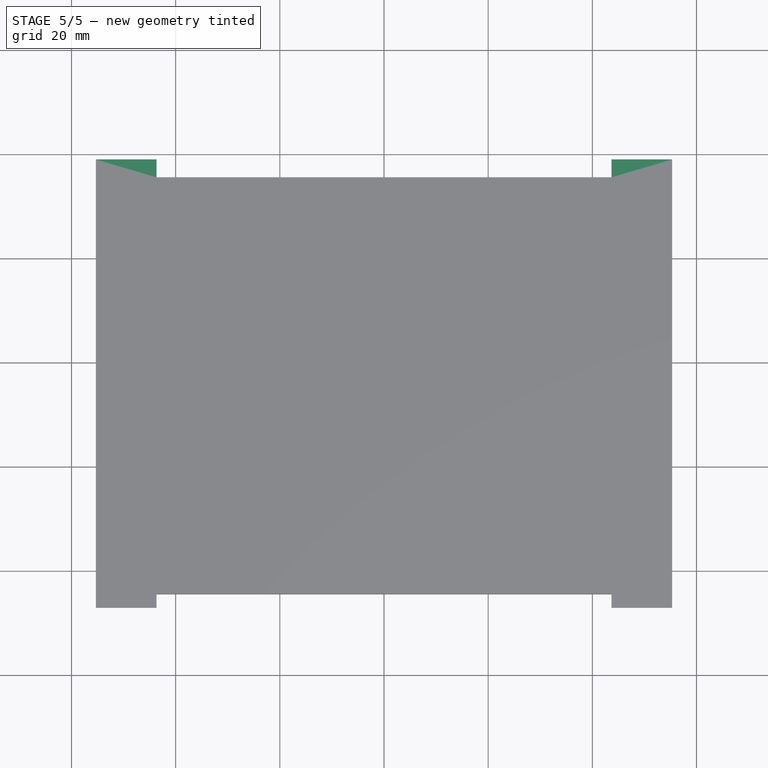
[diagram: stage 5 of 5 — top view after this stage's code; geometry added in this stage tinted green]
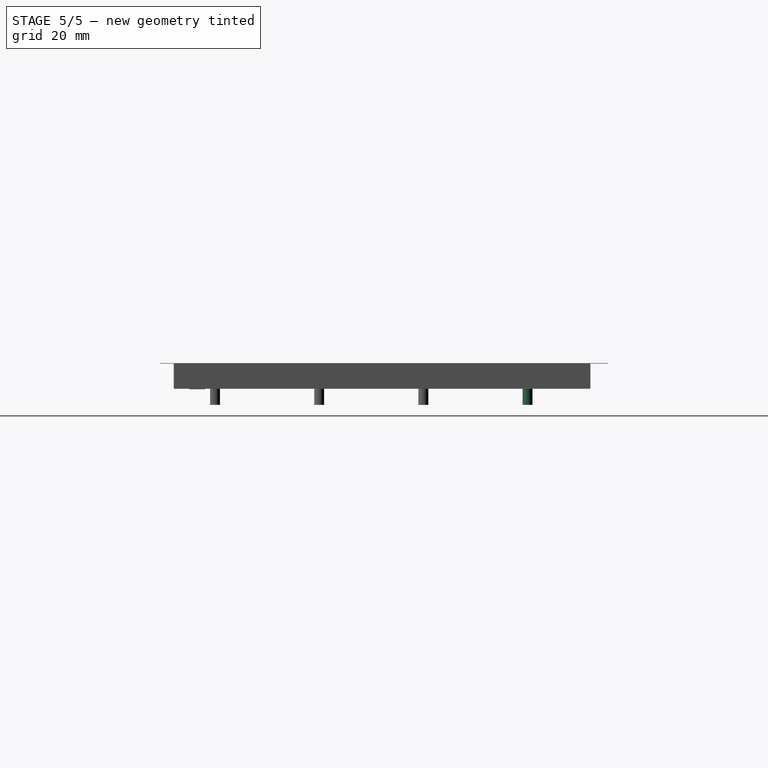
[diagram: stage 5 of 5 — right view after this stage's code; geometry added in this stage tinted green]
FEATURE [Part::Feature] Part__Feature  label="Layer_1"
  shape: bbox 86 x 12.5 x 1 mm, 366 faces (baked)
FEATURE [Part::Feature] Part__Feature001  label="Body_1"
  Placement = pos=(0,0,0) rot=(0,1,0;1.5708rad)
  shape: bbox 1.5 x 1.5 x 3.2 mm, 15 faces (baked)
FEATURE [App::Part] Open_CASCADE_STEP_translator_6_8_1_2_1  label="Open CASCADE STEP translator 6.8 1.2.1"
  Group = -> [Part__Feature001]
  Origin = -> Origin001
FEATURE [App::Part] J24
  Group = -> [Open_CASCADE_STEP_translator_6_8_1_2_1]
  Origin = -> Origin002
  Placement = pos=(-22.86,-6.25,-0.5) rot=(0,1,0;3.14159rad)
FEATURE [Part::Feature] Part__Feature002  label="Body_002"
  Placement = pos=(0,0,0) rot=(0,1,0;1.5708rad)
  shape: bbox 1.5 x 1.5 x 3.2 mm, 15 faces (baked)
FEATURE [App::Part] Open_CASCADE_STEP_translator_6_8_1_3_1  label="Open CASCADE STEP translator 6.8 1.3.1"
  Group = -> [Part__Feature002]
  Origin = -> Origin003
FEATURE [App::Part] J25
  Group = -> [Open_CASCADE_STEP_translator_6_8_1_3_1]
  Origin = -> Origin004
  Placement = pos=(-25.4,-6.25,-0.5) rot=(0,1,0;3.14159rad)
FEATURE [Part::Feature] Part__Feature003  label="Body_003"
  Placement = pos=(0,0,0) rot=(0,1,0;1.5708rad)
  shape: bbox 1.5 x 1.5 x 3.2 mm, 15 faces (baked)
FEATURE [App::Part] Open_CASCADE_STEP_translator_6_8_1_4_1  label="Open CASCADE STEP translator 6.8 1.4.1"
  Group = -> [Part__Feature003]
  Origin = -> Origin005
FEATURE [App::Part] J26
  Group = -> [Open_CASCADE_STEP_translator_6_8_1_4_1]
  Origin = -> Origin006
  Placement = pos=(-27.94,-6.25,-0.5) rot=(0,1,0;3.14159rad)
FEATURE [Part::Feature] Part__Feature004  label="Body_004"
  Placement = pos=(0,0,0) rot=(0,1,0;1.5708rad)
  shape: bbox 1.5 x 1.5 x 3.2 mm, 15 faces (baked)
FEATURE [App::Part] Open_CASCADE_STEP_translator_6_8_1_5_1  label="Open CASCADE STEP translator 6.8 1.5.1"
  Group = -> [Part__Feature004]
  Origin = -> Origin007
FEATURE [App::Part] J27
  Group = -> [Open_CASCADE_STEP_translator_6_8_1_5_1]
  Origin = -> Origin008
  Placement = pos=(-30.48,-6.25,-0.5) rot=(0,1,0;3.14159rad)
FEATURE [Part::Feature] Part__Feature005  label="Body_005"
  Placement = pos=(0,0,0) rot=(0,1,0;1.5708rad)
  shape: bbox 1.5 x 1.5 x 3.2 mm, 15 faces (baked)
FEATURE [App::Part] Open_CASCADE_STEP_translator_6_8_1_6_1  label="Open CASCADE STEP translator 6.8 1.6.1"
  Group = -> [Part__Feature005]
  Origin = -> Origin009
FEATURE [App::Part] J20
  Group = -> [Open_CASCADE_STEP_translator_6_8_1_6_1]
  Origin = -> Origin010
  Placement = pos=(30.48,-6.25,-0.5) rot=(0,1,0;3.14159rad)
FEATURE [Part::Feature] Part__Feature006  label="Body_006"
  Placement = pos=(0,0,0) rot=(0,1,0;1.5708rad)
  shape: bbox 1.5 x 1.5 x 3.2 mm, 15 faces (baked)
FEATURE [App::Part] Open_CASCADE_STEP_translator_6_8_1_7_1  label="Open CASCADE STEP translator 6.8 1.7.1"
  Group = -> [Part__Feature006]
  Origin = -> Origin011
FEATURE [App::Part] J23
  Group = -> [Open_CASCADE_STEP_translator_6_8_1_7_1]
  Origin = -> Origin012
  Placement = pos=(22.86,-6.25,-0.5) rot=(0,1,0;3.14159rad)
FEATURE [Part::Feature] Part__Feature007  label="Body_007"
  Placement = pos=(0,0,0) rot=(0,1,0;1.5708rad)
  shape: bbox 1.5 x 1.5 x 3.2 mm, 15 faces (baked)
FEATURE [App::Part] Open_CASCADE_STEP_translator_6_8_1_8_1  label="Open CASCADE STEP translator 6.8 1.8.1"
  Group = -> [Part__Feature007]
  Origin = -> Origin013
FEATURE [App::Part] J21
  Group = -> [Open_CASCADE_STEP_translator_6_8_1_8_1]
  Origin = -> Origin014
  Placement = pos=(27.94,-6.25,-0.5) rot=(0,1,0;3.14159rad)
FEATURE [Part::Feature] Part__Feature008  label="Body_008"
  Placement = pos=(0,0,0) rot=(0,1,0;1.5708rad)
  shape: bbox 1.5 x 1.5 x 3.2 mm, 15 faces (baked)
FEATURE [App::Part] Open_CASCADE_STEP_translator_6_8_1_9_1  label="Open CASCADE STEP translator 6.8 1.9.1"
  Group = -> [Part__Feature008]
  Origin = -> Origin015
FEATURE [App::Part] J22
  Group = -> [Open_CASCADE_STEP_translator_6_8_1_9_1]
  Origin = -> Origin016
  Placement = pos=(25.4,-6.25,-0.5) rot=(0,1,0;3.14159rad)
FEATURE [Part::Feature] Part__Feature009  label="Body_009"
  Placement = pos=(0,-1.5,0) rot=(0.57735,-0.57735,-0.57735;4.18879rad)
  shape: bbox 12 x 7 x 4 mm, 99 faces (baked)
FEATURE [App::Part] Open_CASCADE_STEP_translator_6_8_1_10_1  label="Open CASCADE STEP translator 6.8 1.10.1"
  Group = -> [Part__Feature009]
  Origin = -> Origin017
FEATURE [App::Part] J1
  Group = -> [Open_CASCADE_STEP_translator_6_8_1_10_1]
  Origin = -> Origin018
  Placement = pos=(-26.67,-3.81,-0.5) rot=(0,1,0;3.14159rad)
FEATURE [Part::Feature] Part__Feature010  label="Body_010"
  Placement = pos=(0,-1.5,0) rot=(0.57735,-0.57735,-0.57735;4.18879rad)
  shape: bbox 12 x 7 x 4 mm, 99 faces (baked)
FEATURE [App::Part] Open_CASCADE_STEP_translator_6_8_1_11_1  label="Open CASCADE STEP translator 6.8 1.11.1"
  Group = -> [Part__Feature010]
  Origin = -> Origin019
FEATURE [App::Part] J2
  Group = -> [Open_CASCADE_STEP_translator_6_8_1_11_1]
  Origin = -> Origin020
  Placement = pos=(26.67,-3.81,-0.5) rot=(0,1,0;3.14159rad)
FEATURE [Part::Feature] Part__Feature011  label="Body_011"
  shape: bbox 1.91 x 1.2 x 0.4 mm, 6 faces (baked)
FEATURE [Part::Feature] Part__Feature012  label="Pin_1"
  Placement = pos=(-1.6,0,0) rot=(0,0,1;3.14159rad)
  shape: bbox 0.41 x 1.2 x 0.525 mm, 13 faces (baked)
FEATURE [Part::Feature] Part__Feature013  label="Pin_2"
  shape: bbox 0.41 x 1.2 x 0.525 mm, 13 faces (baked)
FEATURE [App::Part] Open_CASCADE_STEP_translator_6_8_1_12_1  label="Open CASCADE STEP translator 6.8 1.12.1"
  Group = -> [Part__Feature011,Part__Feature012,Part__Feature013]
  Origin = -> Origin021
FEATURE [Part::Feature] Part__Feature028  label="Body_014"
  shape: bbox 1.2 x 2.4 x 0.75 mm, 6 faces (baked)
FEATURE [Part::Feature] Part__Feature029  label="Pin_011"
  shape: bbox 0.8 x 0.4 x 0.725 mm, 12 faces (baked)
FEATURE [Part::Feature] Part__Feature030  label="Pin_012"
  shape: bbox 0.8 x 0.4 x 0.725 mm, 12 faces (baked)
FEATURE [Part::Feature] Part__Feature031  label="Pin_013"
  shape: bbox 0.8 x 0.4 x 0.725 mm, 12 faces (baked)
FEATURE [Part::Feature] Part__Feature032  label="Pin_014"
  Placement = pos=(2.6,-1.9,0) rot=(0,0,1;3.14159rad)
  shape: bbox 0.8 x 0.4 x 0.725 mm, 12 faces (baked)
FEATURE [Part::Feature] Part__Feature033  label="Pin_015"
  Placement = pos=(2.6,0,0) rot=(0,0,1;3.14159rad)
  shape: bbox 0.8 x 0.4 x 0.725 mm, 12 faces (baked)
FEATURE [Part::Feature] Part__Feature034  label="Pin_016"
  Placement = pos=(2.6,1.9,0) rot=(0,0,1;3.14159rad)
  shape: bbox 0.8 x 0.4 x 0.725 mm, 12 faces (baked)
FEATURE [App::Part] Open_CASCADE_STEP_translator_6_8_1_13_1002  label="Open CASCADE STEP translator 6.8 1.13.003"
  Group = -> [Part__Feature028,Part__Feature029,Part__Feature030,Part__Feature031,Part__Feature032,Part__Feature033,Part__Feature034]
  Origin = -> Origin027
FEATURE [Part::Feature] Part__Feature035  label="Body_015"
  shape: bbox 1.2 x 2.4 x 0.75 mm, 6 faces (baked)
FEATURE [Part::Feature] Part__Feature036  label="Pin_017"
  shape: bbox 0.8 x 0.4 x 0.725 mm, 12 faces (baked)
FEATURE [Part::Feature] Part__Feature037  label="Pin_018"
  shape: bbox 0.8 x 0.4 x 0.725 mm, 12 faces (baked)
FEATURE [Part::Feature] Part__Feature038  label="Pin_019"
  shape: bbox 0.8 x 0.4 x 0.725 mm, 12 faces (baked)
FEATURE [Part::Feature] Part__Feature039  label="Pin_020"
  Placement = pos=(2.6,-1.9,0) rot=(0,0,1;3.14159rad)
  shape: bbox 0.8 x 0.4 x 0.725 mm, 12 faces (baked)
FEATURE [Part::Feature] Part__Feature040  label="Pin_021"
  Placement = pos=(2.6,0,0) rot=(0,0,1;3.14159rad)
  shape: bbox 0.8 x 0.4 x 0.725 mm, 12 faces (baked)
FEATURE [Part::Feature] Part__Feature041  label="Pin_022"
  Placement = pos=(2.6,1.9,0) rot=(0,0,1;3.14159rad)
  shape: bbox 0.8 x 0.4 x 0.725 mm, 12 faces (baked)
FEATURE [Part::Feature] Part__Feature042  label="Body_016"
  shape: bbox 2.794 x 1.016 x 0.5842 mm, 6 faces (baked)
FEATURE [Part::Feature] Part__Feature043  label="Pin_023"
  Placement = pos=(-1.9558,-0.0762,0) rot=(0,0,1;1.5708rad)
  shape: bbox 0.381 x 0.5461 x 0.381 mm, 12 faces (baked)
FEATURE [Part::Feature] Part__Feature044  label="Pin_024"
  Placement = pos=(-0.0762,-1.9558,0) rot=(0,0,1;1.5708rad)
  shape: bbox 0.381 x 0.5461 x 0.381 mm, 12 faces (baked)
FEATURE [Part::Feature] Part__Feature045  label="Pin_025"
  Placement = pos=(-0.889,0.889,0) rot=(0,0,-1;1.5708rad)
  shape: bbox 0.381 x 0.4191 x 0.381 mm, 12 faces (baked)
FEATURE [App::Part] Open_CASCADE_STEP_translator_6_8_1_17_1  label="Open CASCADE STEP translator 6.8 1.17.1"
  Group = -> [Part__Feature042,Part__Feature043,Part__Feature044,Part__Feature045]
  Origin = -> Origin031
FEATURE [Part::Feature] Part__Feature046  label="Body_017"
  shape: bbox 1.91 x 1.2 x 0.4 mm, 6 faces (baked)
FEATURE [Part::Feature] Part__Feature047  label="Pin_026"
  Placement = pos=(-1.6,0,0) rot=(0,0,1;3.14159rad)
  shape: bbox 0.41 x 1.2 x 0.525 mm, 13 faces (baked)
FEATURE [Part::Feature] Part__Feature048  label="Pin_027"
  shape: bbox 0.41 x 1.2 x 0.525 mm, 13 faces (baked)
FEATURE [App::Part] Open_CASCADE_STEP_translator_6_8_1_12_1001  label="Open CASCADE STEP translator 6.8 1.12.002"
  Group = -> [Part__Feature046,Part__Feature047,Part__Feature048]
  Origin = -> Origin033
FEATURE [Part::Feature] Part__Feature049  label="Body_018"
  shape: bbox 1.91 x 1.2 x 0.6 mm, 6 faces (baked)
FEATURE [Part::Feature] Part__Feature050  label="Pin_028"
  Placement = pos=(-1.6,0,0) rot=(0,0,1;3.14159rad)
  shape: bbox 0.41 x 1.2 x 0.725 mm, 13 faces (baked)
FEATURE [Part::Feature] Part__Feature051  label="Pin_029"
  shape: bbox 0.41 x 1.2 x 0.725 mm, 13 faces (baked)
FEATURE [App::Part] Open_CASCADE_STEP_translator_6_8_1_19_1  label="Open CASCADE STEP translator 6.8 1.19.1"
  Group = -> [Part__Feature049,Part__Feature050,Part__Feature051]
  Origin = -> Origin035
FEATURE [Part::Feature] Part__Feature052  label="Body_019"
  shape: bbox 1.91 x 1.2 x 0.4 mm, 6 faces (baked)
FEATURE [Part::Feature] Part__Feature053  label="Pin_030"
  Placement = pos=(-1.6,0,0) rot=(0,0,1;3.14159rad)
  shape: bbox 0.41 x 1.2 x 0.525 mm, 13 faces (baked)
FEATURE [Part::Feature] Part__Feature054  label="Pin_031"
  shape: bbox 0.41 x 1.2 x 0.525 mm, 13 faces (baked)
FEATURE [App::Part] Open_CASCADE_STEP_translator_6_8_1_12_1002  label="Open CASCADE STEP translator 6.8 1.12.003"
  Group = -> [Part__Feature052,Part__Feature053,Part__Feature054]
  Origin = -> Origin037
FEATURE [Part::Feature] Part__Feature055  label="Body_020"
  shape: bbox 1.91 x 1.2 x 0.4 mm, 6 faces (baked)
FEATURE [Part::Feature] Part__Feature056  label="Pin_032"
  Placement = pos=(-1.6,0,0) rot=(0,0,1;3.14159rad)
  shape: bbox 0.41 x 1.2 x 0.525 mm, 13 faces (baked)
FEATURE [Part::Feature] Part__Feature057  label="Pin_033"
  shape: bbox 0.41 x 1.2 x 0.525 mm, 13 faces (baked)
FEATURE [App::Part] Open_CASCADE_STEP_translator_6_8_1_12_1003  label="Open CASCADE STEP translator 6.8 1.12.004"
  Group = -> [Part__Feature055,Part__Feature056,Part__Feature057]
  Origin = -> Origin039
FEATURE [Part::Feature] Part__Feature058  label="Body_021"
  shape: bbox 1.91 x 1.2 x 0.4 mm, 6 faces (baked)
FEATURE [Part::Feature] Part__Feature059  label="Pin_034"
  Placement = pos=(-1.6,0,0) rot=(0,0,1;3.14159rad)
  shape: bbox 0.41 x 1.2 x 0.525 mm, 13 faces (baked)
FEATURE [Part::Feature] Part__Feature060  label="Pin_035"
  shape: bbox 0.41 x 1.2 x 0.525 mm, 13 faces (baked)
FEATURE [App::Part] Open_CASCADE_STEP_translator_6_8_1_12_1004  label="Open CASCADE STEP translator 6.8 1.12.005"
  Group = -> [Part__Feature058,Part__Feature059,Part__Feature060]
  Origin = -> Origin041
FEATURE [Part::Feature] Part__Feature061  label="Body_022"
  shape: bbox 1.91 x 1.2 x 0.6 mm, 6 faces (baked)
FEATURE [Part::Feature] Part__Feature062  label="Pin_036"
  Placement = pos=(-1.6,0,0) rot=(0,0,1;3.14159rad)
  shape: bbox 0.41 x 1.2 x 0.725 mm, 13 faces (baked)
FEATURE [Part::Feature] Part__Feature063  label="Pin_037"
  shape: bbox 0.41 x 1.2 x 0.725 mm, 13 faces (baked)
FEATURE [App::Part] Open_CASCADE_STEP_translator_6_8_1_19_1001  label="Open CASCADE STEP translator 6.8 1.19.002"
  Group = -> [Part__Feature061,Part__Feature062,Part__Feature063]
  Origin = -> Origin043
FEATURE [Part::Feature] Part__Feature064  label="Body_023"
  shape: bbox 1.91 x 1.2 x 0.4 mm, 6 faces (baked)
FEATURE [Part::Feature] Part__Feature065  label="Pin_038"
  Placement = pos=(-1.6,0,0) rot=(0,0,1;3.14159rad)
  shape: bbox 0.41 x 1.2 x 0.525 mm, 13 faces (baked)
FEATURE [Part::Feature] Part__Feature066  label="Pin_039"
  shape: bbox 0.41 x 1.2 x 0.525 mm, 13 faces (baked)
FEATURE [App::Part] Open_CASCADE_STEP_translator_6_8_1_12_1005  label="Open CASCADE STEP translator 6.8 1.12.006"
  Group = -> [Part__Feature064,Part__Feature065,Part__Feature066]
  Origin = -> Origin045
FEATURE [Part::Feature] Part__Feature067  label="Body_024"
  shape: bbox 2.54 x 1.143 x 0.5842 mm, 6 faces (baked)
FEATURE [Part::Feature] Part__Feature068  label="Pin_040"
  Placement = pos=(-1.8796,-1.8796,0) rot=(0,0,-1;1.5708rad)
  shape: bbox 0.508 x 0.4318 x 0.381 mm, 10 faces (baked)
FEATURE [Part::Feature] Part__Feature069  label="Pin_041"
  Placement = pos=(0,0,0) rot=(0,0,-1;1.5708rad)
  shape: bbox 0.508 x 0.4318 x 0.381 mm, 10 faces (baked)
FEATURE [Part::Feature] Part__Feature070  label="Pin_042"
  Placement = pos=(-2.8448,-0.9652,0) rot=(0,0,1;1.5708rad)
  shape: bbox 0.508 x 0.4064 x 0.381 mm, 10 faces (baked)
FEATURE [App::Part] Open_CASCADE_STEP_translator_6_8_1_25_1  label="Open CASCADE STEP translator 6.8 1.25.1"
  Group = -> [Part__Feature067,Part__Feature068,Part__Feature069,Part__Feature070]
  Origin = -> Origin047
FEATURE [Part::Feature] Part__Feature071  label="Body_025"
  shape: bbox 1.91 x 1.2 x 0.6 mm, 6 faces (baked)
FEATURE [Part::Feature] Part__Feature072  label="Pin_043"
  Placement = pos=(-1.6,0,0) rot=(0,0,1;3.14159rad)
  shape: bbox 0.41 x 1.2 x 0.725 mm, 13 faces (baked)
FEATURE [Part::Feature] Part__Feature073  label="Pin_044"
  shape: bbox 0.41 x 1.2 x 0.725 mm, 13 faces (baked)
FEATURE [App::Part] Open_CASCADE_STEP_translator_6_8_1_19_1002  label="Open CASCADE STEP translator 6.8 1.19.003"
  Group = -> [Part__Feature071,Part__Feature072,Part__Feature073]
  Origin = -> Origin049
FEATURE [Part::Feature] Part__Feature074  label="Body_026"
  shape: bbox 1.2 x 2.4 x 0.75 mm, 6 faces (baked)
FEATURE [Part::Feature] Part__Feature075  label="Pin_045"
  shape: bbox 0.8 x 0.4 x 0.725 mm, 12 faces (baked)
FEATURE [Part::Feature] Part__Feature076  label="Pin_046"
  shape: bbox 0.8 x 0.4 x 0.725 mm, 12 faces (baked)
FEATURE [Part::Feature] Part__Feature077  label="Pin_047"
  shape: bbox 0.8 x 0.4 x 0.725 mm, 12 faces (baked)
FEATURE [Part::Feature] Part__Feature078  label="Pin_048"
  Placement = pos=(2.6,-1.9,0) rot=(0,0,1;3.14159rad)
  shape: bbox 0.8 x 0.4 x 0.725 mm, 12 faces (baked)
FEATURE [Part::Feature] Part__Feature079  label="Pin_049"
  Placement = pos=(2.6,0,0) rot=(0,0,1;3.14159rad)
  shape: bbox 0.8 x 0.4 x 0.725 mm, 12 faces (baked)
FEATURE [Part::Feature] Part__Feature080  label="Pin_050"
  Placement = pos=(2.6,1.9,0) rot=(0,0,1;3.14159rad)
  shape: bbox 0.8 x 0.4 x 0.725 mm, 12 faces (baked)
FEATURE [App::Part] Open_CASCADE_STEP_translator_6_8_1_13_1004  label="Open CASCADE STEP translator 6.8 1.13.005"
  Group = -> [Part__Feature074,Part__Feature075,Part__Feature076,Part__Feature077,Part__Feature078,Part__Feature079,Part__Feature080]
  Origin = -> Origin051
FEATURE [Part::Feature] Part__Feature081  label="Body_027"
  shape: bbox 1.2 x 2.4 x 0.75 mm, 6 faces (baked)
FEATURE [Part::Feature] Part__Feature082  label="Pin_051"
  shape: bbox 0.8 x 0.4 x 0.725 mm, 12 faces (baked)
FEATURE [Part::Feature] Part__Feature083  label="Pin_052"
  shape: bbox 0.8 x 0.4 x 0.725 mm, 12 faces (baked)
FEATURE [Part::Feature] Part__Feature084  label="Pin_053"
  shape: bbox 0.8 x 0.4 x 0.725 mm, 12 faces (baked)
FEATURE [Part::Feature] Part__Feature085  label="Pin_054"
  Placement = pos=(2.6,-1.9,0) rot=(0,0,1;3.14159rad)
  shape: bbox 0.8 x 0.4 x 0.725 mm, 12 faces (baked)
FEATURE [Part::Feature] Part__Feature086  label="Pin_055"
  Placement = pos=(2.6,0,0) rot=(0,0,1;3.14159rad)
  shape: bbox 0.8 x 0.4 x 0.725 mm, 12 faces (baked)
FEATURE [Part::Feature] Part__Feature087  label="Pin_056"
  Placement = pos=(2.6,1.9,0) rot=(0,0,1;3.14159rad)
  shape: bbox 0.8 x 0.4 x 0.725 mm, 12 faces (baked)
FEATURE [App::Part] Open_CASCADE_STEP_translator_6_8_1_13_1005  label="Open CASCADE STEP translator 6.8 1.13.006"
  Group = -> [Part__Feature081,Part__Feature082,Part__Feature083,Part__Feature084,Part__Feature085,Part__Feature086,Part__Feature087]
  Origin = -> Origin053
FEATURE [Part::Feature] Part__Feature088  label="Body_028"
  shape: bbox 1.91 x 1.2 x 0.4 mm, 6 faces (baked)
FEATURE [Part::Feature] Part__Feature089  label="Pin_057"
  Placement = pos=(-1.6,0,0) rot=(0,0,1;3.14159rad)
  shape: bbox 0.41 x 1.2 x 0.525 mm, 13 faces (baked)
FEATURE [Part::Feature] Part__Feature090  label="Pin_058"
  shape: bbox 0.41 x 1.2 x 0.525 mm, 13 faces (baked)
FEATURE [App::Part] Open_CASCADE_STEP_translator_6_8_1_12_1006  label="Open CASCADE STEP translator 6.8 1.12.007"
  Group = -> [Part__Feature088,Part__Feature089,Part__Feature090]
  Origin = -> Origin055
FEATURE [Part::Feature] Part__Feature091  label="Body_029"
  shape: bbox 1.91 x 1.2 x 0.4 mm, 6 faces (baked)
FEATURE [Part::Feature] Part__Feature092  label="Pin_059"
  Placement = pos=(-1.6,0,0) rot=(0,0,1;3.14159rad)
  shape: bbox 0.41 x 1.2 x 0.525 mm, 13 faces (baked)
FEATURE [Part::Feature] Part__Feature093  label="Pin_060"
  shape: bbox 0.41 x 1.2 x 0.525 mm, 13 faces (baked)
FEATURE [App::Part] Open_CASCADE_STEP_translator_6_8_1_12_1007  label="Open CASCADE STEP translator 6.8 1.12.008"
  Group = -> [Part__Feature091,Part__Feature092,Part__Feature093]
  Origin = -> Origin057
FEATURE [Part::Feature] Part__Feature094  label="Body_030"
  shape: bbox 1.2 x 2.4 x 0.75 mm, 6 faces (baked)
FEATURE [Part::Feature] Part__Feature095  label="Pin_061"
  shape: bbox 0.8 x 0.4 x 0.725 mm, 12 faces (baked)
FEATURE [Part::Feature] Part__Feature096  label="Pin_062"
  shape: bbox 0.8 x 0.4 x 0.725 mm, 12 faces (baked)
FEATURE [Part::Feature] Part__Feature097  label="Pin_063"
  shape: bbox 0.8 x 0.4 x 0.725 mm, 12 faces (baked)
FEATURE [Part::Feature] Part__Feature098  label="Pin_064"
  Placement = pos=(2.6,-1.9,0) rot=(0,0,1;3.14159rad)
  shape: bbox 0.8 x 0.4 x 0.725 mm, 12 faces (baked)
FEATURE [Part::Feature] Part__Feature099  label="Pin_065"
  Placement = pos=(2.6,0,0) rot=(0,0,1;3.14159rad)
  shape: bbox 0.8 x 0.4 x 0.725 mm, 12 faces (baked)
FEATURE [Part::Feature] Part__Feature100  label="Pin_066"
  Placement = pos=(2.6,1.9,0) rot=(0,0,1;3.14159rad)
  shape: bbox 0.8 x 0.4 x 0.725 mm, 12 faces (baked)
FEATURE [App::Part] Open_CASCADE_STEP_translator_6_8_1_13_1006  label="Open CASCADE STEP translator 6.8 1.13.007"
  Group = -> [Part__Feature094,Part__Feature095,Part__Feature096,Part__Feature097,Part__Feature098,Part__Feature099,Part__Feature100]
  Origin = -> Origin059
FEATURE [Part::Feature] Part__Feature101  label="Body_031"
  shape: bbox 1.2 x 2.4 x 0.75 mm, 6 faces (baked)
FEATURE [Part::Feature] Part__Feature102  label="Pin_067"
  shape: bbox 0.8 x 0.4 x 0.725 mm, 12 faces (baked)
FEATURE [Part::Feature] Part__Feature103  label="Pin_068"
  shape: bbox 0.8 x 0.4 x 0.725 mm, 12 faces (baked)
FEATURE [Part::Feature] Part__Feature104  label="Pin_069"
  shape: bbox 0.8 x 0.4 x 0.725 mm, 12 faces (baked)
FEATURE [Part::Feature] Part__Feature105  label="Pin_070"
  Placement = pos=(2.6,-1.9,0) rot=(0,0,1;3.14159rad)
  shape: bbox 0.8 x 0.4 x 0.725 mm, 12 faces (baked)
FEATURE [Part::Feature] Part__Feature106  label="Pin_071"
  Placement = pos=(2.6,0,0) rot=(0,0,1;3.14159rad)
  shape: bbox 0.8 x 0.4 x 0.725 mm, 12 faces (baked)
FEATURE [Part::Feature] Part__Feature107  label="Pin_072"
  Placement = pos=(2.6,1.9,0) rot=(0,0,1;3.14159rad)
  shape: bbox 0.8 x 0.4 x 0.725 mm, 12 faces (baked)
FEATURE [App::Part] Open_CASCADE_STEP_translator_6_8_1_13_1007  label="Open CASCADE STEP translator 6.8 1.13.008"
  Group = -> [Part__Feature101,Part__Feature102,Part__Feature103,Part__Feature104,Part__Feature105,Part__Feature106,Part__Feature107]
  Origin = -> Origin061
FEATURE [Part::Feature] Part__Feature108  label="Body_032"
  shape: bbox 1.91 x 1.2 x 0.4 mm, 6 faces (baked)
FEATURE [Part::Feature] Part__Feature109  label="Pin_073"
  Placement = pos=(-1.6,0,0) rot=(0,0,1;3.14159rad)
  shape: bbox 0.41 x 1.2 x 0.525 mm, 13 faces (baked)
FEATURE [Part::Feature] Part__Feature110  label="Pin_074"
  shape: bbox 0.41 x 1.2 x 0.525 mm, 13 faces (baked)
FEATURE [App::Part] Open_CASCADE_STEP_translator_6_8_1_12_1008  label="Open CASCADE STEP translator 6.8 1.12.009"
  Group = -> [Part__Feature108,Part__Feature109,Part__Feature110]
  Origin = -> Origin063
FEATURE [Part::Feature] Part__Feature111  label="Body_033"
  shape: bbox 1.91 x 1.2 x 0.6 mm, 6 faces (baked)
FEATURE [Part::Feature] Part__Feature112  label="Pin_075"
  Placement = pos=(-1.6,0,0) rot=(0,0,1;3.14159rad)
  shape: bbox 0.41 x 1.2 x 0.725 mm, 13 faces (baked)
FEATURE [Part::Feature] Part__Feature113  label="Pin_076"
  shape: bbox 0.41 x 1.2 x 0.725 mm, 13 faces (baked)
FEATURE [App::Part] Open_CASCADE_STEP_translator_6_8_1_19_1003  label="Open CASCADE STEP translator 6.8 1.19.004"
  Group = -> [Part__Feature111,Part__Feature112,Part__Feature113]
  Origin = -> Origin065
FEATURE [Part::Feature] Part__Feature114  label="Body_034"
  shape: bbox 1.91 x 1.2 x 0.6 mm, 6 faces (baked)
FEATURE [Part::Feature] Part__Feature115  label="Pin_077"
  Placement = pos=(-1.6,0,0) rot=(0,0,1;3.14159rad)
  shape: bbox 0.41 x 1.2 x 0.725 mm, 13 faces (baked)
FEATURE [Part::Feature] Part__Feature116  label="Pin_078"
  shape: bbox 0.41 x 1.2 x 0.725 mm, 13 faces (baked)
FEATURE [App::Part] Open_CASCADE_STEP_translator_6_8_1_19_1004  label="Open CASCADE STEP translator 6.8 1.19.005"
  Group = -> [Part__Feature114,Part__Feature115,Part__Feature116]
  Origin = -> Origin067
FEATURE [Part::Feature] Part__Feature117  label="Body_035"
  shape: bbox 3 x 1.5 x 0.7112 mm, 6 faces (baked)
FEATURE [Part::Feature] Part__Feature118  label="Pin_079"
  Placement = pos=(-0.35,2.25,0) rot=(0,0,-1;1.5708rad)
  shape: bbox 0.254 x 0.6135 x 0.4699 mm, 12 faces (baked)
FEATURE [Part::Feature] Part__Feature119  label="Pin_080"
  Placement = pos=(-1.3,1.3,0) rot=(0,0,-1;1.5708rad)
  shape: bbox 0.254 x 0.6135 x 0.4699 mm, 12 faces (baked)
FEATURE [Part::Feature] Part__Feature120  label="Pin_081"
  Placement = pos=(-2.25,0.35,0) rot=(0,0,-1;1.5708rad)
  shape: bbox 0.254 x 0.6135 x 0.4699 mm, 12 faces (baked)
FEATURE [Part::Feature] Part__Feature121  label="Pin_082"
  Placement = pos=(-2.25,-0.35,0) rot=(0,0,1;1.5708rad)
  shape: bbox 0.254 x 0.6135 x 0.4699 mm, 12 faces (baked)
FEATURE [Part::Feature] Part__Feature122  label="Pin_083"
  Placement = pos=(-0.35,-2.25,0) rot=(0,0,1;1.5708rad)
  shape: bbox 0.254 x 0.6135 x 0.4699 mm, 12 faces (baked)
FEATURE [App::Part] Open_CASCADE_STEP_translator_6_8_1_36_1  label="Open CASCADE STEP translator 6.8 1.36.1"
  Group = -> [Part__Feature117,Part__Feature118,Part__Feature119,Part__Feature120,Part__Feature121,Part__Feature122]
  Origin = -> Origin069
FEATURE [Sketcher::SketchObject] Sketch
  MapMode = 5
  Support = -> [XY_Plane]
  expr: Constraints[16] = 2.2 + 0.1
  expr: Constraints[17] = 1.6 + 0.1
  sketch-geometry (7):
    g0: LineSegment StartX=-1.15 StartY=-0.85 StartZ=0 EndX=1.15 EndY=-0.85 EndZ=0
    g1: LineSegment StartX=1.15 StartY=-0.85 StartZ=0 EndX=1.15 EndY=0.85 EndZ=0
    g2: LineSegment StartX=1.15 StartY=0.85 StartZ=0 EndX=-1.15 EndY=0.85 EndZ=0
    g3: LineSegment StartX=-1.15 StartY=0.85 StartZ=0 EndX=-1.15 EndY=-0.85 EndZ=0
    g4: LineSegment [constr] StartX=-1.15 StartY=0.85 StartZ=0 EndX=0 EndY=0 EndZ=0
    g5: LineSegment [constr] StartX=0 StartY=0 StartZ=0 EndX=1.15 EndY=0.85 EndZ=0
    g6: LineSegment [constr] StartX=0 StartY=0 StartZ=0 EndX=-1.15 EndY=-0.85 EndZ=0
  constraints (18):
    c: Coincident(g0,g1)
    c: Coincident(g1,g2)
    c: Coincident(g2,g3)
    c: Coincident(g3,g0)
    c: Horizontal(g0)
    c: Horizontal(g2)
    c: Vertical(g1)
    c: Vertical(g3)
    c: Coincident(g4,g2)
    c: Coincident(g4,g-1)
    c: Coincident(g5,g-1)
    c: Coincident(g5,g1)
    c: Coincident(g6,g-1)
    c: Coincident(g6,g0)
    c: Equal(g5,g4)
    c: Equal(g4,g6)
    c: DistanceX(g2,g2) = 2.3
    c: DistanceY(g3,g3) = 1.7
FEATURE [PartDesign::Pad] Pad
  Length = 0.5
  Length2 = 100
  Profile = -> Sketch
  Refine = true
  Type = 0
FEATURE [PartDesign::Body] Body  label="Resistor 10k"
  Group = -> [Sketch,Pad]
  Origin = -> Origin
  Tip = -> Pad
FEATURE [App::Part] R12
  Group = -> [Open_CASCADE_STEP_translator_6_8_1_12_1001,Body]
  Origin = -> Origin034
  Placement = pos=(-5.715,-11.43,0.5) rot=(0,0,1;1.5708rad)
FEATURE [Sketcher::SketchObject] Sketch001
  MapMode = 5
  Support = -> [XY_Plane072]
  expr: Constraints[16] = 2.2 + 0.1
  expr: Constraints[17] = 1.6 + 0.1
  sketch-geometry (7):
    g0: LineSegment StartX=-1.15 StartY=-0.85 StartZ=0 EndX=1.15 EndY=-0.85 EndZ=0
    g1: LineSegment StartX=1.15 StartY=-0.85 StartZ=0 EndX=1.15 EndY=0.85 EndZ=0
    g2: LineSegment StartX=1.15 StartY=0.85 StartZ=0 EndX=-1.15 EndY=0.85 EndZ=0
    g3: LineSegment StartX=-1.15 StartY=0.85 StartZ=0 EndX=-1.15 EndY=-0.85 EndZ=0
    g4: LineSegment [constr] StartX=-1.15 StartY=0.85 StartZ=0 EndX=0 EndY=0 EndZ=0
    g5: LineSegment [constr] StartX=0 StartY=0 StartZ=0 EndX=1.15 EndY=0.85 EndZ=0
    g6: LineSegment [constr] StartX=0 StartY=0 StartZ=0 EndX=-1.15 EndY=-0.85 EndZ=0
  constraints (18):
    c: Coincident(g0,g1)
    c: Coincident(g1,g2)
    c: Coincident(g2,g3)
    c: Coincident(g3,g0)
    c: Horizontal(g0)
    c: Horizontal(g2)
    c: Vertical(g1)
    c: Vertical(g3)
    c: Coincident(g4,g2)
    c: Coincident(g4,g-1)
    c: Coincident(g5,g-1)
    c: Coincident(g5,g1)
    c: Coincident(g6,g-1)
    c: Coincident(g6,g0)
    c: Equal(g5,g4)
    c: Equal(g4,g6)
    c: DistanceX(g2,g2) = 2.3
    c: DistanceY(g3,g3) = 1.7
FEATURE [PartDesign::Pad] Pad001
  Length = 0.5
  Length2 = 100
  Profile = -> Sketch001
  Refine = true
  Type = 0
FEATURE [PartDesign::Body] Body001  label="Resistor 10k001"
  Group = -> [Sketch001,Pad001]
  Origin = -> Origin072
  Tip = -> Pad001
FEATURE [App::Part] R2
  Group = -> [Open_CASCADE_STEP_translator_6_8_1_12_1002,Body001]
  Origin = -> Origin038
  Placement = pos=(-3.81,-11.43,0.5) rot=(0,0,-1;1.5708rad)
FEATURE [Sketcher::SketchObject] Sketch002
  MapMode = 5
  Support = -> [XY_Plane073]
  expr: Constraints[16] = 2.2 + 0.1
  expr: Constraints[17] = 1.6 + 0.1
  sketch-geometry (7):
    g0: LineSegment StartX=-1.15 StartY=-0.85 StartZ=0 EndX=1.15 EndY=-0.85 EndZ=0
    g1: LineSegment StartX=1.15 StartY=-0.85 StartZ=0 EndX=1.15 EndY=0.85 EndZ=0
    g2: LineSegment StartX=1.15 StartY=0.85 StartZ=0 EndX=-1.15 EndY=0.85 EndZ=0
    g3: LineSegment StartX=-1.15 StartY=0.85 StartZ=0 EndX=-1.15 EndY=-0.85 EndZ=0
    g4: LineSegment [constr] StartX=-1.15 StartY=0.85 StartZ=0 EndX=0 EndY=0 EndZ=0
    g5: LineSegment [constr] StartX=0 StartY=0 StartZ=0 EndX=1.15 EndY=0.85 EndZ=0
    g6: LineSegment [constr] StartX=0 StartY=0 StartZ=0 EndX=-1.15 EndY=-0.85 EndZ=0
  constraints (18):
    c: Coincident(g0,g1)
    c: Coincident(g1,g2)
    c: Coincident(g2,g3)
    c: Coincident(g3,g0)
    c: Horizontal(g0)
    c: Horizontal(g2)
    c: Vertical(g1)
    c: Vertical(g3)
    c: Coincident(g4,g2)
    c: Coincident(g4,g-1)
    c: Coincident(g5,g-1)
    c: Coincident(g5,g1)
    c: Coincident(g6,g-1)
    c: Coincident(g6,g0)
    c: Equal(g5,g4)
    c: Equal(g4,g6)
    c: DistanceX(g2,g2) = 2.3
    c: DistanceY(g3,g3) = 1.7
FEATURE [PartDesign::Pad] Pad002
  Length = 0.5
  Length2 = 100
  Profile = -> Sketch002
  Refine = true
  Type = 0
FEATURE [PartDesign::Body] Body002  label="Resistor 10k002"
  Group = -> [Sketch002,Pad002]
  Origin = -> Origin073
  Tip = -> Pad002
FEATURE [App::Part] R3
  Group = -> [Open_CASCADE_STEP_translator_6_8_1_12_1,Body002]
  Origin = -> Origin022
  Placement = pos=(-30.1625,-11.43,0.5) rot=(0,0,-1;1.5708rad)
FEATURE [Sketcher::SketchObject] Sketch003
  MapMode = 5
  Support = -> [XY_Plane074]
  expr: Constraints[16] = 2.2 + 0.1
  expr: Constraints[17] = 1.6 + 0.1
  sketch-geometry (7):
    g0: LineSegment StartX=-1.15 StartY=-0.85 StartZ=0 EndX=1.15 EndY=-0.85 EndZ=0
    g1: LineSegment StartX=1.15 StartY=-0.85 StartZ=0 EndX=1.15 EndY=0.85 EndZ=0
    g2: LineSegment StartX=1.15 StartY=0.85 StartZ=0 EndX=-1.15 EndY=0.85 EndZ=0
    g3: LineSegment StartX=-1.15 StartY=0.85 StartZ=0 EndX=-1.15 EndY=-0.85 EndZ=0
    g4: LineSegment [constr] StartX=-1.15 StartY=0.85 StartZ=0 EndX=0 EndY=0 EndZ=0
    g5: LineSegment [constr] StartX=0 StartY=0 StartZ=0 EndX=1.15 EndY=0.85 EndZ=0
    g6: LineSegment [constr] StartX=0 StartY=0 StartZ=0 EndX=-1.15 EndY=-0.85 EndZ=0
  constraints (18):
    c: Coincident(g0,g1)
    c: Coincident(g1,g2)
    c: Coincident(g2,g3)
    c: Coincident(g3,g0)
    c: Horizontal(g0)
    c: Horizontal(g2)
    c: Vertical(g1)
    c: Vertical(g3)
    c: Coincident(g4,g2)
    c: Coincident(g4,g-1)
    c: Coincident(g5,g-1)
    c: Coincident(g5,g1)
    c: Coincident(g6,g-1)
    c: Coincident(g6,g0)
    c: Equal(g5,g4)
    c: Equal(g4,g6)
    c: DistanceX(g2,g2) = 2.3
    c: DistanceY(g3,g3) = 1.7
FEATURE [PartDesign::Pad] Pad003
  Length = 0.5
  Length2 = 100
  Profile = -> Sketch003
  Refine = true
  Type = 0
FEATURE [PartDesign::Body] Body003  label="Resistor 10k003"
  Group = -> [Sketch003,Pad003]
  Origin = -> Origin074
  Tip = -> Pad003
FEATURE [App::Part] R9
  Group = -> [Open_CASCADE_STEP_translator_6_8_1_12_1003,Body003]
  Origin = -> Origin040
  Placement = pos=(0,-11.43,0.5) rot=(0,0,1;1.5708rad)
FEATURE [Sketcher::SketchObject] Sketch004
  MapMode = 5
  Support = -> [XY_Plane075]
  expr: Constraints[16] = 2.2 + 0.1
  expr: Constraints[17] = 1.6 + 0.1
  sketch-geometry (7):
    g0: LineSegment StartX=-1.15 StartY=-0.85 StartZ=0 EndX=1.15 EndY=-0.85 EndZ=0
    g1: LineSegment StartX=1.15 StartY=-0.85 StartZ=0 EndX=1.15 EndY=0.85 EndZ=0
    g2: LineSegment StartX=1.15 StartY=0.85 StartZ=0 EndX=-1.15 EndY=0.85 EndZ=0
    g3: LineSegment StartX=-1.15 StartY=0.85 StartZ=0 EndX=-1.15 EndY=-0.85 EndZ=0
    g4: LineSegment [constr] StartX=-1.15 StartY=0.85 StartZ=0 EndX=0 EndY=0 EndZ=0
    g5: LineSegment [constr] StartX=0 StartY=0 StartZ=0 EndX=1.15 EndY=0.85 EndZ=0
    g6: LineSegment [constr] StartX=0 StartY=0 StartZ=0 EndX=-1.15 EndY=-0.85 EndZ=0
  constraints (18):
    c: Coincident(g0,g1)
    c: Coincident(g1,g2)
    c: Coincident(g2,g3)
    c: Coincident(g3,g0)
    c: Horizontal(g0)
    c: Horizontal(g2)
    c: Vertical(g1)
    c: Vertical(g3)
    c: Coincident(g4,g2)
    c: Coincident(g4,g-1)
    c: Coincident(g5,g-1)
    c: Coincident(g5,g1)
    c: Coincident(g6,g-1)
    c: Coincident(g6,g0)
    c: Equal(g5,g4)
    c: Equal(g4,g6)
    c: DistanceX(g2,g2) = 2.3
    c: DistanceY(g3,g3) = 1.7
FEATURE [PartDesign::Pad] Pad004
  Length = 0.5
  Length2 = 100
  Profile = -> Sketch004
  Refine = true
  Type = 0
FEATURE [PartDesign::Body] Body004  label="Resistor 10k004"
  Group = -> [Sketch004,Pad004]
  Origin = -> Origin075
  Tip = -> Pad004
FEATURE [App::Part] R10
  Group = -> [Open_CASCADE_STEP_translator_6_8_1_12_1004,Body004]
  Origin = -> Origin042
  Placement = pos=(1.905,-11.43,0.5) rot=(0,0,-1;1.5708rad)
FEATURE [Sketcher::SketchObject] Sketch005
  MapMode = 5
  Support = -> [XY_Plane076]
  expr: Constraints[16] = 2.2 + 0.1
  expr: Constraints[17] = 1.6 + 0.1
  sketch-geometry (7):
    g0: LineSegment StartX=-1.15 StartY=-0.85 StartZ=0 EndX=1.15 EndY=-0.85 EndZ=0
    g1: LineSegment StartX=1.15 StartY=-0.85 StartZ=0 EndX=1.15 EndY=0.85 EndZ=0
    g2: LineSegment StartX=1.15 StartY=0.85 StartZ=0 EndX=-1.15 EndY=0.85 EndZ=0
    g3: LineSegment StartX=-1.15 StartY=0.85 StartZ=0 EndX=-1.15 EndY=-0.85 EndZ=0
    g4: LineSegment [constr] StartX=-1.15 StartY=0.85 StartZ=0 EndX=0 EndY=0 EndZ=0
    g5: LineSegment [constr] StartX=0 StartY=0 StartZ=0 EndX=1.15 EndY=0.85 EndZ=0
    g6: LineSegment [constr] StartX=0 StartY=0 StartZ=0 EndX=-1.15 EndY=-0.85 EndZ=0
  constraints (18):
    c: Coincident(g0,g1)
    c: Coincident(g1,g2)
    c: Coincident(g2,g3)
    c: Coincident(g3,g0)
    c: Horizontal(g0)
    c: Horizontal(g2)
    c: Vertical(g1)
    c: Vertical(g3)
    c: Coincident(g4,g2)
    c: Coincident(g4,g-1)
    c: Coincident(g5,g-1)
    c: Coincident(g5,g1)
    c: Coincident(g6,g-1)
    c: Coincident(g6,g0)
    c: Equal(g5,g4)
    c: Equal(g4,g6)
    c: DistanceX(g2,g2) = 2.3
    c: DistanceY(g3,g3) = 1.7
FEATURE [PartDesign::Pad] Pad005
  Length = 0.5
  Length2 = 100
  Profile = -> Sketch005
  Refine = true
  Type = 0
FEATURE [PartDesign::Body] Body005  label="Resistor 10k005"
  Group = -> [Sketch005,Pad005]
  Origin = -> Origin076
  Tip = -> Pad005
FEATURE [App::Part] R6
  Group = -> [Open_CASCADE_STEP_translator_6_8_1_12_1005,Body005]
  Origin = -> Origin046
  Placement = pos=(-28.2575,-11.43,0.5) rot=(0,0,1;1.5708rad)
FEATURE [Sketcher::SketchObject] Sketch006
  MapMode = 5
  Support = -> [XY_Plane077]
  expr: Constraints[16] = 2.2 + 0.1
  expr: Constraints[17] = 1.6 + 0.1
  sketch-geometry (7):
    g0: LineSegment StartX=-1.15 StartY=-0.85 StartZ=0 EndX=1.15 EndY=-0.85 EndZ=0
    g1: LineSegment StartX=1.15 StartY=-0.85 StartZ=0 EndX=1.15 EndY=0.85 EndZ=0
    g2: LineSegment StartX=1.15 StartY=0.85 StartZ=0 EndX=-1.15 EndY=0.85 EndZ=0
    g3: LineSegment StartX=-1.15 StartY=0.85 StartZ=0 EndX=-1.15 EndY=-0.85 EndZ=0
    g4: LineSegment [constr] StartX=-1.15 StartY=0.85 StartZ=0 EndX=0 EndY=0 EndZ=0
    g5: LineSegment [constr] StartX=0 StartY=0 StartZ=0 EndX=1.15 EndY=0.85 EndZ=0
    g6: LineSegment [constr] StartX=0 StartY=0 StartZ=0 EndX=-1.15 EndY=-0.85 EndZ=0
  constraints (18):
    c: Coincident(g0,g1)
    c: Coincident(g1,g2)
    c: Coincident(g2,g3)
    c: Coincident(g3,g0)
    c: Horizontal(g0)
    c: Horizontal(g2)
    c: Vertical(g1)
    c: Vertical(g3)
    c: Coincident(g4,g2)
    c: Coincident(g4,g-1)
    c: Coincident(g5,g-1)
    c: Coincident(g5,g1)
    c: Coincident(g6,g-1)
    c: Coincident(g6,g0)
    c: Equal(g5,g4)
    c: Equal(g4,g6)
    c: DistanceX(g2,g2) = 2.3
    c: DistanceY(g3,g3) = 1.7
FEATURE [PartDesign::Pad] Pad006
  Length = 0.5
  Length2 = 100
  Profile = -> Sketch006
  Refine = true
  Type = 0
FEATURE [PartDesign::Body] Body006  label="Resistor 10k006"
  Group = -> [Sketch006,Pad006]
  Origin = -> Origin077
  Tip = -> Pad006
FEATURE [App::Part] R11
  Group = -> [Open_CASCADE_STEP_translator_6_8_1_12_1006,Body006]
  Origin = -> Origin056
  Placement = pos=(30.1625,-11.43,0.5) rot=(0,0,-1;1.5708rad)
FEATURE [Sketcher::SketchObject] Sketch007
  MapMode = 5
  Support = -> [XY_Plane078]
  expr: Constraints[16] = 2.2 + 0.1
  expr: Constraints[17] = 1.6 + 0.1
  sketch-geometry (7):
    g0: LineSegment StartX=-1.15 StartY=-0.85 StartZ=0 EndX=1.15 EndY=-0.85 EndZ=0
    g1: LineSegment StartX=1.15 StartY=-0.85 StartZ=0 EndX=1.15 EndY=0.85 EndZ=0
    g2: LineSegment StartX=1.15 StartY=0.85 StartZ=0 EndX=-1.15 EndY=0.85 EndZ=0
    g3: LineSegment StartX=-1.15 StartY=0.85 StartZ=0 EndX=-1.15 EndY=-0.85 EndZ=0
    g4: LineSegment [constr] StartX=-1.15 StartY=0.85 StartZ=0 EndX=0 EndY=0 EndZ=0
    g5: LineSegment [constr] StartX=0 StartY=0 StartZ=0 EndX=1.15 EndY=0.85 EndZ=0
    g6: LineSegment [constr] StartX=0 StartY=0 StartZ=0 EndX=-1.15 EndY=-0.85 EndZ=0
  constraints (18):
    c: Coincident(g0,g1)
    c: Coincident(g1,g2)
    c: Coincident(g2,g3)
    c: Coincident(g3,g0)
    c: Horizontal(g0)
    c: Horizontal(g2)
    c: Vertical(g1)
    c: Vertical(g3)
    c: Coincident(g4,g2)
    c: Coincident(g4,g-1)
    c: Coincident(g5,g-1)
    c: Coincident(g5,g1)
    c: Coincident(g6,g-1)
    c: Coincident(g6,g0)
    c: Equal(g5,g4)
    c: Equal(g4,g6)
    c: DistanceX(g2,g2) = 2.3
    c: DistanceY(g3,g3) = 1.7
FEATURE [PartDesign::Pad] Pad007
  Length = 0.5
  Length2 = 100
  Profile = -> Sketch007
  Refine = true
  Type = 0
FEATURE [PartDesign::Body] Body007  label="Resistor 10k007"
  Group = -> [Sketch007,Pad007]
  Origin = -> Origin078
  Tip = -> Pad007
FEATURE [App::Part] R13
  Group = -> [Open_CASCADE_STEP_translator_6_8_1_12_1007,Body007]
  Origin = -> Origin058
  Placement = pos=(28.2575,-11.43,0.5) rot=(0,0,1;1.5708rad)
FEATURE [Sketcher::SketchObject] Sketch008
  MapMode = 5
  Support = -> [XY_Plane079]
  expr: Constraints[16] = 2.2 + 0.1
  expr: Constraints[17] = 1.6 + 0.1
  sketch-geometry (7):
    g0: LineSegment StartX=-1.15 StartY=-0.85 StartZ=0 EndX=1.15 EndY=-0.85 EndZ=0
    g1: LineSegment StartX=1.15 StartY=-0.85 StartZ=0 EndX=1.15 EndY=0.85 EndZ=0
    g2: LineSegment StartX=1.15 StartY=0.85 StartZ=0 EndX=-1.15 EndY=0.85 EndZ=0
    g3: LineSegment StartX=-1.15 StartY=0.85 StartZ=0 EndX=-1.15 EndY=-0.85 EndZ=0
    g4: LineSegment [constr] StartX=-1.15 StartY=0.85 StartZ=0 EndX=0 EndY=0 EndZ=0
    g5: LineSegment [constr] StartX=0 StartY=0 StartZ=0 EndX=1.15 EndY=0.85 EndZ=0
    g6: LineSegment [constr] StartX=0 StartY=0 StartZ=0 EndX=-1.15 EndY=-0.85 EndZ=0
  constraints (18):
    c: Coincident(g0,g1)
    c: Coincident(g1,g2)
    c: Coincident(g2,g3)
    c: Coincident(g3,g0)
    c: Horizontal(g0)
    c: Horizontal(g2)
    c: Vertical(g1)
    c: Vertical(g3)
    c: Coincident(g4,g2)
    c: Coincident(g4,g-1)
    c: Coincident(g5,g-1)
    c: Coincident(g5,g1)
    c: Coincident(g6,g-1)
    c: Coincident(g6,g0)
    c: Equal(g5,g4)
    c: Equal(g4,g6)
    c: DistanceX(g2,g2) = 2.3
    c: DistanceY(g3,g3) = 1.7
FEATURE [PartDesign::Pad] Pad008
  Length = 0.5
  Length2 = 100
  Profile = -> Sketch008
  Refine = true
  Type = 0
FEATURE [PartDesign::Body] Body008  label="Resistor 10k008"
  Group = -> [Sketch008,Pad008]
  Origin = -> Origin079
  Tip = -> Pad008
FEATURE [App::Part] R1
  Group = -> [Open_CASCADE_STEP_translator_6_8_1_12_1008,Body008]
  Origin = -> Origin064
  Placement = pos=(10.16,-11.43,0.5) rot=(0,0,-1;1.5708rad)
FEATURE [Sketcher::SketchObject] Sketch009
  MapMode = 5
  Support = -> [XY_Plane080]
  expr: Constraints[16] = 2.2 + 0.1
  expr: Constraints[17] = 1.6 + 0.1
  sketch-geometry (7):
    g0: LineSegment StartX=-1.15 StartY=-0.85 StartZ=0 EndX=1.15 EndY=-0.85 EndZ=0
    g1: LineSegment StartX=1.15 StartY=-0.85 StartZ=0 EndX=1.15 EndY=0.85 EndZ=0
    g2: LineSegment StartX=1.15 StartY=0.85 StartZ=0 EndX=-1.15 EndY=0.85 EndZ=0
    g3: LineSegment StartX=-1.15 StartY=0.85 StartZ=0 EndX=-1.15 EndY=-0.85 EndZ=0
    g4: LineSegment [constr] StartX=-1.15 StartY=0.85 StartZ=0 EndX=0 EndY=0 EndZ=0
    g5: LineSegment [constr] StartX=0 StartY=0 StartZ=0 EndX=1.15 EndY=0.85 EndZ=0
    g6: LineSegment [constr] StartX=0 StartY=0 StartZ=0 EndX=-1.15 EndY=-0.85 EndZ=0
  constraints (18):
    c: Coincident(g0,g1)
    c: Coincident(g1,g2)
    c: Coincident(g2,g3)
    c: Coincident(g3,g0)
    c: Horizontal(g0)
    c: Horizontal(g2)
    c: Vertical(g1)
    c: Vertical(g3)
    c: Coincident(g4,g2)
    c: Coincident(g4,g-1)
    c: Coincident(g5,g-1)
    c: Coincident(g5,g1)
    c: Coincident(g6,g-1)
    c: Coincident(g6,g0)
    c: Equal(g5,g4)
    c: Equal(g4,g6)
    c: DistanceX(g2,g2) = 2.3
    c: DistanceY(g3,g3) = 1.7
FEATURE [PartDesign::Pad] Pad009
  Length = 0.9
  Length2 = 100
  Profile = -> Sketch009
  Refine = true
  Type = 0
FEATURE [PartDesign::Body] Body009  label="Capacitor 100n"
  Group = -> [Sketch009,Pad009]
  Origin = -> Origin080
  Tip = -> Pad009
FEATURE [App::Part] C1
  Group = -> [Open_CASCADE_STEP_translator_6_8_1_19_1001,Body009]
  Origin = -> Origin044
  Placement = pos=(3.81,-11.43,0.5) rot=(0,0,-1;1.5708rad)
FEATURE [Sketcher::SketchObject] Sketch010
  MapMode = 5
  Support = -> [XY_Plane081]
  expr: Constraints[16] = 2.2 + 0.1
  expr: Constraints[17] = 1.6 + 0.1
  sketch-geometry (7):
    g0: LineSegment StartX=-1.15 StartY=-0.85 StartZ=0 EndX=1.15 EndY=-0.85 EndZ=0
    g1: LineSegment StartX=1.15 StartY=-0.85 StartZ=0 EndX=1.15 EndY=0.85 EndZ=0
    g2: LineSegment StartX=1.15 StartY=0.85 StartZ=0 EndX=-1.15 EndY=0.85 EndZ=0
    g3: LineSegment StartX=-1.15 StartY=0.85 StartZ=0 EndX=-1.15 EndY=-0.85 EndZ=0
    g4: LineSegment [constr] StartX=-1.15 StartY=0.85 StartZ=0 EndX=0 EndY=0 EndZ=0
    g5: LineSegment [constr] StartX=0 StartY=0 StartZ=0 EndX=1.15 EndY=0.85 EndZ=0
    g6: LineSegment [constr] StartX=0 StartY=0 StartZ=0 EndX=-1.15 EndY=-0.85 EndZ=0
  constraints (18):
    c: Coincident(g0,g1)
    c: Coincident(g1,g2)
    c: Coincident(g2,g3)
    c: Coincident(g3,g0)
    c: Horizontal(g0)
    c: Horizontal(g2)
    c: Vertical(g1)
    c: Vertical(g3)
    c: Coincident(g4,g2)
    c: Coincident(g4,g-1)
    c: Coincident(g5,g-1)
    c: Coincident(g5,g1)
    c: Coincident(g6,g-1)
    c: Coincident(g6,g0)
    c: Equal(g5,g4)
    c: Equal(g4,g6)
    c: DistanceX(g2,g2) = 2.3
    c: DistanceY(g3,g3) = 1.7
FEATURE [PartDesign::Pad] Pad010
  Length = 0.9
  Length2 = 100
  Profile = -> Sketch010
  Refine = true
  Type = 0
FEATURE [PartDesign::Body] Body010  label="Capacitor 100n001"
  Group = -> [Sketch010,Pad010]
  Origin = -> Origin081
  Tip = -> Pad010
FEATURE [App::Part] C2
  Group = -> [Open_CASCADE_STEP_translator_6_8_1_19_1002,Body010]
  Origin = -> Origin050
  Placement = pos=(-7.62,-11.43,0.5) rot=(0,0,1;1.5708rad)
FEATURE [Sketcher::SketchObject] Sketch011
  MapMode = 5
  Support = -> [XY_Plane082]
  expr: Constraints[16] = 2.2 + 0.1
  expr: Constraints[17] = 1.6 + 0.1
  sketch-geometry (7):
    g0: LineSegment StartX=-1.15 StartY=-0.85 StartZ=0 EndX=1.15 EndY=-0.85 EndZ=0
    g1: LineSegment StartX=1.15 StartY=-0.85 StartZ=0 EndX=1.15 EndY=0.85 EndZ=0
    g2: LineSegment StartX=1.15 StartY=0.85 StartZ=0 EndX=-1.15 EndY=0.85 EndZ=0
    g3: LineSegment StartX=-1.15 StartY=0.85 StartZ=0 EndX=-1.15 EndY=-0.85 EndZ=0
    g4: LineSegment [constr] StartX=-1.15 StartY=0.85 StartZ=0 EndX=0 EndY=0 EndZ=0
    g5: LineSegment [constr] StartX=0 StartY=0 StartZ=0 EndX=1.15 EndY=0.85 EndZ=0
    g6: LineSegment [constr] StartX=0 StartY=0 StartZ=0 EndX=-1.15 EndY=-0.85 EndZ=0
  constraints (18):
    c: Coincident(g0,g1)
    c: Coincident(g1,g2)
    c: Coincident(g2,g3)
    c: Coincident(g3,g0)
    c: Horizontal(g0)
    c: Horizontal(g2)
    c: Vertical(g1)
    c: Vertical(g3)
    c: Coincident(g4,g2)
    c: Coincident(g4,g-1)
    c: Coincident(g5,g-1)
    c: Coincident(g5,g1)
    c: Coincident(g6,g-1)
    c: Coincident(g6,g0)
    c: Equal(g5,g4)
    c: Equal(g4,g6)
    c: DistanceX(g2,g2) = 2.3
    c: DistanceY(g3,g3) = 1.7
FEATURE [PartDesign::Pad] Pad011
  Length = 1.3
  Length2 = 100
  Profile = -> Sketch011
  Refine = true
  Type = 0
FEATURE [PartDesign::Body] Body011  label="Capacitor 1u"
  Group = -> [Sketch011,Pad011]
  Origin = -> Origin082
  Tip = -> Pad011
FEATURE [App::Part] C4
  Group = -> [Open_CASCADE_STEP_translator_6_8_1_19_1,Body011]
  Origin = -> Origin036
  Placement = pos=(-1.905,-11.43,0.5) rot=(0,0,-1;1.5708rad)
FEATURE [Sketcher::SketchObject] Sketch012
  MapMode = 5
  Support = -> [XY_Plane083]
  expr: Constraints[16] = 2.2 + 0.1
  expr: Constraints[17] = 1.6 + 0.1
  sketch-geometry (7):
    g0: LineSegment StartX=-1.15 StartY=-0.85 StartZ=0 EndX=1.15 EndY=-0.85 EndZ=0
    g1: LineSegment StartX=1.15 StartY=-0.85 StartZ=0 EndX=1.15 EndY=0.85 EndZ=0
    g2: LineSegment StartX=1.15 StartY=0.85 StartZ=0 EndX=-1.15 EndY=0.85 EndZ=0
    g3: LineSegment StartX=-1.15 StartY=0.85 StartZ=0 EndX=-1.15 EndY=-0.85 EndZ=0
    g4: LineSegment [constr] StartX=-1.15 StartY=0.85 StartZ=0 EndX=0 EndY=0 EndZ=0
    g5: LineSegment [constr] StartX=0 StartY=0 StartZ=0 EndX=1.15 EndY=0.85 EndZ=0
    g6: LineSegment [constr] StartX=0 StartY=0 StartZ=0 EndX=-1.15 EndY=-0.85 EndZ=0
  constraints (18):
    c: Coincident(g0,g1)
    c: Coincident(g1,g2)
    c: Coincident(g2,g3)
    c: Coincident(g3,g0)
    c: Horizontal(g0)
    c: Horizontal(g2)
    c: Vertical(g1)
    c: Vertical(g3)
    c: Coincident(g4,g2)
    c: Coincident(g4,g-1)
    c: Coincident(g5,g-1)
    c: Coincident(g5,g1)
    c: Coincident(g6,g-1)
    c: Coincident(g6,g0)
    c: Equal(g5,g4)
    c: Equal(g4,g6)
    c: DistanceX(g2,g2) = 2.3
    c: DistanceY(g3,g3) = 1.7
FEATURE [PartDesign::Pad] Pad012
  Length = 1.3
  Length2 = 100
  Profile = -> Sketch012
  Refine = true
  Type = 0
FEATURE [PartDesign::Body] Body012  label="Capacitor 1u001"
  Group = -> [Sketch012,Pad012]
  Origin = -> Origin083
  Tip = -> Pad012
FEATURE [App::Part] C3
  Group = -> [Open_CASCADE_STEP_translator_6_8_1_19_1003,Body012]
  Origin = -> Origin066
  Placement = pos=(-41.91,-11.43,0.5) rot=(0,0,-1;1.5708rad)
FEATURE [Sketcher::SketchObject] Sketch013
  MapMode = 5
  Support = -> [XY_Plane084]
  expr: Constraints[16] = 2.2 + 0.1
  expr: Constraints[17] = 1.6 + 0.1
  sketch-geometry (7):
    g0: LineSegment StartX=-1.15 StartY=-0.85 StartZ=0 EndX=1.15 EndY=-0.85 EndZ=0
    g1: LineSegment StartX=1.15 StartY=-0.85 StartZ=0 EndX=1.15 EndY=0.85 EndZ=0
    g2: LineSegment StartX=1.15 StartY=0.85 StartZ=0 EndX=-1.15 EndY=0.85 EndZ=0
    g3: LineSegment StartX=-1.15 StartY=0.85 StartZ=0 EndX=-1.15 EndY=-0.85 EndZ=0
    g4: LineSegment [constr] StartX=-1.15 StartY=0.85 StartZ=0 EndX=0 EndY=0 EndZ=0
    g5: LineSegment [constr] StartX=0 StartY=0 StartZ=0 EndX=1.15 EndY=0.85 EndZ=0
    g6: LineSegment [constr] StartX=0 StartY=0 StartZ=0 EndX=-1.15 EndY=-0.85 EndZ=0
  constraints (18):
    c: Coincident(g0,g1)
    c: Coincident(g1,g2)
    c: Coincident(g2,g3)
    c: Coincident(g3,g0)
    c: Horizontal(g0)
    c: Horizontal(g2)
    c: Vertical(g1)
    c: Vertical(g3)
    c: Coincident(g4,g2)
    c: Coincident(g4,g-1)
    c: Coincident(g5,g-1)
    c: Coincident(g5,g1)
    c: Coincident(g6,g-1)
    c: Coincident(g6,g0)
    c: Equal(g5,g4)
    c: Equal(g4,g6)
    c: DistanceX(g2,g2) = 2.3
    c: DistanceY(g3,g3) = 1.7
FEATURE [PartDesign::Pad] Pad013
  Length = 1.3
  Length2 = 100
  Profile = -> Sketch013
  Refine = true
  Type = 0
FEATURE [PartDesign::Body] Body013  label="Capacitor 1u002"
  Group = -> [Sketch013,Pad013]
  Origin = -> Origin084
  Tip = -> Pad013
FEATURE [App::Part] C5
  Group = -> [Open_CASCADE_STEP_translator_6_8_1_19_1004,Body013]
  Origin = -> Origin068
  Placement = pos=(41.91,-11.43,0.5) rot=(0,0,-1;1.5708rad)
FEATURE [Sketcher::SketchObject] Sketch014
  MapMode = 5
  Support = -> [XY_Plane085]
  sketch-geometry (7):
    g0: LineSegment StartX=-1.6 StartY=-1.5 StartZ=0 EndX=1.6 EndY=-1.5 EndZ=0
    g1: LineSegment StartX=1.6 StartY=-1.5 StartZ=0 EndX=1.6 EndY=1.5 EndZ=0
    g2: LineSegment StartX=1.6 StartY=1.5 StartZ=0 EndX=-1.6 EndY=1.5 EndZ=0
    g3: LineSegment StartX=-1.6 StartY=1.5 StartZ=0 EndX=-1.6 EndY=-1.5 EndZ=0
    g4: LineSegment [constr] StartX=-1.6 StartY=1.5 StartZ=0 EndX=0 EndY=0 EndZ=0
    g5: LineSegment [constr] StartX=0 StartY=0 StartZ=0 EndX=1.6 EndY=1.5 EndZ=0
    g6: LineSegment [constr] StartX=0 StartY=0 StartZ=0 EndX=-1.6 EndY=-1.5 EndZ=0
  constraints (18):
    c: Coincident(g0,g1)
    c: Coincident(g1,g2)
    c: Coincident(g2,g3)
    c: Coincident(g3,g0)
    c: Horizontal(g0)
    c: Horizontal(g2)
    c: Vertical(g1)
    c: Vertical(g3)
    c: Coincident(g4,g2)
    c: Coincident(g4,g-1)
    c: Coincident(g5,g-1)
    c: Coincident(g5,g1)
    c: Coincident(g6,g-1)
    c: Coincident(g6,g0)
    c: Equal(g5,g4)
    c: Equal(g4,g6)
    c: DistanceX(g2,g2) = 3.2
    c: DistanceY(g3,g3) = 3
FEATURE [PartDesign::Pad] Pad014
  Length = 1.2
  Length2 = 100
  Profile = -> Sketch014
  Refine = true
  Type = 0
FEATURE [PartDesign::Chamfer] Chamfer
  Base = -> Pad014 [Edge12,Edge7]
  BaseFeature = -> Pad014
  Size = 1
FEATURE [PartDesign::Body] Body014  label="Supersot6"
  Group = -> [Sketch014,Pad014,Chamfer]
  Origin = -> Origin085
  Tip = -> Chamfer
FEATURE [Sketcher::SketchObject] Sketch015
  MapMode = 5
  Support = -> [XY_Plane086]
  sketch-geometry (7):
    g0: LineSegment StartX=-1.6 StartY=-1.5 StartZ=0 EndX=1.6 EndY=-1.5 EndZ=0
    g1: LineSegment StartX=1.6 StartY=-1.5 StartZ=0 EndX=1.6 EndY=1.5 EndZ=0
    g2: LineSegment StartX=1.6 StartY=1.5 StartZ=0 EndX=-1.6 EndY=1.5 EndZ=0
    g3: LineSegment StartX=-1.6 StartY=1.5 StartZ=0 EndX=-1.6 EndY=-1.5 EndZ=0
    g4: LineSegment [constr] StartX=-1.6 StartY=1.5 StartZ=0 EndX=0 EndY=0 EndZ=0
    g5: LineSegment [constr] StartX=0 StartY=0 StartZ=0 EndX=1.6 EndY=1.5 EndZ=0
    g6: LineSegment [constr] StartX=0 StartY=0 StartZ=0 EndX=-1.6 EndY=-1.5 EndZ=0
  constraints (18):
    c: Coincident(g0,g1)
    c: Coincident(g1,g2)
    c: Coincident(g2,g3)
    c: Coincident(g3,g0)
    c: Horizontal(g0)
    c: Horizontal(g2)
    c: Vertical(g1)
    c: Vertical(g3)
    c: Coincident(g4,g2)
    c: Coincident(g4,g-1)
    c: Coincident(g5,g-1)
    c: Coincident(g5,g1)
    c: Coincident(g6,g-1)
    c: Coincident(g6,g0)
    c: Equal(g5,g4)
    c: Equal(g4,g6)
    c: DistanceX(g2,g2) = 3.2
    c: DistanceY(g3,g3) = 3
FEATURE [PartDesign::Pad] Pad015
  Length = 1.2
  Length2 = 100
  Profile = -> Sketch015
  Refine = true
  Type = 0
FEATURE [PartDesign::Chamfer] Chamfer001
  Base = -> Pad015 [Edge12,Edge7]
  BaseFeature = -> Pad015
  Size = 1
FEATURE [PartDesign::Body] Body015  label="Supersot007"
  Group = -> [Sketch015,Pad015,Chamfer001]
  Origin = -> Origin086
  Tip = -> Chamfer001
FEATURE [Sketcher::SketchObject] Sketch016
  MapMode = 5
  Support = -> [XY_Plane087]
  sketch-geometry (7):
    g0: LineSegment StartX=-1.6 StartY=-1.5 StartZ=0 EndX=1.6 EndY=-1.5 EndZ=0
    g1: LineSegment StartX=1.6 StartY=-1.5 StartZ=0 EndX=1.6 EndY=1.5 EndZ=0
    g2: LineSegment StartX=1.6 StartY=1.5 StartZ=0 EndX=-1.6 EndY=1.5 EndZ=0
    g3: LineSegment StartX=-1.6 StartY=1.5 StartZ=0 EndX=-1.6 EndY=-1.5 EndZ=0
    g4: LineSegment [constr] StartX=-1.6 StartY=1.5 StartZ=0 EndX=0 EndY=0 EndZ=0
    g5: LineSegment [constr] StartX=0 StartY=0 StartZ=0 EndX=1.6 EndY=1.5 EndZ=0
    g6: LineSegment [constr] StartX=0 StartY=0 StartZ=0 EndX=-1.6 EndY=-1.5 EndZ=0
  constraints (18):
    c: Coincident(g0,g1)
    c: Coincident(g1,g2)
    c: Coincident(g2,g3)
    c: Coincident(g3,g0)
    c: Horizontal(g0)
    c: Horizontal(g2)
    c: Vertical(g1)
    c: Vertical(g3)
    c: Coincident(g4,g2)
    c: Coincident(g4,g-1)
    c: Coincident(g5,g-1)
    c: Coincident(g5,g1)
    c: Coincident(g6,g-1)
    c: Coincident(g6,g0)
    c: Equal(g5,g4)
    c: Equal(g4,g6)
    c: DistanceX(g2,g2) = 3.2
    c: DistanceY(g3,g3) = 3
FEATURE [PartDesign::Pad] Pad016
  Length = 1.2
  Length2 = 100
  Profile = -> Sketch016
  Refine = true
  Type = 0
FEATURE [PartDesign::Chamfer] Chamfer002
  Base = -> Pad016 [Edge12,Edge7]
  BaseFeature = -> Pad016
  Size = 1
FEATURE [PartDesign::Body] Body016  label="Supersot008"
  Group = -> [Sketch016,Pad016,Chamfer002]
  Origin = -> Origin087
  Tip = -> Chamfer002
FEATURE [App::Part] U6
  Group = -> [Open_CASCADE_STEP_translator_6_8_1_13_1002,Body016]
  Origin = -> Origin028
  Placement = pos=(-25.4,-11.43,0.5) rot=(0,0,1;0rad)
FEATURE [Sketcher::SketchObject] Sketch017
  MapMode = 5
  Support = -> [XY_Plane088]
  sketch-geometry (7):
    g0: LineSegment StartX=-1.6 StartY=-1.5 StartZ=0 EndX=1.6 EndY=-1.5 EndZ=0
    g1: LineSegment StartX=1.6 StartY=-1.5 StartZ=0 EndX=1.6 EndY=1.5 EndZ=0
    g2: LineSegment StartX=1.6 StartY=1.5 StartZ=0 EndX=-1.6 EndY=1.5 EndZ=0
    g3: LineSegment StartX=-1.6 StartY=1.5 StartZ=0 EndX=-1.6 EndY=-1.5 EndZ=0
    g4: LineSegment [constr] StartX=-1.6 StartY=1.5 StartZ=0 EndX=0 EndY=0 EndZ=0
    g5: LineSegment [constr] StartX=0 StartY=0 StartZ=0 EndX=1.6 EndY=1.5 EndZ=0
    g6: LineSegment [constr] StartX=0 StartY=0 StartZ=0 EndX=-1.6 EndY=-1.5 EndZ=0
  constraints (18):
    c: Coincident(g0,g1)
    c: Coincident(g1,g2)
    c: Coincident(g2,g3)
    c: Coincident(g3,g0)
    c: Horizontal(g0)
    c: Horizontal(g2)
    c: Vertical(g1)
    c: Vertical(g3)
    c: Coincident(g4,g2)
    c: Coincident(g4,g-1)
    c: Coincident(g5,g-1)
    c: Coincident(g5,g1)
    c: Coincident(g6,g-1)
    c: Coincident(g6,g0)
    c: Equal(g5,g4)
    c: Equal(g4,g6)
    c: DistanceX(g2,g2) = 3.2
    c: DistanceY(g3,g3) = 3
FEATURE [PartDesign::Pad] Pad017
  Length = 1.2
  Length2 = 100
  Profile = -> Sketch017
  Refine = true
  Type = 0
FEATURE [PartDesign::Chamfer] Chamfer003
  Base = -> Pad017 [Edge12,Edge7]
  BaseFeature = -> Pad017
  Size = 1
FEATURE [PartDesign::Body] Body017  label="Supersot009"
  Group = -> [Sketch017,Pad017,Chamfer003]
  Origin = -> Origin088
  Tip = -> Chamfer003
FEATURE [App::Part] Open_CASCADE_STEP_translator_6_8_1_13_1003  label="Open CASCADE STEP translator 6.8 1.13.004"
  Group = -> [Part__Feature035,Part__Feature036,Part__Feature037,Part__Feature038,Part__Feature039,Part__Feature040,Part__Feature041]
  Origin = -> Origin029
FEATURE [App::Part] Q1
  Group = -> [Open_CASCADE_STEP_translator_6_8_1_13_1003,Body017]
  Origin = -> Origin030
  Placement = pos=(-21.59,-11.43,0.5) rot=(0,0,1;0rad)
FEATURE [Part::Feature] Part__Feature021  label="Body_013"
  shape: bbox 1.2 x 2.4 x 0.75 mm, 6 faces (baked)
FEATURE [Part::Feature] Part__Feature022  label="Pin_005"
  shape: bbox 0.8 x 0.4 x 0.725 mm, 12 faces (baked)
FEATURE [Part::Feature] Part__Feature023  label="Pin_006"
  shape: bbox 0.8 x 0.4 x 0.725 mm, 12 faces (baked)
FEATURE [Part::Feature] Part__Feature024  label="Pin_007"
  shape: bbox 0.8 x 0.4 x 0.725 mm, 12 faces (baked)
FEATURE [Part::Feature] Part__Feature025  label="Pin_008"
  Placement = pos=(2.6,-1.9,0) rot=(0,0,1;3.14159rad)
  shape: bbox 0.8 x 0.4 x 0.725 mm, 12 faces (baked)
FEATURE [Part::Feature] Part__Feature026  label="Pin_009"
  Placement = pos=(2.6,0,0) rot=(0,0,1;3.14159rad)
  shape: bbox 0.8 x 0.4 x 0.725 mm, 12 faces (baked)
FEATURE [Part::Feature] Part__Feature027  label="Pin_010"
  Placement = pos=(2.6,1.9,0) rot=(0,0,1;3.14159rad)
  shape: bbox 0.8 x 0.4 x 0.725 mm, 12 faces (baked)
FEATURE [App::Part] Open_CASCADE_STEP_translator_6_8_1_13_1001  label="Open CASCADE STEP translator 6.8 1.13.002"
  Group = -> [Part__Feature021,Part__Feature022,Part__Feature023,Part__Feature024,Part__Feature025,Part__Feature026,Part__Feature027]
  Origin = -> Origin025
FEATURE [App::Part] Q6
  Group = -> [Open_CASCADE_STEP_translator_6_8_1_13_1001,Body015]
  Origin = -> Origin026
  Placement = pos=(-33.02,-11.43,0.5) rot=(0,0,1;0rad)
FEATURE [Part::Feature] Part__Feature014  label="Body_012"
  shape: bbox 1.2 x 2.4 x 0.75 mm, 6 faces (baked)
FEATURE [Part::Feature] Part__Feature015  label="Pin_003"
  shape: bbox 0.8 x 0.4 x 0.725 mm, 12 faces (baked)
FEATURE [Part::Feature] Part__Feature016  label="Pin_004"
  shape: bbox 0.8 x 0.4 x 0.725 mm, 12 faces (baked)
FEATURE [Part::Feature] Part__Feature017  label="Pin_3"
  shape: bbox 0.8 x 0.4 x 0.725 mm, 12 faces (baked)
FEATURE [Part::Feature] Part__Feature018  label="Pin_4"
  Placement = pos=(2.6,-1.9,0) rot=(0,0,1;3.14159rad)
  shape: bbox 0.8 x 0.4 x 0.725 mm, 12 faces (baked)
FEATURE [Part::Feature] Part__Feature019  label="Pin_5"
  Placement = pos=(2.6,0,0) rot=(0,0,1;3.14159rad)
  shape: bbox 0.8 x 0.4 x 0.725 mm, 12 faces (baked)
FEATURE [Part::Feature] Part__Feature020  label="Pin_6"
  Placement = pos=(2.6,1.9,0) rot=(0,0,1;3.14159rad)
  shape: bbox 0.8 x 0.4 x 0.725 mm, 12 faces (baked)
FEATURE [App::Part] Open_CASCADE_STEP_translator_6_8_1_13_1  label="Open CASCADE STEP translator 6.8 1.13.1"
  Group = -> [Part__Feature014,Part__Feature015,Part__Feature016,Part__Feature017,Part__Feature018,Part__Feature019,Part__Feature020]
  Origin = -> Origin023
FEATURE [App::Part] Q5
  Group = -> [Open_CASCADE_STEP_translator_6_8_1_13_1,Body014]
  Origin = -> Origin024
  Placement = pos=(-36.83,-11.43,0.5) rot=(0,0,1;0rad)
FEATURE [Sketcher::SketchObject] Sketch018
  MapMode = 5
  Support = -> [XY_Plane089]
  sketch-geometry (7):
    g0: LineSegment StartX=-1.6 StartY=-1.5 StartZ=0 EndX=1.6 EndY=-1.5 EndZ=0
    g1: LineSegment StartX=1.6 StartY=-1.5 StartZ=0 EndX=1.6 EndY=1.5 EndZ=0
    g2: LineSegment StartX=1.6 StartY=1.5 StartZ=0 EndX=-1.6 EndY=1.5 EndZ=0
    g3: LineSegment StartX=-1.6 StartY=1.5 StartZ=0 EndX=-1.6 EndY=-1.5 EndZ=0
    g4: LineSegment [constr] StartX=-1.6 StartY=1.5 StartZ=0 EndX=0 EndY=0 EndZ=0
    g5: LineSegment [constr] StartX=0 StartY=0 StartZ=0 EndX=1.6 EndY=1.5 EndZ=0
    g6: LineSegment [constr] StartX=0 StartY=0 StartZ=0 EndX=-1.6 EndY=-1.5 EndZ=0
  constraints (18):
    c: Coincident(g0,g1)
    c: Coincident(g1,g2)
    c: Coincident(g2,g3)
    c: Coincident(g3,g0)
    c: Horizontal(g0)
    c: Horizontal(g2)
    c: Vertical(g1)
    c: Vertical(g3)
    c: Coincident(g4,g2)
    c: Coincident(g4,g-1)
    c: Coincident(g5,g-1)
    c: Coincident(g5,g1)
    c: Coincident(g6,g-1)
    c: Coincident(g6,g0)
    c: Equal(g5,g4)
    c: Equal(g4,g6)
    c: DistanceX(g2,g2) = 3.2
    c: DistanceY(g3,g3) = 3
FEATURE [PartDesign::Pad] Pad018
  Length = 1.2
  Length2 = 100
  Profile = -> Sketch018
  Refine = true
  Type = 0
FEATURE [PartDesign::Chamfer] Chamfer004
  Base = -> Pad018 [Edge12,Edge7]
  BaseFeature = -> Pad018
  Size = 1
FEATURE [PartDesign::Body] Body018  label="Supersot010"
  Group = -> [Sketch018,Pad018,Chamfer004]
  Origin = -> Origin089
  Tip = -> Chamfer004
FEATURE [App::Part] Q3
  Group = -> [Open_CASCADE_STEP_translator_6_8_1_13_1004,Body018]
  Origin = -> Origin052
  Placement = pos=(21.59,-11.43,0.5) rot=(0,0,1;0rad)
FEATURE [Sketcher::SketchObject] Sketch019
  MapMode = 5
  Support = -> [XY_Plane090]
  sketch-geometry (7):
    g0: LineSegment StartX=-1.6 StartY=-1.5 StartZ=0 EndX=1.6 EndY=-1.5 EndZ=0
    g1: LineSegment StartX=1.6 StartY=-1.5 StartZ=0 EndX=1.6 EndY=1.5 EndZ=0
    g2: LineSegment StartX=1.6 StartY=1.5 StartZ=0 EndX=-1.6 EndY=1.5 EndZ=0
    g3: LineSegment StartX=-1.6 StartY=1.5 StartZ=0 EndX=-1.6 EndY=-1.5 EndZ=0
    g4: LineSegment [constr] StartX=-1.6 StartY=1.5 StartZ=0 EndX=0 EndY=0 EndZ=0
    g5: LineSegment [constr] StartX=0 StartY=0 StartZ=0 EndX=1.6 EndY=1.5 EndZ=0
    g6: LineSegment [constr] StartX=0 StartY=0 StartZ=0 EndX=-1.6 EndY=-1.5 EndZ=0
  constraints (18):
    c: Coincident(g0,g1)
    c: Coincident(g1,g2)
    c: Coincident(g2,g3)
    c: Coincident(g3,g0)
    c: Horizontal(g0)
    c: Horizontal(g2)
    c: Vertical(g1)
    c: Vertical(g3)
    c: Coincident(g4,g2)
    c: Coincident(g4,g-1)
    c: Coincident(g5,g-1)
    c: Coincident(g5,g1)
    c: Coincident(g6,g-1)
    c: Coincident(g6,g0)
    c: Equal(g5,g4)
    c: Equal(g4,g6)
    c: DistanceX(g2,g2) = 3.2
    c: DistanceY(g3,g3) = 3
FEATURE [PartDesign::Pad] Pad019
  Length = 1.2
  Length2 = 100
  Profile = -> Sketch019
  Refine = true
  Type = 0
FEATURE [PartDesign::Chamfer] Chamfer005
  Base = -> Pad019 [Edge12,Edge7]
  BaseFeature = -> Pad019
  Size = 1
FEATURE [PartDesign::Body] Body019  label="Supersot011"
  Group = -> [Sketch019,Pad019,Chamfer005]
  Origin = -> Origin090
  Tip = -> Chamfer005
FEATURE [App::Part] U2
  Group = -> [Open_CASCADE_STEP_translator_6_8_1_13_1005,Body019]
  Origin = -> Origin054
  Placement = pos=(25.4,-11.43,0.5) rot=(0,0,1;0rad)
FEATURE [Sketcher::SketchObject] Sketch020
  MapMode = 5
  Support = -> [XY_Plane091]
  sketch-geometry (7):
    g0: LineSegment StartX=-1.6 StartY=-1.5 StartZ=0 EndX=1.6 EndY=-1.5 EndZ=0
    g1: LineSegment StartX=1.6 StartY=-1.5 StartZ=0 EndX=1.6 EndY=1.5 EndZ=0
    g2: LineSegment StartX=1.6 StartY=1.5 StartZ=0 EndX=-1.6 EndY=1.5 EndZ=0
    g3: LineSegment StartX=-1.6 StartY=1.5 StartZ=0 EndX=-1.6 EndY=-1.5 EndZ=0
    g4: LineSegment [constr] StartX=-1.6 StartY=1.5 StartZ=0 EndX=0 EndY=0 EndZ=0
    g5: LineSegment [constr] StartX=0 StartY=0 StartZ=0 EndX=1.6 EndY=1.5 EndZ=0
    g6: LineSegment [constr] StartX=0 StartY=0 StartZ=0 EndX=-1.6 EndY=-1.5 EndZ=0
  constraints (18):
    c: Coincident(g0,g1)
    c: Coincident(g1,g2)
    c: Coincident(g2,g3)
    c: Coincident(g3,g0)
    c: Horizontal(g0)
    c: Horizontal(g2)
    c: Vertical(g1)
    c: Vertical(g3)
    c: Coincident(g4,g2)
    c: Coincident(g4,g-1)
    c: Coincident(g5,g-1)
    c: Coincident(g5,g1)
    c: Coincident(g6,g-1)
    c: Coincident(g6,g0)
    c: Equal(g5,g4)
    c: Equal(g4,g6)
    c: DistanceX(g2,g2) = 3.2
    c: DistanceY(g3,g3) = 3
FEATURE [PartDesign::Pad] Pad020
  Length = 1.2
  Length2 = 100
  Profile = -> Sketch020
  Refine = true
  Type = 0
FEATURE [PartDesign::Chamfer] Chamfer006
  Base = -> Pad020 [Edge12,Edge7]
  BaseFeature = -> Pad020
  Size = 1
FEATURE [PartDesign::Body] Body020  label="Supersot012"
  Group = -> [Sketch020,Pad020,Chamfer006]
  Origin = -> Origin091
  Tip = -> Chamfer006
FEATURE [App::Part] Q7
  Group = -> [Open_CASCADE_STEP_translator_6_8_1_13_1006,Body020]
  Origin = -> Origin060
  Placement = pos=(33.02,-11.43,0.5) rot=(0,0,1;0rad)
FEATURE [Sketcher::SketchObject] Sketch021
  MapMode = 5
  Support = -> [XY_Plane092]
  sketch-geometry (7):
    g0: LineSegment StartX=-1.6 StartY=-1.5 StartZ=0 EndX=1.6 EndY=-1.5 EndZ=0
    g1: LineSegment StartX=1.6 StartY=-1.5 StartZ=0 EndX=1.6 EndY=1.5 EndZ=0
    g2: LineSegment StartX=1.6 StartY=1.5 StartZ=0 EndX=-1.6 EndY=1.5 EndZ=0
    g3: LineSegment StartX=-1.6 StartY=1.5 StartZ=0 EndX=-1.6 EndY=-1.5 EndZ=0
    g4: LineSegment [constr] StartX=-1.6 StartY=1.5 StartZ=0 EndX=0 EndY=0 EndZ=0
    g5: LineSegment [constr] StartX=0 StartY=0 StartZ=0 EndX=1.6 EndY=1.5 EndZ=0
    g6: LineSegment [constr] StartX=0 StartY=0 StartZ=0 EndX=-1.6 EndY=-1.5 EndZ=0
  constraints (18):
    c: Coincident(g0,g1)
    c: Coincident(g1,g2)
    c: Coincident(g2,g3)
    c: Coincident(g3,g0)
    c: Horizontal(g0)
    c: Horizontal(g2)
    c: Vertical(g1)
    c: Vertical(g3)
    c: Coincident(g4,g2)
    c: Coincident(g4,g-1)
    c: Coincident(g5,g-1)
    c: Coincident(g5,g1)
    c: Coincident(g6,g-1)
    c: Coincident(g6,g0)
    c: Equal(g5,g4)
    c: Equal(g4,g6)
    c: DistanceX(g2,g2) = 3.2
    c: DistanceY(g3,g3) = 3
FEATURE [PartDesign::Pad] Pad021
  Length = 1.2
  Length2 = 100
  Profile = -> Sketch021
  Refine = true
  Type = 0
FEATURE [PartDesign::Chamfer] Chamfer007
  Base = -> Pad021 [Edge12,Edge7]
  BaseFeature = -> Pad021
  Size = 1
FEATURE [PartDesign::Body] Body021  label="Supersot013"
  Group = -> [Sketch021,Pad021,Chamfer007]
  Origin = -> Origin092
  Tip = -> Chamfer007
FEATURE [App::Part] Q8
  Group = -> [Open_CASCADE_STEP_translator_6_8_1_13_1007,Body021]
  Origin = -> Origin062
  Placement = pos=(36.83,-11.43,0.5) rot=(0,0,1;0rad)
FEATURE [Sketcher::SketchObject] Sketch022
  MapMode = 5
  Support = -> [XY_Plane093]
  sketch-geometry (7):
    g0: LineSegment StartX=-1.6 StartY=-1.5 StartZ=0 EndX=1.6 EndY=-1.5 EndZ=0
    g1: LineSegment StartX=1.6 StartY=-1.5 StartZ=0 EndX=1.6 EndY=1.5 EndZ=0
    g2: LineSegment StartX=1.6 StartY=1.5 StartZ=0 EndX=-1.6 EndY=1.5 EndZ=0
    g3: LineSegment StartX=-1.6 StartY=1.5 StartZ=0 EndX=-1.6 EndY=-1.5 EndZ=0
    g4: LineSegment [constr] StartX=-1.6 StartY=1.5 StartZ=0 EndX=0 EndY=0 EndZ=0
    g5: LineSegment [constr] StartX=0 StartY=0 StartZ=0 EndX=1.6 EndY=1.5 EndZ=0
    g6: LineSegment [constr] StartX=0 StartY=0 StartZ=0 EndX=-1.6 EndY=-1.5 EndZ=0
  constraints (18):
    c: Coincident(g0,g1)
    c: Coincident(g1,g2)
    c: Coincident(g2,g3)
    c: Coincident(g3,g0)
    c: Horizontal(g0)
    c: Horizontal(g2)
    c: Vertical(g1)
    c: Vertical(g3)
    c: Coincident(g4,g2)
    c: Coincident(g4,g-1)
    c: Coincident(g5,g-1)
    c: Coincident(g5,g1)
    c: Coincident(g6,g-1)
    c: Coincident(g6,g0)
    c: Equal(g5,g4)
    c: Equal(g4,g6)
    c: DistanceX(g2,g2) = 3.2
    c: DistanceY(g3,g3) = 3
FEATURE [PartDesign::Pad] Pad022
  Length = 1.2
  Length2 = 100
  Profile = -> Sketch022
  Refine = true
  Type = 0
FEATURE [PartDesign::Chamfer] Chamfer008
  Base = -> Pad022 [Edge12,Edge7]
  BaseFeature = -> Pad022
  Size = 1
FEATURE [Sketcher::SketchObject] Sketch023
  MapMode = 5
  Placement = pos=(0,0,1.2) rot=(0,0,1;0rad)
  Support = -> [Chamfer008]
  sketch-geometry (7):
    g0: LineSegment StartX=-2.76097 StartY=0.5085 StartZ=0 EndX=-0.743008 EndY=0.5085 EndZ=0
    g1: LineSegment StartX=-0.743008 StartY=0.5085 StartZ=0 EndX=-0.743008 EndY=-0.5085 EndZ=0
    g2: LineSegment StartX=-0.743008 StartY=-0.5085 StartZ=0 EndX=-2.76097 EndY=-0.5085 EndZ=0
    g3: LineSegment StartX=-2.76097 StartY=-0.5085 StartZ=0 EndX=-2.76097 EndY=0.5085 EndZ=0
    g4: LineSegment [constr] StartX=-2.76097 StartY=0.5085 StartZ=0 EndX=-1.75199 EndY=0 EndZ=0
    g5: LineSegment [constr] StartX=-0.743008 StartY=0.5085 StartZ=0 EndX=-1.75199 EndY=0 EndZ=0
    g6: LineSegment [constr] StartX=-2.76097 StartY=-0.5085 StartZ=0 EndX=-1.75199 EndY=0 EndZ=0
  constraints (16):
    c: Coincident(g0,g1)
    c: Coincident(g1,g2)
    c: Coincident(g2,g3)
    c: Coincident(g3,g0)
    c: Horizontal(g0)
    c: Horizontal(g2)
    c: Vertical(g1)
    c: Vertical(g3)
    c: Coincident(g4,g0)
    c: PointOnObject(g4,g-1)
    c: Coincident(g5,g0)
    c: Coincident(g5,g4)
    c: Coincident(g6,g2)
    c: Coincident(g6,g4)
    c: Equal(g4,g6)
    c: Equal(g6,g5)
FEATURE [PartDesign::Pocket] Pocket
  BaseFeature = -> Chamfer008
  Length = 5
  Length2 = 100
  Profile = -> Sketch023
  Refine = true
  Type = 0
FEATURE [PartDesign::Body] Body022  label="Sot23-5"
  Group = -> [Sketch022,Pad022,Chamfer008,Sketch023,Pocket]
  Origin = -> Origin093
  Placement = pos=(0,0,0) rot=(0,0,1;1.5708rad)
  Tip = -> Pocket
FEATURE [App::Part] U3
  Group = -> [Open_CASCADE_STEP_translator_6_8_1_36_1,Body022]
  Origin = -> Origin070
  Placement = pos=(6.985,-11.43,0.5) rot=(0,0,1;1.5708rad)
FEATURE [Sketcher::SketchObject] Sketch024
  MapMode = 5
  Support = -> [XY_Plane094]
  sketch-geometry (7):
    g0: LineSegment StartX=-1.6 StartY=-1.5 StartZ=0 EndX=1.6 EndY=-1.5 EndZ=0
    g1: LineSegment StartX=1.6 StartY=-1.5 StartZ=0 EndX=1.6 EndY=1.5 EndZ=0
    g2: LineSegment StartX=1.6 StartY=1.5 StartZ=0 EndX=-1.6 EndY=1.5 EndZ=0
    g3: LineSegment StartX=-1.6 StartY=1.5 StartZ=0 EndX=-1.6 EndY=-1.5 EndZ=0
    g4: LineSegment [constr] StartX=-1.6 StartY=1.5 StartZ=0 EndX=0 EndY=0 EndZ=0
    g5: LineSegment [constr] StartX=0 StartY=0 StartZ=0 EndX=1.6 EndY=1.5 EndZ=0
    g6: LineSegment [constr] StartX=0 StartY=0 StartZ=0 EndX=-1.6 EndY=-1.5 EndZ=0
  constraints (18):
    c: Coincident(g0,g1)
    c: Coincident(g1,g2)
    c: Coincident(g2,g3)
    c: Coincident(g3,g0)
    c: Horizontal(g0)
    c: Horizontal(g2)
    c: Vertical(g1)
    c: Vertical(g3)
    c: Coincident(g4,g2)
    c: Coincident(g4,g-1)
    c: Coincident(g5,g-1)
    c: Coincident(g5,g1)
    c: Coincident(g6,g-1)
    c: Coincident(g6,g0)
    c: Equal(g5,g4)
    c: Equal(g4,g6)
    c: DistanceX(g2,g2) = 3.2
    c: DistanceY(g3,g3) = 3
FEATURE [PartDesign::Pad] Pad023
  Length = 1.2
  Length2 = 100
  Profile = -> Sketch024
  Refine = true
  Type = 0
FEATURE [PartDesign::Chamfer] Chamfer009
  Base = -> Pad023 [Edge12,Edge7]
  BaseFeature = -> Pad023
  Size = 1
FEATURE [Sketcher::SketchObject] Sketch025
  MapMode = 5
  Placement = pos=(0,0,1.2) rot=(0,0,1;0rad)
  Support = -> [Chamfer009]
  sketch-geometry (7):
    g0: LineSegment StartX=-2.76097 StartY=0.5085 StartZ=0 EndX=-0.743008 EndY=0.5085 EndZ=0
    g1: LineSegment StartX=-0.743008 StartY=0.5085 StartZ=0 EndX=-0.743008 EndY=-0.5085 EndZ=0
    g2: LineSegment StartX=-0.743008 StartY=-0.5085 StartZ=0 EndX=-2.76097 EndY=-0.5085 EndZ=0
    g3: LineSegment StartX=-2.76097 StartY=-0.5085 StartZ=0 EndX=-2.76097 EndY=0.5085 EndZ=0
    g4: LineSegment [constr] StartX=-2.76097 StartY=0.5085 StartZ=0 EndX=-1.75199 EndY=0 EndZ=0
    g5: LineSegment [constr] StartX=-0.743008 StartY=0.5085 StartZ=0 EndX=-1.75199 EndY=0 EndZ=0
    g6: LineSegment [constr] StartX=-2.76097 StartY=-0.5085 StartZ=0 EndX=-1.75199 EndY=0 EndZ=0
  constraints (16):
    c: Coincident(g0,g1)
    c: Coincident(g1,g2)
    c: Coincident(g2,g3)
    c: Coincident(g3,g0)
    c: Horizontal(g0)
    c: Horizontal(g2)
    c: Vertical(g1)
    c: Vertical(g3)
    c: Coincident(g4,g0)
    c: PointOnObject(g4,g-1)
    c: Coincident(g5,g0)
    c: Coincident(g5,g4)
    c: Coincident(g6,g2)
    c: Coincident(g6,g4)
    c: Equal(g4,g6)
    c: Equal(g6,g5)
FEATURE [PartDesign::Pocket] Pocket001
  BaseFeature = -> Chamfer009
  Length = 5
  Length2 = 100
  Profile = -> Sketch025
  Refine = true
  Type = 0
FEATURE [PartDesign::Body] Body023  label="Sot23-006"
  Group = -> [Sketch024,Pad023,Chamfer009,Sketch025,Pocket001]
  Origin = -> Origin094
  Placement = pos=(-0.93,-0.85,0) rot=(0,0,-1;1.5708rad)
  Tip = -> Pocket001
FEATURE [App::Part] D1
  Group = -> [Open_CASCADE_STEP_translator_6_8_1_25_1,Body023]
  Origin = -> Origin048
  Placement = pos=(-11.176,-10.3632,0.5) rot=(0,0,1;1.5708rad)
FEATURE [Sketcher::SketchObject] Sketch026
  MapMode = 5
  Support = -> [XY_Plane095]
  sketch-geometry (7):
    g0: LineSegment StartX=-1.6 StartY=-1.5 StartZ=0 EndX=1.6 EndY=-1.5 EndZ=0
    g1: LineSegment StartX=1.6 StartY=-1.5 StartZ=0 EndX=1.6 EndY=1.5 EndZ=0
    g2: LineSegment StartX=1.6 StartY=1.5 StartZ=0 EndX=-1.6 EndY=1.5 EndZ=0
    g3: LineSegment StartX=-1.6 StartY=1.5 StartZ=0 EndX=-1.6 EndY=-1.5 EndZ=0
    g4: LineSegment [constr] StartX=-1.6 StartY=1.5 StartZ=0 EndX=0 EndY=0 EndZ=0
    g5: LineSegment [constr] StartX=0 StartY=0 StartZ=0 EndX=1.6 EndY=1.5 EndZ=0
    g6: LineSegment [constr] StartX=0 StartY=0 StartZ=0 EndX=-1.6 EndY=-1.5 EndZ=0
  constraints (18):
    c: Coincident(g0,g1)
    c: Coincident(g1,g2)
    c: Coincident(g2,g3)
    c: Coincident(g3,g0)
    c: Horizontal(g0)
    c: Horizontal(g2)
    c: Vertical(g1)
    c: Vertical(g3)
    c: Coincident(g4,g2)
    c: Coincident(g4,g-1)
    c: Coincident(g5,g-1)
    c: Coincident(g5,g1)
    c: Coincident(g6,g-1)
    c: Coincident(g6,g0)
    c: Equal(g5,g4)
    c: Equal(g4,g6)
    c: DistanceX(g2,g2) = 3.2
    c: DistanceY(g3,g3) = 3
FEATURE [PartDesign::Pad] Pad024
  Length = 1.2
  Length2 = 100
  Profile = -> Sketch026
  Refine = true
  Type = 0
FEATURE [PartDesign::Chamfer] Chamfer010
  Base = -> Pad024 [Edge12,Edge7]
  BaseFeature = -> Pad024
  Size = 0.5
FEATURE [Sketcher::SketchObject] Sketch027
  MapMode = 5
  Placement = pos=(0,0,1.2) rot=(0,0,1;0rad)
  Support = -> [Chamfer010]
  sketch-geometry (23):
    g0: LineSegment StartX=-2.77743 StartY=0.5085 StartZ=0 EndX=-0.926537 EndY=0.5085 EndZ=0
    g1: LineSegment StartX=-0.926537 StartY=0.5085 StartZ=0 EndX=-0.926537 EndY=-0.5085 EndZ=0
    g2: LineSegment StartX=-0.926537 StartY=-0.5085 StartZ=0 EndX=-2.77743 EndY=-0.5085 EndZ=0
    g3: LineSegment StartX=-2.77743 StartY=-0.5085 StartZ=0 EndX=-2.77743 EndY=0.5085 EndZ=0
    g4: LineSegment [constr] StartX=-2.77743 StartY=0.5085 StartZ=0 EndX=-1.85198 EndY=0 EndZ=0
    g5: LineSegment [constr] StartX=-0.926537 StartY=0.5085 StartZ=0 EndX=-1.85198 EndY=0 EndZ=0
    g6: LineSegment [constr] StartX=-2.77743 StartY=-0.5085 StartZ=0 EndX=-1.85198 EndY=0 EndZ=0
    g7: LineSegment StartX=0.901831 StartY=1.71105 StartZ=0 EndX=2.61133 EndY=1.71105 EndZ=0
    g8: LineSegment StartX=2.61133 StartY=1.71105 StartZ=0 EndX=2.61133 EndY=0.555831 EndZ=0
    g9: LineSegment StartX=2.61133 StartY=0.555831 StartZ=0 EndX=0.901831 EndY=0.555831 EndZ=0
    g10: LineSegment StartX=0.901831 StartY=0.555831 StartZ=0 EndX=0.901831 EndY=1.71105 EndZ=0
    g11: LineSegment StartX=0.901831 StartY=-1.71105 StartZ=0 EndX=2.61133 EndY=-1.71105 EndZ=0
    g12: LineSegment StartX=2.61133 StartY=-1.71105 StartZ=0 EndX=2.61133 EndY=-0.555831 EndZ=0
    g13: LineSegment StartX=2.61133 StartY=-0.555831 StartZ=0 EndX=0.901831 EndY=-0.555831 EndZ=0
    g14: LineSegment StartX=0.901831 StartY=-0.555831 StartZ=0 EndX=0.901831 EndY=-1.71105 EndZ=0
    g15: LineSegment [constr] StartX=0.901831 StartY=-0.555831 StartZ=0 EndX=1.75658 EndY=-1.13344 EndZ=0
    g16: LineSegment [constr] StartX=1.75658 StartY=-1.13344 StartZ=0 EndX=0.901831 EndY=-1.71105 EndZ=0
    g17: LineSegment [constr] StartX=1.75658 StartY=-1.13344 StartZ=0 EndX=2.61133 EndY=-0.555831 EndZ=0
    g18: LineSegment [constr] StartX=1.75658 StartY=-1.13344 StartZ=0 EndX=1.75658 EndY=0 EndZ=0
    g19: LineSegment [constr] StartX=1.75658 StartY=0 StartZ=0 EndX=1.75658 EndY=1.13344 EndZ=0
    g20: LineSegment [constr] StartX=2.61133 StartY=1.71105 StartZ=0 EndX=1.75658 EndY=1.13344 EndZ=0
    g21: LineSegment [constr] StartX=1.75658 StartY=1.13344 StartZ=0 EndX=0.901831 EndY=1.71105 EndZ=0
    g22: LineSegment [constr] StartX=0.901831 StartY=0.555831 StartZ=0 EndX=1.75658 EndY=1.13344 EndZ=0
  constraints (55):
    c: Coincident(g0,g1)
    c: Coincident(g1,g2)
    c: Coincident(g2,g3)
    c: Coincident(g3,g0)
    c: Horizontal(g0)
    c: Horizontal(g2)
    c: Vertical(g1)
    c: Vertical(g3)
    c: Coincident(g4,g0)
    c: PointOnObject(g4,g-1)
    c: Coincident(g5,g0)
    c: Coincident(g5,g4)
    c: Coincident(g6,g2)
    c: Coincident(g6,g4)
    c: Equal(g4,g6)
    c: Equal(g6,g5)
    c: Coincident(g7,g8)
    c: Coincident(g8,g9)
    c: Coincident(g9,g10)
    c: Coincident(g10,g7)
    c: Horizontal(g7)
    c: Horizontal(g9)
    c: Vertical(g8)
    c: Vertical(g10)
    c: Coincident(g11,g12)
    c: Coincident(g12,g13)
    c: Coincident(g13,g14)
    c: Coincident(g14,g11)
    c: Horizontal(g11)
    c: Horizontal(g13)
    c: Vertical(g12)
    c: Vertical(g14)
    c: Coincident(g15,g13)
    c: Coincident(g16,g15)
    c: Coincident(g16,g11)
    c: Coincident(g17,g15)
    c: Coincident(g17,g12)
    c: Coincident(g18,g15)
    c: PointOnObject(g18,g-1)
    c: Vertical(g18)
    c: Coincident(g19,g18)
    c: Coincident(g20,g7)
    c: Coincident(g20,g19)
    c: Coincident(g21,g19)
    c: Coincident(g21,g7)
    c: Coincident(g22,g9)
    c: Coincident(g22,g19)
    c: Vertical(g19)
    c: Equal(g22,g21)
    c: Equal(g21,g20)
    c: Equal(g20,g15)
    c: Equal(g15,g16)
    c: Equal(g16,g17)
    c: Equal(g13,g7)
    c: Equal(g18,g19)
FEATURE [PartDesign::Pocket] Pocket002
  BaseFeature = -> Chamfer010
  Length = 5
  Length2 = 100
  Profile = -> Sketch027
  Refine = true
  Type = 0
FEATURE [PartDesign::Chamfer] Chamfer070
  Base = -> Boolean003 [Edge24,Edge27,Edge43,Edge40,Edge35,Edge32,Edge36,Edge39,Edge31,Edge28,Edge48,Edge51,Edge47,Edge44,Edge70,Edge68,Edge95,Edge92,Edge88,Edge91,Edge119,Edge116,Edge127,Edge124,Edge83,Edge80,Edge76,Edge79]
  BaseFeature = -> Boolean003
  Size = 0.35
FEATURE [Sketcher::SketchObject] Sketch201
  MapMode = 5
  Placement = pos=(0,0,0) rot=(1,0,0;3.14159rad)
  Support = -> [Chamfer070]
  sketch-geometry (10):
    g0: Circle CenterX=-40.005 CenterY=-3.42 CenterZ=0 NormalX=0 NormalY=0 NormalZ=1 AngleXU=0 Radius=0.95
    g1: Circle CenterX=-13.335 CenterY=-3.42 CenterZ=0 NormalX=0 NormalY=0 NormalZ=1 AngleXU=0 Radius=0.95
    g2: Circle CenterX=13.335 CenterY=-3.42 CenterZ=0 NormalX=0 NormalY=0 NormalZ=1 AngleXU=0 Radius=0.95
    g3: Circle CenterX=40.005 CenterY=-3.42 CenterZ=0 NormalX=0 NormalY=0 NormalZ=1 AngleXU=0 Radius=0.95
    g4: LineSegment [constr] StartX=-40.005 StartY=-3.42 StartZ=0 EndX=-26.67 EndY=-3.42 EndZ=0
    g5: LineSegment [constr] StartX=-26.67 StartY=-3.42 StartZ=0 EndX=-13.335 EndY=-3.42 EndZ=0
    g6: LineSegment [constr] StartX=-13.335 StartY=-3.42 StartZ=0 EndX=0 EndY=-3.42 EndZ=0
    g7: LineSegment [constr] StartX=0 StartY=-3.42 StartZ=0 EndX=13.335 EndY=-3.42 EndZ=0
    g8: LineSegment [constr] StartX=13.335 StartY=-3.42 StartZ=0 EndX=26.67 EndY=-3.42 EndZ=0
    g9: LineSegment [constr] StartX=26.67 StartY=-3.42 StartZ=0 EndX=40.005 EndY=-3.42 EndZ=0
  constraints (27):
    c: Coincident(g4,g0)
    c: Coincident(g5,g4)
    c: Coincident(g5,g1)
    c: Coincident(g6,g1)
    c: PointOnObject(g6,g-2)
    c: Coincident(g7,g6)
    c: Coincident(g7,g2)
    c: Coincident(g8,g2)
    c: Coincident(g9,g8)
    c: Coincident(g9,g3)
    c: Equal(g4,g5)
    c: Equal(g5,g6)
    c: Equal(g6,g7)
    c: Equal(g7,g8)
    c: Equal(g8,g9)
    c: Horizontal(g4)
    c: Horizontal(g5)
    c: Horizontal(g6)
    c: Horizontal(g7)
    c: Horizontal(g8)
    c: Horizontal(g9)
    c: DistanceX(g0,g1) = 26.67
    c: Radius(g0) = 0.95
    c: Equal(g0,g1)
    c: Equal(g0,g2)
    c: Equal(g0,g3)
    c: DistanceY(g6,g-1) = 3.42
FEATURE [PartDesign::Pad] Pad176
  BaseFeature = -> Chamfer070
  Length = 3
  Length2 = 100
  Profile = -> Sketch201
  Refine = true
  Type = 0
FEATURE [Sketcher::SketchObject] Sketch202
  MapMode = 5
  Placement = pos=(0,0,5) rot=(0,0,1;0rad)
  Support = -> [Pad176]
  sketch-geometry (11):
    g0: LineSegment StartX=43.6849 StartY=18.9147 StartZ=0 EndX=55.3195 EndY=18.9147 EndZ=0
    g1: LineSegment StartX=55.3195 StartY=18.9147 StartZ=0 EndX=55.3195 EndY=-7.19166 EndZ=0
    g2: LineSegment StartX=55.3195 StartY=-7.19166 StartZ=0 EndX=43.6849 EndY=-7.19166 EndZ=0
    g3: LineSegment StartX=43.6849 StartY=-7.19166 StartZ=0 EndX=43.6849 EndY=18.9147 EndZ=0
    g4: LineSegment StartX=-55.3195 StartY=18.9147 StartZ=0 EndX=-43.6849 EndY=18.9147 EndZ=0
    g5: LineSegment StartX=-43.6849 StartY=18.9147 StartZ=0 EndX=-43.6849 EndY=-7.19166 EndZ=0
    g6: LineSegment StartX=-43.6849 StartY=-7.19166 StartZ=0 EndX=-55.3195 EndY=-7.19166 EndZ=0
    g7: LineSegment StartX=-55.3195 StartY=-7.19166 StartZ=0 EndX=-55.3195 EndY=18.9147 EndZ=0
    g8: LineSegment [constr] StartX=-43.6849 StartY=-7.19166 StartZ=0 EndX=0 EndY=9e-16 EndZ=0
    g9: LineSegment [constr] StartX=-43.6849 StartY=18.9147 StartZ=0 EndX=43.6849 EndY=18.9147 EndZ=0
    g10: LineSegment [constr] StartX=0 StartY=0 StartZ=0 EndX=43.6849 EndY=-7.19166 EndZ=0
  constraints (26):
    c: Coincident(g0,g1)
    c: Coincident(g1,g2)
    c: Coincident(g2,g3)
    c: Coincident(g3,g0)
    c: Horizontal(g0)
    c: Horizontal(g2)
    c: Vertical(g1)
    c: Vertical(g3)
    c: Coincident(g4,g5)
    c: Coincident(g5,g6)
    c: Coincident(g6,g7)
    c: Coincident(g7,g4)
    c: Horizontal(g4)
    c: Horizontal(g6)
    c: Vertical(g5)
    c: Vertical(g7)
    c: Coincident(g8,g5)
    c: Coincident(g8,g-1)
    c: Coincident(g9,g4)
    c: Coincident(g9,g0)
    c: Horizontal(g9)
    c: Coincident(g10,g-1)
    c: Coincident(g10,g2)
    c: Equal(g3,g5)
    c: Equal(g6,g2)
    c: Equal(g10,g8)
FEATURE [PartDesign::Pad] Pad177
  BaseFeature = -> Pad176
  Length = 0.1
  Length2 = 100
  Profile = -> Sketch202
  Refine = true
  Reversed = true
  Type = 0
FEATURE [Sketcher::SketchObject] Sketch203
  ExternalGeometry = -> [Pad177]
  MapMode = 5
  Placement = pos=(0,0,0) rot=(1,0,0;3.14159rad)
  Support = -> [Pad177]
  sketch-geometry (8):
    g0: Circle CenterX=-40.005 CenterY=-3.42 CenterZ=0 NormalX=0 NormalY=0 NormalZ=1 AngleXU=0 Radius=0.95
    g1: Circle CenterX=-13.335 CenterY=-3.42 CenterZ=0 NormalX=0 NormalY=0 NormalZ=1 AngleXU=0 Radius=0.95
    g2: Circle CenterX=13.335 CenterY=-3.42 CenterZ=0 NormalX=0 NormalY=0 NormalZ=1 AngleXU=0 Radius=0.95
    g3: Circle CenterX=40.005 CenterY=-3.42 CenterZ=0 NormalX=0 NormalY=0 NormalZ=1 AngleXU=0 Radius=0.95
    g4: LineSegment StartX=-50 StartY=4.51524 StartZ=0 EndX=50 EndY=4.51524 EndZ=0
    g5: LineSegment StartX=50 StartY=4.51524 StartZ=0 EndX=50 EndY=-15.4848 EndZ=0
    g6: LineSegment StartX=50 StartY=-15.4848 StartZ=0 EndX=-50 EndY=-15.4848 EndZ=0
    g7: LineSegment StartX=-50 StartY=-15.4848 StartZ=0 EndX=-50 EndY=4.51524 EndZ=0
  constraints (18):
    c: Coincident(g0,g-3)
    c: Coincident(g1,g-4)
    c: Coincident(g2,g-5)
    c: Coincident(g3,g-6)
    c: Radius(g0) = 0.95
    c: Equal(g0,g1)
    c: Equal(g0,g2)
    c: Equal(g0,g3)
    c: Coincident(g4,g5)
    c: Coincident(g5,g6)
    c: Coincident(g6,g7)
    c: Coincident(g7,g4)
    c: Horizontal(g4)
    c: Horizontal(g6)
    c: Vertical(g5)
    c: Vertical(g7)
    c: Coincident(g4,g-7)
    c: Coincident(g5,g-8)
FEATURE [PartDesign::Pocket] Pocket025
  BaseFeature = -> Pad177
  Length = 0.1
  Length2 = 100
  Profile = -> Sketch203
  Refine = true
  Type = 0
FEATURE [Sketcher::SketchObject] Sketch204
  MapMode = 5
  Placement = pos=(0,0,0.1) rot=(1,0,0;3.14159rad)
  Support = -> [Pocket025]
  sketch-geometry (4):
    g0: ArcOfCircle CenterX=-43.5 CenterY=0 CenterZ=0 NormalX=0 NormalY=0 NormalZ=1 AngleXU=0 Radius=2 StartAngle=1.5708 EndAngle=4.71239
    g1: ArcOfCircle CenterX=43.5 CenterY=0 CenterZ=0 NormalX=0 NormalY=0 NormalZ=1 AngleXU=0 Radius=2 StartAngle=4.71239 EndAngle=7.85398
    g2: LineSegment StartX=-43.5 StartY=-2 StartZ=0 EndX=43.5 EndY=-2 EndZ=0
    g3: LineSegment StartX=-43.5 StartY=2 StartZ=0 EndX=43.5 EndY=2 EndZ=0
  constraints (9):
    c: Tangent(g0,g3) = 1.5708
    c: Tangent(g0,g2) = -1.5708
    c: Tangent(g2,g1) = -1.5708
    c: Tangent(g3,g1) = 1.5708
    c: Equal(g0,g1)
    c: PointOnObject(g0,g-1)
    c: Symmetric(g0,g1,g-1)
    c: DistanceX(g3,g3) = 87
    c: DistanceY(g0,g0) = 4
FEATURE [PartDesign::Pocket] Pocket026
  BaseFeature = -> Pocket025
  Length = 0.2
  Length2 = 100
  Profile = -> Sketch204
  Refine = true
  Type = 0
FEATURE [PartDesign::Boolean] Boolean006
  BaseFeature = -> Boolean005
  Group = -> [Body143]
  Refine = true
  Type = 0
FEATURE [PartDesign::Body] Body025
  Group = -> [Sketch056,Pad050,Boolean,Chamfer034,Sketch102,Pad092,Sketch103,Pad093,Sketch104,Pocket010,Sketch105,Pocket011,Boolean004,Boolean005,Boolean006]
  Origin = -> Origin096
  Tip = -> Boolean006
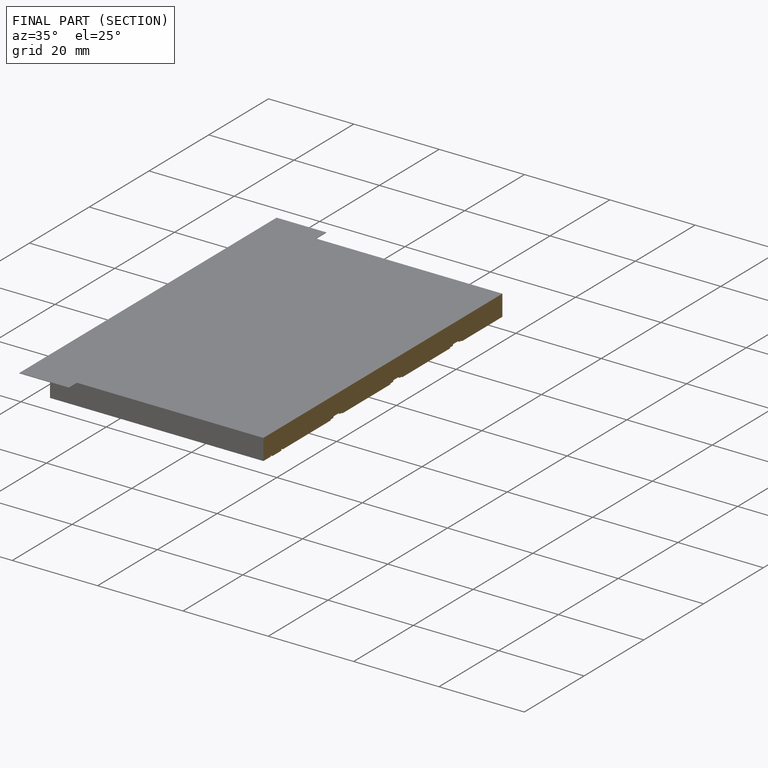
[diagram: finished part — half-section view (interior)]
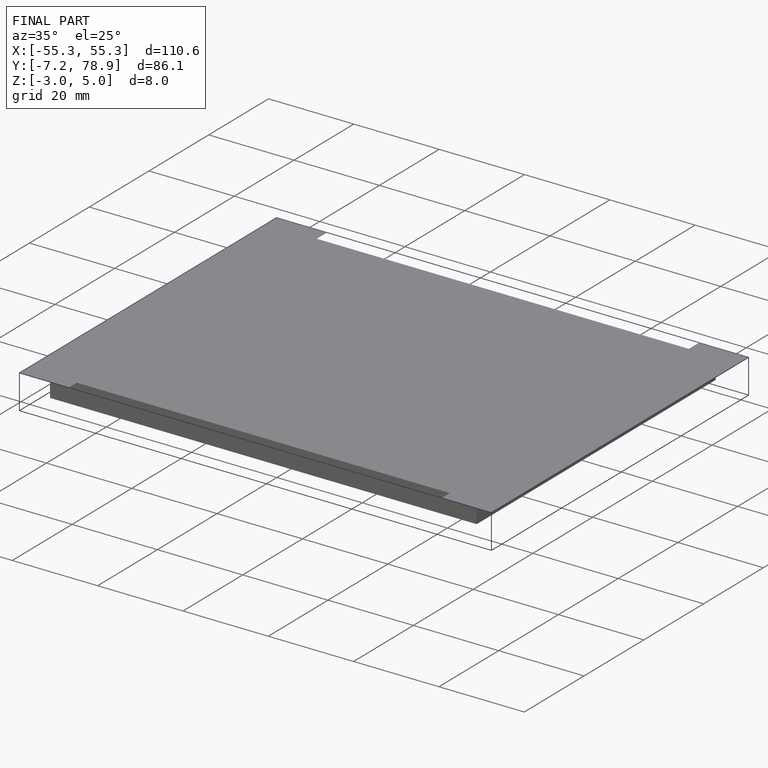
[diagram: finished part — iso view with bounding-box wireframe]
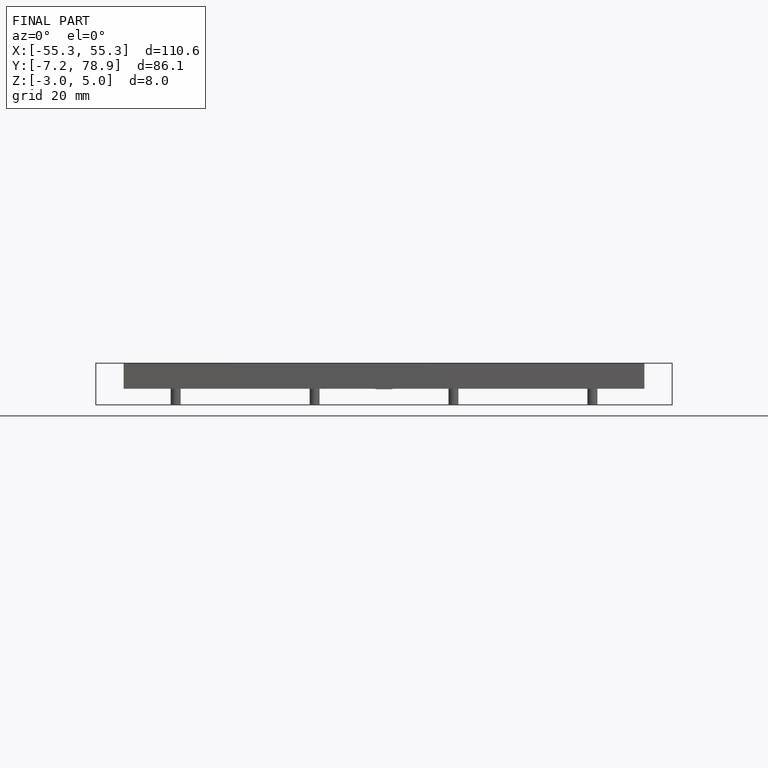
[diagram: finished part — front view with bounding-box wireframe]
